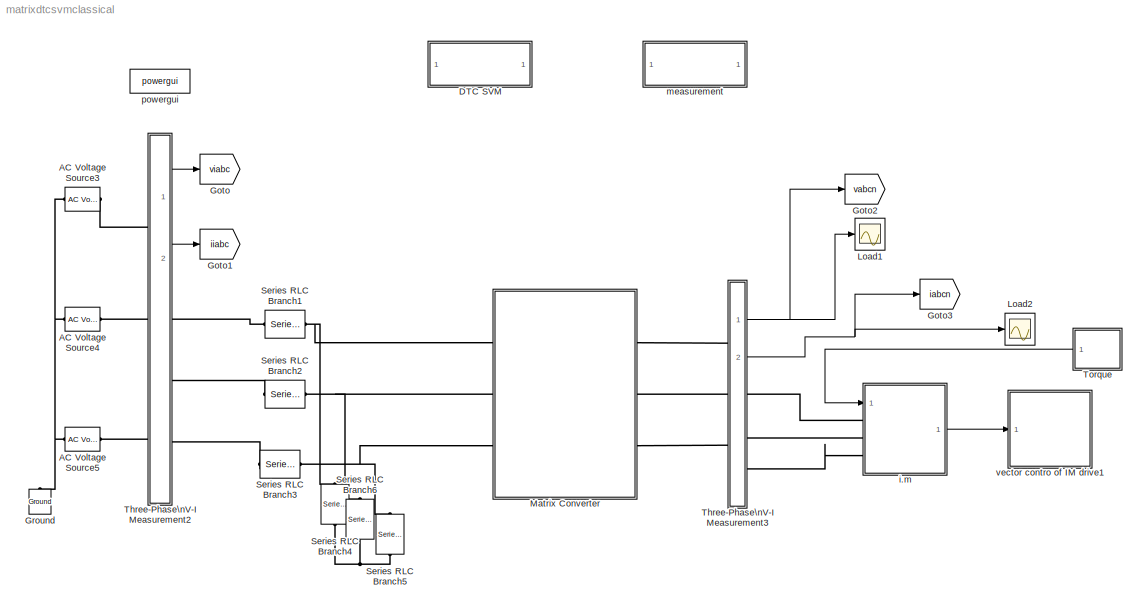
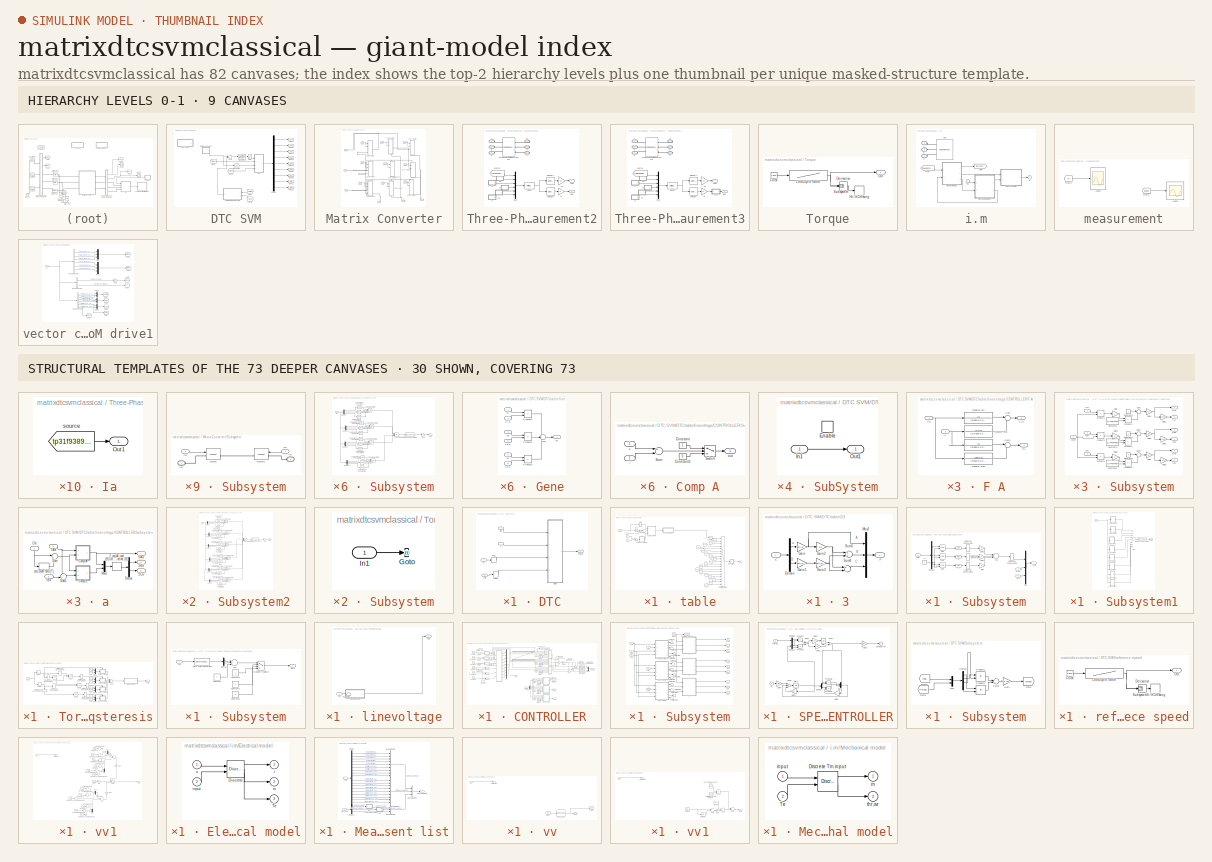
[diagram: thumbnail index - top-2 hierarchy levels (9 canvases) + 30 structural-template representatives of the remaining 73 canvases]
MODEL matrixdtcsvmclassical
KIND model
BLOCK [Reference] AC Voltage Source3  REF=powerlib/Electrical\nSources/AC Voltage Source
  Amplitude = 380
  DialogController = POWERSYS.PowerSysDialog
  Frequency = 60
  FunctionWithSeparateData = off
  Measurements = None
  Phase = 0
  Ports = [0, 0, 0, 0, 0, 1, 1]
  RTWMemSecDataConstants = Inherit from model
  RTWMemSecDataInternal = Inherit from model
  RTWMemSecDataParameters = Inherit from model
  RTWMemSecFuncExecute = Inherit from model
  RTWMemSecFuncInitTerm = Inherit from model
  SampleTime = 0
  ShowPortLabels = FromPortIcon
  SourceBlock = powerlib/Electrical\nSources/AC Voltage Source
  SourceType = AC Voltage Source
  SystemSampleTime = -1
BLOCK [Reference] AC Voltage Source4  REF=powerlib/Electrical\nSources/AC Voltage Source
  Amplitude = 380
  DialogController = POWERSYS.PowerSysDialog
  Frequency = 60
  FunctionWithSeparateData = off
  Measurements = None
  Phase = -120
  Ports = [0, 0, 0, 0, 0, 1, 1]
  RTWMemSecDataConstants = Inherit from model
  RTWMemSecDataInternal = Inherit from model
  RTWMemSecDataParameters = Inherit from model
  RTWMemSecFuncExecute = Inherit from model
  RTWMemSecFuncInitTerm = Inherit from model
  SampleTime = 0
  ShowPortLabels = FromPortIcon
  SourceBlock = powerlib/Electrical\nSources/AC Voltage Source
  SourceType = AC Voltage Source
  SystemSampleTime = -1
BLOCK [Reference] AC Voltage Source5  REF=powerlib/Electrical\nSources/AC Voltage Source
  Amplitude = 380
  DialogController = POWERSYS.PowerSysDialog
  Frequency = 60
  FunctionWithSeparateData = off
  Measurements = None
  Phase = 120
  Ports = [0, 0, 0, 0, 0, 1, 1]
  RTWMemSecDataConstants = Inherit from model
  RTWMemSecDataInternal = Inherit from model
  RTWMemSecDataParameters = Inherit from model
  RTWMemSecFuncExecute = Inherit from model
  RTWMemSecFuncInitTerm = Inherit from model
  SampleTime = 0
  ShowPortLabels = FromPortIcon
  SourceBlock = powerlib/Electrical\nSources/AC Voltage Source
  SourceType = AC Voltage Source
  SystemSampleTime = -1
BLOCK [SubSystem] DTC SVM
  FunctionWithSeparateData = off
  MaskHideContents = off
  MinAlgLoopOccurrences = off
  Opaque = off
  Ports = []
  PropExecContextOutsideSubsystem = off
  RTWSystemCode = Auto
  RequestExecContextInheritance = off
BLOCK [SubSystem] DTC SVM/DTC
  FunctionWithSeparateData = off
  MaskHideContents = off
  MinAlgLoopOccurrences = off
  Opaque = off
  Ports = [4, 1]
  PropExecContextOutsideSubsystem = off
  RTWSystemCode = Auto
  RequestExecContextInheritance = off
BLOCK [ZeroOrderHold] DTC SVM/DTC/Hold1
  SampleTime = 0.00005
BLOCK [ZeroOrderHold] DTC SVM/DTC/Hold2
  SampleTime = 0.00005
BLOCK [Inport] DTC SVM/DTC/PHIs
  IconDisplay = Port number
  Port = 4
BLOCK [Inport] DTC SVM/DTC/T
  IconDisplay = Port number
BLOCK [Inport] DTC SVM/DTC/Tf
  IconDisplay = Port number
  Port = 2
BLOCK [Inport] DTC SVM/DTC/flux
  IconDisplay = Port number
  Port = 3
BLOCK [Outport] DTC SVM/DTC/pulses
  IconDisplay = Port number
BLOCK [SubSystem] DTC SVM/DTC/table
  FunctionWithSeparateData = off
  MaskHideContents = off
  MinAlgLoopOccurrences = off
  Opaque = off
  Ports = [4, 1]
  PropExecContextOutsideSubsystem = off
  RTWSystemCode = Auto
  RequestExecContextInheritance = off
BLOCK [Inport] DTC SVM/DTC/table/ T f
  IconDisplay = Port number
  Port = 3
BLOCK [Inport] DTC SVM/DTC/table/ Te
  IconDisplay = Port number
  Port = 2
BLOCK [Constant] DTC SVM/DTC/table/1
  OutDataType = sfix(16)
  OutScaling = 2^0
  Value = [0 0 1 0 1 0 0 1 0 ]
BLOCK [Constant] DTC SVM/DTC/table/10
  OutDataType = sfix(16)
  OutScaling = 2^0
  Value = [0 1 0 1 0 0 0 1 0 ]
BLOCK [Constant] DTC SVM/DTC/table/11
  OutDataType = sfix(16)
  OutScaling = 2^0
  Value = [0 0 1 1 0 0 0 0 1]
BLOCK [Constant] DTC SVM/DTC/table/12
  OutDataType = sfix(16)
  OutScaling = 2^0
  Value = [1 0 0 0 0 1 1 0 0 ]
BLOCK [Constant] DTC SVM/DTC/table/13
  OutDataType = sfix(16)
  OutScaling = 2^0
  Value = [0 1 0 0 1 0 0 0 1]
BLOCK [Constant] DTC SVM/DTC/table/14
  OutDataType = sfix(16)
  OutScaling = 2^0
  Value = [0 0 1 0 0 1 0 1 0 ]
BLOCK [Constant] DTC SVM/DTC/table/15
  OutDataType = sfix(16)
  OutScaling = 2^0
  Value = [1 0 0 1 0 0 0 1 0]
BLOCK [Constant] DTC SVM/DTC/table/16
  OutDataType = sfix(16)
  OutScaling = 2^0
  Value = [0 1 0 0 1 0 1 0 0 ]
BLOCK [Constant] DTC SVM/DTC/table/17
  OutDataType = sfix(16)
  OutScaling = 2^0
  Value = [0 0 1 0 0 1 1 0 0 ]
BLOCK [Constant] DTC SVM/DTC/table/18
  OutDataType = sfix(16)
  OutScaling = 2^0
  Value = [1 0 0 1 0 0 0 0 1]
BLOCK [Constant] DTC SVM/DTC/table/2
  OutDataType = sfix(16)
  OutScaling = 2^0
  Value = [0 1 0 0 0 1 0 0 1]
BLOCK [SubSystem] DTC SVM/DTC/table/2//3
  FunctionWithSeparateData = off
  MaskHideContents = off
  MinAlgLoopOccurrences = off
  Opaque = off
  Ports = [1, 1]
  PropExecContextOutsideSubsystem = off
  RTWSystemCode = Auto
  RequestExecContextInheritance = off
BLOCK [Inport] DTC SVM/DTC/table/2//3/2
  IconDisplay = Port number
BLOCK [Outport] DTC SVM/DTC/table/2//3/3
  IconDisplay = Port number
BLOCK [Demux] DTC SVM/DTC/table/2//3/Demux
  Outputs = 2
  Ports = [1, 2]
BLOCK [Gain] DTC SVM/DTC/table/2//3/Gain
  Gain = sqrt(2/3)
BLOCK [Gain] DTC SVM/DTC/table/2//3/Gain1
  Gain = sqrt(2/3)
BLOCK [Gain] DTC SVM/DTC/table/2//3/Gain2
  Gain = -1/2
BLOCK [Gain] DTC SVM/DTC/table/2//3/Gain3
  Gain = sqrt(3)/2
BLOCK [Mux] DTC SVM/DTC/table/2//3/Mux2
  DisplayOption = bar
  Inputs = 3
  Ports = [3, 1]
BLOCK [Sum] DTC SVM/DTC/table/2//3/Sum3
  Ports = [2, 1]
BLOCK [Sum] DTC SVM/DTC/table/2//3/Sum4
  Inputs = +-
  Ports = [2, 1]
BLOCK [Constant] DTC SVM/DTC/table/3
  OutDataType = sfix(16)
  OutScaling = 2^0
  Value = [0 1 0 1 0 0 1 0 0 ]
BLOCK [Constant] DTC SVM/DTC/table/4
  OutDataType = sfix(16)
  OutScaling = 2^0
  Value = [1 0 0 0 1 0 0 1 0 ]
BLOCK [Constant] DTC SVM/DTC/table/5
  OutDataType = sfix(16)
  OutScaling = 2^0
  Value = [1 0 0 0 0 1 0 0 0]
BLOCK [Constant] DTC SVM/DTC/table/6
  OutDataType = sfix(16)
  OutScaling = 2^0
  Value = [0 0 1 1 0 0 1 0 0 ]
BLOCK [Constant] DTC SVM/DTC/table/7
  OutDataType = sfix(16)
  OutScaling = 2^0
  Value = [0 1 0 0 0 1 0 1 0 ]
BLOCK [Constant] DTC SVM/DTC/table/8
  OutDataType = sfix(16)
  OutScaling = 2^0
  Value = [0 0 1 0 1 0 0 0 1]
BLOCK [Constant] DTC SVM/DTC/table/9
  OutDataType = sfix(16)
  OutScaling = 2^0
  Value = [1 0 0 0 1 0 1 0 0 ]
BLOCK [Fcn] DTC SVM/DTC/table/Fcn
  Expr = sqrt(u(1)*u(1)+u(2)*u(2))
  SampleTime = 50e-6
BLOCK [MultiPortSwitch] DTC SVM/DTC/table/Multiport\nSwitch
  InputSameDT = off
  Inputs = 18
  OutDataType = sfix(16)
  OutDataTypeMode = Inherit via back propagation
  OutDataTypeStr = Inherit: Inherit via back propagation
  OutScaling = 2^0
  Ports = [19, 1]
  SaturateOnIntegerOverflow = off
BLOCK [Outport] DTC SVM/DTC/table/Out
  IconDisplay = Port number
BLOCK [Inport] DTC SVM/DTC/table/PHIs
  IconDisplay = Port number
  Port = 4
BLOCK [Saturate] DTC SVM/DTC/table/Saturation
  LowerLimit = 1
  OutDataType = sfix(16)
  OutScaling = 2^0
  UpperLimit = 18
BLOCK [SubSystem] DTC SVM/DTC/table/Subsystem
  FunctionWithSeparateData = off
  MaskHideContents = off
  MinAlgLoopOccurrences = off
  Opaque = off
  Ports = [3, 1]
  PropExecContextOutsideSubsystem = off
  RTWSystemCode = Auto
  RequestExecContextInheritance = off
BLOCK [Logic] DTC SVM/DTC/table/Subsystem/ 
  Operator = NOT
  Ports = [1, 1]
  SampleTime = 50e-6
BLOCK [Logic] DTC SVM/DTC/table/Subsystem/ 1
  Operator = NOT
  Ports = [1, 1]
  SampleTime = 50e-6
BLOCK [Logic] DTC SVM/DTC/table/Subsystem/ 2
  Operator = NOT
  Ports = [1, 1]
  SampleTime = 50e-6
BLOCK [Constant] DTC SVM/DTC/table/Subsystem/+1
  Value = 0
BLOCK [Sum] DTC SVM/DTC/table/Subsystem/Add
  InputSameDT = off
  Inputs = 3
  OutDataType = sfix(16)
  OutDataTypeMode = Inherit via internal rule
  OutDataTypeStr = Inherit: Inherit via internal rule
  OutScaling = 2^-10
  Ports = [3, 1]
  SampleTime = 50e-6
  SaturateOnIntegerOverflow = off
BLOCK [DataTypeConversion] DTC SVM/DTC/table/Subsystem/Data Type Conversion
  OutDataType = sfix(16)
  OutScaling = 2^0
  RndMeth = Floor
  SampleTime = 50e-6
  SaturateOnIntegerOverflow = off
BLOCK [DataTypeConversion] DTC SVM/DTC/table/Subsystem/Data Type Conversion1
  OutDataType = sfix(16)
  OutScaling = 2^0
  RndMeth = Floor
  SampleTime = 50e-6
  SaturateOnIntegerOverflow = off
BLOCK [DataTypeConversion] DTC SVM/DTC/table/Subsystem/Data Type Conversion2
  OutDataType = sfix(16)
  OutScaling = 2^0
  RndMeth = Floor
  SampleTime = 50e-6
  SaturateOnIntegerOverflow = off
BLOCK [DataTypeConversion] DTC SVM/DTC/table/Subsystem/Data Type Conversion3
  OutDataType = sfix(16)
  OutScaling = 2^0
  RndMeth = Floor
  SampleTime = 50e-6
  SaturateOnIntegerOverflow = off
BLOCK [Demux] DTC SVM/DTC/table/Subsystem/Demux2
  Outputs = 3
  Ports = [1, 3]
BLOCK [Gain] DTC SVM/DTC/table/Subsystem/Gain
  OutDataType = sfix(16)
  OutDataTypeMode = Inherit via internal rule
  OutDataTypeStr = Inherit: Inherit via internal rule
  OutScaling = 2^0
  ParamDataTypeStr = Inherit: Inherit via internal rule
  ParameterDataType = sfix(16)
  ParameterDataTypeMode = Inherit via internal rule
  ParameterScaling = 2^0
  SampleTime = 50e-6
  SaturateOnIntegerOverflow = off
BLOCK [Gain] DTC SVM/DTC/table/Subsystem/Gain1
  Gain = 2
  OutDataType = sfix(16)
  OutDataTypeMode = Inherit via internal rule
  OutDataTypeStr = Inherit: Inherit via internal rule
  OutScaling = 2^0
  ParamDataTypeStr = Inherit: Inherit via internal rule
  ParameterDataType = sfix(16)
  ParameterDataTypeMode = Inherit via internal rule
  ParameterScaling = 2^0
  SampleTime = 50e-6
  SaturateOnIntegerOverflow = off
BLOCK [Gain] DTC SVM/DTC/table/Subsystem/Gain2
  Gain = 4
  OutDataType = sfix(16)
  OutDataTypeMode = Inherit via internal rule
  OutDataTypeStr = Inherit: Inherit via internal rule
  OutScaling = 2^0
  ParamDataTypeStr = Inherit: Inherit via internal rule
  ParameterDataType = sfix(16)
  ParameterDataTypeMode = Inherit via internal rule
  ParameterScaling = 2^0
  SampleTime = 50e-6
  SaturateOnIntegerOverflow = off
BLOCK [Mux] DTC SVM/DTC/table/Subsystem/Mux
  DisplayOption = bar
  Inputs = 3
  Ports = [3, 1]
BLOCK [Inport] DTC SVM/DTC/table/Subsystem/PHIs
  IconDisplay = Port number
BLOCK [RelationalOperator] DTC SVM/DTC/table/Subsystem/Rel 1
  SampleTime = 50e-6
BLOCK [RelationalOperator] DTC SVM/DTC/table/Subsystem/Rel 2
  SampleTime = 50e-6
BLOCK [RelationalOperator] DTC SVM/DTC/table/Subsystem/Rel 3
  SampleTime = 50e-6
BLOCK [Outport] DTC SVM/DTC/table/Subsystem/TAB
  IconDisplay = Port number
BLOCK [Inport] DTC SVM/DTC/table/Subsystem/e-PH
  IconDisplay = Port number
  Port = 2
BLOCK [Inport] DTC SVM/DTC/table/Subsystem/e-T
  IconDisplay = Port number
  Port = 3
BLOCK [SubSystem] DTC SVM/DTC/table/Subsystem1
  FunctionWithSeparateData = off
  MaskHideContents = off
  MinAlgLoopOccurrences = off
  Opaque = off
  Ports = [1, 1]
  PropExecContextOutsideSubsystem = off
  RTWSystemCode = Auto
  RequestExecContextInheritance = off
BLOCK [Sum] DTC SVM/DTC/table/Subsystem1/Add
  InputSameDT = off
  Inputs = 8
  OutDataType = sfix(16)
  OutDataTypeMode = Inherit via internal rule
  OutDataTypeStr = Inherit: Inherit via internal rule
  OutScaling = 2^-10
  Ports = [8, 1]
  SaturateOnIntegerOverflow = off
BLOCK [DataTypeConversion] DTC SVM/DTC/table/Subsystem1/Data Type Conversion
  OutDataType = sfix(16)
  OutScaling = 2^0
  RndMeth = Floor
  SaturateOnIntegerOverflow = off
BLOCK [Inport] DTC SVM/DTC/table/Subsystem1/In1
  IconDisplay = Port number
  OutDataType = sfix(16)
  OutScaling = 2^0
BLOCK [Outport] DTC SVM/DTC/table/Subsystem1/Out1
  IconDisplay = Port number
  OutDataType = sfix(16)
  OutScaling = 2^0
BLOCK [SubSystem] DTC SVM/DTC/table/Subsystem1/Subsystem
  FunctionWithSeparateData = off
  MaskHideContents = off
  MinAlgLoopOccurrences = off
  Opaque = off
  Ports = [1, 1]
  PropExecContextOutsideSubsystem = off
  RTWSystemCode = Auto
  RequestExecContextInheritance = off
BLOCK [Reference] DTC SVM/DTC/table/Subsystem1/Subsystem/Compare\nTo Constant  REF=simulink/Logic and Bit\nOperations/Compare\nTo Constant
  FunctionWithSeparateData = off
  LogicOutDataTypeMode = uint8
  Ports = [1, 1]
  RTWMemSecDataConstants = Inherit from model
  RTWMemSecDataInternal = Inherit from model
  RTWMemSecDataParameters = Inherit from model
  RTWMemSecFuncExecute = Inherit from model
  RTWMemSecFuncInitTerm = Inherit from model
  ShowPortLabels = FromPortIcon
  SourceBlock = simulink/Logic and Bit\nOperations/Compare\nTo Constant
  SourceType = Compare To Constant
  SystemSampleTime = -1
  ZeroCross = off
  const = 1
  relop = ==
BLOCK [Reference] DTC SVM/DTC/table/Subsystem1/Subsystem/Compare\nTo Constant1  REF=simulink/Logic and Bit\nOperations/Compare\nTo Constant
  FunctionWithSeparateData = off
  LogicOutDataTypeMode = uint8
  Ports = [1, 1]
  RTWMemSecDataConstants = Inherit from model
  RTWMemSecDataInternal = Inherit from model
  RTWMemSecDataParameters = Inherit from model
  RTWMemSecFuncExecute = Inherit from model
  RTWMemSecFuncInitTerm = Inherit from model
  ShowPortLabels = FromPortIcon
  SourceBlock = simulink/Logic and Bit\nOperations/Compare\nTo Constant
  SourceType = Compare To Constant
  SystemSampleTime = -1
  ZeroCross = off
  const = 0
  relop = ==
BLOCK [Reference] DTC SVM/DTC/table/Subsystem1/Subsystem/Compare\nTo Constant10  REF=simulink/Logic and Bit\nOperations/Compare\nTo Constant
  FunctionWithSeparateData = off
  LogicOutDataTypeMode = uint8
  Ports = [1, 1]
  RTWMemSecDataConstants = Inherit from model
  RTWMemSecDataInternal = Inherit from model
  RTWMemSecDataParameters = Inherit from model
  RTWMemSecFuncExecute = Inherit from model
  RTWMemSecFuncInitTerm = Inherit from model
  ShowPortLabels = FromPortIcon
  SourceBlock = simulink/Logic and Bit\nOperations/Compare\nTo Constant
  SourceType = Compare To Constant
  SystemSampleTime = -1
  ZeroCross = off
  const = 1
  relop = ==
BLOCK [Reference] DTC SVM/DTC/table/Subsystem1/Subsystem/Compare\nTo Constant11  REF=simulink/Logic and Bit\nOperations/Compare\nTo Constant
  FunctionWithSeparateData = off
  LogicOutDataTypeMode = uint8
  Ports = [1, 1]
  RTWMemSecDataConstants = Inherit from model
  RTWMemSecDataInternal = Inherit from model
  RTWMemSecDataParameters = Inherit from model
  RTWMemSecFuncExecute = Inherit from model
  RTWMemSecFuncInitTerm = Inherit from model
  ShowPortLabels = FromPortIcon
  SourceBlock = simulink/Logic and Bit\nOperations/Compare\nTo Constant
  SourceType = Compare To Constant
  SystemSampleTime = -1
  ZeroCross = off
  const = 1
  relop = ==
BLOCK [Reference] DTC SVM/DTC/table/Subsystem1/Subsystem/Compare\nTo Constant2  REF=simulink/Logic and Bit\nOperations/Compare\nTo Constant
  FunctionWithSeparateData = off
  LogicOutDataTypeMode = uint8
  Ports = [1, 1]
  RTWMemSecDataConstants = Inherit from model
  RTWMemSecDataInternal = Inherit from model
  RTWMemSecDataParameters = Inherit from model
  RTWMemSecFuncExecute = Inherit from model
  RTWMemSecFuncInitTerm = Inherit from model
  ShowPortLabels = FromPortIcon
  SourceBlock = simulink/Logic and Bit\nOperations/Compare\nTo Constant
  SourceType = Compare To Constant
  SystemSampleTime = -1
  ZeroCross = off
  const = -1
  relop = ==
BLOCK [Reference] DTC SVM/DTC/table/Subsystem1/Subsystem/Compare\nTo Constant3  REF=simulink/Logic and Bit\nOperations/Compare\nTo Constant
  FunctionWithSeparateData = off
  LogicOutDataTypeMode = uint8
  Ports = [1, 1]
  RTWMemSecDataConstants = Inherit from model
  RTWMemSecDataInternal = Inherit from model
  RTWMemSecDataParameters = Inherit from model
  RTWMemSecFuncExecute = Inherit from model
  RTWMemSecFuncInitTerm = Inherit from model
  ShowPortLabels = FromPortIcon
  SourceBlock = simulink/Logic and Bit\nOperations/Compare\nTo Constant
  SourceType = Compare To Constant
  SystemSampleTime = -1
  ZeroCross = off
  const = 2
  relop = ==
BLOCK [Reference] DTC SVM/DTC/table/Subsystem1/Subsystem/Compare\nTo Constant4  REF=simulink/Logic and Bit\nOperations/Compare\nTo Constant
  FunctionWithSeparateData = off
  LogicOutDataTypeMode = uint8
  Ports = [1, 1]
  RTWMemSecDataConstants = Inherit from model
  RTWMemSecDataInternal = Inherit from model
  RTWMemSecDataParameters = Inherit from model
  RTWMemSecFuncExecute = Inherit from model
  RTWMemSecFuncInitTerm = Inherit from model
  ShowPortLabels = FromPortIcon
  SourceBlock = simulink/Logic and Bit\nOperations/Compare\nTo Constant
  SourceType = Compare To Constant
  SystemSampleTime = -1
  ZeroCross = off
  const = 0
  relop = ==
BLOCK [Reference] DTC SVM/DTC/table/Subsystem1/Subsystem/Compare\nTo Constant5  REF=simulink/Logic and Bit\nOperations/Compare\nTo Constant
  FunctionWithSeparateData = off
  LogicOutDataTypeMode = uint8
  Ports = [1, 1]
  RTWMemSecDataConstants = Inherit from model
  RTWMemSecDataInternal = Inherit from model
  RTWMemSecDataParameters = Inherit from model
  RTWMemSecFuncExecute = Inherit from model
  RTWMemSecFuncInitTerm = Inherit from model
  ShowPortLabels = FromPortIcon
  SourceBlock = simulink/Logic and Bit\nOperations/Compare\nTo Constant
  SourceType = Compare To Constant
  SystemSampleTime = -1
  ZeroCross = off
  const = 1
  relop = ==
BLOCK [Reference] DTC SVM/DTC/table/Subsystem1/Subsystem/Compare\nTo Constant6  REF=simulink/Logic and Bit\nOperations/Compare\nTo Constant
  FunctionWithSeparateData = off
  LogicOutDataTypeMode = uint8
  Ports = [1, 1]
  RTWMemSecDataConstants = Inherit from model
  RTWMemSecDataInternal = Inherit from model
  RTWMemSecDataParameters = Inherit from model
  RTWMemSecFuncExecute = Inherit from model
  RTWMemSecFuncInitTerm = Inherit from model
  ShowPortLabels = FromPortIcon
  SourceBlock = simulink/Logic and Bit\nOperations/Compare\nTo Constant
  SourceType = Compare To Constant
  SystemSampleTime = -1
  ZeroCross = off
  const = 6
  relop = ==
BLOCK [Reference] DTC SVM/DTC/table/Subsystem1/Subsystem/Compare\nTo Constant7  REF=simulink/Logic and Bit\nOperations/Compare\nTo Constant
  FunctionWithSeparateData = off
  LogicOutDataTypeMode = uint8
  Ports = [1, 1]
  RTWMemSecDataConstants = Inherit from model
  RTWMemSecDataInternal = Inherit from model
  RTWMemSecDataParameters = Inherit from model
  RTWMemSecFuncExecute = Inherit from model
  RTWMemSecFuncInitTerm = Inherit from model
  ShowPortLabels = FromPortIcon
  SourceBlock = simulink/Logic and Bit\nOperations/Compare\nTo Constant
  SourceType = Compare To Constant
  SystemSampleTime = -1
  ZeroCross = off
  const = 1
  relop = ==
BLOCK [Reference] DTC SVM/DTC/table/Subsystem1/Subsystem/Compare\nTo Constant8  REF=simulink/Logic and Bit\nOperations/Compare\nTo Constant
  FunctionWithSeparateData = off
  LogicOutDataTypeMode = uint8
  Ports = [1, 1]
  RTWMemSecDataConstants = Inherit from model
  RTWMemSecDataInternal = Inherit from model
  RTWMemSecDataParameters = Inherit from model
  RTWMemSecFuncExecute = Inherit from model
  RTWMemSecFuncInitTerm = Inherit from model
  ShowPortLabels = FromPortIcon
  SourceBlock = simulink/Logic and Bit\nOperations/Compare\nTo Constant
  SourceType = Compare To Constant
  SystemSampleTime = -1
  ZeroCross = off
  const = -1
  relop = ==
BLOCK [Reference] DTC SVM/DTC/table/Subsystem1/Subsystem/Compare\nTo Constant9  REF=simulink/Logic and Bit\nOperations/Compare\nTo Constant
  FunctionWithSeparateData = off
  LogicOutDataTypeMode = uint8
  Ports = [1, 1]
  RTWMemSecDataConstants = Inherit from model
  RTWMemSecDataInternal = Inherit from model
  RTWMemSecDataParameters = Inherit from model
  RTWMemSecFuncExecute = Inherit from model
  RTWMemSecFuncInitTerm = Inherit from model
  ShowPortLabels = FromPortIcon
  SourceBlock = simulink/Logic and Bit\nOperations/Compare\nTo Constant
  SourceType = Compare To Constant
  SystemSampleTime = -1
  ZeroCross = off
  const = 4
  relop = ==
BLOCK [DataTypeConversion] DTC SVM/DTC/table/Subsystem1/Subsystem/Data Type Conversion
  OutDataType = sfix(16)
  OutScaling = 2^0
  RndMeth = Floor
  SaturateOnIntegerOverflow = off
BLOCK [Demux] DTC SVM/DTC/table/Subsystem1/Subsystem/Demux
  DisplayOption = bar
  Outputs = 3
  Ports = [1, 3]
BLOCK [Demux] DTC SVM/DTC/table/Subsystem1/Subsystem/Demux1
  DisplayOption = bar
  Outputs = 3
  Ports = [1, 3]
BLOCK [Demux] DTC SVM/DTC/table/Subsystem1/Subsystem/Demux2
  DisplayOption = bar
  Outputs = 3
  Ports = [1, 3]
BLOCK [Demux] DTC SVM/DTC/table/Subsystem1/Subsystem/Demux3
  DisplayOption = bar
  Outputs = 3
  Ports = [1, 3]
BLOCK [Gain] DTC SVM/DTC/table/Subsystem1/Subsystem/Gain
  Gain = 2
  OutDataType = sfix(16)
  OutDataTypeMode = Inherit via internal rule
  OutDataTypeStr = Inherit: Inherit via internal rule
  OutScaling = 2^0
  ParamDataTypeStr = Inherit: Inherit via internal rule
  ParameterDataType = sfix(16)
  ParameterDataTypeMode = Inherit via internal rule
  ParameterScaling = 2^0
  SaturateOnIntegerOverflow = off
BLOCK [Inport] DTC SVM/DTC/table/Subsystem1/Subsystem/In1
  IconDisplay = Port number
BLOCK [Logic] DTC SVM/DTC/table/Subsystem1/Subsystem/Logical\nOperator
  AllPortsSameDT = off
  Inputs = 3
  OutDataTypeMode = boolean
  OutDataTypeStr = boolean
  Ports = [3, 1]
BLOCK [Logic] DTC SVM/DTC/table/Subsystem1/Subsystem/Logical\nOperator1
  AllPortsSameDT = off
  Inputs = 3
  OutDataTypeMode = boolean
  OutDataTypeStr = boolean
  Ports = [3, 1]
BLOCK [Logic] DTC SVM/DTC/table/Subsystem1/Subsystem/Logical\nOperator2
  AllPortsSameDT = off
  Inputs = 3
  OutDataTypeMode = boolean
  OutDataTypeStr = boolean
  Ports = [3, 1]
BLOCK [Logic] DTC SVM/DTC/table/Subsystem1/Subsystem/Logical\nOperator3
  AllPortsSameDT = off
  Inputs = 3
  OutDataTypeMode = boolean
  OutDataTypeStr = boolean
  Ports = [3, 1]
BLOCK [Logic] DTC SVM/DTC/table/Subsystem1/Subsystem/Logical\nOperator4
  AllPortsSameDT = off
  Inputs = 4
  Operator = OR
  OutDataTypeMode = boolean
  OutDataTypeStr = boolean
  Ports = [4, 1]
BLOCK [Outport] DTC SVM/DTC/table/Subsystem1/Subsystem/Out1
  IconDisplay = Port number
BLOCK [SubSystem] DTC SVM/DTC/table/Subsystem1/Subsystem1
  FunctionWithSeparateData = off
  MaskHideContents = off
  MinAlgLoopOccurrences = off
  Opaque = off
  Ports = [1, 1]
  PropExecContextOutsideSubsystem = off
  RTWSystemCode = Auto
  RequestExecContextInheritance = off
BLOCK [Reference] DTC SVM/DTC/table/Subsystem1/Subsystem1/Compare\nTo Constant  REF=simulink/Logic and Bit\nOperations/Compare\nTo Constant
  FunctionWithSeparateData = off
  LogicOutDataTypeMode = uint8
  Ports = [1, 1]
  RTWMemSecDataConstants = Inherit from model
  RTWMemSecDataInternal = Inherit from model
  RTWMemSecDataParameters = Inherit from model
  RTWMemSecFuncExecute = Inherit from model
  RTWMemSecFuncInitTerm = Inherit from model
  ShowPortLabels = FromPortIcon
  SourceBlock = simulink/Logic and Bit\nOperations/Compare\nTo Constant
  SourceType = Compare To Constant
  SystemSampleTime = -1
  ZeroCross = off
  const = 6
  relop = ==
BLOCK [Reference] DTC SVM/DTC/table/Subsystem1/Subsystem1/Compare\nTo Constant1  REF=simulink/Logic and Bit\nOperations/Compare\nTo Constant
  FunctionWithSeparateData = off
  LogicOutDataTypeMode = uint8
  Ports = [1, 1]
  RTWMemSecDataConstants = Inherit from model
  RTWMemSecDataInternal = Inherit from model
  RTWMemSecDataParameters = Inherit from model
  RTWMemSecFuncExecute = Inherit from model
  RTWMemSecFuncInitTerm = Inherit from model
  ShowPortLabels = FromPortIcon
  SourceBlock = simulink/Logic and Bit\nOperations/Compare\nTo Constant
  SourceType = Compare To Constant
  SystemSampleTime = -1
  ZeroCross = off
  const = -1
  relop = ==
BLOCK [Reference] DTC SVM/DTC/table/Subsystem1/Subsystem1/Compare\nTo Constant10  REF=simulink/Logic and Bit\nOperations/Compare\nTo Constant
  FunctionWithSeparateData = off
  LogicOutDataTypeMode = uint8
  Ports = [1, 1]
  RTWMemSecDataConstants = Inherit from model
  RTWMemSecDataInternal = Inherit from model
  RTWMemSecDataParameters = Inherit from model
  RTWMemSecFuncExecute = Inherit from model
  RTWMemSecFuncInitTerm = Inherit from model
  ShowPortLabels = FromPortIcon
  SourceBlock = simulink/Logic and Bit\nOperations/Compare\nTo Constant
  SourceType = Compare To Constant
  SystemSampleTime = -1
  ZeroCross = off
  const = 1
  relop = ==
BLOCK [Reference] DTC SVM/DTC/table/Subsystem1/Subsystem1/Compare\nTo Constant11  REF=simulink/Logic and Bit\nOperations/Compare\nTo Constant
  FunctionWithSeparateData = off
  LogicOutDataTypeMode = uint8
  Ports = [1, 1]
  RTWMemSecDataConstants = Inherit from model
  RTWMemSecDataInternal = Inherit from model
  RTWMemSecDataParameters = Inherit from model
  RTWMemSecFuncExecute = Inherit from model
  RTWMemSecFuncInitTerm = Inherit from model
  ShowPortLabels = FromPortIcon
  SourceBlock = simulink/Logic and Bit\nOperations/Compare\nTo Constant
  SourceType = Compare To Constant
  SystemSampleTime = -1
  ZeroCross = off
  const = 1
  relop = ==
BLOCK [Reference] DTC SVM/DTC/table/Subsystem1/Subsystem1/Compare\nTo Constant2  REF=simulink/Logic and Bit\nOperations/Compare\nTo Constant
  FunctionWithSeparateData = off
  LogicOutDataTypeMode = uint8
  Ports = [1, 1]
  RTWMemSecDataConstants = Inherit from model
  RTWMemSecDataInternal = Inherit from model
  RTWMemSecDataParameters = Inherit from model
  RTWMemSecFuncExecute = Inherit from model
  RTWMemSecFuncInitTerm = Inherit from model
  ShowPortLabels = FromPortIcon
  SourceBlock = simulink/Logic and Bit\nOperations/Compare\nTo Constant
  SourceType = Compare To Constant
  SystemSampleTime = -1
  ZeroCross = off
  const = -1
  relop = ==
BLOCK [Reference] DTC SVM/DTC/table/Subsystem1/Subsystem1/Compare\nTo Constant3  REF=simulink/Logic and Bit\nOperations/Compare\nTo Constant
  FunctionWithSeparateData = off
  LogicOutDataTypeMode = uint8
  Ports = [1, 1]
  RTWMemSecDataConstants = Inherit from model
  RTWMemSecDataInternal = Inherit from model
  RTWMemSecDataParameters = Inherit from model
  RTWMemSecFuncExecute = Inherit from model
  RTWMemSecFuncInitTerm = Inherit from model
  ShowPortLabels = FromPortIcon
  SourceBlock = simulink/Logic and Bit\nOperations/Compare\nTo Constant
  SourceType = Compare To Constant
  SystemSampleTime = -1
  ZeroCross = off
  const = 2
  relop = ==
BLOCK [Reference] DTC SVM/DTC/table/Subsystem1/Subsystem1/Compare\nTo Constant4  REF=simulink/Logic and Bit\nOperations/Compare\nTo Constant
  FunctionWithSeparateData = off
  LogicOutDataTypeMode = uint8
  Ports = [1, 1]
  RTWMemSecDataConstants = Inherit from model
  RTWMemSecDataInternal = Inherit from model
  RTWMemSecDataParameters = Inherit from model
  RTWMemSecFuncExecute = Inherit from model
  RTWMemSecFuncInitTerm = Inherit from model
  ShowPortLabels = FromPortIcon
  SourceBlock = simulink/Logic and Bit\nOperations/Compare\nTo Constant
  SourceType = Compare To Constant
  SystemSampleTime = -1
  ZeroCross = off
  const = 0
  relop = ==
BLOCK [Reference] DTC SVM/DTC/table/Subsystem1/Subsystem1/Compare\nTo Constant5  REF=simulink/Logic and Bit\nOperations/Compare\nTo Constant
  FunctionWithSeparateData = off
  LogicOutDataTypeMode = uint8
  Ports = [1, 1]
  RTWMemSecDataConstants = Inherit from model
  RTWMemSecDataInternal = Inherit from model
  RTWMemSecDataParameters = Inherit from model
  RTWMemSecFuncExecute = Inherit from model
  RTWMemSecFuncInitTerm = Inherit from model
  ShowPortLabels = FromPortIcon
  SourceBlock = simulink/Logic and Bit\nOperations/Compare\nTo Constant
  SourceType = Compare To Constant
  SystemSampleTime = -1
  ZeroCross = off
  const = 1
  relop = ==
BLOCK [Reference] DTC SVM/DTC/table/Subsystem1/Subsystem1/Compare\nTo Constant6  REF=simulink/Logic and Bit\nOperations/Compare\nTo Constant
  FunctionWithSeparateData = off
  LogicOutDataTypeMode = uint8
  Ports = [1, 1]
  RTWMemSecDataConstants = Inherit from model
  RTWMemSecDataInternal = Inherit from model
  RTWMemSecDataParameters = Inherit from model
  RTWMemSecFuncExecute = Inherit from model
  RTWMemSecFuncInitTerm = Inherit from model
  ShowPortLabels = FromPortIcon
  SourceBlock = simulink/Logic and Bit\nOperations/Compare\nTo Constant
  SourceType = Compare To Constant
  SystemSampleTime = -1
  ZeroCross = off
  const = 5
  relop = ==
BLOCK [Reference] DTC SVM/DTC/table/Subsystem1/Subsystem1/Compare\nTo Constant7  REF=simulink/Logic and Bit\nOperations/Compare\nTo Constant
  FunctionWithSeparateData = off
  LogicOutDataTypeMode = uint8
  Ports = [1, 1]
  RTWMemSecDataConstants = Inherit from model
  RTWMemSecDataInternal = Inherit from model
  RTWMemSecDataParameters = Inherit from model
  RTWMemSecFuncExecute = Inherit from model
  RTWMemSecFuncInitTerm = Inherit from model
  ShowPortLabels = FromPortIcon
  SourceBlock = simulink/Logic and Bit\nOperations/Compare\nTo Constant
  SourceType = Compare To Constant
  SystemSampleTime = -1
  ZeroCross = off
  const = 1
  relop = ==
BLOCK [Reference] DTC SVM/DTC/table/Subsystem1/Subsystem1/Compare\nTo Constant8  REF=simulink/Logic and Bit\nOperations/Compare\nTo Constant
  FunctionWithSeparateData = off
  LogicOutDataTypeMode = uint8
  Ports = [1, 1]
  RTWMemSecDataConstants = Inherit from model
  RTWMemSecDataInternal = Inherit from model
  RTWMemSecDataParameters = Inherit from model
  RTWMemSecFuncExecute = Inherit from model
  RTWMemSecFuncInitTerm = Inherit from model
  ShowPortLabels = FromPortIcon
  SourceBlock = simulink/Logic and Bit\nOperations/Compare\nTo Constant
  SourceType = Compare To Constant
  SystemSampleTime = -1
  ZeroCross = off
  const = -1
  relop = ==
BLOCK [Reference] DTC SVM/DTC/table/Subsystem1/Subsystem1/Compare\nTo Constant9  REF=simulink/Logic and Bit\nOperations/Compare\nTo Constant
  FunctionWithSeparateData = off
  LogicOutDataTypeMode = uint8
  Ports = [1, 1]
  RTWMemSecDataConstants = Inherit from model
  RTWMemSecDataInternal = Inherit from model
  RTWMemSecDataParameters = Inherit from model
  RTWMemSecFuncExecute = Inherit from model
  RTWMemSecFuncInitTerm = Inherit from model
  ShowPortLabels = FromPortIcon
  SourceBlock = simulink/Logic and Bit\nOperations/Compare\nTo Constant
  SourceType = Compare To Constant
  SystemSampleTime = -1
  ZeroCross = off
  const = 3
  relop = ==
BLOCK [DataTypeConversion] DTC SVM/DTC/table/Subsystem1/Subsystem1/Data Type Conversion
  OutDataType = sfix(16)
  OutScaling = 2^0
  RndMeth = Floor
  SaturateOnIntegerOverflow = off
BLOCK [Demux] DTC SVM/DTC/table/Subsystem1/Subsystem1/Demux
  DisplayOption = bar
  Outputs = 3
  Ports = [1, 3]
BLOCK [Demux] DTC SVM/DTC/table/Subsystem1/Subsystem1/Demux1
  DisplayOption = bar
  Outputs = 3
  Ports = [1, 3]
BLOCK [Demux] DTC SVM/DTC/table/Subsystem1/Subsystem1/Demux2
  DisplayOption = bar
  Outputs = 3
  Ports = [1, 3]
BLOCK [Demux] DTC SVM/DTC/table/Subsystem1/Subsystem1/Demux3
  DisplayOption = bar
  Outputs = 3
  Ports = [1, 3]
BLOCK [Gain] DTC SVM/DTC/table/Subsystem1/Subsystem1/Gain
  OutDataType = sfix(16)
  OutDataTypeMode = Inherit via internal rule
  OutDataTypeStr = Inherit: Inherit via internal rule
  OutScaling = 2^0
  ParamDataTypeStr = Inherit: Inherit via internal rule
  ParameterDataType = sfix(16)
  ParameterDataTypeMode = Inherit via internal rule
  ParameterScaling = 2^0
  SaturateOnIntegerOverflow = off
BLOCK [Inport] DTC SVM/DTC/table/Subsystem1/Subsystem1/In1
  IconDisplay = Port number
BLOCK [Logic] DTC SVM/DTC/table/Subsystem1/Subsystem1/Logical\nOperator
  AllPortsSameDT = off
  Inputs = 3
  OutDataTypeMode = boolean
  OutDataTypeStr = boolean
  Ports = [3, 1]
BLOCK [Logic] DTC SVM/DTC/table/Subsystem1/Subsystem1/Logical\nOperator1
  AllPortsSameDT = off
  Inputs = 3
  OutDataTypeMode = boolean
  OutDataTypeStr = boolean
  Ports = [3, 1]
BLOCK [Logic] DTC SVM/DTC/table/Subsystem1/Subsystem1/Logical\nOperator2
  AllPortsSameDT = off
  Inputs = 3
  OutDataTypeMode = boolean
  OutDataTypeStr = boolean
  Ports = [3, 1]
BLOCK [Logic] DTC SVM/DTC/table/Subsystem1/Subsystem1/Logical\nOperator3
  AllPortsSameDT = off
  Inputs = 3
  OutDataTypeMode = boolean
  OutDataTypeStr = boolean
  Ports = [3, 1]
BLOCK [Logic] DTC SVM/DTC/table/Subsystem1/Subsystem1/Logical\nOperator4
  AllPortsSameDT = off
  Inputs = 4
  Operator = OR
  OutDataTypeMode = boolean
  OutDataTypeStr = boolean
  Ports = [4, 1]
BLOCK [Outport] DTC SVM/DTC/table/Subsystem1/Subsystem1/Out1
  IconDisplay = Port number
BLOCK [SubSystem] DTC SVM/DTC/table/Subsystem1/Subsystem2
  FunctionWithSeparateData = off
  MaskHideContents = off
  MinAlgLoopOccurrences = off
  Opaque = off
  Ports = [1, 1]
  PropExecContextOutsideSubsystem = off
  RTWSystemCode = Auto
  RequestExecContextInheritance = off
BLOCK [Reference] DTC SVM/DTC/table/Subsystem1/Subsystem2/Compare\nTo Constant  REF=simulink/Logic and Bit\nOperations/Compare\nTo Constant
  FunctionWithSeparateData = off
  LogicOutDataTypeMode = uint8
  Ports = [1, 1]
  RTWMemSecDataConstants = Inherit from model
  RTWMemSecDataInternal = Inherit from model
  RTWMemSecDataParameters = Inherit from model
  RTWMemSecFuncExecute = Inherit from model
  RTWMemSecFuncInitTerm = Inherit from model
  ShowPortLabels = FromPortIcon
  SourceBlock = simulink/Logic and Bit\nOperations/Compare\nTo Constant
  SourceType = Compare To Constant
  SystemSampleTime = -1
  ZeroCross = off
  const = 2
  relop = ==
BLOCK [Reference] DTC SVM/DTC/table/Subsystem1/Subsystem2/Compare\nTo Constant1  REF=simulink/Logic and Bit\nOperations/Compare\nTo Constant
  FunctionWithSeparateData = off
  LogicOutDataTypeMode = uint8
  Ports = [1, 1]
  RTWMemSecDataConstants = Inherit from model
  RTWMemSecDataInternal = Inherit from model
  RTWMemSecDataParameters = Inherit from model
  RTWMemSecFuncExecute = Inherit from model
  RTWMemSecFuncInitTerm = Inherit from model
  ShowPortLabels = FromPortIcon
  SourceBlock = simulink/Logic and Bit\nOperations/Compare\nTo Constant
  SourceType = Compare To Constant
  SystemSampleTime = -1
  ZeroCross = off
  const = 0
  relop = ==
BLOCK [Reference] DTC SVM/DTC/table/Subsystem1/Subsystem2/Compare\nTo Constant10  REF=simulink/Logic and Bit\nOperations/Compare\nTo Constant
  FunctionWithSeparateData = off
  LogicOutDataTypeMode = uint8
  Ports = [1, 1]
  RTWMemSecDataConstants = Inherit from model
  RTWMemSecDataInternal = Inherit from model
  RTWMemSecDataParameters = Inherit from model
  RTWMemSecFuncExecute = Inherit from model
  RTWMemSecFuncInitTerm = Inherit from model
  ShowPortLabels = FromPortIcon
  SourceBlock = simulink/Logic and Bit\nOperations/Compare\nTo Constant
  SourceType = Compare To Constant
  SystemSampleTime = -1
  ZeroCross = off
  const = 1
  relop = ==
BLOCK [Reference] DTC SVM/DTC/table/Subsystem1/Subsystem2/Compare\nTo Constant11  REF=simulink/Logic and Bit\nOperations/Compare\nTo Constant
  FunctionWithSeparateData = off
  LogicOutDataTypeMode = uint8
  Ports = [1, 1]
  RTWMemSecDataConstants = Inherit from model
  RTWMemSecDataInternal = Inherit from model
  RTWMemSecDataParameters = Inherit from model
  RTWMemSecFuncExecute = Inherit from model
  RTWMemSecFuncInitTerm = Inherit from model
  ShowPortLabels = FromPortIcon
  SourceBlock = simulink/Logic and Bit\nOperations/Compare\nTo Constant
  SourceType = Compare To Constant
  SystemSampleTime = -1
  ZeroCross = off
  const = 0
  relop = ==
BLOCK [Reference] DTC SVM/DTC/table/Subsystem1/Subsystem2/Compare\nTo Constant12  REF=simulink/Logic and Bit\nOperations/Compare\nTo Constant
  FunctionWithSeparateData = off
  LogicOutDataTypeMode = uint8
  Ports = [1, 1]
  RTWMemSecDataConstants = Inherit from model
  RTWMemSecDataInternal = Inherit from model
  RTWMemSecDataParameters = Inherit from model
  RTWMemSecFuncExecute = Inherit from model
  RTWMemSecFuncInitTerm = Inherit from model
  ShowPortLabels = FromPortIcon
  SourceBlock = simulink/Logic and Bit\nOperations/Compare\nTo Constant
  SourceType = Compare To Constant
  SystemSampleTime = -1
  ZeroCross = off
  const = 1
  relop = ==
BLOCK [Reference] DTC SVM/DTC/table/Subsystem1/Subsystem2/Compare\nTo Constant13  REF=simulink/Logic and Bit\nOperations/Compare\nTo Constant
  FunctionWithSeparateData = off
  LogicOutDataTypeMode = uint8
  Ports = [1, 1]
  RTWMemSecDataConstants = Inherit from model
  RTWMemSecDataInternal = Inherit from model
  RTWMemSecDataParameters = Inherit from model
  RTWMemSecFuncExecute = Inherit from model
  RTWMemSecFuncInitTerm = Inherit from model
  ShowPortLabels = FromPortIcon
  SourceBlock = simulink/Logic and Bit\nOperations/Compare\nTo Constant
  SourceType = Compare To Constant
  SystemSampleTime = -1
  ZeroCross = off
  const = 0
  relop = ==
BLOCK [Reference] DTC SVM/DTC/table/Subsystem1/Subsystem2/Compare\nTo Constant14  REF=simulink/Logic and Bit\nOperations/Compare\nTo Constant
  FunctionWithSeparateData = off
  LogicOutDataTypeMode = uint8
  Ports = [1, 1]
  RTWMemSecDataConstants = Inherit from model
  RTWMemSecDataInternal = Inherit from model
  RTWMemSecDataParameters = Inherit from model
  RTWMemSecFuncExecute = Inherit from model
  RTWMemSecFuncInitTerm = Inherit from model
  ShowPortLabels = FromPortIcon
  SourceBlock = simulink/Logic and Bit\nOperations/Compare\nTo Constant
  SourceType = Compare To Constant
  SystemSampleTime = -1
  ZeroCross = off
  const = 3
  relop = ==
BLOCK [Reference] DTC SVM/DTC/table/Subsystem1/Subsystem2/Compare\nTo Constant15  REF=simulink/Logic and Bit\nOperations/Compare\nTo Constant
  FunctionWithSeparateData = off
  LogicOutDataTypeMode = uint8
  Ports = [1, 1]
  RTWMemSecDataConstants = Inherit from model
  RTWMemSecDataInternal = Inherit from model
  RTWMemSecDataParameters = Inherit from model
  RTWMemSecFuncExecute = Inherit from model
  RTWMemSecFuncInitTerm = Inherit from model
  ShowPortLabels = FromPortIcon
  SourceBlock = simulink/Logic and Bit\nOperations/Compare\nTo Constant
  SourceType = Compare To Constant
  SystemSampleTime = -1
  ZeroCross = off
  const = 1
  relop = ==
BLOCK [Reference] DTC SVM/DTC/table/Subsystem1/Subsystem2/Compare\nTo Constant16  REF=simulink/Logic and Bit\nOperations/Compare\nTo Constant
  FunctionWithSeparateData = off
  LogicOutDataTypeMode = uint8
  Ports = [1, 1]
  RTWMemSecDataConstants = Inherit from model
  RTWMemSecDataInternal = Inherit from model
  RTWMemSecDataParameters = Inherit from model
  RTWMemSecFuncExecute = Inherit from model
  RTWMemSecFuncInitTerm = Inherit from model
  ShowPortLabels = FromPortIcon
  SourceBlock = simulink/Logic and Bit\nOperations/Compare\nTo Constant
  SourceType = Compare To Constant
  SystemSampleTime = -1
  ZeroCross = off
  const = 0
  relop = ==
BLOCK [Reference] DTC SVM/DTC/table/Subsystem1/Subsystem2/Compare\nTo Constant17  REF=simulink/Logic and Bit\nOperations/Compare\nTo Constant
  FunctionWithSeparateData = off
  LogicOutDataTypeMode = uint8
  Ports = [1, 1]
  RTWMemSecDataConstants = Inherit from model
  RTWMemSecDataInternal = Inherit from model
  RTWMemSecDataParameters = Inherit from model
  RTWMemSecFuncExecute = Inherit from model
  RTWMemSecFuncInitTerm = Inherit from model
  ShowPortLabels = FromPortIcon
  SourceBlock = simulink/Logic and Bit\nOperations/Compare\nTo Constant
  SourceType = Compare To Constant
  SystemSampleTime = -1
  ZeroCross = off
  const = 5
  relop = ==
BLOCK [Reference] DTC SVM/DTC/table/Subsystem1/Subsystem2/Compare\nTo Constant2  REF=simulink/Logic and Bit\nOperations/Compare\nTo Constant
  FunctionWithSeparateData = off
  LogicOutDataTypeMode = uint8
  Ports = [1, 1]
  RTWMemSecDataConstants = Inherit from model
  RTWMemSecDataInternal = Inherit from model
  RTWMemSecDataParameters = Inherit from model
  RTWMemSecFuncExecute = Inherit from model
  RTWMemSecFuncInitTerm = Inherit from model
  ShowPortLabels = FromPortIcon
  SourceBlock = simulink/Logic and Bit\nOperations/Compare\nTo Constant
  SourceType = Compare To Constant
  SystemSampleTime = -1
  ZeroCross = off
  const = 0
  relop = ==
BLOCK [Reference] DTC SVM/DTC/table/Subsystem1/Subsystem2/Compare\nTo Constant3  REF=simulink/Logic and Bit\nOperations/Compare\nTo Constant
  FunctionWithSeparateData = off
  LogicOutDataTypeMode = uint8
  Ports = [1, 1]
  RTWMemSecDataConstants = Inherit from model
  RTWMemSecDataInternal = Inherit from model
  RTWMemSecDataParameters = Inherit from model
  RTWMemSecFuncExecute = Inherit from model
  RTWMemSecFuncInitTerm = Inherit from model
  ShowPortLabels = FromPortIcon
  SourceBlock = simulink/Logic and Bit\nOperations/Compare\nTo Constant
  SourceType = Compare To Constant
  SystemSampleTime = -1
  ZeroCross = off
  const = 4
  relop = ==
BLOCK [Reference] DTC SVM/DTC/table/Subsystem1/Subsystem2/Compare\nTo Constant4  REF=simulink/Logic and Bit\nOperations/Compare\nTo Constant
  FunctionWithSeparateData = off
  LogicOutDataTypeMode = uint8
  Ports = [1, 1]
  RTWMemSecDataConstants = Inherit from model
  RTWMemSecDataInternal = Inherit from model
  RTWMemSecDataParameters = Inherit from model
  RTWMemSecFuncExecute = Inherit from model
  RTWMemSecFuncInitTerm = Inherit from model
  ShowPortLabels = FromPortIcon
  SourceBlock = simulink/Logic and Bit\nOperations/Compare\nTo Constant
  SourceType = Compare To Constant
  SystemSampleTime = -1
  ZeroCross = off
  const = 0
  relop = ==
BLOCK [Reference] DTC SVM/DTC/table/Subsystem1/Subsystem2/Compare\nTo Constant5  REF=simulink/Logic and Bit\nOperations/Compare\nTo Constant
  FunctionWithSeparateData = off
  LogicOutDataTypeMode = uint8
  Ports = [1, 1]
  RTWMemSecDataConstants = Inherit from model
  RTWMemSecDataInternal = Inherit from model
  RTWMemSecDataParameters = Inherit from model
  RTWMemSecFuncExecute = Inherit from model
  RTWMemSecFuncInitTerm = Inherit from model
  ShowPortLabels = FromPortIcon
  SourceBlock = simulink/Logic and Bit\nOperations/Compare\nTo Constant
  SourceType = Compare To Constant
  SystemSampleTime = -1
  ZeroCross = off
  const = 0
  relop = ==
BLOCK [Reference] DTC SVM/DTC/table/Subsystem1/Subsystem2/Compare\nTo Constant6  REF=simulink/Logic and Bit\nOperations/Compare\nTo Constant
  FunctionWithSeparateData = off
  LogicOutDataTypeMode = uint8
  Ports = [1, 1]
  RTWMemSecDataConstants = Inherit from model
  RTWMemSecDataInternal = Inherit from model
  RTWMemSecDataParameters = Inherit from model
  RTWMemSecFuncExecute = Inherit from model
  RTWMemSecFuncInitTerm = Inherit from model
  ShowPortLabels = FromPortIcon
  SourceBlock = simulink/Logic and Bit\nOperations/Compare\nTo Constant
  SourceType = Compare To Constant
  SystemSampleTime = -1
  ZeroCross = off
  const = 6
  relop = ==
BLOCK [Reference] DTC SVM/DTC/table/Subsystem1/Subsystem2/Compare\nTo Constant7  REF=simulink/Logic and Bit\nOperations/Compare\nTo Constant
  FunctionWithSeparateData = off
  LogicOutDataTypeMode = uint8
  Ports = [1, 1]
  RTWMemSecDataConstants = Inherit from model
  RTWMemSecDataInternal = Inherit from model
  RTWMemSecDataParameters = Inherit from model
  RTWMemSecFuncExecute = Inherit from model
  RTWMemSecFuncInitTerm = Inherit from model
  ShowPortLabels = FromPortIcon
  SourceBlock = simulink/Logic and Bit\nOperations/Compare\nTo Constant
  SourceType = Compare To Constant
  SystemSampleTime = -1
  ZeroCross = off
  const = 0
  relop = ==
BLOCK [Reference] DTC SVM/DTC/table/Subsystem1/Subsystem2/Compare\nTo Constant8  REF=simulink/Logic and Bit\nOperations/Compare\nTo Constant
  FunctionWithSeparateData = off
  LogicOutDataTypeMode = uint8
  Ports = [1, 1]
  RTWMemSecDataConstants = Inherit from model
  RTWMemSecDataInternal = Inherit from model
  RTWMemSecDataParameters = Inherit from model
  RTWMemSecFuncExecute = Inherit from model
  RTWMemSecFuncInitTerm = Inherit from model
  ShowPortLabels = FromPortIcon
  SourceBlock = simulink/Logic and Bit\nOperations/Compare\nTo Constant
  SourceType = Compare To Constant
  SystemSampleTime = -1
  ZeroCross = off
  const = 0
  relop = ==
BLOCK [Reference] DTC SVM/DTC/table/Subsystem1/Subsystem2/Compare\nTo Constant9  REF=simulink/Logic and Bit\nOperations/Compare\nTo Constant
  FunctionWithSeparateData = off
  LogicOutDataTypeMode = uint8
  Ports = [1, 1]
  RTWMemSecDataConstants = Inherit from model
  RTWMemSecDataInternal = Inherit from model
  RTWMemSecDataParameters = Inherit from model
  RTWMemSecFuncExecute = Inherit from model
  RTWMemSecFuncInitTerm = Inherit from model
  ShowPortLabels = FromPortIcon
  SourceBlock = simulink/Logic and Bit\nOperations/Compare\nTo Constant
  SourceType = Compare To Constant
  SystemSampleTime = -1
  ZeroCross = off
  const = 1
  relop = ==
BLOCK [DataTypeConversion] DTC SVM/DTC/table/Subsystem1/Subsystem2/Data Type Conversion
  OutDataType = sfix(16)
  OutScaling = 2^0
  RndMeth = Floor
  SaturateOnIntegerOverflow = off
BLOCK [Demux] DTC SVM/DTC/table/Subsystem1/Subsystem2/Demux
  DisplayOption = bar
  Outputs = 3
  Ports = [1, 3]
BLOCK [Demux] DTC SVM/DTC/table/Subsystem1/Subsystem2/Demux1
  DisplayOption = bar
  Outputs = 3
  Ports = [1, 3]
BLOCK [Demux] DTC SVM/DTC/table/Subsystem1/Subsystem2/Demux2
  DisplayOption = bar
  Outputs = 3
  Ports = [1, 3]
BLOCK [Demux] DTC SVM/DTC/table/Subsystem1/Subsystem2/Demux3
  DisplayOption = bar
  Outputs = 3
  Ports = [1, 3]
BLOCK [Demux] DTC SVM/DTC/table/Subsystem1/Subsystem2/Demux4
  DisplayOption = bar
  Outputs = 3
  Ports = [1, 3]
BLOCK [Demux] DTC SVM/DTC/table/Subsystem1/Subsystem2/Demux5
  DisplayOption = bar
  Outputs = 3
  Ports = [1, 3]
BLOCK [Gain] DTC SVM/DTC/table/Subsystem1/Subsystem2/Gain
  Gain = 0
  OutDataType = sfix(16)
  OutDataTypeMode = Inherit via internal rule
  OutDataTypeStr = Inherit: Inherit via internal rule
  OutScaling = 2^0
  ParamDataTypeStr = Inherit: Inherit via internal rule
  ParameterDataType = sfix(16)
  ParameterDataTypeMode = Inherit via internal rule
  ParameterScaling = 2^0
  SaturateOnIntegerOverflow = off
BLOCK [Inport] DTC SVM/DTC/table/Subsystem1/Subsystem2/In1
  IconDisplay = Port number
BLOCK [Logic] DTC SVM/DTC/table/Subsystem1/Subsystem2/Logical\nOperator
  AllPortsSameDT = off
  Inputs = 3
  OutDataTypeMode = boolean
  OutDataTypeStr = boolean
  Ports = [3, 1]
BLOCK [Logic] DTC SVM/DTC/table/Subsystem1/Subsystem2/Logical\nOperator1
  AllPortsSameDT = off
  Inputs = 3
  OutDataTypeMode = boolean
  OutDataTypeStr = boolean
  Ports = [3, 1]
BLOCK [Logic] DTC SVM/DTC/table/Subsystem1/Subsystem2/Logical\nOperator2
  AllPortsSameDT = off
  Inputs = 3
  OutDataTypeMode = boolean
  OutDataTypeStr = boolean
  Ports = [3, 1]
BLOCK [Logic] DTC SVM/DTC/table/Subsystem1/Subsystem2/Logical\nOperator3
  AllPortsSameDT = off
  Inputs = 3
  OutDataTypeMode = boolean
  OutDataTypeStr = boolean
  Ports = [3, 1]
BLOCK [Logic] DTC SVM/DTC/table/Subsystem1/Subsystem2/Logical\nOperator4
  AllPortsSameDT = off
  Inputs = 6
  Operator = OR
  OutDataTypeMode = boolean
  OutDataTypeStr = boolean
  Ports = [6, 1]
BLOCK [Logic] DTC SVM/DTC/table/Subsystem1/Subsystem2/Logical\nOperator5
  AllPortsSameDT = off
  Inputs = 3
  OutDataTypeMode = boolean
  OutDataTypeStr = boolean
  Ports = [3, 1]
BLOCK [Logic] DTC SVM/DTC/table/Subsystem1/Subsystem2/Logical\nOperator6
  AllPortsSameDT = off
  Inputs = 3
  OutDataTypeMode = boolean
  OutDataTypeStr = boolean
  Ports = [3, 1]
BLOCK [Outport] DTC SVM/DTC/table/Subsystem1/Subsystem2/Out1
  IconDisplay = Port number
BLOCK [SubSystem] DTC SVM/DTC/table/Subsystem1/Subsystem3
  FunctionWithSeparateData = off
  MaskHideContents = off
  MinAlgLoopOccurrences = off
  Opaque = off
  Ports = [1, 1]
  PropExecContextOutsideSubsystem = off
  RTWSystemCode = Auto
  RequestExecContextInheritance = off
BLOCK [Reference] DTC SVM/DTC/table/Subsystem1/Subsystem3/Compare\nTo Constant  REF=simulink/Logic and Bit\nOperations/Compare\nTo Constant
  FunctionWithSeparateData = off
  LogicOutDataTypeMode = uint8
  Ports = [1, 1]
  RTWMemSecDataConstants = Inherit from model
  RTWMemSecDataInternal = Inherit from model
  RTWMemSecDataParameters = Inherit from model
  RTWMemSecFuncExecute = Inherit from model
  RTWMemSecFuncInitTerm = Inherit from model
  ShowPortLabels = FromPortIcon
  SourceBlock = simulink/Logic and Bit\nOperations/Compare\nTo Constant
  SourceType = Compare To Constant
  SystemSampleTime = -1
  ZeroCross = off
  const = 2
  relop = ==
BLOCK [Reference] DTC SVM/DTC/table/Subsystem1/Subsystem3/Compare\nTo Constant1  REF=simulink/Logic and Bit\nOperations/Compare\nTo Constant
  FunctionWithSeparateData = off
  LogicOutDataTypeMode = uint8
  Ports = [1, 1]
  RTWMemSecDataConstants = Inherit from model
  RTWMemSecDataInternal = Inherit from model
  RTWMemSecDataParameters = Inherit from model
  RTWMemSecFuncExecute = Inherit from model
  RTWMemSecFuncInitTerm = Inherit from model
  ShowPortLabels = FromPortIcon
  SourceBlock = simulink/Logic and Bit\nOperations/Compare\nTo Constant
  SourceType = Compare To Constant
  SystemSampleTime = -1
  ZeroCross = off
  const = 0
  relop = ==
BLOCK [Reference] DTC SVM/DTC/table/Subsystem1/Subsystem3/Compare\nTo Constant10  REF=simulink/Logic and Bit\nOperations/Compare\nTo Constant
  FunctionWithSeparateData = off
  LogicOutDataTypeMode = uint8
  Ports = [1, 1]
  RTWMemSecDataConstants = Inherit from model
  RTWMemSecDataInternal = Inherit from model
  RTWMemSecDataParameters = Inherit from model
  RTWMemSecFuncExecute = Inherit from model
  RTWMemSecFuncInitTerm = Inherit from model
  ShowPortLabels = FromPortIcon
  SourceBlock = simulink/Logic and Bit\nOperations/Compare\nTo Constant
  SourceType = Compare To Constant
  SystemSampleTime = -1
  ZeroCross = off
  const = 1
  relop = ==
BLOCK [Reference] DTC SVM/DTC/table/Subsystem1/Subsystem3/Compare\nTo Constant11  REF=simulink/Logic and Bit\nOperations/Compare\nTo Constant
  FunctionWithSeparateData = off
  LogicOutDataTypeMode = uint8
  Ports = [1, 1]
  RTWMemSecDataConstants = Inherit from model
  RTWMemSecDataInternal = Inherit from model
  RTWMemSecDataParameters = Inherit from model
  RTWMemSecFuncExecute = Inherit from model
  RTWMemSecFuncInitTerm = Inherit from model
  ShowPortLabels = FromPortIcon
  SourceBlock = simulink/Logic and Bit\nOperations/Compare\nTo Constant
  SourceType = Compare To Constant
  SystemSampleTime = -1
  ZeroCross = off
  const = 1
  relop = ==
BLOCK [Reference] DTC SVM/DTC/table/Subsystem1/Subsystem3/Compare\nTo Constant2  REF=simulink/Logic and Bit\nOperations/Compare\nTo Constant
  FunctionWithSeparateData = off
  LogicOutDataTypeMode = uint8
  Ports = [1, 1]
  RTWMemSecDataConstants = Inherit from model
  RTWMemSecDataInternal = Inherit from model
  RTWMemSecDataParameters = Inherit from model
  RTWMemSecFuncExecute = Inherit from model
  RTWMemSecFuncInitTerm = Inherit from model
  ShowPortLabels = FromPortIcon
  SourceBlock = simulink/Logic and Bit\nOperations/Compare\nTo Constant
  SourceType = Compare To Constant
  SystemSampleTime = -1
  ZeroCross = off
  const = -1
  relop = ==
BLOCK [Reference] DTC SVM/DTC/table/Subsystem1/Subsystem3/Compare\nTo Constant3  REF=simulink/Logic and Bit\nOperations/Compare\nTo Constant
  FunctionWithSeparateData = off
  LogicOutDataTypeMode = uint8
  Ports = [1, 1]
  RTWMemSecDataConstants = Inherit from model
  RTWMemSecDataInternal = Inherit from model
  RTWMemSecDataParameters = Inherit from model
  RTWMemSecFuncExecute = Inherit from model
  RTWMemSecFuncInitTerm = Inherit from model
  ShowPortLabels = FromPortIcon
  SourceBlock = simulink/Logic and Bit\nOperations/Compare\nTo Constant
  SourceType = Compare To Constant
  SystemSampleTime = -1
  ZeroCross = off
  const = 4
  relop = ==
BLOCK [Reference] DTC SVM/DTC/table/Subsystem1/Subsystem3/Compare\nTo Constant4  REF=simulink/Logic and Bit\nOperations/Compare\nTo Constant
  FunctionWithSeparateData = off
  LogicOutDataTypeMode = uint8
  Ports = [1, 1]
  RTWMemSecDataConstants = Inherit from model
  RTWMemSecDataInternal = Inherit from model
  RTWMemSecDataParameters = Inherit from model
  RTWMemSecFuncExecute = Inherit from model
  RTWMemSecFuncInitTerm = Inherit from model
  ShowPortLabels = FromPortIcon
  SourceBlock = simulink/Logic and Bit\nOperations/Compare\nTo Constant
  SourceType = Compare To Constant
  SystemSampleTime = -1
  ZeroCross = off
  const = 0
  relop = ==
BLOCK [Reference] DTC SVM/DTC/table/Subsystem1/Subsystem3/Compare\nTo Constant5  REF=simulink/Logic and Bit\nOperations/Compare\nTo Constant
  FunctionWithSeparateData = off
  LogicOutDataTypeMode = uint8
  Ports = [1, 1]
  RTWMemSecDataConstants = Inherit from model
  RTWMemSecDataInternal = Inherit from model
  RTWMemSecDataParameters = Inherit from model
  RTWMemSecFuncExecute = Inherit from model
  RTWMemSecFuncInitTerm = Inherit from model
  ShowPortLabels = FromPortIcon
  SourceBlock = simulink/Logic and Bit\nOperations/Compare\nTo Constant
  SourceType = Compare To Constant
  SystemSampleTime = -1
  ZeroCross = off
  const = 1
  relop = ==
BLOCK [Reference] DTC SVM/DTC/table/Subsystem1/Subsystem3/Compare\nTo Constant6  REF=simulink/Logic and Bit\nOperations/Compare\nTo Constant
  FunctionWithSeparateData = off
  LogicOutDataTypeMode = uint8
  Ports = [1, 1]
  RTWMemSecDataConstants = Inherit from model
  RTWMemSecDataInternal = Inherit from model
  RTWMemSecDataParameters = Inherit from model
  RTWMemSecFuncExecute = Inherit from model
  RTWMemSecFuncInitTerm = Inherit from model
  ShowPortLabels = FromPortIcon
  SourceBlock = simulink/Logic and Bit\nOperations/Compare\nTo Constant
  SourceType = Compare To Constant
  SystemSampleTime = -1
  ZeroCross = off
  const = 1
  relop = ==
BLOCK [Reference] DTC SVM/DTC/table/Subsystem1/Subsystem3/Compare\nTo Constant7  REF=simulink/Logic and Bit\nOperations/Compare\nTo Constant
  FunctionWithSeparateData = off
  LogicOutDataTypeMode = uint8
  Ports = [1, 1]
  RTWMemSecDataConstants = Inherit from model
  RTWMemSecDataInternal = Inherit from model
  RTWMemSecDataParameters = Inherit from model
  RTWMemSecFuncExecute = Inherit from model
  RTWMemSecFuncInitTerm = Inherit from model
  ShowPortLabels = FromPortIcon
  SourceBlock = simulink/Logic and Bit\nOperations/Compare\nTo Constant
  SourceType = Compare To Constant
  SystemSampleTime = -1
  ZeroCross = off
  const = 1
  relop = ==
BLOCK [Reference] DTC SVM/DTC/table/Subsystem1/Subsystem3/Compare\nTo Constant8  REF=simulink/Logic and Bit\nOperations/Compare\nTo Constant
  FunctionWithSeparateData = off
  LogicOutDataTypeMode = uint8
  Ports = [1, 1]
  RTWMemSecDataConstants = Inherit from model
  RTWMemSecDataInternal = Inherit from model
  RTWMemSecDataParameters = Inherit from model
  RTWMemSecFuncExecute = Inherit from model
  RTWMemSecFuncInitTerm = Inherit from model
  ShowPortLabels = FromPortIcon
  SourceBlock = simulink/Logic and Bit\nOperations/Compare\nTo Constant
  SourceType = Compare To Constant
  SystemSampleTime = -1
  ZeroCross = off
  const = -1
  relop = ==
BLOCK [Reference] DTC SVM/DTC/table/Subsystem1/Subsystem3/Compare\nTo Constant9  REF=simulink/Logic and Bit\nOperations/Compare\nTo Constant
  FunctionWithSeparateData = off
  LogicOutDataTypeMode = uint8
  Ports = [1, 1]
  RTWMemSecDataConstants = Inherit from model
  RTWMemSecDataInternal = Inherit from model
  RTWMemSecDataParameters = Inherit from model
  RTWMemSecFuncExecute = Inherit from model
  RTWMemSecFuncInitTerm = Inherit from model
  ShowPortLabels = FromPortIcon
  SourceBlock = simulink/Logic and Bit\nOperations/Compare\nTo Constant
  SourceType = Compare To Constant
  SystemSampleTime = -1
  ZeroCross = off
  const = 5
  relop = ==
BLOCK [DataTypeConversion] DTC SVM/DTC/table/Subsystem1/Subsystem3/Data Type Conversion
  OutDataType = sfix(16)
  OutScaling = 2^0
  RndMeth = Floor
  SaturateOnIntegerOverflow = off
BLOCK [Demux] DTC SVM/DTC/table/Subsystem1/Subsystem3/Demux
  DisplayOption = bar
  Outputs = 3
  Ports = [1, 3]
BLOCK [Demux] DTC SVM/DTC/table/Subsystem1/Subsystem3/Demux1
  DisplayOption = bar
  Outputs = 3
  Ports = [1, 3]
BLOCK [Demux] DTC SVM/DTC/table/Subsystem1/Subsystem3/Demux2
  DisplayOption = bar
  Outputs = 3
  Ports = [1, 3]
BLOCK [Demux] DTC SVM/DTC/table/Subsystem1/Subsystem3/Demux3
  DisplayOption = bar
  Outputs = 3
  Ports = [1, 3]
BLOCK [Gain] DTC SVM/DTC/table/Subsystem1/Subsystem3/Gain
  Gain = 3
  OutDataType = sfix(16)
  OutDataTypeMode = Inherit via internal rule
  OutDataTypeStr = Inherit: Inherit via internal rule
  OutScaling = 2^0
  ParamDataTypeStr = Inherit: Inherit via internal rule
  ParameterDataType = sfix(16)
  ParameterDataTypeMode = Inherit via internal rule
  ParameterScaling = 2^0
  SaturateOnIntegerOverflow = off
BLOCK [Inport] DTC SVM/DTC/table/Subsystem1/Subsystem3/In1
  IconDisplay = Port number
BLOCK [Logic] DTC SVM/DTC/table/Subsystem1/Subsystem3/Logical\nOperator
  AllPortsSameDT = off
  Inputs = 3
  OutDataTypeMode = boolean
  OutDataTypeStr = boolean
  Ports = [3, 1]
BLOCK [Logic] DTC SVM/DTC/table/Subsystem1/Subsystem3/Logical\nOperator1
  AllPortsSameDT = off
  Inputs = 3
  OutDataTypeMode = boolean
  OutDataTypeStr = boolean
  Ports = [3, 1]
BLOCK [Logic] DTC SVM/DTC/table/Subsystem1/Subsystem3/Logical\nOperator2
  AllPortsSameDT = off
  Inputs = 3
  OutDataTypeMode = boolean
  OutDataTypeStr = boolean
  Ports = [3, 1]
BLOCK [Logic] DTC SVM/DTC/table/Subsystem1/Subsystem3/Logical\nOperator3
  AllPortsSameDT = off
  Inputs = 3
  OutDataTypeMode = boolean
  OutDataTypeStr = boolean
  Ports = [3, 1]
BLOCK [Logic] DTC SVM/DTC/table/Subsystem1/Subsystem3/Logical\nOperator4
  AllPortsSameDT = off
  Inputs = 4
  Operator = OR
  OutDataTypeMode = boolean
  OutDataTypeStr = boolean
  Ports = [4, 1]
BLOCK [Outport] DTC SVM/DTC/table/Subsystem1/Subsystem3/Out1
  IconDisplay = Port number
BLOCK [SubSystem] DTC SVM/DTC/table/Subsystem1/Subsystem4
  FunctionWithSeparateData = off
  MaskHideContents = off
  MinAlgLoopOccurrences = off
  Opaque = off
  Ports = [1, 1]
  PropExecContextOutsideSubsystem = off
  RTWSystemCode = Auto
  RequestExecContextInheritance = off
BLOCK [Reference] DTC SVM/DTC/table/Subsystem1/Subsystem4/Compare\nTo Constant  REF=simulink/Logic and Bit\nOperations/Compare\nTo Constant
  FunctionWithSeparateData = off
  LogicOutDataTypeMode = uint8
  Ports = [1, 1]
  RTWMemSecDataConstants = Inherit from model
  RTWMemSecDataInternal = Inherit from model
  RTWMemSecDataParameters = Inherit from model
  RTWMemSecFuncExecute = Inherit from model
  RTWMemSecFuncInitTerm = Inherit from model
  ShowPortLabels = FromPortIcon
  SourceBlock = simulink/Logic and Bit\nOperations/Compare\nTo Constant
  SourceType = Compare To Constant
  SystemSampleTime = -1
  ZeroCross = off
  const = 3
  relop = ==
BLOCK [Reference] DTC SVM/DTC/table/Subsystem1/Subsystem4/Compare\nTo Constant1  REF=simulink/Logic and Bit\nOperations/Compare\nTo Constant
  FunctionWithSeparateData = off
  LogicOutDataTypeMode = uint8
  Ports = [1, 1]
  RTWMemSecDataConstants = Inherit from model
  RTWMemSecDataInternal = Inherit from model
  RTWMemSecDataParameters = Inherit from model
  RTWMemSecFuncExecute = Inherit from model
  RTWMemSecFuncInitTerm = Inherit from model
  ShowPortLabels = FromPortIcon
  SourceBlock = simulink/Logic and Bit\nOperations/Compare\nTo Constant
  SourceType = Compare To Constant
  SystemSampleTime = -1
  ZeroCross = off
  const = 0
  relop = ==
BLOCK [Reference] DTC SVM/DTC/table/Subsystem1/Subsystem4/Compare\nTo Constant10  REF=simulink/Logic and Bit\nOperations/Compare\nTo Constant
  FunctionWithSeparateData = off
  LogicOutDataTypeMode = uint8
  Ports = [1, 1]
  RTWMemSecDataConstants = Inherit from model
  RTWMemSecDataInternal = Inherit from model
  RTWMemSecDataParameters = Inherit from model
  RTWMemSecFuncExecute = Inherit from model
  RTWMemSecFuncInitTerm = Inherit from model
  ShowPortLabels = FromPortIcon
  SourceBlock = simulink/Logic and Bit\nOperations/Compare\nTo Constant
  SourceType = Compare To Constant
  SystemSampleTime = -1
  ZeroCross = off
  const = 1
  relop = ==
BLOCK [Reference] DTC SVM/DTC/table/Subsystem1/Subsystem4/Compare\nTo Constant11  REF=simulink/Logic and Bit\nOperations/Compare\nTo Constant
  FunctionWithSeparateData = off
  LogicOutDataTypeMode = uint8
  Ports = [1, 1]
  RTWMemSecDataConstants = Inherit from model
  RTWMemSecDataInternal = Inherit from model
  RTWMemSecDataParameters = Inherit from model
  RTWMemSecFuncExecute = Inherit from model
  RTWMemSecFuncInitTerm = Inherit from model
  ShowPortLabels = FromPortIcon
  SourceBlock = simulink/Logic and Bit\nOperations/Compare\nTo Constant
  SourceType = Compare To Constant
  SystemSampleTime = -1
  ZeroCross = off
  const = 1
  relop = ==
BLOCK [Reference] DTC SVM/DTC/table/Subsystem1/Subsystem4/Compare\nTo Constant2  REF=simulink/Logic and Bit\nOperations/Compare\nTo Constant
  FunctionWithSeparateData = off
  LogicOutDataTypeMode = uint8
  Ports = [1, 1]
  RTWMemSecDataConstants = Inherit from model
  RTWMemSecDataInternal = Inherit from model
  RTWMemSecDataParameters = Inherit from model
  RTWMemSecFuncExecute = Inherit from model
  RTWMemSecFuncInitTerm = Inherit from model
  ShowPortLabels = FromPortIcon
  SourceBlock = simulink/Logic and Bit\nOperations/Compare\nTo Constant
  SourceType = Compare To Constant
  SystemSampleTime = -1
  ZeroCross = off
  const = -1
  relop = ==
BLOCK [Reference] DTC SVM/DTC/table/Subsystem1/Subsystem4/Compare\nTo Constant3  REF=simulink/Logic and Bit\nOperations/Compare\nTo Constant
  FunctionWithSeparateData = off
  LogicOutDataTypeMode = uint8
  Ports = [1, 1]
  RTWMemSecDataConstants = Inherit from model
  RTWMemSecDataInternal = Inherit from model
  RTWMemSecDataParameters = Inherit from model
  RTWMemSecFuncExecute = Inherit from model
  RTWMemSecFuncInitTerm = Inherit from model
  ShowPortLabels = FromPortIcon
  SourceBlock = simulink/Logic and Bit\nOperations/Compare\nTo Constant
  SourceType = Compare To Constant
  SystemSampleTime = -1
  ZeroCross = off
  const = 5
  relop = ==
BLOCK [Reference] DTC SVM/DTC/table/Subsystem1/Subsystem4/Compare\nTo Constant4  REF=simulink/Logic and Bit\nOperations/Compare\nTo Constant
  FunctionWithSeparateData = off
  LogicOutDataTypeMode = uint8
  Ports = [1, 1]
  RTWMemSecDataConstants = Inherit from model
  RTWMemSecDataInternal = Inherit from model
  RTWMemSecDataParameters = Inherit from model
  RTWMemSecFuncExecute = Inherit from model
  RTWMemSecFuncInitTerm = Inherit from model
  ShowPortLabels = FromPortIcon
  SourceBlock = simulink/Logic and Bit\nOperations/Compare\nTo Constant
  SourceType = Compare To Constant
  SystemSampleTime = -1
  ZeroCross = off
  const = 0
  relop = ==
BLOCK [Reference] DTC SVM/DTC/table/Subsystem1/Subsystem4/Compare\nTo Constant5  REF=simulink/Logic and Bit\nOperations/Compare\nTo Constant
  FunctionWithSeparateData = off
  LogicOutDataTypeMode = uint8
  Ports = [1, 1]
  RTWMemSecDataConstants = Inherit from model
  RTWMemSecDataInternal = Inherit from model
  RTWMemSecDataParameters = Inherit from model
  RTWMemSecFuncExecute = Inherit from model
  RTWMemSecFuncInitTerm = Inherit from model
  ShowPortLabels = FromPortIcon
  SourceBlock = simulink/Logic and Bit\nOperations/Compare\nTo Constant
  SourceType = Compare To Constant
  SystemSampleTime = -1
  ZeroCross = off
  const = 1
  relop = ==
BLOCK [Reference] DTC SVM/DTC/table/Subsystem1/Subsystem4/Compare\nTo Constant6  REF=simulink/Logic and Bit\nOperations/Compare\nTo Constant
  FunctionWithSeparateData = off
  LogicOutDataTypeMode = uint8
  Ports = [1, 1]
  RTWMemSecDataConstants = Inherit from model
  RTWMemSecDataInternal = Inherit from model
  RTWMemSecDataParameters = Inherit from model
  RTWMemSecFuncExecute = Inherit from model
  RTWMemSecFuncInitTerm = Inherit from model
  ShowPortLabels = FromPortIcon
  SourceBlock = simulink/Logic and Bit\nOperations/Compare\nTo Constant
  SourceType = Compare To Constant
  SystemSampleTime = -1
  ZeroCross = off
  const = 2
  relop = ==
BLOCK [Reference] DTC SVM/DTC/table/Subsystem1/Subsystem4/Compare\nTo Constant7  REF=simulink/Logic and Bit\nOperations/Compare\nTo Constant
  FunctionWithSeparateData = off
  LogicOutDataTypeMode = uint8
  Ports = [1, 1]
  RTWMemSecDataConstants = Inherit from model
  RTWMemSecDataInternal = Inherit from model
  RTWMemSecDataParameters = Inherit from model
  RTWMemSecFuncExecute = Inherit from model
  RTWMemSecFuncInitTerm = Inherit from model
  ShowPortLabels = FromPortIcon
  SourceBlock = simulink/Logic and Bit\nOperations/Compare\nTo Constant
  SourceType = Compare To Constant
  SystemSampleTime = -1
  ZeroCross = off
  const = 1
  relop = ==
BLOCK [Reference] DTC SVM/DTC/table/Subsystem1/Subsystem4/Compare\nTo Constant8  REF=simulink/Logic and Bit\nOperations/Compare\nTo Constant
  FunctionWithSeparateData = off
  LogicOutDataTypeMode = uint8
  Ports = [1, 1]
  RTWMemSecDataConstants = Inherit from model
  RTWMemSecDataInternal = Inherit from model
  RTWMemSecDataParameters = Inherit from model
  RTWMemSecFuncExecute = Inherit from model
  RTWMemSecFuncInitTerm = Inherit from model
  ShowPortLabels = FromPortIcon
  SourceBlock = simulink/Logic and Bit\nOperations/Compare\nTo Constant
  SourceType = Compare To Constant
  SystemSampleTime = -1
  ZeroCross = off
  const = -1
  relop = ==
BLOCK [Reference] DTC SVM/DTC/table/Subsystem1/Subsystem4/Compare\nTo Constant9  REF=simulink/Logic and Bit\nOperations/Compare\nTo Constant
  FunctionWithSeparateData = off
  LogicOutDataTypeMode = uint8
  Ports = [1, 1]
  RTWMemSecDataConstants = Inherit from model
  RTWMemSecDataInternal = Inherit from model
  RTWMemSecDataParameters = Inherit from model
  RTWMemSecFuncExecute = Inherit from model
  RTWMemSecFuncInitTerm = Inherit from model
  ShowPortLabels = FromPortIcon
  SourceBlock = simulink/Logic and Bit\nOperations/Compare\nTo Constant
  SourceType = Compare To Constant
  SystemSampleTime = -1
  ZeroCross = off
  const = 6
  relop = ==
BLOCK [DataTypeConversion] DTC SVM/DTC/table/Subsystem1/Subsystem4/Data Type Conversion
  OutDataType = sfix(16)
  OutScaling = 2^0
  RndMeth = Floor
  SaturateOnIntegerOverflow = off
BLOCK [Demux] DTC SVM/DTC/table/Subsystem1/Subsystem4/Demux
  DisplayOption = bar
  Outputs = 3
  Ports = [1, 3]
BLOCK [Demux] DTC SVM/DTC/table/Subsystem1/Subsystem4/Demux1
  DisplayOption = bar
  Outputs = 3
  Ports = [1, 3]
BLOCK [Demux] DTC SVM/DTC/table/Subsystem1/Subsystem4/Demux2
  DisplayOption = bar
  Outputs = 3
  Ports = [1, 3]
BLOCK [Demux] DTC SVM/DTC/table/Subsystem1/Subsystem4/Demux3
  DisplayOption = bar
  Outputs = 3
  Ports = [1, 3]
BLOCK [Gain] DTC SVM/DTC/table/Subsystem1/Subsystem4/Gain
  Gain = 4
  OutDataType = sfix(16)
  OutDataTypeMode = Inherit via internal rule
  OutDataTypeStr = Inherit: Inherit via internal rule
  OutScaling = 2^0
  ParamDataTypeStr = Inherit: Inherit via internal rule
  ParameterDataType = sfix(16)
  ParameterDataTypeMode = Inherit via internal rule
  ParameterScaling = 2^0
  SaturateOnIntegerOverflow = off
BLOCK [Inport] DTC SVM/DTC/table/Subsystem1/Subsystem4/In1
  IconDisplay = Port number
BLOCK [Logic] DTC SVM/DTC/table/Subsystem1/Subsystem4/Logical\nOperator
  AllPortsSameDT = off
  Inputs = 3
  OutDataTypeMode = boolean
  OutDataTypeStr = boolean
  Ports = [3, 1]
BLOCK [Logic] DTC SVM/DTC/table/Subsystem1/Subsystem4/Logical\nOperator1
  AllPortsSameDT = off
  Inputs = 3
  OutDataTypeMode = boolean
  OutDataTypeStr = boolean
  Ports = [3, 1]
BLOCK [Logic] DTC SVM/DTC/table/Subsystem1/Subsystem4/Logical\nOperator2
  AllPortsSameDT = off
  Inputs = 3
  OutDataTypeMode = boolean
  OutDataTypeStr = boolean
  Ports = [3, 1]
BLOCK [Logic] DTC SVM/DTC/table/Subsystem1/Subsystem4/Logical\nOperator3
  AllPortsSameDT = off
  Inputs = 3
  OutDataTypeMode = boolean
  OutDataTypeStr = boolean
  Ports = [3, 1]
BLOCK [Logic] DTC SVM/DTC/table/Subsystem1/Subsystem4/Logical\nOperator4
  AllPortsSameDT = off
  Inputs = 4
  Operator = OR
  OutDataTypeMode = boolean
  OutDataTypeStr = boolean
  Ports = [4, 1]
BLOCK [Outport] DTC SVM/DTC/table/Subsystem1/Subsystem4/Out1
  IconDisplay = Port number
BLOCK [SubSystem] DTC SVM/DTC/table/Subsystem1/Subsystem5
  FunctionWithSeparateData = off
  MaskHideContents = off
  MinAlgLoopOccurrences = off
  Opaque = off
  Ports = [1, 1]
  PropExecContextOutsideSubsystem = off
  RTWSystemCode = Auto
  RequestExecContextInheritance = off
BLOCK [Reference] DTC SVM/DTC/table/Subsystem1/Subsystem5/Compare\nTo Constant  REF=simulink/Logic and Bit\nOperations/Compare\nTo Constant
  FunctionWithSeparateData = off
  LogicOutDataTypeMode = uint8
  Ports = [1, 1]
  RTWMemSecDataConstants = Inherit from model
  RTWMemSecDataInternal = Inherit from model
  RTWMemSecDataParameters = Inherit from model
  RTWMemSecFuncExecute = Inherit from model
  RTWMemSecFuncInitTerm = Inherit from model
  ShowPortLabels = FromPortIcon
  SourceBlock = simulink/Logic and Bit\nOperations/Compare\nTo Constant
  SourceType = Compare To Constant
  SystemSampleTime = -1
  ZeroCross = off
  const = 4
  relop = ==
BLOCK [Reference] DTC SVM/DTC/table/Subsystem1/Subsystem5/Compare\nTo Constant1  REF=simulink/Logic and Bit\nOperations/Compare\nTo Constant
  FunctionWithSeparateData = off
  LogicOutDataTypeMode = uint8
  Ports = [1, 1]
  RTWMemSecDataConstants = Inherit from model
  RTWMemSecDataInternal = Inherit from model
  RTWMemSecDataParameters = Inherit from model
  RTWMemSecFuncExecute = Inherit from model
  RTWMemSecFuncInitTerm = Inherit from model
  ShowPortLabels = FromPortIcon
  SourceBlock = simulink/Logic and Bit\nOperations/Compare\nTo Constant
  SourceType = Compare To Constant
  SystemSampleTime = -1
  ZeroCross = off
  const = 0
  relop = ==
BLOCK [Reference] DTC SVM/DTC/table/Subsystem1/Subsystem5/Compare\nTo Constant10  REF=simulink/Logic and Bit\nOperations/Compare\nTo Constant
  FunctionWithSeparateData = off
  LogicOutDataTypeMode = uint8
  Ports = [1, 1]
  RTWMemSecDataConstants = Inherit from model
  RTWMemSecDataInternal = Inherit from model
  RTWMemSecDataParameters = Inherit from model
  RTWMemSecFuncExecute = Inherit from model
  RTWMemSecFuncInitTerm = Inherit from model
  ShowPortLabels = FromPortIcon
  SourceBlock = simulink/Logic and Bit\nOperations/Compare\nTo Constant
  SourceType = Compare To Constant
  SystemSampleTime = -1
  ZeroCross = off
  const = 1
  relop = ==
BLOCK [Reference] DTC SVM/DTC/table/Subsystem1/Subsystem5/Compare\nTo Constant11  REF=simulink/Logic and Bit\nOperations/Compare\nTo Constant
  FunctionWithSeparateData = off
  LogicOutDataTypeMode = uint8
  Ports = [1, 1]
  RTWMemSecDataConstants = Inherit from model
  RTWMemSecDataInternal = Inherit from model
  RTWMemSecDataParameters = Inherit from model
  RTWMemSecFuncExecute = Inherit from model
  RTWMemSecFuncInitTerm = Inherit from model
  ShowPortLabels = FromPortIcon
  SourceBlock = simulink/Logic and Bit\nOperations/Compare\nTo Constant
  SourceType = Compare To Constant
  SystemSampleTime = -1
  ZeroCross = off
  const = 1
  relop = ==
BLOCK [Reference] DTC SVM/DTC/table/Subsystem1/Subsystem5/Compare\nTo Constant2  REF=simulink/Logic and Bit\nOperations/Compare\nTo Constant
  FunctionWithSeparateData = off
  LogicOutDataTypeMode = uint8
  Ports = [1, 1]
  RTWMemSecDataConstants = Inherit from model
  RTWMemSecDataInternal = Inherit from model
  RTWMemSecDataParameters = Inherit from model
  RTWMemSecFuncExecute = Inherit from model
  RTWMemSecFuncInitTerm = Inherit from model
  ShowPortLabels = FromPortIcon
  SourceBlock = simulink/Logic and Bit\nOperations/Compare\nTo Constant
  SourceType = Compare To Constant
  SystemSampleTime = -1
  ZeroCross = off
  const = -1
  relop = ==
BLOCK [Reference] DTC SVM/DTC/table/Subsystem1/Subsystem5/Compare\nTo Constant3  REF=simulink/Logic and Bit\nOperations/Compare\nTo Constant
  FunctionWithSeparateData = off
  LogicOutDataTypeMode = uint8
  Ports = [1, 1]
  RTWMemSecDataConstants = Inherit from model
  RTWMemSecDataInternal = Inherit from model
  RTWMemSecDataParameters = Inherit from model
  RTWMemSecFuncExecute = Inherit from model
  RTWMemSecFuncInitTerm = Inherit from model
  ShowPortLabels = FromPortIcon
  SourceBlock = simulink/Logic and Bit\nOperations/Compare\nTo Constant
  SourceType = Compare To Constant
  SystemSampleTime = -1
  ZeroCross = off
  const = 6
  relop = ==
BLOCK [Reference] DTC SVM/DTC/table/Subsystem1/Subsystem5/Compare\nTo Constant4  REF=simulink/Logic and Bit\nOperations/Compare\nTo Constant
  FunctionWithSeparateData = off
  LogicOutDataTypeMode = uint8
  Ports = [1, 1]
  RTWMemSecDataConstants = Inherit from model
  RTWMemSecDataInternal = Inherit from model
  RTWMemSecDataParameters = Inherit from model
  RTWMemSecFuncExecute = Inherit from model
  RTWMemSecFuncInitTerm = Inherit from model
  ShowPortLabels = FromPortIcon
  SourceBlock = simulink/Logic and Bit\nOperations/Compare\nTo Constant
  SourceType = Compare To Constant
  SystemSampleTime = -1
  ZeroCross = off
  const = 0
  relop = ==
BLOCK [Reference] DTC SVM/DTC/table/Subsystem1/Subsystem5/Compare\nTo Constant5  REF=simulink/Logic and Bit\nOperations/Compare\nTo Constant
  FunctionWithSeparateData = off
  LogicOutDataTypeMode = uint8
  Ports = [1, 1]
  RTWMemSecDataConstants = Inherit from model
  RTWMemSecDataInternal = Inherit from model
  RTWMemSecDataParameters = Inherit from model
  RTWMemSecFuncExecute = Inherit from model
  RTWMemSecFuncInitTerm = Inherit from model
  ShowPortLabels = FromPortIcon
  SourceBlock = simulink/Logic and Bit\nOperations/Compare\nTo Constant
  SourceType = Compare To Constant
  SystemSampleTime = -1
  ZeroCross = off
  const = 1
  relop = ==
BLOCK [Reference] DTC SVM/DTC/table/Subsystem1/Subsystem5/Compare\nTo Constant6  REF=simulink/Logic and Bit\nOperations/Compare\nTo Constant
  FunctionWithSeparateData = off
  LogicOutDataTypeMode = uint8
  Ports = [1, 1]
  RTWMemSecDataConstants = Inherit from model
  RTWMemSecDataInternal = Inherit from model
  RTWMemSecDataParameters = Inherit from model
  RTWMemSecFuncExecute = Inherit from model
  RTWMemSecFuncInitTerm = Inherit from model
  ShowPortLabels = FromPortIcon
  SourceBlock = simulink/Logic and Bit\nOperations/Compare\nTo Constant
  SourceType = Compare To Constant
  SystemSampleTime = -1
  ZeroCross = off
  const = 3
  relop = ==
BLOCK [Reference] DTC SVM/DTC/table/Subsystem1/Subsystem5/Compare\nTo Constant7  REF=simulink/Logic and Bit\nOperations/Compare\nTo Constant
  FunctionWithSeparateData = off
  LogicOutDataTypeMode = uint8
  Ports = [1, 1]
  RTWMemSecDataConstants = Inherit from model
  RTWMemSecDataInternal = Inherit from model
  RTWMemSecDataParameters = Inherit from model
  RTWMemSecFuncExecute = Inherit from model
  RTWMemSecFuncInitTerm = Inherit from model
  ShowPortLabels = FromPortIcon
  SourceBlock = simulink/Logic and Bit\nOperations/Compare\nTo Constant
  SourceType = Compare To Constant
  SystemSampleTime = -1
  ZeroCross = off
  const = 1
  relop = ==
BLOCK [Reference] DTC SVM/DTC/table/Subsystem1/Subsystem5/Compare\nTo Constant8  REF=simulink/Logic and Bit\nOperations/Compare\nTo Constant
  FunctionWithSeparateData = off
  LogicOutDataTypeMode = uint8
  Ports = [1, 1]
  RTWMemSecDataConstants = Inherit from model
  RTWMemSecDataInternal = Inherit from model
  RTWMemSecDataParameters = Inherit from model
  RTWMemSecFuncExecute = Inherit from model
  RTWMemSecFuncInitTerm = Inherit from model
  ShowPortLabels = FromPortIcon
  SourceBlock = simulink/Logic and Bit\nOperations/Compare\nTo Constant
  SourceType = Compare To Constant
  SystemSampleTime = -1
  ZeroCross = off
  const = -1
  relop = ==
BLOCK [Reference] DTC SVM/DTC/table/Subsystem1/Subsystem5/Compare\nTo Constant9  REF=simulink/Logic and Bit\nOperations/Compare\nTo Constant
  FunctionWithSeparateData = off
  LogicOutDataTypeMode = uint8
  Ports = [1, 1]
  RTWMemSecDataConstants = Inherit from model
  RTWMemSecDataInternal = Inherit from model
  RTWMemSecDataParameters = Inherit from model
  RTWMemSecFuncExecute = Inherit from model
  RTWMemSecFuncInitTerm = Inherit from model
  ShowPortLabels = FromPortIcon
  SourceBlock = simulink/Logic and Bit\nOperations/Compare\nTo Constant
  SourceType = Compare To Constant
  SystemSampleTime = -1
  ZeroCross = off
  const = 1
  relop = ==
BLOCK [DataTypeConversion] DTC SVM/DTC/table/Subsystem1/Subsystem5/Data Type Conversion
  OutDataType = sfix(16)
  OutScaling = 2^0
  RndMeth = Floor
  SaturateOnIntegerOverflow = off
BLOCK [Demux] DTC SVM/DTC/table/Subsystem1/Subsystem5/Demux
  DisplayOption = bar
  Outputs = 3
  Ports = [1, 3]
BLOCK [Demux] DTC SVM/DTC/table/Subsystem1/Subsystem5/Demux1
  DisplayOption = bar
  Outputs = 3
  Ports = [1, 3]
BLOCK [Demux] DTC SVM/DTC/table/Subsystem1/Subsystem5/Demux2
  DisplayOption = bar
  Outputs = 3
  Ports = [1, 3]
BLOCK [Demux] DTC SVM/DTC/table/Subsystem1/Subsystem5/Demux3
  DisplayOption = bar
  Outputs = 3
  Ports = [1, 3]
BLOCK [Gain] DTC SVM/DTC/table/Subsystem1/Subsystem5/Gain
  Gain = 5
  OutDataType = sfix(16)
  OutDataTypeMode = Inherit via internal rule
  OutDataTypeStr = Inherit: Inherit via internal rule
  OutScaling = 2^0
  ParamDataTypeStr = Inherit: Inherit via internal rule
  ParameterDataType = sfix(16)
  ParameterDataTypeMode = Inherit via internal rule
  ParameterScaling = 2^0
  SaturateOnIntegerOverflow = off
BLOCK [Inport] DTC SVM/DTC/table/Subsystem1/Subsystem5/In1
  IconDisplay = Port number
BLOCK [Logic] DTC SVM/DTC/table/Subsystem1/Subsystem5/Logical\nOperator
  AllPortsSameDT = off
  Inputs = 3
  OutDataTypeMode = boolean
  OutDataTypeStr = boolean
  Ports = [3, 1]
BLOCK [Logic] DTC SVM/DTC/table/Subsystem1/Subsystem5/Logical\nOperator1
  AllPortsSameDT = off
  Inputs = 3
  OutDataTypeMode = boolean
  OutDataTypeStr = boolean
  Ports = [3, 1]
BLOCK [Logic] DTC SVM/DTC/table/Subsystem1/Subsystem5/Logical\nOperator2
  AllPortsSameDT = off
  Inputs = 3
  OutDataTypeMode = boolean
  OutDataTypeStr = boolean
  Ports = [3, 1]
BLOCK [Logic] DTC SVM/DTC/table/Subsystem1/Subsystem5/Logical\nOperator3
  AllPortsSameDT = off
  Inputs = 3
  OutDataTypeMode = boolean
  OutDataTypeStr = boolean
  Ports = [3, 1]
BLOCK [Logic] DTC SVM/DTC/table/Subsystem1/Subsystem5/Logical\nOperator4
  AllPortsSameDT = off
  Inputs = 4
  Operator = OR
  OutDataTypeMode = boolean
  OutDataTypeStr = boolean
  Ports = [4, 1]
BLOCK [Outport] DTC SVM/DTC/table/Subsystem1/Subsystem5/Out1
  IconDisplay = Port number
BLOCK [SubSystem] DTC SVM/DTC/table/Subsystem1/Subsystem6
  FunctionWithSeparateData = off
  MaskHideContents = off
  MinAlgLoopOccurrences = off
  Opaque = off
  Ports = [1, 1]
  PropExecContextOutsideSubsystem = off
  RTWSystemCode = Auto
  RequestExecContextInheritance = off
BLOCK [Reference] DTC SVM/DTC/table/Subsystem1/Subsystem6/Compare\nTo Constant  REF=simulink/Logic and Bit\nOperations/Compare\nTo Constant
  FunctionWithSeparateData = off
  LogicOutDataTypeMode = uint8
  Ports = [1, 1]
  RTWMemSecDataConstants = Inherit from model
  RTWMemSecDataInternal = Inherit from model
  RTWMemSecDataParameters = Inherit from model
  RTWMemSecFuncExecute = Inherit from model
  RTWMemSecFuncInitTerm = Inherit from model
  ShowPortLabels = FromPortIcon
  SourceBlock = simulink/Logic and Bit\nOperations/Compare\nTo Constant
  SourceType = Compare To Constant
  SystemSampleTime = -1
  ZeroCross = off
  const = 5
  relop = ==
BLOCK [Reference] DTC SVM/DTC/table/Subsystem1/Subsystem6/Compare\nTo Constant1  REF=simulink/Logic and Bit\nOperations/Compare\nTo Constant
  FunctionWithSeparateData = off
  LogicOutDataTypeMode = uint8
  Ports = [1, 1]
  RTWMemSecDataConstants = Inherit from model
  RTWMemSecDataInternal = Inherit from model
  RTWMemSecDataParameters = Inherit from model
  RTWMemSecFuncExecute = Inherit from model
  RTWMemSecFuncInitTerm = Inherit from model
  ShowPortLabels = FromPortIcon
  SourceBlock = simulink/Logic and Bit\nOperations/Compare\nTo Constant
  SourceType = Compare To Constant
  SystemSampleTime = -1
  ZeroCross = off
  const = 0
  relop = ==
BLOCK [Reference] DTC SVM/DTC/table/Subsystem1/Subsystem6/Compare\nTo Constant10  REF=simulink/Logic and Bit\nOperations/Compare\nTo Constant
  FunctionWithSeparateData = off
  LogicOutDataTypeMode = uint8
  Ports = [1, 1]
  RTWMemSecDataConstants = Inherit from model
  RTWMemSecDataInternal = Inherit from model
  RTWMemSecDataParameters = Inherit from model
  RTWMemSecFuncExecute = Inherit from model
  RTWMemSecFuncInitTerm = Inherit from model
  ShowPortLabels = FromPortIcon
  SourceBlock = simulink/Logic and Bit\nOperations/Compare\nTo Constant
  SourceType = Compare To Constant
  SystemSampleTime = -1
  ZeroCross = off
  const = 1
  relop = ==
BLOCK [Reference] DTC SVM/DTC/table/Subsystem1/Subsystem6/Compare\nTo Constant11  REF=simulink/Logic and Bit\nOperations/Compare\nTo Constant
  FunctionWithSeparateData = off
  LogicOutDataTypeMode = uint8
  Ports = [1, 1]
  RTWMemSecDataConstants = Inherit from model
  RTWMemSecDataInternal = Inherit from model
  RTWMemSecDataParameters = Inherit from model
  RTWMemSecFuncExecute = Inherit from model
  RTWMemSecFuncInitTerm = Inherit from model
  ShowPortLabels = FromPortIcon
  SourceBlock = simulink/Logic and Bit\nOperations/Compare\nTo Constant
  SourceType = Compare To Constant
  SystemSampleTime = -1
  ZeroCross = off
  const = 1
  relop = ==
BLOCK [Reference] DTC SVM/DTC/table/Subsystem1/Subsystem6/Compare\nTo Constant2  REF=simulink/Logic and Bit\nOperations/Compare\nTo Constant
  FunctionWithSeparateData = off
  LogicOutDataTypeMode = uint8
  Ports = [1, 1]
  RTWMemSecDataConstants = Inherit from model
  RTWMemSecDataInternal = Inherit from model
  RTWMemSecDataParameters = Inherit from model
  RTWMemSecFuncExecute = Inherit from model
  RTWMemSecFuncInitTerm = Inherit from model
  ShowPortLabels = FromPortIcon
  SourceBlock = simulink/Logic and Bit\nOperations/Compare\nTo Constant
  SourceType = Compare To Constant
  SystemSampleTime = -1
  ZeroCross = off
  const = -1
  relop = ==
BLOCK [Reference] DTC SVM/DTC/table/Subsystem1/Subsystem6/Compare\nTo Constant3  REF=simulink/Logic and Bit\nOperations/Compare\nTo Constant
  FunctionWithSeparateData = off
  LogicOutDataTypeMode = uint8
  Ports = [1, 1]
  RTWMemSecDataConstants = Inherit from model
  RTWMemSecDataInternal = Inherit from model
  RTWMemSecDataParameters = Inherit from model
  RTWMemSecFuncExecute = Inherit from model
  RTWMemSecFuncInitTerm = Inherit from model
  ShowPortLabels = FromPortIcon
  SourceBlock = simulink/Logic and Bit\nOperations/Compare\nTo Constant
  SourceType = Compare To Constant
  SystemSampleTime = -1
  ZeroCross = off
  const = 1
  relop = ==
BLOCK [Reference] DTC SVM/DTC/table/Subsystem1/Subsystem6/Compare\nTo Constant4  REF=simulink/Logic and Bit\nOperations/Compare\nTo Constant
  FunctionWithSeparateData = off
  LogicOutDataTypeMode = uint8
  Ports = [1, 1]
  RTWMemSecDataConstants = Inherit from model
  RTWMemSecDataInternal = Inherit from model
  RTWMemSecDataParameters = Inherit from model
  RTWMemSecFuncExecute = Inherit from model
  RTWMemSecFuncInitTerm = Inherit from model
  ShowPortLabels = FromPortIcon
  SourceBlock = simulink/Logic and Bit\nOperations/Compare\nTo Constant
  SourceType = Compare To Constant
  SystemSampleTime = -1
  ZeroCross = off
  const = 0
  relop = ==
BLOCK [Reference] DTC SVM/DTC/table/Subsystem1/Subsystem6/Compare\nTo Constant5  REF=simulink/Logic and Bit\nOperations/Compare\nTo Constant
  FunctionWithSeparateData = off
  LogicOutDataTypeMode = uint8
  Ports = [1, 1]
  RTWMemSecDataConstants = Inherit from model
  RTWMemSecDataInternal = Inherit from model
  RTWMemSecDataParameters = Inherit from model
  RTWMemSecFuncExecute = Inherit from model
  RTWMemSecFuncInitTerm = Inherit from model
  ShowPortLabels = FromPortIcon
  SourceBlock = simulink/Logic and Bit\nOperations/Compare\nTo Constant
  SourceType = Compare To Constant
  SystemSampleTime = -1
  ZeroCross = off
  const = 1
  relop = ==
BLOCK [Reference] DTC SVM/DTC/table/Subsystem1/Subsystem6/Compare\nTo Constant6  REF=simulink/Logic and Bit\nOperations/Compare\nTo Constant
  FunctionWithSeparateData = off
  LogicOutDataTypeMode = uint8
  Ports = [1, 1]
  RTWMemSecDataConstants = Inherit from model
  RTWMemSecDataInternal = Inherit from model
  RTWMemSecDataParameters = Inherit from model
  RTWMemSecFuncExecute = Inherit from model
  RTWMemSecFuncInitTerm = Inherit from model
  ShowPortLabels = FromPortIcon
  SourceBlock = simulink/Logic and Bit\nOperations/Compare\nTo Constant
  SourceType = Compare To Constant
  SystemSampleTime = -1
  ZeroCross = off
  const = 4
  relop = ==
BLOCK [Reference] DTC SVM/DTC/table/Subsystem1/Subsystem6/Compare\nTo Constant7  REF=simulink/Logic and Bit\nOperations/Compare\nTo Constant
  FunctionWithSeparateData = off
  LogicOutDataTypeMode = uint8
  Ports = [1, 1]
  RTWMemSecDataConstants = Inherit from model
  RTWMemSecDataInternal = Inherit from model
  RTWMemSecDataParameters = Inherit from model
  RTWMemSecFuncExecute = Inherit from model
  RTWMemSecFuncInitTerm = Inherit from model
  ShowPortLabels = FromPortIcon
  SourceBlock = simulink/Logic and Bit\nOperations/Compare\nTo Constant
  SourceType = Compare To Constant
  SystemSampleTime = -1
  ZeroCross = off
  const = 1
  relop = ==
BLOCK [Reference] DTC SVM/DTC/table/Subsystem1/Subsystem6/Compare\nTo Constant8  REF=simulink/Logic and Bit\nOperations/Compare\nTo Constant
  FunctionWithSeparateData = off
  LogicOutDataTypeMode = uint8
  Ports = [1, 1]
  RTWMemSecDataConstants = Inherit from model
  RTWMemSecDataInternal = Inherit from model
  RTWMemSecDataParameters = Inherit from model
  RTWMemSecFuncExecute = Inherit from model
  RTWMemSecFuncInitTerm = Inherit from model
  ShowPortLabels = FromPortIcon
  SourceBlock = simulink/Logic and Bit\nOperations/Compare\nTo Constant
  SourceType = Compare To Constant
  SystemSampleTime = -1
  ZeroCross = off
  const = -1
  relop = ==
BLOCK [Reference] DTC SVM/DTC/table/Subsystem1/Subsystem6/Compare\nTo Constant9  REF=simulink/Logic and Bit\nOperations/Compare\nTo Constant
  FunctionWithSeparateData = off
  LogicOutDataTypeMode = uint8
  Ports = [1, 1]
  RTWMemSecDataConstants = Inherit from model
  RTWMemSecDataInternal = Inherit from model
  RTWMemSecDataParameters = Inherit from model
  RTWMemSecFuncExecute = Inherit from model
  RTWMemSecFuncInitTerm = Inherit from model
  ShowPortLabels = FromPortIcon
  SourceBlock = simulink/Logic and Bit\nOperations/Compare\nTo Constant
  SourceType = Compare To Constant
  SystemSampleTime = -1
  ZeroCross = off
  const = 2
  relop = ==
BLOCK [DataTypeConversion] DTC SVM/DTC/table/Subsystem1/Subsystem6/Data Type Conversion
  OutDataType = sfix(16)
  OutScaling = 2^0
  RndMeth = Floor
  SaturateOnIntegerOverflow = off
BLOCK [Demux] DTC SVM/DTC/table/Subsystem1/Subsystem6/Demux
  DisplayOption = bar
  Outputs = 3
  Ports = [1, 3]
BLOCK [Demux] DTC SVM/DTC/table/Subsystem1/Subsystem6/Demux1
  DisplayOption = bar
  Outputs = 3
  Ports = [1, 3]
BLOCK [Demux] DTC SVM/DTC/table/Subsystem1/Subsystem6/Demux2
  DisplayOption = bar
  Outputs = 3
  Ports = [1, 3]
BLOCK [Demux] DTC SVM/DTC/table/Subsystem1/Subsystem6/Demux3
  DisplayOption = bar
  Outputs = 3
  Ports = [1, 3]
BLOCK [Gain] DTC SVM/DTC/table/Subsystem1/Subsystem6/Gain
  Gain = 6
  OutDataType = sfix(16)
  OutDataTypeMode = Inherit via internal rule
  OutDataTypeStr = Inherit: Inherit via internal rule
  OutScaling = 2^0
  ParamDataTypeStr = Inherit: Inherit via internal rule
  ParameterDataType = sfix(16)
  ParameterDataTypeMode = Inherit via internal rule
  ParameterScaling = 2^0
  SaturateOnIntegerOverflow = off
BLOCK [Inport] DTC SVM/DTC/table/Subsystem1/Subsystem6/In1
  IconDisplay = Port number
BLOCK [Logic] DTC SVM/DTC/table/Subsystem1/Subsystem6/Logical\nOperator
  AllPortsSameDT = off
  Inputs = 3
  OutDataTypeMode = boolean
  OutDataTypeStr = boolean
  Ports = [3, 1]
BLOCK [Logic] DTC SVM/DTC/table/Subsystem1/Subsystem6/Logical\nOperator1
  AllPortsSameDT = off
  Inputs = 3
  OutDataTypeMode = boolean
  OutDataTypeStr = boolean
  Ports = [3, 1]
BLOCK [Logic] DTC SVM/DTC/table/Subsystem1/Subsystem6/Logical\nOperator2
  AllPortsSameDT = off
  Inputs = 3
  OutDataTypeMode = boolean
  OutDataTypeStr = boolean
  Ports = [3, 1]
BLOCK [Logic] DTC SVM/DTC/table/Subsystem1/Subsystem6/Logical\nOperator3
  AllPortsSameDT = off
  Inputs = 3
  OutDataTypeMode = boolean
  OutDataTypeStr = boolean
  Ports = [3, 1]
BLOCK [Logic] DTC SVM/DTC/table/Subsystem1/Subsystem6/Logical\nOperator4
  AllPortsSameDT = off
  Inputs = 4
  Operator = OR
  OutDataTypeMode = boolean
  OutDataTypeStr = boolean
  Ports = [4, 1]
BLOCK [Outport] DTC SVM/DTC/table/Subsystem1/Subsystem6/Out1
  IconDisplay = Port number
BLOCK [SubSystem] DTC SVM/DTC/table/Subsystem1/Subsystem7
  FunctionWithSeparateData = off
  MaskHideContents = off
  MinAlgLoopOccurrences = off
  Opaque = off
  Ports = [1, 1]
  PropExecContextOutsideSubsystem = off
  RTWSystemCode = Auto
  RequestExecContextInheritance = off
BLOCK [Reference] DTC SVM/DTC/table/Subsystem1/Subsystem7/Compare\nTo Constant  REF=simulink/Logic and Bit\nOperations/Compare\nTo Constant
  FunctionWithSeparateData = off
  LogicOutDataTypeMode = uint8
  Ports = [1, 1]
  RTWMemSecDataConstants = Inherit from model
  RTWMemSecDataInternal = Inherit from model
  RTWMemSecDataParameters = Inherit from model
  RTWMemSecFuncExecute = Inherit from model
  RTWMemSecFuncInitTerm = Inherit from model
  ShowPortLabels = FromPortIcon
  SourceBlock = simulink/Logic and Bit\nOperations/Compare\nTo Constant
  SourceType = Compare To Constant
  SystemSampleTime = -1
  ZeroCross = off
  const = 1
  relop = ==
BLOCK [Reference] DTC SVM/DTC/table/Subsystem1/Subsystem7/Compare\nTo Constant1  REF=simulink/Logic and Bit\nOperations/Compare\nTo Constant
  FunctionWithSeparateData = off
  LogicOutDataTypeMode = uint8
  Ports = [1, 1]
  RTWMemSecDataConstants = Inherit from model
  RTWMemSecDataInternal = Inherit from model
  RTWMemSecDataParameters = Inherit from model
  RTWMemSecFuncExecute = Inherit from model
  RTWMemSecFuncInitTerm = Inherit from model
  ShowPortLabels = FromPortIcon
  SourceBlock = simulink/Logic and Bit\nOperations/Compare\nTo Constant
  SourceType = Compare To Constant
  SystemSampleTime = -1
  ZeroCross = off
  const = 0
  relop = ==
BLOCK [Reference] DTC SVM/DTC/table/Subsystem1/Subsystem7/Compare\nTo Constant10  REF=simulink/Logic and Bit\nOperations/Compare\nTo Constant
  FunctionWithSeparateData = off
  LogicOutDataTypeMode = uint8
  Ports = [1, 1]
  RTWMemSecDataConstants = Inherit from model
  RTWMemSecDataInternal = Inherit from model
  RTWMemSecDataParameters = Inherit from model
  RTWMemSecFuncExecute = Inherit from model
  RTWMemSecFuncInitTerm = Inherit from model
  ShowPortLabels = FromPortIcon
  SourceBlock = simulink/Logic and Bit\nOperations/Compare\nTo Constant
  SourceType = Compare To Constant
  SystemSampleTime = -1
  ZeroCross = off
  const = 1
  relop = ==
BLOCK [Reference] DTC SVM/DTC/table/Subsystem1/Subsystem7/Compare\nTo Constant11  REF=simulink/Logic and Bit\nOperations/Compare\nTo Constant
  FunctionWithSeparateData = off
  LogicOutDataTypeMode = uint8
  Ports = [1, 1]
  RTWMemSecDataConstants = Inherit from model
  RTWMemSecDataInternal = Inherit from model
  RTWMemSecDataParameters = Inherit from model
  RTWMemSecFuncExecute = Inherit from model
  RTWMemSecFuncInitTerm = Inherit from model
  ShowPortLabels = FromPortIcon
  SourceBlock = simulink/Logic and Bit\nOperations/Compare\nTo Constant
  SourceType = Compare To Constant
  SystemSampleTime = -1
  ZeroCross = off
  const = 0
  relop = ==
BLOCK [Reference] DTC SVM/DTC/table/Subsystem1/Subsystem7/Compare\nTo Constant12  REF=simulink/Logic and Bit\nOperations/Compare\nTo Constant
  FunctionWithSeparateData = off
  LogicOutDataTypeMode = uint8
  Ports = [1, 1]
  RTWMemSecDataConstants = Inherit from model
  RTWMemSecDataInternal = Inherit from model
  RTWMemSecDataParameters = Inherit from model
  RTWMemSecFuncExecute = Inherit from model
  RTWMemSecFuncInitTerm = Inherit from model
  ShowPortLabels = FromPortIcon
  SourceBlock = simulink/Logic and Bit\nOperations/Compare\nTo Constant
  SourceType = Compare To Constant
  SystemSampleTime = -1
  ZeroCross = off
  const = 1
  relop = ==
BLOCK [Reference] DTC SVM/DTC/table/Subsystem1/Subsystem7/Compare\nTo Constant13  REF=simulink/Logic and Bit\nOperations/Compare\nTo Constant
  FunctionWithSeparateData = off
  LogicOutDataTypeMode = uint8
  Ports = [1, 1]
  RTWMemSecDataConstants = Inherit from model
  RTWMemSecDataInternal = Inherit from model
  RTWMemSecDataParameters = Inherit from model
  RTWMemSecFuncExecute = Inherit from model
  RTWMemSecFuncInitTerm = Inherit from model
  ShowPortLabels = FromPortIcon
  SourceBlock = simulink/Logic and Bit\nOperations/Compare\nTo Constant
  SourceType = Compare To Constant
  SystemSampleTime = -1
  ZeroCross = off
  const = 0
  relop = ==
BLOCK [Reference] DTC SVM/DTC/table/Subsystem1/Subsystem7/Compare\nTo Constant14  REF=simulink/Logic and Bit\nOperations/Compare\nTo Constant
  FunctionWithSeparateData = off
  LogicOutDataTypeMode = uint8
  Ports = [1, 1]
  RTWMemSecDataConstants = Inherit from model
  RTWMemSecDataInternal = Inherit from model
  RTWMemSecDataParameters = Inherit from model
  RTWMemSecFuncExecute = Inherit from model
  RTWMemSecFuncInitTerm = Inherit from model
  ShowPortLabels = FromPortIcon
  SourceBlock = simulink/Logic and Bit\nOperations/Compare\nTo Constant
  SourceType = Compare To Constant
  SystemSampleTime = -1
  ZeroCross = off
  const = 4
  relop = ==
BLOCK [Reference] DTC SVM/DTC/table/Subsystem1/Subsystem7/Compare\nTo Constant15  REF=simulink/Logic and Bit\nOperations/Compare\nTo Constant
  FunctionWithSeparateData = off
  LogicOutDataTypeMode = uint8
  Ports = [1, 1]
  RTWMemSecDataConstants = Inherit from model
  RTWMemSecDataInternal = Inherit from model
  RTWMemSecDataParameters = Inherit from model
  RTWMemSecFuncExecute = Inherit from model
  RTWMemSecFuncInitTerm = Inherit from model
  ShowPortLabels = FromPortIcon
  SourceBlock = simulink/Logic and Bit\nOperations/Compare\nTo Constant
  SourceType = Compare To Constant
  SystemSampleTime = -1
  ZeroCross = off
  const = 1
  relop = ==
BLOCK [Reference] DTC SVM/DTC/table/Subsystem1/Subsystem7/Compare\nTo Constant16  REF=simulink/Logic and Bit\nOperations/Compare\nTo Constant
  FunctionWithSeparateData = off
  LogicOutDataTypeMode = uint8
  Ports = [1, 1]
  RTWMemSecDataConstants = Inherit from model
  RTWMemSecDataInternal = Inherit from model
  RTWMemSecDataParameters = Inherit from model
  RTWMemSecFuncExecute = Inherit from model
  RTWMemSecFuncInitTerm = Inherit from model
  ShowPortLabels = FromPortIcon
  SourceBlock = simulink/Logic and Bit\nOperations/Compare\nTo Constant
  SourceType = Compare To Constant
  SystemSampleTime = -1
  ZeroCross = off
  const = 0
  relop = ==
BLOCK [Reference] DTC SVM/DTC/table/Subsystem1/Subsystem7/Compare\nTo Constant17  REF=simulink/Logic and Bit\nOperations/Compare\nTo Constant
  FunctionWithSeparateData = off
  LogicOutDataTypeMode = uint8
  Ports = [1, 1]
  RTWMemSecDataConstants = Inherit from model
  RTWMemSecDataInternal = Inherit from model
  RTWMemSecDataParameters = Inherit from model
  RTWMemSecFuncExecute = Inherit from model
  RTWMemSecFuncInitTerm = Inherit from model
  ShowPortLabels = FromPortIcon
  SourceBlock = simulink/Logic and Bit\nOperations/Compare\nTo Constant
  SourceType = Compare To Constant
  SystemSampleTime = -1
  ZeroCross = off
  const = 6
  relop = ==
BLOCK [Reference] DTC SVM/DTC/table/Subsystem1/Subsystem7/Compare\nTo Constant2  REF=simulink/Logic and Bit\nOperations/Compare\nTo Constant
  FunctionWithSeparateData = off
  LogicOutDataTypeMode = uint8
  Ports = [1, 1]
  RTWMemSecDataConstants = Inherit from model
  RTWMemSecDataInternal = Inherit from model
  RTWMemSecDataParameters = Inherit from model
  RTWMemSecFuncExecute = Inherit from model
  RTWMemSecFuncInitTerm = Inherit from model
  ShowPortLabels = FromPortIcon
  SourceBlock = simulink/Logic and Bit\nOperations/Compare\nTo Constant
  SourceType = Compare To Constant
  SystemSampleTime = -1
  ZeroCross = off
  const = 0
  relop = ==
BLOCK [Reference] DTC SVM/DTC/table/Subsystem1/Subsystem7/Compare\nTo Constant3  REF=simulink/Logic and Bit\nOperations/Compare\nTo Constant
  FunctionWithSeparateData = off
  LogicOutDataTypeMode = uint8
  Ports = [1, 1]
  RTWMemSecDataConstants = Inherit from model
  RTWMemSecDataInternal = Inherit from model
  RTWMemSecDataParameters = Inherit from model
  RTWMemSecFuncExecute = Inherit from model
  RTWMemSecFuncInitTerm = Inherit from model
  ShowPortLabels = FromPortIcon
  SourceBlock = simulink/Logic and Bit\nOperations/Compare\nTo Constant
  SourceType = Compare To Constant
  SystemSampleTime = -1
  ZeroCross = off
  const = 3
  relop = ==
BLOCK [Reference] DTC SVM/DTC/table/Subsystem1/Subsystem7/Compare\nTo Constant4  REF=simulink/Logic and Bit\nOperations/Compare\nTo Constant
  FunctionWithSeparateData = off
  LogicOutDataTypeMode = uint8
  Ports = [1, 1]
  RTWMemSecDataConstants = Inherit from model
  RTWMemSecDataInternal = Inherit from model
  RTWMemSecDataParameters = Inherit from model
  RTWMemSecFuncExecute = Inherit from model
  RTWMemSecFuncInitTerm = Inherit from model
  ShowPortLabels = FromPortIcon
  SourceBlock = simulink/Logic and Bit\nOperations/Compare\nTo Constant
  SourceType = Compare To Constant
  SystemSampleTime = -1
  ZeroCross = off
  const = 0
  relop = ==
BLOCK [Reference] DTC SVM/DTC/table/Subsystem1/Subsystem7/Compare\nTo Constant5  REF=simulink/Logic and Bit\nOperations/Compare\nTo Constant
  FunctionWithSeparateData = off
  LogicOutDataTypeMode = uint8
  Ports = [1, 1]
  RTWMemSecDataConstants = Inherit from model
  RTWMemSecDataInternal = Inherit from model
  RTWMemSecDataParameters = Inherit from model
  RTWMemSecFuncExecute = Inherit from model
  RTWMemSecFuncInitTerm = Inherit from model
  ShowPortLabels = FromPortIcon
  SourceBlock = simulink/Logic and Bit\nOperations/Compare\nTo Constant
  SourceType = Compare To Constant
  SystemSampleTime = -1
  ZeroCross = off
  const = 0
  relop = ==
BLOCK [Reference] DTC SVM/DTC/table/Subsystem1/Subsystem7/Compare\nTo Constant6  REF=simulink/Logic and Bit\nOperations/Compare\nTo Constant
  FunctionWithSeparateData = off
  LogicOutDataTypeMode = uint8
  Ports = [1, 1]
  RTWMemSecDataConstants = Inherit from model
  RTWMemSecDataInternal = Inherit from model
  RTWMemSecDataParameters = Inherit from model
  RTWMemSecFuncExecute = Inherit from model
  RTWMemSecFuncInitTerm = Inherit from model
  ShowPortLabels = FromPortIcon
  SourceBlock = simulink/Logic and Bit\nOperations/Compare\nTo Constant
  SourceType = Compare To Constant
  SystemSampleTime = -1
  ZeroCross = off
  const = 5
  relop = ==
BLOCK [Reference] DTC SVM/DTC/table/Subsystem1/Subsystem7/Compare\nTo Constant7  REF=simulink/Logic and Bit\nOperations/Compare\nTo Constant
  FunctionWithSeparateData = off
  LogicOutDataTypeMode = uint8
  Ports = [1, 1]
  RTWMemSecDataConstants = Inherit from model
  RTWMemSecDataInternal = Inherit from model
  RTWMemSecDataParameters = Inherit from model
  RTWMemSecFuncExecute = Inherit from model
  RTWMemSecFuncInitTerm = Inherit from model
  ShowPortLabels = FromPortIcon
  SourceBlock = simulink/Logic and Bit\nOperations/Compare\nTo Constant
  SourceType = Compare To Constant
  SystemSampleTime = -1
  ZeroCross = off
  const = 0
  relop = ==
BLOCK [Reference] DTC SVM/DTC/table/Subsystem1/Subsystem7/Compare\nTo Constant8  REF=simulink/Logic and Bit\nOperations/Compare\nTo Constant
  FunctionWithSeparateData = off
  LogicOutDataTypeMode = uint8
  Ports = [1, 1]
  RTWMemSecDataConstants = Inherit from model
  RTWMemSecDataInternal = Inherit from model
  RTWMemSecDataParameters = Inherit from model
  RTWMemSecFuncExecute = Inherit from model
  RTWMemSecFuncInitTerm = Inherit from model
  ShowPortLabels = FromPortIcon
  SourceBlock = simulink/Logic and Bit\nOperations/Compare\nTo Constant
  SourceType = Compare To Constant
  SystemSampleTime = -1
  ZeroCross = off
  const = 0
  relop = ==
BLOCK [Reference] DTC SVM/DTC/table/Subsystem1/Subsystem7/Compare\nTo Constant9  REF=simulink/Logic and Bit\nOperations/Compare\nTo Constant
  FunctionWithSeparateData = off
  LogicOutDataTypeMode = uint8
  Ports = [1, 1]
  RTWMemSecDataConstants = Inherit from model
  RTWMemSecDataInternal = Inherit from model
  RTWMemSecDataParameters = Inherit from model
  RTWMemSecFuncExecute = Inherit from model
  RTWMemSecFuncInitTerm = Inherit from model
  ShowPortLabels = FromPortIcon
  SourceBlock = simulink/Logic and Bit\nOperations/Compare\nTo Constant
  SourceType = Compare To Constant
  SystemSampleTime = -1
  ZeroCross = off
  const = 2
  relop = ==
BLOCK [DataTypeConversion] DTC SVM/DTC/table/Subsystem1/Subsystem7/Data Type Conversion
  OutDataType = sfix(16)
  OutScaling = 2^0
  RndMeth = Floor
  SaturateOnIntegerOverflow = off
BLOCK [Demux] DTC SVM/DTC/table/Subsystem1/Subsystem7/Demux
  DisplayOption = bar
  Outputs = 3
  Ports = [1, 3]
BLOCK [Demux] DTC SVM/DTC/table/Subsystem1/Subsystem7/Demux1
  DisplayOption = bar
  Outputs = 3
  Ports = [1, 3]
BLOCK [Demux] DTC SVM/DTC/table/Subsystem1/Subsystem7/Demux2
  DisplayOption = bar
  Outputs = 3
  Ports = [1, 3]
BLOCK [Demux] DTC SVM/DTC/table/Subsystem1/Subsystem7/Demux3
  DisplayOption = bar
  Outputs = 3
  Ports = [1, 3]
BLOCK [Demux] DTC SVM/DTC/table/Subsystem1/Subsystem7/Demux4
  DisplayOption = bar
  Outputs = 3
  Ports = [1, 3]
BLOCK [Demux] DTC SVM/DTC/table/Subsystem1/Subsystem7/Demux5
  DisplayOption = bar
  Outputs = 3
  Ports = [1, 3]
BLOCK [Gain] DTC SVM/DTC/table/Subsystem1/Subsystem7/Gain
  Gain = 7
  OutDataType = sfix(16)
  OutDataTypeMode = Inherit via internal rule
  OutDataTypeStr = Inherit: Inherit via internal rule
  OutScaling = 2^0
  ParamDataTypeStr = Inherit: Inherit via internal rule
  ParameterDataType = sfix(16)
  ParameterDataTypeMode = Inherit via internal rule
  ParameterScaling = 2^0
  SaturateOnIntegerOverflow = off
BLOCK [Inport] DTC SVM/DTC/table/Subsystem1/Subsystem7/In1
  IconDisplay = Port number
BLOCK [Logic] DTC SVM/DTC/table/Subsystem1/Subsystem7/Logical\nOperator
  AllPortsSameDT = off
  Inputs = 3
  OutDataTypeMode = boolean
  OutDataTypeStr = boolean
  Ports = [3, 1]
BLOCK [Logic] DTC SVM/DTC/table/Subsystem1/Subsystem7/Logical\nOperator1
  AllPortsSameDT = off
  Inputs = 3
  OutDataTypeMode = boolean
  OutDataTypeStr = boolean
  Ports = [3, 1]
BLOCK [Logic] DTC SVM/DTC/table/Subsystem1/Subsystem7/Logical\nOperator2
  AllPortsSameDT = off
  Inputs = 3
  OutDataTypeMode = boolean
  OutDataTypeStr = boolean
  Ports = [3, 1]
BLOCK [Logic] DTC SVM/DTC/table/Subsystem1/Subsystem7/Logical\nOperator3
  AllPortsSameDT = off
  Inputs = 3
  OutDataTypeMode = boolean
  OutDataTypeStr = boolean
  Ports = [3, 1]
BLOCK [Logic] DTC SVM/DTC/table/Subsystem1/Subsystem7/Logical\nOperator4
  AllPortsSameDT = off
  Inputs = 6
  Operator = OR
  OutDataTypeMode = boolean
  OutDataTypeStr = boolean
  Ports = [6, 1]
BLOCK [Logic] DTC SVM/DTC/table/Subsystem1/Subsystem7/Logical\nOperator5
  AllPortsSameDT = off
  Inputs = 3
  OutDataTypeMode = boolean
  OutDataTypeStr = boolean
  Ports = [3, 1]
BLOCK [Logic] DTC SVM/DTC/table/Subsystem1/Subsystem7/Logical\nOperator6
  AllPortsSameDT = off
  Inputs = 3
  OutDataTypeMode = boolean
  OutDataTypeStr = boolean
  Ports = [3, 1]
BLOCK [Outport] DTC SVM/DTC/table/Subsystem1/Subsystem7/Out1
  IconDisplay = Port number
BLOCK [Sum] DTC SVM/DTC/table/Sum
  Inputs = -+
  Ports = [2, 1]
  SampleTime = 50e-6
BLOCK [Sum] DTC SVM/DTC/table/Sum3
  Inputs = +-
  Ports = [2, 1]
  SampleTime = 50e-6
BLOCK [SubSystem] DTC SVM/DTC/table/Torque hysteresis
  FunctionWithSeparateData = off
  MaskHideContents = off
  MinAlgLoopOccurrences = off
  Opaque = off
  Ports = [1, 1]
  PropExecContextOutsideSubsystem = off
  RTWSystemCode = Auto
  RequestExecContextInheritance = off
BLOCK [Constant] DTC SVM/DTC/table/Torque hysteresis/+1
  Value = 0
BLOCK [Constant] DTC SVM/DTC/table/Torque hysteresis/+10
  Value = 0
BLOCK [Constant] DTC SVM/DTC/table/Torque hysteresis/+11
  Value = 0
BLOCK [Constant] DTC SVM/DTC/table/Torque hysteresis/+2
BLOCK [Constant] DTC SVM/DTC/table/Torque hysteresis/+6
BLOCK [Constant] DTC SVM/DTC/table/Torque hysteresis/+7
  Value = 0
BLOCK [Constant] DTC SVM/DTC/table/Torque hysteresis/+8
BLOCK [Constant] DTC SVM/DTC/table/Torque hysteresis/+9
BLOCK [DataTypeConversion] DTC SVM/DTC/table/Torque hysteresis/Data Type Conversion
  OutDataType = sfix(16)
  OutScaling = 2^0
  RndMeth = Floor
  SaturateOnIntegerOverflow = off
BLOCK [DataTypeConversion] DTC SVM/DTC/table/Torque hysteresis/Data Type Conversion1
  OutDataType = sfix(16)
  OutScaling = 2^0
  RndMeth = Floor
  SaturateOnIntegerOverflow = off
BLOCK [DataTypeConversion] DTC SVM/DTC/table/Torque hysteresis/Data Type Conversion2
  OutDataType = sfix(16)
  OutScaling = 2^0
  RndMeth = Floor
  SaturateOnIntegerOverflow = off
BLOCK [DataTypeConversion] DTC SVM/DTC/table/Torque hysteresis/Data Type Conversion3
  OutDataType = sfix(16)
  OutScaling = 2^0
  RndMeth = Floor
  SaturateOnIntegerOverflow = off
BLOCK [DataTypeConversion] DTC SVM/DTC/table/Torque hysteresis/Data Type Conversion4
  OutDataType = sfix(16)
  OutScaling = 2^0
  RndMeth = Floor
  SaturateOnIntegerOverflow = off
BLOCK [DataTypeConversion] DTC SVM/DTC/table/Torque hysteresis/Data Type Conversion5
  OutDataType = sfix(16)
  OutScaling = 2^0
  RndMeth = Floor
  SaturateOnIntegerOverflow = off
BLOCK [DataTypeConversion] DTC SVM/DTC/table/Torque hysteresis/Data Type Conversion6
  OutDataType = sfix(16)
  OutScaling = 2^0
  RndMeth = Floor
  SaturateOnIntegerOverflow = off
BLOCK [Inport] DTC SVM/DTC/table/Torque hysteresis/In1
  IconDisplay = Port number
BLOCK [Logic] DTC SVM/DTC/table/Torque hysteresis/Log
  Operator = NOT
  Ports = [1, 1]
BLOCK [Logic] DTC SVM/DTC/table/Torque hysteresis/Log1
  Operator = NOT
  Ports = [1, 1]
BLOCK [Logic] DTC SVM/DTC/table/Torque hysteresis/Logi
  Ports = [2, 1]
BLOCK [Logic] DTC SVM/DTC/table/Torque hysteresis/Logi1
  Ports = [2, 1]
BLOCK [Mux] DTC SVM/DTC/table/Torque hysteresis/Mux
  DisplayOption = bar
  Inputs = 2
  Ports = [2, 1]
BLOCK [Mux] DTC SVM/DTC/table/Torque hysteresis/Mux1
  DisplayOption = bar
  Inputs = 2
  Ports = [2, 1]
BLOCK [Mux] DTC SVM/DTC/table/Torque hysteresis/Mux2
  DisplayOption = bar
  Inputs = 2
  Ports = [2, 1]
BLOCK [Mux] DTC SVM/DTC/table/Torque hysteresis/Mux3
  DisplayOption = bar
  Inputs = 2
  Ports = [2, 1]
BLOCK [Outport] DTC SVM/DTC/table/Torque hysteresis/Out1
  IconDisplay = Port number
BLOCK [Relay] DTC SVM/DTC/table/Torque hysteresis/Relay
  OffSwitchValue = -0.02
  OnSwitchValue = 0.02
BLOCK [Relay] DTC SVM/DTC/table/Torque hysteresis/Relay1
  OffSwitchValue = -0.16
  OnSwitchValue = -0.02
BLOCK [SubSystem] DTC SVM/DTC/table/Torque hysteresis/SubSystem
  FunctionWithSeparateData = off
  MaskHideContents = off
  MinAlgLoopOccurrences = off
  Opaque = off
  Ports = [1, 1, 1]
  PropExecContextOutsideSubsystem = off
  RTWSystemCode = Auto
  RequestExecContextInheritance = off
  TreatAsAtomicUnit = on
BLOCK [EnablePort] DTC SVM/DTC/table/Torque hysteresis/SubSystem/Enable
  Ports = []
BLOCK [Inport] DTC SVM/DTC/table/Torque hysteresis/SubSystem/In1
  IconDisplay = Port number
BLOCK [Outport] DTC SVM/DTC/table/Torque hysteresis/SubSystem/Out1
  IconDisplay = Port number
  InitialOutput = [0 0]
  OutputWhenDisabled = reset
BLOCK [SubSystem] DTC SVM/DTC/table/Torque hysteresis/SubSystem1
  FunctionWithSeparateData = off
  MaskHideContents = off
  MinAlgLoopOccurrences = off
  Opaque = off
  Ports = [1, 1, 1]
  PropExecContextOutsideSubsystem = off
  RTWSystemCode = Auto
  RequestExecContextInheritance = off
  TreatAsAtomicUnit = on
BLOCK [EnablePort] DTC SVM/DTC/table/Torque hysteresis/SubSystem1/Enable
  Ports = []
BLOCK [Inport] DTC SVM/DTC/table/Torque hysteresis/SubSystem1/In1
  IconDisplay = Port number
BLOCK [Outport] DTC SVM/DTC/table/Torque hysteresis/SubSystem1/Out1
  IconDisplay = Port number
  InitialOutput = [0 0]
  OutputWhenDisabled = reset
BLOCK [SubSystem] DTC SVM/DTC/table/Torque hysteresis/SubSystem2
  FunctionWithSeparateData = off
  MaskHideContents = off
  MinAlgLoopOccurrences = off
  Opaque = off
  Ports = [1, 1, 1]
  PropExecContextOutsideSubsystem = off
  RTWSystemCode = Auto
  RequestExecContextInheritance = off
  TreatAsAtomicUnit = on
BLOCK [EnablePort] DTC SVM/DTC/table/Torque hysteresis/SubSystem2/Enable
  Ports = []
BLOCK [Inport] DTC SVM/DTC/table/Torque hysteresis/SubSystem2/In1
  IconDisplay = Port number
BLOCK [Outport] DTC SVM/DTC/table/Torque hysteresis/SubSystem2/Out1
  IconDisplay = Port number
  InitialOutput = [0 0]
  OutputWhenDisabled = reset
BLOCK [SubSystem] DTC SVM/DTC/table/Torque hysteresis/SubSystem3
  FunctionWithSeparateData = off
  MaskHideContents = off
  MinAlgLoopOccurrences = off
  Opaque = off
  Ports = [1, 1, 1]
  PropExecContextOutsideSubsystem = off
  RTWSystemCode = Auto
  RequestExecContextInheritance = off
  TreatAsAtomicUnit = on
BLOCK [EnablePort] DTC SVM/DTC/table/Torque hysteresis/SubSystem3/Enable
  Ports = []
BLOCK [Inport] DTC SVM/DTC/table/Torque hysteresis/SubSystem3/In1
  IconDisplay = Port number
BLOCK [Outport] DTC SVM/DTC/table/Torque hysteresis/SubSystem3/Out1
  IconDisplay = Port number
  InitialOutput = [0 0]
  OutputWhenDisabled = reset
BLOCK [SubSystem] DTC SVM/DTC/table/Torque hysteresis/Subsystem
  FunctionWithSeparateData = off
  MaskHideContents = off
  MinAlgLoopOccurrences = off
  Opaque = off
  Ports = [1, 1]
  PropExecContextOutsideSubsystem = off
  RTWSystemCode = Auto
  RequestExecContextInheritance = off
BLOCK [Sum] DTC SVM/DTC/table/Torque hysteresis/Subsystem/Add
  InputSameDT = off
  Inputs = 3
  OutDataType = sfix(16)
  OutDataTypeMode = Inherit via internal rule
  OutDataTypeStr = Inherit: Inherit via internal rule
  OutScaling = 2^-10
  Ports = [3, 1]
  SaturateOnIntegerOverflow = off
BLOCK [Constant] DTC SVM/DTC/table/Torque hysteresis/Subsystem/Constant
  OutDataType = sfix(16)
  OutScaling = 2^0
BLOCK [Constant] DTC SVM/DTC/table/Torque hysteresis/Subsystem/Constant1
  OutDataType = sfix(16)
  OutScaling = 2^0
BLOCK [Constant] DTC SVM/DTC/table/Torque hysteresis/Subsystem/Constant2
  OutDataType = sfix(16)
  OutScaling = 2^0
  Value = -1
BLOCK [Constant] DTC SVM/DTC/table/Torque hysteresis/Subsystem/Constant3
  OutDataType = sfix(16)
  OutScaling = 2^0
  Value = 0
BLOCK [DataTypeConversion] DTC SVM/DTC/table/Torque hysteresis/Subsystem/Data Type Conversion
  OutDataType = sfix(16)
  OutScaling = 2^0
  RndMeth = Floor
  SaturateOnIntegerOverflow = off
BLOCK [Demux] DTC SVM/DTC/table/Torque hysteresis/Subsystem/Demux
  DisplayOption = bar
  Outputs = 2
  Ports = [1, 2]
BLOCK [Inport] DTC SVM/DTC/table/Torque hysteresis/Subsystem/In1
  IconDisplay = Port number
  OutDataType = sfix(16)
  OutScaling = 2^0
BLOCK [MultiPortSwitch] DTC SVM/DTC/table/Torque hysteresis/Subsystem/Multiport\nSwitch
  InputSameDT = off
  OutDataType = sfix(16)
  OutScaling = 2^0
  Ports = [4, 1]
  SaturateOnIntegerOverflow = off
BLOCK [Outport] DTC SVM/DTC/table/Torque hysteresis/Subsystem/Out1
  IconDisplay = Port number
  OutDataType = sfix(16)
  OutScaling = 2^0
BLOCK [Sum] DTC SVM/DTC/table/Torque hysteresis/Sum
  Inputs = ++++
  Ports = [4, 1]
BLOCK [Inport] DTC SVM/DTC/table/flux
  IconDisplay = Port number
BLOCK [SubSystem] DTC SVM/DTC/table/linevoltage
  FunctionWithSeparateData = off
  MaskCallbackString = ||
  MaskDescription = Eemnt-wise gain(y=K.*u)ot matrix gain(y=K*u or y=u*K).
  MaskDisplay = plot([0 0 10 0],[0 10 5 0]);\ndisp(x)
  MaskEnableString = on,on,on
  MaskHideContents = off
  MaskIconFrame = off
  MaskIconOpaque = on
  MaskIconRotate = none
  MaskIconUnits = autoscale
  MaskPortRotate = default
  MaskPromptString = Gain|Muliplication|Sample time(-1 for inherited)
  MaskStyleString = edit,popup(Element-wise(K.*u)|Matrix(K*u)|Matrix(u*K)|Matrix(K*u(u vector)),edit
  MaskTabNameString = ,,
  MaskToolTipString = on,on,on
  MaskTunableValueString = on,on,on
  MaskType = Gain
  MaskValueString = 1|Element-wise(K.*u)|0
  MaskVarAliasString = ,,
  MaskVariables = x=@1;XX=@2;Ts=@3;
  MaskVisibilityString = on,on,on
  MinAlgLoopOccurrences = off
  Opaque = off
  Permissions = NoReadOrWrite
  Ports = [1, 1]
  PropExecContextOutsideSubsystem = off
  RTWSystemCode = Auto
  RequestExecContextInheritance = off
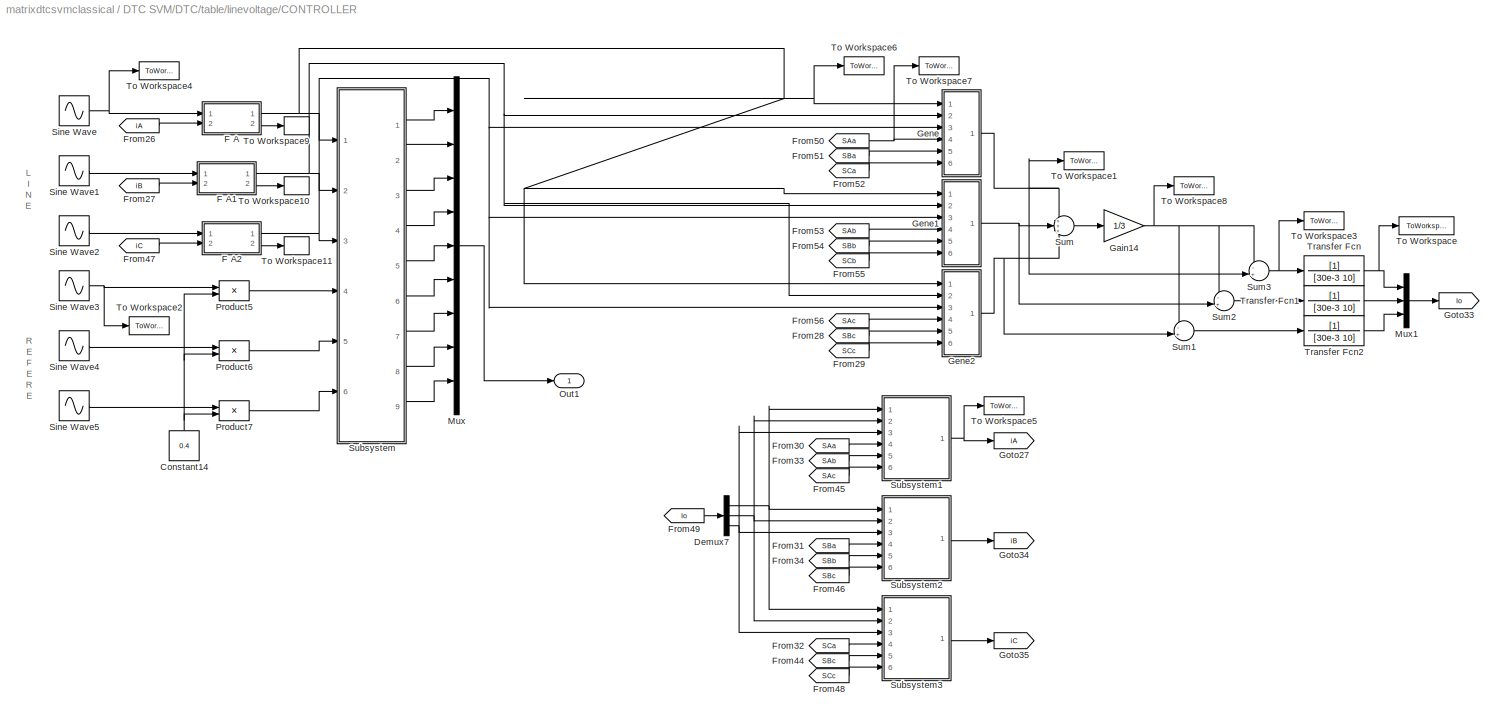
BLOCK [SubSystem] DTC SVM/DTC/table/linevoltage/CONTROLLER
  FunctionWithSeparateData = off
  MaskHideContents = off
  MinAlgLoopOccurrences = off
  Opaque = off
  Ports = [0, 1]
  PropExecContextOutsideSubsystem = off
  RTWSystemCode = Auto
  RequestExecContextInheritance = off
BLOCK [Constant] DTC SVM/DTC/table/linevoltage/CONTROLLER/Constant14
  OutDataType = sfix(16)
  OutScaling = 2^0
  Value = 0.4
BLOCK [Demux] DTC SVM/DTC/table/linevoltage/CONTROLLER/Demux7
  DisplayOption = bar
  Outputs = 3
  Ports = [1, 3]
BLOCK [SubSystem] DTC SVM/DTC/table/linevoltage/CONTROLLER/F A
  FunctionWithSeparateData = off
  MaskHideContents = off
  MinAlgLoopOccurrences = off
  Opaque = off
  Ports = [2, 2]
  PropExecContextOutsideSubsystem = off
  RTWSystemCode = Auto
  RequestExecContextInheritance = off
BLOCK [Sum] DTC SVM/DTC/table/linevoltage/CONTROLLER/F A/Sum
  IconShape = round
  InputSameDT = off
  Inputs = |+-
  OutDataType = sfix(16)
  OutDataTypeMode = Inherit via internal rule
  OutDataTypeStr = Inherit: Inherit via internal rule
  OutScaling = 2^0
  Ports = [2, 1]
  SaturateOnIntegerOverflow = off
BLOCK [Sum] DTC SVM/DTC/table/linevoltage/CONTROLLER/F A/Sum1
  IconShape = round
  InputSameDT = off
  Inputs = |++
  OutDataType = sfix(16)
  OutDataTypeMode = Inherit via internal rule
  OutDataTypeStr = Inherit: Inherit via internal rule
  OutScaling = 2^0
  Ports = [2, 1]
  SaturateOnIntegerOverflow = off
BLOCK [TransferFcn] DTC SVM/DTC/table/linevoltage/CONTROLLER/F A/Transfer Fcn
  Denominator = [0*25e-6 0.1*25e-6 1]
BLOCK [TransferFcn] DTC SVM/DTC/table/linevoltage/CONTROLLER/F A/Transfer Fcn1
  Denominator = [0.1*25e-6 0.1*25e-6 1]
  Numerator = [0 0.1]
BLOCK [TransferFcn] DTC SVM/DTC/table/linevoltage/CONTROLLER/F A/Transfer Fcn2
  Denominator = [0*25e-6 0.1*25e-6 1]
BLOCK [TransferFcn] DTC SVM/DTC/table/linevoltage/CONTROLLER/F A/Transfer Fcn3
  Denominator = [0*25e-6 0.1*25e-6 1]
  Numerator = [25e-6 0]
BLOCK [Outport] DTC SVM/DTC/table/linevoltage/CONTROLLER/F A/VAN
  IconDisplay = Port number
  OutDataType = sfix(16)
  OutScaling = 2^0
BLOCK [Inport] DTC SVM/DTC/table/linevoltage/CONTROLLER/F A/VsA
  IconDisplay = Port number
  OutDataType = sfix(16)
  OutScaling = 2^0
BLOCK [Inport] DTC SVM/DTC/table/linevoltage/CONTROLLER/F A/iA
  IconDisplay = Port number
  OutDataType = sfix(16)
  OutScaling = 2^0
  Port = 2
BLOCK [Outport] DTC SVM/DTC/table/linevoltage/CONTROLLER/F A/isA
  IconDisplay = Port number
  OutDataType = sfix(16)
  OutScaling = 2^0
  Port = 2
BLOCK [SubSystem] DTC SVM/DTC/table/linevoltage/CONTROLLER/F A1
  FunctionWithSeparateData = off
  MaskHideContents = off
  MinAlgLoopOccurrences = off
  Opaque = off
  Ports = [2, 2]
  PropExecContextOutsideSubsystem = off
  RTWSystemCode = Auto
  RequestExecContextInheritance = off
BLOCK [Sum] DTC SVM/DTC/table/linevoltage/CONTROLLER/F A1/Sum
  IconShape = round
  InputSameDT = off
  Inputs = |+-
  OutDataType = sfix(16)
  OutDataTypeMode = Inherit via internal rule
  OutDataTypeStr = Inherit: Inherit via internal rule
  OutScaling = 2^0
  Ports = [2, 1]
  SaturateOnIntegerOverflow = off
BLOCK [Sum] DTC SVM/DTC/table/linevoltage/CONTROLLER/F A1/Sum1
  IconShape = round
  InputSameDT = off
  Inputs = |++
  OutDataType = sfix(16)
  OutDataTypeMode = Inherit via internal rule
  OutDataTypeStr = Inherit: Inherit via internal rule
  OutScaling = 2^0
  Ports = [2, 1]
  SaturateOnIntegerOverflow = off
BLOCK [TransferFcn] DTC SVM/DTC/table/linevoltage/CONTROLLER/F A1/Transfer Fcn
  Denominator = [0*25e-6 0.1*25e-6 1]
BLOCK [TransferFcn] DTC SVM/DTC/table/linevoltage/CONTROLLER/F A1/Transfer Fcn1
  Denominator = [0.1*25e-6 0.1*25e-6 1]
  Numerator = [0 0.1]
BLOCK [TransferFcn] DTC SVM/DTC/table/linevoltage/CONTROLLER/F A1/Transfer Fcn2
  Denominator = [0*25e-6 0.1*25e-6 1]
BLOCK [TransferFcn] DTC SVM/DTC/table/linevoltage/CONTROLLER/F A1/Transfer Fcn3
  Denominator = [0*25e-6 0.1*25e-6 1]
  Numerator = [25e-6 0]
BLOCK [Outport] DTC SVM/DTC/table/linevoltage/CONTROLLER/F A1/VAN
  IconDisplay = Port number
  OutDataType = sfix(16)
  OutScaling = 2^0
BLOCK [Inport] DTC SVM/DTC/table/linevoltage/CONTROLLER/F A1/VsA
  IconDisplay = Port number
  OutDataType = sfix(16)
  OutScaling = 2^0
BLOCK [Inport] DTC SVM/DTC/table/linevoltage/CONTROLLER/F A1/iA
  IconDisplay = Port number
  OutDataType = sfix(16)
  OutScaling = 2^0
  Port = 2
BLOCK [Outport] DTC SVM/DTC/table/linevoltage/CONTROLLER/F A1/isA
  IconDisplay = Port number
  OutDataType = sfix(16)
  OutScaling = 2^0
  Port = 2
BLOCK [SubSystem] DTC SVM/DTC/table/linevoltage/CONTROLLER/F A2
  FunctionWithSeparateData = off
  MaskHideContents = off
  MinAlgLoopOccurrences = off
  Opaque = off
  Ports = [2, 2]
  PropExecContextOutsideSubsystem = off
  RTWSystemCode = Auto
  RequestExecContextInheritance = off
BLOCK [Sum] DTC SVM/DTC/table/linevoltage/CONTROLLER/F A2/Sum
  IconShape = round
  InputSameDT = off
  Inputs = |+-
  OutDataType = sfix(16)
  OutDataTypeMode = Inherit via internal rule
  OutDataTypeStr = Inherit: Inherit via internal rule
  OutScaling = 2^0
  Ports = [2, 1]
  SaturateOnIntegerOverflow = off
BLOCK [Sum] DTC SVM/DTC/table/linevoltage/CONTROLLER/F A2/Sum1
  IconShape = round
  InputSameDT = off
  Inputs = |++
  OutDataType = sfix(16)
  OutDataTypeMode = Inherit via internal rule
  OutDataTypeStr = Inherit: Inherit via internal rule
  OutScaling = 2^0
  Ports = [2, 1]
  SaturateOnIntegerOverflow = off
BLOCK [TransferFcn] DTC SVM/DTC/table/linevoltage/CONTROLLER/F A2/Transfer Fcn
  Denominator = [0*25e-6 0.1*25e-6 1]
BLOCK [TransferFcn] DTC SVM/DTC/table/linevoltage/CONTROLLER/F A2/Transfer Fcn1
  Denominator = [0.1*25e-6 0.1*25e-6 1]
  Numerator = [0 0.1]
BLOCK [TransferFcn] DTC SVM/DTC/table/linevoltage/CONTROLLER/F A2/Transfer Fcn2
  Denominator = [0*25e-6 0.1*25e-6 1]
BLOCK [TransferFcn] DTC SVM/DTC/table/linevoltage/CONTROLLER/F A2/Transfer Fcn3
  Denominator = [0*25e-6 0.1*25e-6 1]
  Numerator = [25e-6 0]
BLOCK [Outport] DTC SVM/DTC/table/linevoltage/CONTROLLER/F A2/VAN
  IconDisplay = Port number
  OutDataType = sfix(16)
  OutScaling = 2^0
BLOCK [Inport] DTC SVM/DTC/table/linevoltage/CONTROLLER/F A2/VsA
  IconDisplay = Port number
  OutDataType = sfix(16)
  OutScaling = 2^0
BLOCK [Inport] DTC SVM/DTC/table/linevoltage/CONTROLLER/F A2/iA
  IconDisplay = Port number
  OutDataType = sfix(16)
  OutScaling = 2^0
  Port = 2
BLOCK [Outport] DTC SVM/DTC/table/linevoltage/CONTROLLER/F A2/isA
  IconDisplay = Port number
  OutDataType = sfix(16)
  OutScaling = 2^0
  Port = 2
BLOCK [From] DTC SVM/DTC/table/linevoltage/CONTROLLER/From26
  CloseFcn = tagdialog Close
  GotoTag = iA
BLOCK [From] DTC SVM/DTC/table/linevoltage/CONTROLLER/From27
  CloseFcn = tagdialog Close
  GotoTag = iB
BLOCK [From] DTC SVM/DTC/table/linevoltage/CONTROLLER/From28
  CloseFcn = tagdialog Close
  GotoTag = SBc
  TagVisibility = global
BLOCK [From] DTC SVM/DTC/table/linevoltage/CONTROLLER/From29
  CloseFcn = tagdialog Close
  GotoTag = SCc
  TagVisibility = global
BLOCK [From] DTC SVM/DTC/table/linevoltage/CONTROLLER/From30
  CloseFcn = tagdialog Close
  GotoTag = SAa
  TagVisibility = global
BLOCK [From] DTC SVM/DTC/table/linevoltage/CONTROLLER/From31
  CloseFcn = tagdialog Close
  GotoTag = SBa
  TagVisibility = global
BLOCK [From] DTC SVM/DTC/table/linevoltage/CONTROLLER/From32
  CloseFcn = tagdialog Close
  GotoTag = SCa
  TagVisibility = global
BLOCK [From] DTC SVM/DTC/table/linevoltage/CONTROLLER/From33
  CloseFcn = tagdialog Close
  GotoTag = SAb
  TagVisibility = global
BLOCK [From] DTC SVM/DTC/table/linevoltage/CONTROLLER/From34
  CloseFcn = tagdialog Close
  GotoTag = SBb
  TagVisibility = global
BLOCK [From] DTC SVM/DTC/table/linevoltage/CONTROLLER/From44
  CloseFcn = tagdialog Close
  GotoTag = SBc
  TagVisibility = global
BLOCK [From] DTC SVM/DTC/table/linevoltage/CONTROLLER/From45
  CloseFcn = tagdialog Close
  GotoTag = SAc
  TagVisibility = global
BLOCK [From] DTC SVM/DTC/table/linevoltage/CONTROLLER/From46
  CloseFcn = tagdialog Close
  GotoTag = SBc
  TagVisibility = global
BLOCK [From] DTC SVM/DTC/table/linevoltage/CONTROLLER/From47
  CloseFcn = tagdialog Close
  GotoTag = iC
BLOCK [From] DTC SVM/DTC/table/linevoltage/CONTROLLER/From48
  CloseFcn = tagdialog Close
  GotoTag = SCc
  TagVisibility = global
BLOCK [From] DTC SVM/DTC/table/linevoltage/CONTROLLER/From49
  CloseFcn = tagdialog Close
  GotoTag = Io
BLOCK [From] DTC SVM/DTC/table/linevoltage/CONTROLLER/From50
  CloseFcn = tagdialog Close
  GotoTag = SAa
  TagVisibility = global
BLOCK [From] DTC SVM/DTC/table/linevoltage/CONTROLLER/From51
  CloseFcn = tagdialog Close
  GotoTag = SBa
  TagVisibility = global
BLOCK [From] DTC SVM/DTC/table/linevoltage/CONTROLLER/From52
  CloseFcn = tagdialog Close
  GotoTag = SCa
  TagVisibility = global
BLOCK [From] DTC SVM/DTC/table/linevoltage/CONTROLLER/From53
  CloseFcn = tagdialog Close
  GotoTag = SAb
  TagVisibility = global
BLOCK [From] DTC SVM/DTC/table/linevoltage/CONTROLLER/From54
  CloseFcn = tagdialog Close
  GotoTag = SBb
  TagVisibility = global
BLOCK [From] DTC SVM/DTC/table/linevoltage/CONTROLLER/From55
  CloseFcn = tagdialog Close
  GotoTag = SCb
  TagVisibility = global
BLOCK [From] DTC SVM/DTC/table/linevoltage/CONTROLLER/From56
  CloseFcn = tagdialog Close
  GotoTag = SAc
  TagVisibility = global
BLOCK [Gain] DTC SVM/DTC/table/linevoltage/CONTROLLER/Gain14
  Gain = 1/3
  OutDataType = sfix(16)
  OutDataTypeMode = Inherit via internal rule
  OutDataTypeStr = Inherit: Inherit via internal rule
  OutScaling = 2^0
  ParamDataTypeStr = Inherit: Inherit via internal rule
  ParameterDataType = sfix(16)
  ParameterDataTypeMode = Inherit via internal rule
  ParameterScaling = 2^0
  SaturateOnIntegerOverflow = off
BLOCK [SubSystem] DTC SVM/DTC/table/linevoltage/CONTROLLER/Gene
  FunctionWithSeparateData = off
  MaskHideContents = off
  MinAlgLoopOccurrences = off
  Opaque = off
  Ports = [6, 1]
  PropExecContextOutsideSubsystem = off
  RTWSystemCode = Auto
  RequestExecContextInheritance = off
BLOCK [Product] DTC SVM/DTC/table/linevoltage/CONTROLLER/Gene/Product3
  InputSameDT = off
  OutDataType = sfix(16)
  OutDataTypeMode = double
  OutDataTypeStr = double
  OutScaling = 2^0
  Ports = [2, 1]
  SaturateOnIntegerOverflow = off
BLOCK [Product] DTC SVM/DTC/table/linevoltage/CONTROLLER/Gene/Product4
  InputSameDT = off
  OutDataType = sfix(16)
  OutDataTypeMode = double
  OutDataTypeStr = double
  OutScaling = 2^0
  Ports = [2, 1]
  SaturateOnIntegerOverflow = off
BLOCK [Product] DTC SVM/DTC/table/linevoltage/CONTROLLER/Gene/Product5
  InputSameDT = off
  OutDataType = sfix(16)
  OutDataTypeMode = double
  OutDataTypeStr = double
  OutScaling = 2^0
  Ports = [2, 1]
  SaturateOnIntegerOverflow = off
BLOCK [Inport] DTC SVM/DTC/table/linevoltage/CONTROLLER/Gene/SAa
  IconDisplay = Port number
  OutDataType = sfix(16)
  OutScaling = 2^0
  Port = 4
BLOCK [Inport] DTC SVM/DTC/table/linevoltage/CONTROLLER/Gene/SBa
  IconDisplay = Port number
  OutDataType = sfix(16)
  OutScaling = 2^0
  Port = 5
BLOCK [Inport] DTC SVM/DTC/table/linevoltage/CONTROLLER/Gene/SCa
  IconDisplay = Port number
  OutDataType = sfix(16)
  OutScaling = 2^0
  Port = 6
BLOCK [Sum] DTC SVM/DTC/table/linevoltage/CONTROLLER/Gene/Sum
  IconShape = round
  InputSameDT = off
  Inputs = +++
  OutDataType = sfix(16)
  OutDataTypeMode = Inherit via internal rule
  OutDataTypeStr = Inherit: Inherit via internal rule
  OutScaling = 2^0
  Ports = [3, 1]
  SaturateOnIntegerOverflow = off
BLOCK [Inport] DTC SVM/DTC/table/linevoltage/CONTROLLER/Gene/vA
  IconDisplay = Port number
  OutDataType = sfix(16)
  OutScaling = 2^0
BLOCK [Inport] DTC SVM/DTC/table/linevoltage/CONTROLLER/Gene/vB
  IconDisplay = Port number
  OutDataType = sfix(16)
  OutScaling = 2^0
  Port = 2
BLOCK [Inport] DTC SVM/DTC/table/linevoltage/CONTROLLER/Gene/vC
  IconDisplay = Port number
  OutDataType = sfix(16)
  OutScaling = 2^0
  Port = 3
BLOCK [Outport] DTC SVM/DTC/table/linevoltage/CONTROLLER/Gene/va
  IconDisplay = Port number
  OutDataType = sfix(16)
  OutScaling = 2^0
BLOCK [SubSystem] DTC SVM/DTC/table/linevoltage/CONTROLLER/Gene1
  FunctionWithSeparateData = off
  MaskHideContents = off
  MinAlgLoopOccurrences = off
  Opaque = off
  Ports = [6, 1]
  PropExecContextOutsideSubsystem = off
  RTWSystemCode = Auto
  RequestExecContextInheritance = off
BLOCK [Product] DTC SVM/DTC/table/linevoltage/CONTROLLER/Gene1/Product3
  InputSameDT = off
  OutDataType = sfix(16)
  OutDataTypeMode = double
  OutDataTypeStr = double
  OutScaling = 2^0
  Ports = [2, 1]
  SaturateOnIntegerOverflow = off
BLOCK [Product] DTC SVM/DTC/table/linevoltage/CONTROLLER/Gene1/Product4
  InputSameDT = off
  OutDataType = sfix(16)
  OutDataTypeMode = double
  OutDataTypeStr = double
  OutScaling = 2^0
  Ports = [2, 1]
  SaturateOnIntegerOverflow = off
BLOCK [Product] DTC SVM/DTC/table/linevoltage/CONTROLLER/Gene1/Product5
  InputSameDT = off
  OutDataType = sfix(16)
  OutDataTypeMode = double
  OutDataTypeStr = double
  OutScaling = 2^0
  Ports = [2, 1]
  SaturateOnIntegerOverflow = off
BLOCK [Inport] DTC SVM/DTC/table/linevoltage/CONTROLLER/Gene1/SAb
  IconDisplay = Port number
  OutDataType = sfix(16)
  OutScaling = 2^0
  Port = 4
BLOCK [Inport] DTC SVM/DTC/table/linevoltage/CONTROLLER/Gene1/SBb
  IconDisplay = Port number
  OutDataType = sfix(16)
  OutScaling = 2^0
  Port = 5
BLOCK [Inport] DTC SVM/DTC/table/linevoltage/CONTROLLER/Gene1/SCb
  IconDisplay = Port number
  OutDataType = sfix(16)
  OutScaling = 2^0
  Port = 6
BLOCK [Sum] DTC SVM/DTC/table/linevoltage/CONTROLLER/Gene1/Sum
  IconShape = round
  InputSameDT = off
  Inputs = +++
  OutDataType = sfix(16)
  OutDataTypeMode = Inherit via internal rule
  OutDataTypeStr = Inherit: Inherit via internal rule
  OutScaling = 2^0
  Ports = [3, 1]
  SaturateOnIntegerOverflow = off
BLOCK [Inport] DTC SVM/DTC/table/linevoltage/CONTROLLER/Gene1/vA
  IconDisplay = Port number
  OutDataType = sfix(16)
  OutScaling = 2^0
BLOCK [Inport] DTC SVM/DTC/table/linevoltage/CONTROLLER/Gene1/vB
  IconDisplay = Port number
  OutDataType = sfix(16)
  OutScaling = 2^0
  Port = 2
BLOCK [Inport] DTC SVM/DTC/table/linevoltage/CONTROLLER/Gene1/vC
  IconDisplay = Port number
  OutDataType = sfix(16)
  OutScaling = 2^0
  Port = 3
BLOCK [Outport] DTC SVM/DTC/table/linevoltage/CONTROLLER/Gene1/vb
  IconDisplay = Port number
  OutDataType = sfix(16)
  OutScaling = 2^0
BLOCK [SubSystem] DTC SVM/DTC/table/linevoltage/CONTROLLER/Gene2
  FunctionWithSeparateData = off
  MaskHideContents = off
  MinAlgLoopOccurrences = off
  Opaque = off
  Ports = [6, 1]
  PropExecContextOutsideSubsystem = off
  RTWSystemCode = Auto
  RequestExecContextInheritance = off
BLOCK [Product] DTC SVM/DTC/table/linevoltage/CONTROLLER/Gene2/Product3
  InputSameDT = off
  OutDataType = sfix(16)
  OutDataTypeMode = double
  OutDataTypeStr = double
  OutScaling = 2^0
  Ports = [2, 1]
  SaturateOnIntegerOverflow = off
BLOCK [Product] DTC SVM/DTC/table/linevoltage/CONTROLLER/Gene2/Product4
  InputSameDT = off
  OutDataType = sfix(16)
  OutDataTypeMode = double
  OutDataTypeStr = double
  OutScaling = 2^0
  Ports = [2, 1]
  SaturateOnIntegerOverflow = off
BLOCK [Product] DTC SVM/DTC/table/linevoltage/CONTROLLER/Gene2/Product5
  InputSameDT = off
  OutDataType = sfix(16)
  OutDataTypeMode = double
  OutDataTypeStr = double
  OutScaling = 2^0
  Ports = [2, 1]
  SaturateOnIntegerOverflow = off
BLOCK [Inport] DTC SVM/DTC/table/linevoltage/CONTROLLER/Gene2/SAc
  IconDisplay = Port number
  OutDataType = sfix(16)
  OutScaling = 2^0
  Port = 4
BLOCK [Inport] DTC SVM/DTC/table/linevoltage/CONTROLLER/Gene2/SBc
  IconDisplay = Port number
  OutDataType = sfix(16)
  OutScaling = 2^0
  Port = 5
BLOCK [Inport] DTC SVM/DTC/table/linevoltage/CONTROLLER/Gene2/SCc
  IconDisplay = Port number
  OutDataType = sfix(16)
  OutScaling = 2^0
  Port = 6
BLOCK [Sum] DTC SVM/DTC/table/linevoltage/CONTROLLER/Gene2/Sum
  IconShape = round
  InputSameDT = off
  Inputs = +++
  OutDataType = sfix(16)
  OutDataTypeMode = Inherit via internal rule
  OutDataTypeStr = Inherit: Inherit via internal rule
  OutScaling = 2^0
  Ports = [3, 1]
  SaturateOnIntegerOverflow = off
BLOCK [Inport] DTC SVM/DTC/table/linevoltage/CONTROLLER/Gene2/vA
  IconDisplay = Port number
  OutDataType = sfix(16)
  OutScaling = 2^0
BLOCK [Inport] DTC SVM/DTC/table/linevoltage/CONTROLLER/Gene2/vB
  IconDisplay = Port number
  OutDataType = sfix(16)
  OutScaling = 2^0
  Port = 2
BLOCK [Inport] DTC SVM/DTC/table/linevoltage/CONTROLLER/Gene2/vC
  IconDisplay = Port number
  OutDataType = sfix(16)
  OutScaling = 2^0
  Port = 3
BLOCK [Outport] DTC SVM/DTC/table/linevoltage/CONTROLLER/Gene2/vc
  IconDisplay = Port number
  OutDataType = sfix(16)
  OutScaling = 2^0
BLOCK [Goto] DTC SVM/DTC/table/linevoltage/CONTROLLER/Goto27
  GotoTag = iA
  TagVisibility = local
BLOCK [Goto] DTC SVM/DTC/table/linevoltage/CONTROLLER/Goto33
  GotoTag = Io
  TagVisibility = local
BLOCK [Goto] DTC SVM/DTC/table/linevoltage/CONTROLLER/Goto34
  GotoTag = iB
  TagVisibility = local
BLOCK [Goto] DTC SVM/DTC/table/linevoltage/CONTROLLER/Goto35
  GotoTag = iC
  TagVisibility = local
BLOCK [Mux] DTC SVM/DTC/table/linevoltage/CONTROLLER/Mux
  DisplayOption = bar
  Inputs = 9
  Ports = [9, 1]
BLOCK [Mux] DTC SVM/DTC/table/linevoltage/CONTROLLER/Mux1
  DisplayOption = bar
  Inputs = 3
  Ports = [3, 1]
BLOCK [Outport] DTC SVM/DTC/table/linevoltage/CONTROLLER/Out1
  IconDisplay = Port number
  OutDataType = sfix(16)
  OutScaling = 2^0
BLOCK [Product] DTC SVM/DTC/table/linevoltage/CONTROLLER/Product5
  InputSameDT = off
  OutDataType = sfix(16)
  OutDataTypeMode = Inherit via internal rule
  OutDataTypeStr = Inherit: Inherit via internal rule
  OutScaling = 2^0
  Ports = [2, 1]
  SaturateOnIntegerOverflow = off
BLOCK [Product] DTC SVM/DTC/table/linevoltage/CONTROLLER/Product6
  InputSameDT = off
  OutDataType = sfix(16)
  OutDataTypeMode = Inherit via internal rule
  OutDataTypeStr = Inherit: Inherit via internal rule
  OutScaling = 2^0
  Ports = [2, 1]
  SaturateOnIntegerOverflow = off
BLOCK [Product] DTC SVM/DTC/table/linevoltage/CONTROLLER/Product7
  InputSameDT = off
  OutDataType = sfix(16)
  OutDataTypeMode = Inherit via internal rule
  OutDataTypeStr = Inherit: Inherit via internal rule
  OutScaling = 2^0
  Ports = [2, 1]
  SaturateOnIntegerOverflow = off
BLOCK [Sin] DTC SVM/DTC/table/linevoltage/CONTROLLER/Sine Wave
  Amplitude = 440
  Bias = 0
  Frequency = 2*pi*60
  Offset = 0
  Phase = 0
  Ports = [0, 1]
  SampleTime = 0
  Samples = 10
BLOCK [Sin] DTC SVM/DTC/table/linevoltage/CONTROLLER/Sine Wave1
  Amplitude = 440
  Bias = 0
  Frequency = 2*pi*60
  Offset = 0
  Phase = 2*pi/3
  Ports = [0, 1]
  SampleTime = 0
  Samples = 10
BLOCK [Sin] DTC SVM/DTC/table/linevoltage/CONTROLLER/Sine Wave2
  Amplitude = 440
  Bias = 0
  Frequency = 2*pi*60
  Offset = 0
  Phase = 4*pi/3
  Ports = [0, 1]
  SampleTime = 0
  Samples = 10
BLOCK [Sin] DTC SVM/DTC/table/linevoltage/CONTROLLER/Sine Wave3
  Amplitude = 220
  Bias = 0
  Frequency = 2*pi*60
  Offset = 0
  Phase = 0
  Ports = [0, 1]
  SampleTime = 0
  Samples = 10
BLOCK [Sin] DTC SVM/DTC/table/linevoltage/CONTROLLER/Sine Wave4
  Amplitude = 220
  Bias = 0
  Frequency = 2*pi*60
  Offset = 0
  Phase = 2*pi/3
  Ports = [0, 1]
  SampleTime = 0
  Samples = 10
BLOCK [Sin] DTC SVM/DTC/table/linevoltage/CONTROLLER/Sine Wave5
  Amplitude = 220
  Bias = 0
  Frequency = 2*pi*60
  Offset = 0
  Phase = 4*pi/3
  Ports = [0, 1]
  SampleTime = 0
  Samples = 10
BLOCK [SubSystem] DTC SVM/DTC/table/linevoltage/CONTROLLER/Subsystem
  FunctionWithSeparateData = off
  MaskHideContents = off
  MinAlgLoopOccurrences = off
  Opaque = off
  Ports = [6, 9]
  PropExecContextOutsideSubsystem = off
  RTWSystemCode = Auto
  RequestExecContextInheritance = off
BLOCK [Clock] DTC SVM/DTC/table/linevoltage/CONTROLLER/Subsystem/Clock
  Decimation = 10
BLOCK [Outport] DTC SVM/DTC/table/linevoltage/CONTROLLER/Subsystem/SAa
  IconDisplay = Port number
  OutDataType = sfix(16)
  OutScaling = 2^0
BLOCK [Outport] DTC SVM/DTC/table/linevoltage/CONTROLLER/Subsystem/SAb
  IconDisplay = Port number
  OutDataType = sfix(16)
  OutScaling = 2^0
  Port = 4
BLOCK [Outport] DTC SVM/DTC/table/linevoltage/CONTROLLER/Subsystem/SAc
  IconDisplay = Port number
  OutDataType = sfix(16)
  OutScaling = 2^0
  Port = 7
BLOCK [Outport] DTC SVM/DTC/table/linevoltage/CONTROLLER/Subsystem/SBa
  IconDisplay = Port number
  OutDataType = sfix(16)
  OutScaling = 2^0
  Port = 2
BLOCK [Outport] DTC SVM/DTC/table/linevoltage/CONTROLLER/Subsystem/SBb
  IconDisplay = Port number
  OutDataType = sfix(16)
  OutScaling = 2^0
  Port = 5
BLOCK [Outport] DTC SVM/DTC/table/linevoltage/CONTROLLER/Subsystem/SBc
  IconDisplay = Port number
  OutDataType = sfix(16)
  OutScaling = 2^0
  Port = 8
BLOCK [Outport] DTC SVM/DTC/table/linevoltage/CONTROLLER/Subsystem/SCa
  IconDisplay = Port number
  OutDataType = sfix(16)
  OutScaling = 2^0
  Port = 3
BLOCK [Outport] DTC SVM/DTC/table/linevoltage/CONTROLLER/Subsystem/SCb
  IconDisplay = Port number
  OutDataType = sfix(16)
  OutScaling = 2^0
  Port = 6
BLOCK [Outport] DTC SVM/DTC/table/linevoltage/CONTROLLER/Subsystem/SCc
  IconDisplay = Port number
  OutDataType = sfix(16)
  OutScaling = 2^0
  Port = 9
BLOCK [SubSystem] DTC SVM/DTC/table/linevoltage/CONTROLLER/Subsystem/Subsystem
  FunctionWithSeparateData = off
  MaskHideContents = off
  MinAlgLoopOccurrences = off
  Opaque = off
  Ports = [4, 6]
  PropExecContextOutsideSubsystem = off
  RTWSystemCode = Auto
  RequestExecContextInheritance = off
BLOCK [Constant] DTC SVM/DTC/table/linevoltage/CONTROLLER/Subsystem/Subsystem/Constant1
  OutDataType = sfix(16)
  OutScaling = 2^0
  Value = 1/(440*440)
BLOCK [Constant] DTC SVM/DTC/table/linevoltage/CONTROLLER/Subsystem/Subsystem/Constant2
  OutDataType = sfix(16)
  OutScaling = 2^0
BLOCK [Constant] DTC SVM/DTC/table/linevoltage/CONTROLLER/Subsystem/Subsystem/Constant3
  OutDataType = sfix(16)
  OutScaling = 2^0
  Value = 1/(440*440)
BLOCK [Constant] DTC SVM/DTC/table/linevoltage/CONTROLLER/Subsystem/Subsystem/Constant4
  OutDataType = sfix(16)
  OutScaling = 2^0
BLOCK [Constant] DTC SVM/DTC/table/linevoltage/CONTROLLER/Subsystem/Subsystem/Constant5
  OutDataType = sfix(16)
  OutScaling = 2^0
  Value = 1/(440*440)
BLOCK [Constant] DTC SVM/DTC/table/linevoltage/CONTROLLER/Subsystem/Subsystem/Constant6
  OutDataType = sfix(16)
  OutScaling = 2^0
BLOCK [Gain] DTC SVM/DTC/table/linevoltage/CONTROLLER/Subsystem/Subsystem/Gain
  Gain = 2
  OutDataType = sfix(16)
  OutDataTypeMode = Inherit via internal rule
  OutDataTypeStr = Inherit: Inherit via internal rule
  OutScaling = 2^0
  ParamDataTypeStr = Inherit: Inherit via internal rule
  ParameterDataType = sfix(16)
  ParameterDataTypeMode = Inherit via internal rule
  ParameterScaling = 2^0
  SaturateOnIntegerOverflow = off
BLOCK [Gain] DTC SVM/DTC/table/linevoltage/CONTROLLER/Subsystem/Subsystem/Gain1
  Gain = 1/3
  OutDataType = sfix(16)
  OutDataTypeMode = Inherit via internal rule
  OutDataTypeStr = Inherit: Inherit via internal rule
  OutScaling = 2^0
  ParamDataTypeStr = Inherit: Inherit via internal rule
  ParameterDataType = sfix(16)
  ParameterDataTypeMode = Inherit via internal rule
  ParameterScaling = 2^0
  SaturateOnIntegerOverflow = off
BLOCK [Gain] DTC SVM/DTC/table/linevoltage/CONTROLLER/Subsystem/Subsystem/Gain2
  Gain = 1e-3
  OutDataType = sfix(16)
  OutDataTypeMode = Inherit via internal rule
  OutDataTypeStr = Inherit: Inherit via internal rule
  OutScaling = 2^0
  ParamDataTypeStr = Inherit: Inherit via internal rule
  ParameterDataType = sfix(16)
  ParameterDataTypeMode = Inherit via internal rule
  ParameterScaling = 2^0
  SaturateOnIntegerOverflow = off
BLOCK [Gain] DTC SVM/DTC/table/linevoltage/CONTROLLER/Subsystem/Subsystem/Gain3
  Gain = 2
  OutDataType = sfix(16)
  OutDataTypeMode = Inherit via internal rule
  OutDataTypeStr = Inherit: Inherit via internal rule
  OutScaling = 2^0
  ParamDataTypeStr = Inherit: Inherit via internal rule
  ParameterDataType = sfix(16)
  ParameterDataTypeMode = Inherit via internal rule
  ParameterScaling = 2^0
  SaturateOnIntegerOverflow = off
BLOCK [Gain] DTC SVM/DTC/table/linevoltage/CONTROLLER/Subsystem/Subsystem/Gain4
  Gain = 1/3
  OutDataType = sfix(16)
  OutDataTypeMode = Inherit via internal rule
  OutDataTypeStr = Inherit: Inherit via internal rule
  OutScaling = 2^0
  ParamDataTypeStr = Inherit: Inherit via internal rule
  ParameterDataType = sfix(16)
  ParameterDataTypeMode = Inherit via internal rule
  ParameterScaling = 2^0
  SaturateOnIntegerOverflow = off
BLOCK [Gain] DTC SVM/DTC/table/linevoltage/CONTROLLER/Subsystem/Subsystem/Gain5
  Gain = 1e-3
  OutDataType = sfix(16)
  OutDataTypeMode = Inherit via internal rule
  OutDataTypeStr = Inherit: Inherit via internal rule
  OutScaling = 2^0
  ParamDataTypeStr = Inherit: Inherit via internal rule
  ParameterDataType = sfix(16)
  ParameterDataTypeMode = Inherit via internal rule
  ParameterScaling = 2^0
  SaturateOnIntegerOverflow = off
BLOCK [Gain] DTC SVM/DTC/table/linevoltage/CONTROLLER/Subsystem/Subsystem/Gain6
  Gain = 2
  OutDataType = sfix(16)
  OutDataTypeMode = Inherit via internal rule
  OutDataTypeStr = Inherit: Inherit via internal rule
  OutScaling = 2^0
  ParamDataTypeStr = Inherit: Inherit via internal rule
  ParameterDataType = sfix(16)
  ParameterDataTypeMode = Inherit via internal rule
  ParameterScaling = 2^0
  SaturateOnIntegerOverflow = off
BLOCK [Gain] DTC SVM/DTC/table/linevoltage/CONTROLLER/Subsystem/Subsystem/Gain7
  Gain = 1/3
  OutDataType = sfix(16)
  OutDataTypeMode = Inherit via internal rule
  OutDataTypeStr = Inherit: Inherit via internal rule
  OutScaling = 2^0
  ParamDataTypeStr = Inherit: Inherit via internal rule
  ParameterDataType = sfix(16)
  ParameterDataTypeMode = Inherit via internal rule
  ParameterScaling = 2^0
  SaturateOnIntegerOverflow = off
BLOCK [Gain] DTC SVM/DTC/table/linevoltage/CONTROLLER/Subsystem/Subsystem/Gain8
  Gain = 1e-3
  OutDataType = sfix(16)
  OutDataTypeMode = Inherit via internal rule
  OutDataTypeStr = Inherit: Inherit via internal rule
  OutScaling = 2^0
  ParamDataTypeStr = Inherit: Inherit via internal rule
  ParameterDataType = sfix(16)
  ParameterDataTypeMode = Inherit via internal rule
  ParameterScaling = 2^0
  SaturateOnIntegerOverflow = off
BLOCK [Product] DTC SVM/DTC/table/linevoltage/CONTROLLER/Subsystem/Subsystem/Product1
  InputSameDT = off
  OutDataType = sfix(16)
  OutDataTypeMode = Inherit via internal rule
  OutDataTypeStr = Inherit: Inherit via internal rule
  OutScaling = 2^0
  Ports = [2, 1]
  SaturateOnIntegerOverflow = off
BLOCK [Product] DTC SVM/DTC/table/linevoltage/CONTROLLER/Subsystem/Subsystem/Product2
  InputSameDT = off
  OutDataType = sfix(16)
  OutDataTypeMode = Inherit via internal rule
  OutDataTypeStr = Inherit: Inherit via internal rule
  OutScaling = 2^0
  Ports = [2, 1]
  SaturateOnIntegerOverflow = off
BLOCK [Product] DTC SVM/DTC/table/linevoltage/CONTROLLER/Subsystem/Subsystem/Product3
  InputSameDT = off
  OutDataType = sfix(16)
  OutDataTypeMode = Inherit via internal rule
  OutDataTypeStr = Inherit: Inherit via internal rule
  OutScaling = 2^0
  Ports = [2, 1]
  SaturateOnIntegerOverflow = off
BLOCK [Product] DTC SVM/DTC/table/linevoltage/CONTROLLER/Subsystem/Subsystem/Product4
  InputSameDT = off
  OutDataType = sfix(16)
  OutDataTypeMode = Inherit via internal rule
  OutDataTypeStr = Inherit: Inherit via internal rule
  OutScaling = 2^0
  Ports = [2, 1]
  SaturateOnIntegerOverflow = off
BLOCK [Product] DTC SVM/DTC/table/linevoltage/CONTROLLER/Subsystem/Subsystem/Product5
  InputSameDT = off
  OutDataType = sfix(16)
  OutDataTypeMode = Inherit via internal rule
  OutDataTypeStr = Inherit: Inherit via internal rule
  OutScaling = 2^0
  Ports = [2, 1]
  SaturateOnIntegerOverflow = off
BLOCK [Product] DTC SVM/DTC/table/linevoltage/CONTROLLER/Subsystem/Subsystem/Product6
  InputSameDT = off
  OutDataType = sfix(16)
  OutDataTypeMode = Inherit via internal rule
  OutDataTypeStr = Inherit: Inherit via internal rule
  OutScaling = 2^0
  Ports = [2, 1]
  SaturateOnIntegerOverflow = off
BLOCK [Sum] DTC SVM/DTC/table/linevoltage/CONTROLLER/Subsystem/Subsystem/Sum
  IconShape = round
  InputSameDT = off
  Inputs = |++
  OutDataType = sfix(16)
  OutDataTypeMode = Inherit via internal rule
  OutDataTypeStr = Inherit: Inherit via internal rule
  OutScaling = 2^0
  Ports = [2, 1]
  SaturateOnIntegerOverflow = off
BLOCK [Sum] DTC SVM/DTC/table/linevoltage/CONTROLLER/Subsystem/Subsystem/Sum1
  IconShape = round
  InputSameDT = off
  Inputs = |++
  OutDataType = sfix(16)
  OutDataTypeMode = Inherit via internal rule
  OutDataTypeStr = Inherit: Inherit via internal rule
  OutScaling = 2^0
  Ports = [2, 1]
  SaturateOnIntegerOverflow = off
BLOCK [Sum] DTC SVM/DTC/table/linevoltage/CONTROLLER/Subsystem/Subsystem/Sum2
  IconShape = round
  InputSameDT = off
  Inputs = |++
  OutDataType = sfix(16)
  OutDataTypeMode = Inherit via internal rule
  OutDataTypeStr = Inherit: Inherit via internal rule
  OutScaling = 2^0
  Ports = [2, 1]
  SaturateOnIntegerOverflow = off
BLOCK [Outport] DTC SVM/DTC/table/linevoltage/CONTROLLER/Subsystem/Subsystem/mAa
  IconDisplay = Port number
  OutDataType = sfix(16)
  OutScaling = 2^0
BLOCK [Outport] DTC SVM/DTC/table/linevoltage/CONTROLLER/Subsystem/Subsystem/mBa
  IconDisplay = Port number
  OutDataType = sfix(16)
  OutScaling = 2^0
  Port = 3
BLOCK [Outport] DTC SVM/DTC/table/linevoltage/CONTROLLER/Subsystem/Subsystem/mCa
  IconDisplay = Port number
  OutDataType = sfix(16)
  OutScaling = 2^0
  Port = 5
BLOCK [Outport] DTC SVM/DTC/table/linevoltage/CONTROLLER/Subsystem/Subsystem/tAa
  IconDisplay = Port number
  OutDataType = sfix(16)
  OutScaling = 2^0
  Port = 2
BLOCK [Outport] DTC SVM/DTC/table/linevoltage/CONTROLLER/Subsystem/Subsystem/tBa
  IconDisplay = Port number
  OutDataType = sfix(16)
  OutScaling = 2^0
  Port = 4
BLOCK [Outport] DTC SVM/DTC/table/linevoltage/CONTROLLER/Subsystem/Subsystem/tCa
  IconDisplay = Port number
  OutDataType = sfix(16)
  OutScaling = 2^0
  Port = 6
BLOCK [Inport] DTC SVM/DTC/table/linevoltage/CONTROLLER/Subsystem/Subsystem/vAN
  IconDisplay = Port number
  OutDataType = sfix(16)
  OutScaling = 2^0
BLOCK [Inport] DTC SVM/DTC/table/linevoltage/CONTROLLER/Subsystem/Subsystem/vBN
  IconDisplay = Port number
  OutDataType = sfix(16)
  OutScaling = 2^0
  Port = 3
BLOCK [Inport] DTC SVM/DTC/table/linevoltage/CONTROLLER/Subsystem/Subsystem/vCN
  IconDisplay = Port number
  OutDataType = sfix(16)
  OutScaling = 2^0
  Port = 4
BLOCK [Inport] DTC SVM/DTC/table/linevoltage/CONTROLLER/Subsystem/Subsystem/varef
  IconDisplay = Port number
  OutDataType = sfix(16)
  OutScaling = 2^0
  Port = 2
BLOCK [SubSystem] DTC SVM/DTC/table/linevoltage/CONTROLLER/Subsystem/Subsystem1
  FunctionWithSeparateData = off
  MaskHideContents = off
  MinAlgLoopOccurrences = off
  Opaque = off
  Ports = [4, 6]
  PropExecContextOutsideSubsystem = off
  RTWSystemCode = Auto
  RequestExecContextInheritance = off
BLOCK [Constant] DTC SVM/DTC/table/linevoltage/CONTROLLER/Subsystem/Subsystem1/Constant1
  OutDataType = sfix(16)
  OutScaling = 2^0
  Value = 1/(440*440)
BLOCK [Constant] DTC SVM/DTC/table/linevoltage/CONTROLLER/Subsystem/Subsystem1/Constant2
  OutDataType = sfix(16)
  OutScaling = 2^0
BLOCK [Constant] DTC SVM/DTC/table/linevoltage/CONTROLLER/Subsystem/Subsystem1/Constant3
  OutDataType = sfix(16)
  OutScaling = 2^0
  Value = 1/(440*440)
BLOCK [Constant] DTC SVM/DTC/table/linevoltage/CONTROLLER/Subsystem/Subsystem1/Constant4
  OutDataType = sfix(16)
  OutScaling = 2^0
BLOCK [Constant] DTC SVM/DTC/table/linevoltage/CONTROLLER/Subsystem/Subsystem1/Constant5
  OutDataType = sfix(16)
  OutScaling = 2^0
  Value = 1/(440*440)
BLOCK [Constant] DTC SVM/DTC/table/linevoltage/CONTROLLER/Subsystem/Subsystem1/Constant6
  OutDataType = sfix(16)
  OutScaling = 2^0
BLOCK [Gain] DTC SVM/DTC/table/linevoltage/CONTROLLER/Subsystem/Subsystem1/Gain
  Gain = 2
  OutDataType = sfix(16)
  OutDataTypeMode = Inherit via internal rule
  OutDataTypeStr = Inherit: Inherit via internal rule
  OutScaling = 2^0
  ParamDataTypeStr = Inherit: Inherit via internal rule
  ParameterDataType = sfix(16)
  ParameterDataTypeMode = Inherit via internal rule
  ParameterScaling = 2^0
  SaturateOnIntegerOverflow = off
BLOCK [Gain] DTC SVM/DTC/table/linevoltage/CONTROLLER/Subsystem/Subsystem1/Gain1
  Gain = 1/3
  OutDataType = sfix(16)
  OutDataTypeMode = Inherit via internal rule
  OutDataTypeStr = Inherit: Inherit via internal rule
  OutScaling = 2^0
  ParamDataTypeStr = Inherit: Inherit via internal rule
  ParameterDataType = sfix(16)
  ParameterDataTypeMode = Inherit via internal rule
  ParameterScaling = 2^0
  SaturateOnIntegerOverflow = off
BLOCK [Gain] DTC SVM/DTC/table/linevoltage/CONTROLLER/Subsystem/Subsystem1/Gain2
  Gain = 1e-3
  OutDataType = sfix(16)
  OutDataTypeMode = Inherit via internal rule
  OutDataTypeStr = Inherit: Inherit via internal rule
  OutScaling = 2^0
  ParamDataTypeStr = Inherit: Inherit via internal rule
  ParameterDataType = sfix(16)
  ParameterDataTypeMode = Inherit via internal rule
  ParameterScaling = 2^0
  SaturateOnIntegerOverflow = off
BLOCK [Gain] DTC SVM/DTC/table/linevoltage/CONTROLLER/Subsystem/Subsystem1/Gain3
  Gain = 2
  OutDataType = sfix(16)
  OutDataTypeMode = Inherit via internal rule
  OutDataTypeStr = Inherit: Inherit via internal rule
  OutScaling = 2^0
  ParamDataTypeStr = Inherit: Inherit via internal rule
  ParameterDataType = sfix(16)
  ParameterDataTypeMode = Inherit via internal rule
  ParameterScaling = 2^0
  SaturateOnIntegerOverflow = off
BLOCK [Gain] DTC SVM/DTC/table/linevoltage/CONTROLLER/Subsystem/Subsystem1/Gain4
  Gain = 1/3
  OutDataType = sfix(16)
  OutDataTypeMode = Inherit via internal rule
  OutDataTypeStr = Inherit: Inherit via internal rule
  OutScaling = 2^0
  ParamDataTypeStr = Inherit: Inherit via internal rule
  ParameterDataType = sfix(16)
  ParameterDataTypeMode = Inherit via internal rule
  ParameterScaling = 2^0
  SaturateOnIntegerOverflow = off
BLOCK [Gain] DTC SVM/DTC/table/linevoltage/CONTROLLER/Subsystem/Subsystem1/Gain5
  Gain = 1e-3
  OutDataType = sfix(16)
  OutDataTypeMode = Inherit via internal rule
  OutDataTypeStr = Inherit: Inherit via internal rule
  OutScaling = 2^0
  ParamDataTypeStr = Inherit: Inherit via internal rule
  ParameterDataType = sfix(16)
  ParameterDataTypeMode = Inherit via internal rule
  ParameterScaling = 2^0
  SaturateOnIntegerOverflow = off
BLOCK [Gain] DTC SVM/DTC/table/linevoltage/CONTROLLER/Subsystem/Subsystem1/Gain6
  Gain = 2
  OutDataType = sfix(16)
  OutDataTypeMode = Inherit via internal rule
  OutDataTypeStr = Inherit: Inherit via internal rule
  OutScaling = 2^0
  ParamDataTypeStr = Inherit: Inherit via internal rule
  ParameterDataType = sfix(16)
  ParameterDataTypeMode = Inherit via internal rule
  ParameterScaling = 2^0
  SaturateOnIntegerOverflow = off
BLOCK [Gain] DTC SVM/DTC/table/linevoltage/CONTROLLER/Subsystem/Subsystem1/Gain7
  Gain = 1/3
  OutDataType = sfix(16)
  OutDataTypeMode = Inherit via internal rule
  OutDataTypeStr = Inherit: Inherit via internal rule
  OutScaling = 2^0
  ParamDataTypeStr = Inherit: Inherit via internal rule
  ParameterDataType = sfix(16)
  ParameterDataTypeMode = Inherit via internal rule
  ParameterScaling = 2^0
  SaturateOnIntegerOverflow = off
BLOCK [Gain] DTC SVM/DTC/table/linevoltage/CONTROLLER/Subsystem/Subsystem1/Gain8
  Gain = 1e-3
  OutDataType = sfix(16)
  OutDataTypeMode = Inherit via internal rule
  OutDataTypeStr = Inherit: Inherit via internal rule
  OutScaling = 2^0
  ParamDataTypeStr = Inherit: Inherit via internal rule
  ParameterDataType = sfix(16)
  ParameterDataTypeMode = Inherit via internal rule
  ParameterScaling = 2^0
  SaturateOnIntegerOverflow = off
BLOCK [Product] DTC SVM/DTC/table/linevoltage/CONTROLLER/Subsystem/Subsystem1/Product1
  InputSameDT = off
  OutDataType = sfix(16)
  OutDataTypeMode = Inherit via internal rule
  OutDataTypeStr = Inherit: Inherit via internal rule
  OutScaling = 2^0
  Ports = [2, 1]
  SaturateOnIntegerOverflow = off
BLOCK [Product] DTC SVM/DTC/table/linevoltage/CONTROLLER/Subsystem/Subsystem1/Product2
  InputSameDT = off
  OutDataType = sfix(16)
  OutDataTypeMode = Inherit via internal rule
  OutDataTypeStr = Inherit: Inherit via internal rule
  OutScaling = 2^0
  Ports = [2, 1]
  SaturateOnIntegerOverflow = off
BLOCK [Product] DTC SVM/DTC/table/linevoltage/CONTROLLER/Subsystem/Subsystem1/Product3
  InputSameDT = off
  OutDataType = sfix(16)
  OutDataTypeMode = Inherit via internal rule
  OutDataTypeStr = Inherit: Inherit via internal rule
  OutScaling = 2^0
  Ports = [2, 1]
  SaturateOnIntegerOverflow = off
BLOCK [Product] DTC SVM/DTC/table/linevoltage/CONTROLLER/Subsystem/Subsystem1/Product4
  InputSameDT = off
  OutDataType = sfix(16)
  OutDataTypeMode = Inherit via internal rule
  OutDataTypeStr = Inherit: Inherit via internal rule
  OutScaling = 2^0
  Ports = [2, 1]
  SaturateOnIntegerOverflow = off
BLOCK [Product] DTC SVM/DTC/table/linevoltage/CONTROLLER/Subsystem/Subsystem1/Product5
  InputSameDT = off
  OutDataType = sfix(16)
  OutDataTypeMode = Inherit via internal rule
  OutDataTypeStr = Inherit: Inherit via internal rule
  OutScaling = 2^0
  Ports = [2, 1]
  SaturateOnIntegerOverflow = off
BLOCK [Product] DTC SVM/DTC/table/linevoltage/CONTROLLER/Subsystem/Subsystem1/Product6
  InputSameDT = off
  OutDataType = sfix(16)
  OutDataTypeMode = Inherit via internal rule
  OutDataTypeStr = Inherit: Inherit via internal rule
  OutScaling = 2^0
  Ports = [2, 1]
  SaturateOnIntegerOverflow = off
BLOCK [Sum] DTC SVM/DTC/table/linevoltage/CONTROLLER/Subsystem/Subsystem1/Sum
  IconShape = round
  InputSameDT = off
  Inputs = |++
  OutDataType = sfix(16)
  OutDataTypeMode = Inherit via internal rule
  OutDataTypeStr = Inherit: Inherit via internal rule
  OutScaling = 2^0
  Ports = [2, 1]
  SaturateOnIntegerOverflow = off
BLOCK [Sum] DTC SVM/DTC/table/linevoltage/CONTROLLER/Subsystem/Subsystem1/Sum1
  IconShape = round
  InputSameDT = off
  Inputs = |++
  OutDataType = sfix(16)
  OutDataTypeMode = Inherit via internal rule
  OutDataTypeStr = Inherit: Inherit via internal rule
  OutScaling = 2^0
  Ports = [2, 1]
  SaturateOnIntegerOverflow = off
BLOCK [Sum] DTC SVM/DTC/table/linevoltage/CONTROLLER/Subsystem/Subsystem1/Sum2
  IconShape = round
  InputSameDT = off
  Inputs = |++
  OutDataType = sfix(16)
  OutDataTypeMode = Inherit via internal rule
  OutDataTypeStr = Inherit: Inherit via internal rule
  OutScaling = 2^0
  Ports = [2, 1]
  SaturateOnIntegerOverflow = off
BLOCK [Outport] DTC SVM/DTC/table/linevoltage/CONTROLLER/Subsystem/Subsystem1/mAb
  IconDisplay = Port number
  OutDataType = sfix(16)
  OutScaling = 2^0
BLOCK [Outport] DTC SVM/DTC/table/linevoltage/CONTROLLER/Subsystem/Subsystem1/mBb
  IconDisplay = Port number
  OutDataType = sfix(16)
  OutScaling = 2^0
  Port = 3
BLOCK [Outport] DTC SVM/DTC/table/linevoltage/CONTROLLER/Subsystem/Subsystem1/mCb
  IconDisplay = Port number
  OutDataType = sfix(16)
  OutScaling = 2^0
  Port = 5
BLOCK [Outport] DTC SVM/DTC/table/linevoltage/CONTROLLER/Subsystem/Subsystem1/tAb
  IconDisplay = Port number
  OutDataType = sfix(16)
  OutScaling = 2^0
  Port = 2
BLOCK [Outport] DTC SVM/DTC/table/linevoltage/CONTROLLER/Subsystem/Subsystem1/tBb
  IconDisplay = Port number
  OutDataType = sfix(16)
  OutScaling = 2^0
  Port = 4
BLOCK [Outport] DTC SVM/DTC/table/linevoltage/CONTROLLER/Subsystem/Subsystem1/tCb
  IconDisplay = Port number
  OutDataType = sfix(16)
  OutScaling = 2^0
  Port = 6
BLOCK [Inport] DTC SVM/DTC/table/linevoltage/CONTROLLER/Subsystem/Subsystem1/vAN
  IconDisplay = Port number
  OutDataType = sfix(16)
  OutScaling = 2^0
BLOCK [Inport] DTC SVM/DTC/table/linevoltage/CONTROLLER/Subsystem/Subsystem1/vBN
  IconDisplay = Port number
  OutDataType = sfix(16)
  OutScaling = 2^0
  Port = 3
BLOCK [Inport] DTC SVM/DTC/table/linevoltage/CONTROLLER/Subsystem/Subsystem1/vCN
  IconDisplay = Port number
  OutDataType = sfix(16)
  OutScaling = 2^0
  Port = 4
BLOCK [Inport] DTC SVM/DTC/table/linevoltage/CONTROLLER/Subsystem/Subsystem1/vbref
  IconDisplay = Port number
  OutDataType = sfix(16)
  OutScaling = 2^0
  Port = 2
BLOCK [SubSystem] DTC SVM/DTC/table/linevoltage/CONTROLLER/Subsystem/Subsystem2
  FunctionWithSeparateData = off
  MaskHideContents = off
  MinAlgLoopOccurrences = off
  Opaque = off
  Ports = [4, 6]
  PropExecContextOutsideSubsystem = off
  RTWSystemCode = Auto
  RequestExecContextInheritance = off
BLOCK [Constant] DTC SVM/DTC/table/linevoltage/CONTROLLER/Subsystem/Subsystem2/Constant1
  OutDataType = sfix(16)
  OutScaling = 2^0
  Value = 1/(440*440)
BLOCK [Constant] DTC SVM/DTC/table/linevoltage/CONTROLLER/Subsystem/Subsystem2/Constant2
  OutDataType = sfix(16)
  OutScaling = 2^0
BLOCK [Constant] DTC SVM/DTC/table/linevoltage/CONTROLLER/Subsystem/Subsystem2/Constant3
  OutDataType = sfix(16)
  OutScaling = 2^0
  Value = 1/(440*440)
BLOCK [Constant] DTC SVM/DTC/table/linevoltage/CONTROLLER/Subsystem/Subsystem2/Constant4
  OutDataType = sfix(16)
  OutScaling = 2^0
BLOCK [Constant] DTC SVM/DTC/table/linevoltage/CONTROLLER/Subsystem/Subsystem2/Constant5
  OutDataType = sfix(16)
  OutScaling = 2^0
  Value = 1/(440*440)
BLOCK [Constant] DTC SVM/DTC/table/linevoltage/CONTROLLER/Subsystem/Subsystem2/Constant6
  OutDataType = sfix(16)
  OutScaling = 2^0
BLOCK [Gain] DTC SVM/DTC/table/linevoltage/CONTROLLER/Subsystem/Subsystem2/Gain
  Gain = 2
  OutDataType = sfix(16)
  OutDataTypeMode = Inherit via internal rule
  OutDataTypeStr = Inherit: Inherit via internal rule
  OutScaling = 2^0
  ParamDataTypeStr = Inherit: Inherit via internal rule
  ParameterDataType = sfix(16)
  ParameterDataTypeMode = Inherit via internal rule
  ParameterScaling = 2^0
  SaturateOnIntegerOverflow = off
BLOCK [Gain] DTC SVM/DTC/table/linevoltage/CONTROLLER/Subsystem/Subsystem2/Gain1
  Gain = 1/3
  OutDataType = sfix(16)
  OutDataTypeMode = Inherit via internal rule
  OutDataTypeStr = Inherit: Inherit via internal rule
  OutScaling = 2^0
  ParamDataTypeStr = Inherit: Inherit via internal rule
  ParameterDataType = sfix(16)
  ParameterDataTypeMode = Inherit via internal rule
  ParameterScaling = 2^0
  SaturateOnIntegerOverflow = off
BLOCK [Gain] DTC SVM/DTC/table/linevoltage/CONTROLLER/Subsystem/Subsystem2/Gain2
  Gain = 1e-3
  OutDataType = sfix(16)
  OutDataTypeMode = Inherit via internal rule
  OutDataTypeStr = Inherit: Inherit via internal rule
  OutScaling = 2^0
  ParamDataTypeStr = Inherit: Inherit via internal rule
  ParameterDataType = sfix(16)
  ParameterDataTypeMode = Inherit via internal rule
  ParameterScaling = 2^0
  SaturateOnIntegerOverflow = off
BLOCK [Gain] DTC SVM/DTC/table/linevoltage/CONTROLLER/Subsystem/Subsystem2/Gain3
  Gain = 2
  OutDataType = sfix(16)
  OutDataTypeMode = Inherit via internal rule
  OutDataTypeStr = Inherit: Inherit via internal rule
  OutScaling = 2^0
  ParamDataTypeStr = Inherit: Inherit via internal rule
  ParameterDataType = sfix(16)
  ParameterDataTypeMode = Inherit via internal rule
  ParameterScaling = 2^0
  SaturateOnIntegerOverflow = off
BLOCK [Gain] DTC SVM/DTC/table/linevoltage/CONTROLLER/Subsystem/Subsystem2/Gain4
  Gain = 1/3
  OutDataType = sfix(16)
  OutDataTypeMode = Inherit via internal rule
  OutDataTypeStr = Inherit: Inherit via internal rule
  OutScaling = 2^0
  ParamDataTypeStr = Inherit: Inherit via internal rule
  ParameterDataType = sfix(16)
  ParameterDataTypeMode = Inherit via internal rule
  ParameterScaling = 2^0
  SaturateOnIntegerOverflow = off
BLOCK [Gain] DTC SVM/DTC/table/linevoltage/CONTROLLER/Subsystem/Subsystem2/Gain5
  Gain = 1e-3
  OutDataType = sfix(16)
  OutDataTypeMode = Inherit via internal rule
  OutDataTypeStr = Inherit: Inherit via internal rule
  OutScaling = 2^0
  ParamDataTypeStr = Inherit: Inherit via internal rule
  ParameterDataType = sfix(16)
  ParameterDataTypeMode = Inherit via internal rule
  ParameterScaling = 2^0
  SaturateOnIntegerOverflow = off
BLOCK [Gain] DTC SVM/DTC/table/linevoltage/CONTROLLER/Subsystem/Subsystem2/Gain6
  Gain = 2
  OutDataType = sfix(16)
  OutDataTypeMode = Inherit via internal rule
  OutDataTypeStr = Inherit: Inherit via internal rule
  OutScaling = 2^0
  ParamDataTypeStr = Inherit: Inherit via internal rule
  ParameterDataType = sfix(16)
  ParameterDataTypeMode = Inherit via internal rule
  ParameterScaling = 2^0
  SaturateOnIntegerOverflow = off
BLOCK [Gain] DTC SVM/DTC/table/linevoltage/CONTROLLER/Subsystem/Subsystem2/Gain7
  Gain = 1/3
  OutDataType = sfix(16)
  OutDataTypeMode = Inherit via internal rule
  OutDataTypeStr = Inherit: Inherit via internal rule
  OutScaling = 2^0
  ParamDataTypeStr = Inherit: Inherit via internal rule
  ParameterDataType = sfix(16)
  ParameterDataTypeMode = Inherit via internal rule
  ParameterScaling = 2^0
  SaturateOnIntegerOverflow = off
BLOCK [Gain] DTC SVM/DTC/table/linevoltage/CONTROLLER/Subsystem/Subsystem2/Gain8
  Gain = 1e-3
  OutDataType = sfix(16)
  OutDataTypeMode = Inherit via internal rule
  OutDataTypeStr = Inherit: Inherit via internal rule
  OutScaling = 2^0
  ParamDataTypeStr = Inherit: Inherit via internal rule
  ParameterDataType = sfix(16)
  ParameterDataTypeMode = Inherit via internal rule
  ParameterScaling = 2^0
  SaturateOnIntegerOverflow = off
BLOCK [Product] DTC SVM/DTC/table/linevoltage/CONTROLLER/Subsystem/Subsystem2/Product1
  InputSameDT = off
  OutDataType = sfix(16)
  OutDataTypeMode = Inherit via internal rule
  OutDataTypeStr = Inherit: Inherit via internal rule
  OutScaling = 2^0
  Ports = [2, 1]
  SaturateOnIntegerOverflow = off
BLOCK [Product] DTC SVM/DTC/table/linevoltage/CONTROLLER/Subsystem/Subsystem2/Product2
  InputSameDT = off
  OutDataType = sfix(16)
  OutDataTypeMode = Inherit via internal rule
  OutDataTypeStr = Inherit: Inherit via internal rule
  OutScaling = 2^0
  Ports = [2, 1]
  SaturateOnIntegerOverflow = off
BLOCK [Product] DTC SVM/DTC/table/linevoltage/CONTROLLER/Subsystem/Subsystem2/Product3
  InputSameDT = off
  OutDataType = sfix(16)
  OutDataTypeMode = Inherit via internal rule
  OutDataTypeStr = Inherit: Inherit via internal rule
  OutScaling = 2^0
  Ports = [2, 1]
  SaturateOnIntegerOverflow = off
BLOCK [Product] DTC SVM/DTC/table/linevoltage/CONTROLLER/Subsystem/Subsystem2/Product4
  InputSameDT = off
  OutDataType = sfix(16)
  OutDataTypeMode = Inherit via internal rule
  OutDataTypeStr = Inherit: Inherit via internal rule
  OutScaling = 2^0
  Ports = [2, 1]
  SaturateOnIntegerOverflow = off
BLOCK [Product] DTC SVM/DTC/table/linevoltage/CONTROLLER/Subsystem/Subsystem2/Product5
  InputSameDT = off
  OutDataType = sfix(16)
  OutDataTypeMode = Inherit via internal rule
  OutDataTypeStr = Inherit: Inherit via internal rule
  OutScaling = 2^0
  Ports = [2, 1]
  SaturateOnIntegerOverflow = off
BLOCK [Product] DTC SVM/DTC/table/linevoltage/CONTROLLER/Subsystem/Subsystem2/Product6
  InputSameDT = off
  OutDataType = sfix(16)
  OutDataTypeMode = Inherit via internal rule
  OutDataTypeStr = Inherit: Inherit via internal rule
  OutScaling = 2^0
  Ports = [2, 1]
  SaturateOnIntegerOverflow = off
BLOCK [Sum] DTC SVM/DTC/table/linevoltage/CONTROLLER/Subsystem/Subsystem2/Sum
  IconShape = round
  InputSameDT = off
  Inputs = |++
  OutDataType = sfix(16)
  OutDataTypeMode = Inherit via internal rule
  OutDataTypeStr = Inherit: Inherit via internal rule
  OutScaling = 2^0
  Ports = [2, 1]
  SaturateOnIntegerOverflow = off
BLOCK [Sum] DTC SVM/DTC/table/linevoltage/CONTROLLER/Subsystem/Subsystem2/Sum1
  IconShape = round
  InputSameDT = off
  Inputs = |++
  OutDataType = sfix(16)
  OutDataTypeMode = Inherit via internal rule
  OutDataTypeStr = Inherit: Inherit via internal rule
  OutScaling = 2^0
  Ports = [2, 1]
  SaturateOnIntegerOverflow = off
BLOCK [Sum] DTC SVM/DTC/table/linevoltage/CONTROLLER/Subsystem/Subsystem2/Sum2
  IconShape = round
  InputSameDT = off
  Inputs = |++
  OutDataType = sfix(16)
  OutDataTypeMode = Inherit via internal rule
  OutDataTypeStr = Inherit: Inherit via internal rule
  OutScaling = 2^0
  Ports = [2, 1]
  SaturateOnIntegerOverflow = off
BLOCK [Outport] DTC SVM/DTC/table/linevoltage/CONTROLLER/Subsystem/Subsystem2/mAc
  IconDisplay = Port number
  OutDataType = sfix(16)
  OutScaling = 2^0
BLOCK [Outport] DTC SVM/DTC/table/linevoltage/CONTROLLER/Subsystem/Subsystem2/mBc
  IconDisplay = Port number
  OutDataType = sfix(16)
  OutScaling = 2^0
  Port = 3
BLOCK [Outport] DTC SVM/DTC/table/linevoltage/CONTROLLER/Subsystem/Subsystem2/mCc
  IconDisplay = Port number
  OutDataType = sfix(16)
  OutScaling = 2^0
  Port = 5
BLOCK [Outport] DTC SVM/DTC/table/linevoltage/CONTROLLER/Subsystem/Subsystem2/tAc
  IconDisplay = Port number
  OutDataType = sfix(16)
  OutScaling = 2^0
  Port = 2
BLOCK [Outport] DTC SVM/DTC/table/linevoltage/CONTROLLER/Subsystem/Subsystem2/tBc
  IconDisplay = Port number
  OutDataType = sfix(16)
  OutScaling = 2^0
  Port = 4
BLOCK [Outport] DTC SVM/DTC/table/linevoltage/CONTROLLER/Subsystem/Subsystem2/tCc
  IconDisplay = Port number
  OutDataType = sfix(16)
  OutScaling = 2^0
  Port = 6
BLOCK [Inport] DTC SVM/DTC/table/linevoltage/CONTROLLER/Subsystem/Subsystem2/vAN
  IconDisplay = Port number
  OutDataType = sfix(16)
  OutScaling = 2^0
BLOCK [Inport] DTC SVM/DTC/table/linevoltage/CONTROLLER/Subsystem/Subsystem2/vBN
  IconDisplay = Port number
  OutDataType = sfix(16)
  OutScaling = 2^0
  Port = 3
BLOCK [Inport] DTC SVM/DTC/table/linevoltage/CONTROLLER/Subsystem/Subsystem2/vCN
  IconDisplay = Port number
  OutDataType = sfix(16)
  OutScaling = 2^0
  Port = 4
BLOCK [Inport] DTC SVM/DTC/table/linevoltage/CONTROLLER/Subsystem/Subsystem2/vcref
  IconDisplay = Port number
  OutDataType = sfix(16)
  OutScaling = 2^0
  Port = 2
BLOCK [Terminator] DTC SVM/DTC/table/linevoltage/CONTROLLER/Subsystem/Terminator
BLOCK [Terminator] DTC SVM/DTC/table/linevoltage/CONTROLLER/Subsystem/Terminator1
BLOCK [Terminator] DTC SVM/DTC/table/linevoltage/CONTROLLER/Subsystem/Terminator10
BLOCK [Terminator] DTC SVM/DTC/table/linevoltage/CONTROLLER/Subsystem/Terminator11
BLOCK [Terminator] DTC SVM/DTC/table/linevoltage/CONTROLLER/Subsystem/Terminator2
BLOCK [Terminator] DTC SVM/DTC/table/linevoltage/CONTROLLER/Subsystem/Terminator3
BLOCK [Terminator] DTC SVM/DTC/table/linevoltage/CONTROLLER/Subsystem/Terminator4
BLOCK [Terminator] DTC SVM/DTC/table/linevoltage/CONTROLLER/Subsystem/Terminator5
BLOCK [Terminator] DTC SVM/DTC/table/linevoltage/CONTROLLER/Subsystem/Terminator6
BLOCK [Terminator] DTC SVM/DTC/table/linevoltage/CONTROLLER/Subsystem/Terminator7
BLOCK [Terminator] DTC SVM/DTC/table/linevoltage/CONTROLLER/Subsystem/Terminator8
BLOCK [Terminator] DTC SVM/DTC/table/linevoltage/CONTROLLER/Subsystem/Terminator9
BLOCK [ToWorkspace] DTC SVM/DTC/table/linevoltage/CONTROLLER/Subsystem/To Workspace6
  MaxDataPoints = inf
  SampleTime = 1e-5
  SaveFormat = Array
  VariableName = t
BLOCK [SubSystem] DTC SVM/DTC/table/linevoltage/CONTROLLER/Subsystem/a
  FunctionWithSeparateData = off
  MaskHideContents = off
  MinAlgLoopOccurrences = off
  Opaque = off
  Ports = [3, 3]
  PropExecContextOutsideSubsystem = off
  RTWSystemCode = Auto
  RequestExecContextInheritance = off
BLOCK [CombinatorialLogic] DTC SVM/DTC/table/linevoltage/CONTROLLER/Subsystem/a/2: not(A) and (B)\n3: not(A) and not (B)
  TruthTable = [0 1;1 0;0 0;0 0]
BLOCK [Inport] DTC SVM/DTC/table/linevoltage/CONTROLLER/Subsystem/a/Clk
  IconDisplay = Port number
  OutDataType = sfix(16)
  OutScaling = 2^0
BLOCK [SubSystem] DTC SVM/DTC/table/linevoltage/CONTROLLER/Subsystem/a/Comp A
  FunctionWithSeparateData = off
  MaskHideContents = off
  MinAlgLoopOccurrences = off
  Opaque = off
  Ports = [2, 1]
  PropExecContextOutsideSubsystem = off
  RTWSystemCode = Auto
  RequestExecContextInheritance = off
BLOCK [Inport] DTC SVM/DTC/table/linevoltage/CONTROLLER/Subsystem/a/Comp A/+
  IconDisplay = Port number
  OutDataType = sfix(16)
  OutScaling = 2^0
BLOCK [Inport] DTC SVM/DTC/table/linevoltage/CONTROLLER/Subsystem/a/Comp A/-
  IconDisplay = Port number
  OutDataType = sfix(16)
  OutScaling = 2^0
  Port = 2
BLOCK [Constant] DTC SVM/DTC/table/linevoltage/CONTROLLER/Subsystem/a/Comp A/Constant
  OutDataType = sfix(16)
  OutDataTypeMode = boolean
  OutDataTypeStr = boolean
  OutScaling = 2^0
BLOCK [Constant] DTC SVM/DTC/table/linevoltage/CONTROLLER/Subsystem/a/Comp A/Constant1
  OutDataType = sfix(16)
  OutDataTypeMode = boolean
  OutDataTypeStr = boolean
  OutScaling = 2^0
  Value = 0
BLOCK [Sum] DTC SVM/DTC/table/linevoltage/CONTROLLER/Subsystem/a/Comp A/Sum
  InputSameDT = off
  Inputs = +-
  OutDataType = sfix(16)
  OutDataTypeMode = Inherit via internal rule
  OutDataTypeStr = Inherit: Inherit via internal rule
  OutScaling = 2^0
  Ports = [2, 1]
  SaturateOnIntegerOverflow = off
BLOCK [Switch] DTC SVM/DTC/table/linevoltage/CONTROLLER/Subsystem/a/Comp A/Switch
  InputSameDT = off
  SaturateOnIntegerOverflow = off
BLOCK [Outport] DTC SVM/DTC/table/linevoltage/CONTROLLER/Subsystem/a/Comp A/out
  IconDisplay = Port number
  OutDataType = sfix(16)
  OutScaling = 2^0
BLOCK [SubSystem] DTC SVM/DTC/table/linevoltage/CONTROLLER/Subsystem/a/Comp B
  FunctionWithSeparateData = off
  MaskHideContents = off
  MinAlgLoopOccurrences = off
  Opaque = off
  Ports = [2, 1]
  PropExecContextOutsideSubsystem = off
  RTWSystemCode = Auto
  RequestExecContextInheritance = off
BLOCK [Inport] DTC SVM/DTC/table/linevoltage/CONTROLLER/Subsystem/a/Comp B/+
  IconDisplay = Port number
  OutDataType = sfix(16)
  OutScaling = 2^0
  Port = 2
BLOCK [Inport] DTC SVM/DTC/table/linevoltage/CONTROLLER/Subsystem/a/Comp B/-
  IconDisplay = Port number
  OutDataType = sfix(16)
  OutScaling = 2^0
BLOCK [Constant] DTC SVM/DTC/table/linevoltage/CONTROLLER/Subsystem/a/Comp B/Constant
  OutDataType = sfix(16)
  OutDataTypeMode = boolean
  OutDataTypeStr = boolean
  OutScaling = 2^0
BLOCK [Constant] DTC SVM/DTC/table/linevoltage/CONTROLLER/Subsystem/a/Comp B/Constant1
  OutDataType = sfix(16)
  OutDataTypeMode = boolean
  OutDataTypeStr = boolean
  OutScaling = 2^0
  Value = 0
BLOCK [Sum] DTC SVM/DTC/table/linevoltage/CONTROLLER/Subsystem/a/Comp B/Sum
  InputSameDT = off
  Inputs = +-
  OutDataType = sfix(16)
  OutDataTypeMode = Inherit via internal rule
  OutDataTypeStr = Inherit: Inherit via internal rule
  OutScaling = 2^0
  Ports = [2, 1]
  SaturateOnIntegerOverflow = off
BLOCK [Switch] DTC SVM/DTC/table/linevoltage/CONTROLLER/Subsystem/a/Comp B/Switch
  InputSameDT = off
  SaturateOnIntegerOverflow = off
BLOCK [Outport] DTC SVM/DTC/table/linevoltage/CONTROLLER/Subsystem/a/Comp B/out
  IconDisplay = Port number
  OutDataType = sfix(16)
  OutScaling = 2^0
BLOCK [Demux] DTC SVM/DTC/table/linevoltage/CONTROLLER/Subsystem/a/Demux
  DisplayOption = bar
  Outputs = 2
  Ports = [1, 2]
BLOCK [Mux] DTC SVM/DTC/table/linevoltage/CONTROLLER/Subsystem/a/Mux1
  DisplayOption = bar
  Inputs = 2
  Ports = [2, 1]
BLOCK [Outport] DTC SVM/DTC/table/linevoltage/CONTROLLER/Subsystem/a/SAa
  IconDisplay = Port number
  OutDataType = sfix(16)
  OutScaling = 2^0
BLOCK [Outport] DTC SVM/DTC/table/linevoltage/CONTROLLER/Subsystem/a/SBa
  IconDisplay = Port number
  OutDataType = sfix(16)
  OutScaling = 2^0
  Port = 2
BLOCK [Outport] DTC SVM/DTC/table/linevoltage/CONTROLLER/Subsystem/a/SCa
  IconDisplay = Port number
  OutDataType = sfix(16)
  OutScaling = 2^0
  Port = 3
BLOCK [Sum] DTC SVM/DTC/table/linevoltage/CONTROLLER/Subsystem/a/Sum
  IconShape = round
  InputSameDT = off
  Inputs = |+-
  OutDataType = sfix(16)
  OutDataTypeMode = Inherit via internal rule
  OutDataTypeStr = Inherit: Inherit via internal rule
  OutScaling = 2^0
  Ports = [2, 1]
  SaturateOnIntegerOverflow = off
BLOCK [Sum] DTC SVM/DTC/table/linevoltage/CONTROLLER/Subsystem/a/Sum1
  IconShape = round
  InputSameDT = off
  Inputs = ++|
  OutDataType = sfix(16)
  OutDataTypeMode = Inherit via internal rule
  OutDataTypeStr = Inherit: Inherit via internal rule
  OutScaling = 2^0
  Ports = [2, 1]
  SaturateOnIntegerOverflow = off
BLOCK [Inport] DTC SVM/DTC/table/linevoltage/CONTROLLER/Subsystem/a/TAa
  IconDisplay = Port number
  OutDataType = sfix(16)
  OutScaling = 2^0
  Port = 2
BLOCK [Inport] DTC SVM/DTC/table/linevoltage/CONTROLLER/Subsystem/a/tBa
  IconDisplay = Port number
  OutDataType = sfix(16)
  OutScaling = 2^0
  Port = 3
BLOCK [ZeroOrderHold] DTC SVM/DTC/table/linevoltage/CONTROLLER/Subsystem/a/zero order hold (T)
  SampleTime = 1e-3
BLOCK [SubSystem] DTC SVM/DTC/table/linevoltage/CONTROLLER/Subsystem/b
  FunctionWithSeparateData = off
  MaskHideContents = off
  MinAlgLoopOccurrences = off
  Opaque = off
  Ports = [3, 3]
  PropExecContextOutsideSubsystem = off
  RTWSystemCode = Auto
  RequestExecContextInheritance = off
BLOCK [CombinatorialLogic] DTC SVM/DTC/table/linevoltage/CONTROLLER/Subsystem/b/2: not(A) and (B)\n3: not(A) and not (B)
  TruthTable = [0 1; 1 0; 0 0; 0 0]
BLOCK [Inport] DTC SVM/DTC/table/linevoltage/CONTROLLER/Subsystem/b/Clk
  IconDisplay = Port number
  OutDataType = sfix(16)
  OutScaling = 2^0
BLOCK [SubSystem] DTC SVM/DTC/table/linevoltage/CONTROLLER/Subsystem/b/Comp A
  FunctionWithSeparateData = off
  MaskHideContents = off
  MinAlgLoopOccurrences = off
  Opaque = off
  Ports = [2, 1]
  PropExecContextOutsideSubsystem = off
  RTWSystemCode = Auto
  RequestExecContextInheritance = off
BLOCK [Inport] DTC SVM/DTC/table/linevoltage/CONTROLLER/Subsystem/b/Comp A/+
  IconDisplay = Port number
  OutDataType = sfix(16)
  OutScaling = 2^0
BLOCK [Inport] DTC SVM/DTC/table/linevoltage/CONTROLLER/Subsystem/b/Comp A/-
  IconDisplay = Port number
  OutDataType = sfix(16)
  OutScaling = 2^0
  Port = 2
BLOCK [Constant] DTC SVM/DTC/table/linevoltage/CONTROLLER/Subsystem/b/Comp A/Constant
  OutDataType = sfix(16)
  OutDataTypeMode = boolean
  OutDataTypeStr = boolean
  OutScaling = 2^0
BLOCK [Constant] DTC SVM/DTC/table/linevoltage/CONTROLLER/Subsystem/b/Comp A/Constant1
  OutDataType = sfix(16)
  OutDataTypeMode = boolean
  OutDataTypeStr = boolean
  OutScaling = 2^0
  Value = 0
BLOCK [Sum] DTC SVM/DTC/table/linevoltage/CONTROLLER/Subsystem/b/Comp A/Sum
  InputSameDT = off
  Inputs = +-
  OutDataType = sfix(16)
  OutDataTypeMode = Inherit via internal rule
  OutDataTypeStr = Inherit: Inherit via internal rule
  OutScaling = 2^0
  Ports = [2, 1]
  SaturateOnIntegerOverflow = off
BLOCK [Switch] DTC SVM/DTC/table/linevoltage/CONTROLLER/Subsystem/b/Comp A/Switch
  InputSameDT = off
  SaturateOnIntegerOverflow = off
BLOCK [Outport] DTC SVM/DTC/table/linevoltage/CONTROLLER/Subsystem/b/Comp A/out
  IconDisplay = Port number
  OutDataType = sfix(16)
  OutScaling = 2^0
BLOCK [SubSystem] DTC SVM/DTC/table/linevoltage/CONTROLLER/Subsystem/b/Comp B
  FunctionWithSeparateData = off
  MaskHideContents = off
  MinAlgLoopOccurrences = off
  Opaque = off
  Ports = [2, 1]
  PropExecContextOutsideSubsystem = off
  RTWSystemCode = Auto
  RequestExecContextInheritance = off
BLOCK [Inport] DTC SVM/DTC/table/linevoltage/CONTROLLER/Subsystem/b/Comp B/+
  IconDisplay = Port number
  OutDataType = sfix(16)
  OutScaling = 2^0
  Port = 2
BLOCK [Inport] DTC SVM/DTC/table/linevoltage/CONTROLLER/Subsystem/b/Comp B/-
  IconDisplay = Port number
  OutDataType = sfix(16)
  OutScaling = 2^0
BLOCK [Constant] DTC SVM/DTC/table/linevoltage/CONTROLLER/Subsystem/b/Comp B/Constant
  OutDataType = sfix(16)
  OutDataTypeMode = boolean
  OutDataTypeStr = boolean
  OutScaling = 2^0
BLOCK [Constant] DTC SVM/DTC/table/linevoltage/CONTROLLER/Subsystem/b/Comp B/Constant1
  OutDataType = sfix(16)
  OutDataTypeMode = boolean
  OutDataTypeStr = boolean
  OutScaling = 2^0
  Value = 0
BLOCK [Sum] DTC SVM/DTC/table/linevoltage/CONTROLLER/Subsystem/b/Comp B/Sum
  InputSameDT = off
  Inputs = +-
  OutDataType = sfix(16)
  OutDataTypeMode = Inherit via internal rule
  OutDataTypeStr = Inherit: Inherit via internal rule
  OutScaling = 2^0
  Ports = [2, 1]
  SaturateOnIntegerOverflow = off
BLOCK [Switch] DTC SVM/DTC/table/linevoltage/CONTROLLER/Subsystem/b/Comp B/Switch
  InputSameDT = off
  SaturateOnIntegerOverflow = off
BLOCK [Outport] DTC SVM/DTC/table/linevoltage/CONTROLLER/Subsystem/b/Comp B/out
  IconDisplay = Port number
  OutDataType = sfix(16)
  OutScaling = 2^0
BLOCK [Demux] DTC SVM/DTC/table/linevoltage/CONTROLLER/Subsystem/b/Demux
  DisplayOption = bar
  Outputs = 2
  Ports = [1, 2]
BLOCK [Mux] DTC SVM/DTC/table/linevoltage/CONTROLLER/Subsystem/b/Mux1
  DisplayOption = bar
  Inputs = 2
  Ports = [2, 1]
BLOCK [Outport] DTC SVM/DTC/table/linevoltage/CONTROLLER/Subsystem/b/SAb
  IconDisplay = Port number
  OutDataType = sfix(16)
  OutScaling = 2^0
BLOCK [Outport] DTC SVM/DTC/table/linevoltage/CONTROLLER/Subsystem/b/SBb
  IconDisplay = Port number
  OutDataType = sfix(16)
  OutScaling = 2^0
  Port = 2
BLOCK [Outport] DTC SVM/DTC/table/linevoltage/CONTROLLER/Subsystem/b/SCb
  IconDisplay = Port number
  OutDataType = sfix(16)
  OutScaling = 2^0
  Port = 3
BLOCK [Sum] DTC SVM/DTC/table/linevoltage/CONTROLLER/Subsystem/b/Sum
  IconShape = round
  InputSameDT = off
  Inputs = |+-
  OutDataType = sfix(16)
  OutDataTypeMode = Inherit via internal rule
  OutDataTypeStr = Inherit: Inherit via internal rule
  OutScaling = 2^0
  Ports = [2, 1]
  SaturateOnIntegerOverflow = off
BLOCK [Sum] DTC SVM/DTC/table/linevoltage/CONTROLLER/Subsystem/b/Sum1
  IconShape = round
  InputSameDT = off
  Inputs = ++|
  OutDataType = sfix(16)
  OutDataTypeMode = Inherit via internal rule
  OutDataTypeStr = Inherit: Inherit via internal rule
  OutScaling = 2^0
  Ports = [2, 1]
  SaturateOnIntegerOverflow = off
BLOCK [Inport] DTC SVM/DTC/table/linevoltage/CONTROLLER/Subsystem/b/TAb
  IconDisplay = Port number
  OutDataType = sfix(16)
  OutScaling = 2^0
  Port = 2
BLOCK [Inport] DTC SVM/DTC/table/linevoltage/CONTROLLER/Subsystem/b/tBb
  IconDisplay = Port number
  OutDataType = sfix(16)
  OutScaling = 2^0
  Port = 3
BLOCK [ZeroOrderHold] DTC SVM/DTC/table/linevoltage/CONTROLLER/Subsystem/b/zero order hold(T)
  SampleTime = 1e-3
BLOCK [SubSystem] DTC SVM/DTC/table/linevoltage/CONTROLLER/Subsystem/c
  FunctionWithSeparateData = off
  MaskHideContents = off
  MinAlgLoopOccurrences = off
  Opaque = off
  Ports = [3, 3]
  PropExecContextOutsideSubsystem = off
  RTWSystemCode = Auto
  RequestExecContextInheritance = off
BLOCK [CombinatorialLogic] DTC SVM/DTC/table/linevoltage/CONTROLLER/Subsystem/c/2: not(A) and (B)\n3: not(A) and not (B)
  TruthTable = [0 1; 1 0; 0 0; 0 0]
BLOCK [Inport] DTC SVM/DTC/table/linevoltage/CONTROLLER/Subsystem/c/Clk
  IconDisplay = Port number
  OutDataType = sfix(16)
  OutScaling = 2^0
BLOCK [SubSystem] DTC SVM/DTC/table/linevoltage/CONTROLLER/Subsystem/c/Comp A
  FunctionWithSeparateData = off
  MaskHideContents = off
  MinAlgLoopOccurrences = off
  Opaque = off
  Ports = [2, 1]
  PropExecContextOutsideSubsystem = off
  RTWSystemCode = Auto
  RequestExecContextInheritance = off
BLOCK [Inport] DTC SVM/DTC/table/linevoltage/CONTROLLER/Subsystem/c/Comp A/+
  IconDisplay = Port number
  OutDataType = sfix(16)
  OutScaling = 2^0
BLOCK [Inport] DTC SVM/DTC/table/linevoltage/CONTROLLER/Subsystem/c/Comp A/-
  IconDisplay = Port number
  OutDataType = sfix(16)
  OutScaling = 2^0
  Port = 2
BLOCK [Constant] DTC SVM/DTC/table/linevoltage/CONTROLLER/Subsystem/c/Comp A/Constant
  OutDataType = sfix(16)
  OutDataTypeMode = boolean
  OutDataTypeStr = boolean
  OutScaling = 2^0
BLOCK [Constant] DTC SVM/DTC/table/linevoltage/CONTROLLER/Subsystem/c/Comp A/Constant1
  OutDataType = sfix(16)
  OutDataTypeMode = boolean
  OutDataTypeStr = boolean
  OutScaling = 2^0
  Value = 0
BLOCK [Sum] DTC SVM/DTC/table/linevoltage/CONTROLLER/Subsystem/c/Comp A/Sum
  InputSameDT = off
  Inputs = +-
  OutDataType = sfix(16)
  OutDataTypeMode = Inherit via internal rule
  OutDataTypeStr = Inherit: Inherit via internal rule
  OutScaling = 2^0
  Ports = [2, 1]
  SaturateOnIntegerOverflow = off
BLOCK [Switch] DTC SVM/DTC/table/linevoltage/CONTROLLER/Subsystem/c/Comp A/Switch
  InputSameDT = off
  SaturateOnIntegerOverflow = off
BLOCK [Outport] DTC SVM/DTC/table/linevoltage/CONTROLLER/Subsystem/c/Comp A/out
  IconDisplay = Port number
  OutDataType = sfix(16)
  OutScaling = 2^0
BLOCK [SubSystem] DTC SVM/DTC/table/linevoltage/CONTROLLER/Subsystem/c/Comp B
  FunctionWithSeparateData = off
  MaskHideContents = off
  MinAlgLoopOccurrences = off
  Opaque = off
  Ports = [2, 1]
  PropExecContextOutsideSubsystem = off
  RTWSystemCode = Auto
  RequestExecContextInheritance = off
BLOCK [Inport] DTC SVM/DTC/table/linevoltage/CONTROLLER/Subsystem/c/Comp B/+
  IconDisplay = Port number
  OutDataType = sfix(16)
  OutScaling = 2^0
  Port = 2
BLOCK [Inport] DTC SVM/DTC/table/linevoltage/CONTROLLER/Subsystem/c/Comp B/-
  IconDisplay = Port number
  OutDataType = sfix(16)
  OutScaling = 2^0
BLOCK [Constant] DTC SVM/DTC/table/linevoltage/CONTROLLER/Subsystem/c/Comp B/Constant
  OutDataType = sfix(16)
  OutDataTypeMode = boolean
  OutDataTypeStr = boolean
  OutScaling = 2^0
BLOCK [Constant] DTC SVM/DTC/table/linevoltage/CONTROLLER/Subsystem/c/Comp B/Constant1
  OutDataType = sfix(16)
  OutDataTypeMode = boolean
  OutDataTypeStr = boolean
  OutScaling = 2^0
  Value = 0
BLOCK [Sum] DTC SVM/DTC/table/linevoltage/CONTROLLER/Subsystem/c/Comp B/Sum
  InputSameDT = off
  Inputs = +-
  OutDataType = sfix(16)
  OutDataTypeMode = Inherit via internal rule
  OutDataTypeStr = Inherit: Inherit via internal rule
  OutScaling = 2^0
  Ports = [2, 1]
  SaturateOnIntegerOverflow = off
BLOCK [Switch] DTC SVM/DTC/table/linevoltage/CONTROLLER/Subsystem/c/Comp B/Switch
  InputSameDT = off
  SaturateOnIntegerOverflow = off
BLOCK [Outport] DTC SVM/DTC/table/linevoltage/CONTROLLER/Subsystem/c/Comp B/out
  IconDisplay = Port number
  OutDataType = sfix(16)
  OutScaling = 2^0
BLOCK [Demux] DTC SVM/DTC/table/linevoltage/CONTROLLER/Subsystem/c/Demux
  DisplayOption = bar
  Outputs = 2
  Ports = [1, 2]
BLOCK [Mux] DTC SVM/DTC/table/linevoltage/CONTROLLER/Subsystem/c/Mux1
  DisplayOption = bar
  Inputs = 2
  Ports = [2, 1]
BLOCK [Outport] DTC SVM/DTC/table/linevoltage/CONTROLLER/Subsystem/c/SAc
  IconDisplay = Port number
  OutDataType = sfix(16)
  OutScaling = 2^0
BLOCK [Outport] DTC SVM/DTC/table/linevoltage/CONTROLLER/Subsystem/c/SBc
  IconDisplay = Port number
  OutDataType = sfix(16)
  OutScaling = 2^0
  Port = 2
BLOCK [Outport] DTC SVM/DTC/table/linevoltage/CONTROLLER/Subsystem/c/SCc
  IconDisplay = Port number
  OutDataType = sfix(16)
  OutScaling = 2^0
  Port = 3
BLOCK [Sum] DTC SVM/DTC/table/linevoltage/CONTROLLER/Subsystem/c/Sum
  IconShape = round
  InputSameDT = off
  Inputs = |+-
  OutDataType = sfix(16)
  OutDataTypeMode = Inherit via internal rule
  OutDataTypeStr = Inherit: Inherit via internal rule
  OutScaling = 2^0
  Ports = [2, 1]
  SaturateOnIntegerOverflow = off
BLOCK [Sum] DTC SVM/DTC/table/linevoltage/CONTROLLER/Subsystem/c/Sum1
  IconShape = round
  InputSameDT = off
  Inputs = ++|
  OutDataType = sfix(16)
  OutDataTypeMode = Inherit via internal rule
  OutDataTypeStr = Inherit: Inherit via internal rule
  OutScaling = 2^0
  Ports = [2, 1]
  SaturateOnIntegerOverflow = off
BLOCK [Inport] DTC SVM/DTC/table/linevoltage/CONTROLLER/Subsystem/c/TAc
  IconDisplay = Port number
  OutDataType = sfix(16)
  OutScaling = 2^0
  Port = 2
BLOCK [Inport] DTC SVM/DTC/table/linevoltage/CONTROLLER/Subsystem/c/tBc
  IconDisplay = Port number
  OutDataType = sfix(16)
  OutScaling = 2^0
  Port = 3
BLOCK [ZeroOrderHold] DTC SVM/DTC/table/linevoltage/CONTROLLER/Subsystem/c/zero order hold(T)
  SampleTime = 1e-3
BLOCK [Inport] DTC SVM/DTC/table/linevoltage/CONTROLLER/Subsystem/vAN
  IconDisplay = Port number
  OutDataType = sfix(16)
  OutScaling = 2^0
BLOCK [Inport] DTC SVM/DTC/table/linevoltage/CONTROLLER/Subsystem/vBN
  IconDisplay = Port number
  OutDataType = sfix(16)
  OutScaling = 2^0
  Port = 2
BLOCK [Inport] DTC SVM/DTC/table/linevoltage/CONTROLLER/Subsystem/vCN
  IconDisplay = Port number
  OutDataType = sfix(16)
  OutScaling = 2^0
  Port = 3
BLOCK [Inport] DTC SVM/DTC/table/linevoltage/CONTROLLER/Subsystem/varef
  IconDisplay = Port number
  OutDataType = sfix(16)
  OutScaling = 2^0
  Port = 4
BLOCK [Inport] DTC SVM/DTC/table/linevoltage/CONTROLLER/Subsystem/vbref
  IconDisplay = Port number
  OutDataType = sfix(16)
  OutScaling = 2^0
  Port = 5
BLOCK [Inport] DTC SVM/DTC/table/linevoltage/CONTROLLER/Subsystem/vcref
  IconDisplay = Port number
  OutDataType = sfix(16)
  OutScaling = 2^0
  Port = 6
BLOCK [SubSystem] DTC SVM/DTC/table/linevoltage/CONTROLLER/Subsystem1
  FunctionWithSeparateData = off
  MaskHideContents = off
  MinAlgLoopOccurrences = off
  Opaque = off
  Ports = [6, 1]
  PropExecContextOutsideSubsystem = off
  RTWSystemCode = Auto
  RequestExecContextInheritance = off
BLOCK [Product] DTC SVM/DTC/table/linevoltage/CONTROLLER/Subsystem1/Product3
  InputSameDT = off
  OutDataType = sfix(16)
  OutDataTypeMode = Inherit via internal rule
  OutDataTypeStr = Inherit: Inherit via internal rule
  OutScaling = 2^0
  Ports = [2, 1]
  SaturateOnIntegerOverflow = off
BLOCK [Product] DTC SVM/DTC/table/linevoltage/CONTROLLER/Subsystem1/Product4
  InputSameDT = off
  OutDataType = sfix(16)
  OutDataTypeMode = Inherit via internal rule
  OutDataTypeStr = Inherit: Inherit via internal rule
  OutScaling = 2^0
  Ports = [2, 1]
  SaturateOnIntegerOverflow = off
BLOCK [Product] DTC SVM/DTC/table/linevoltage/CONTROLLER/Subsystem1/Product5
  InputSameDT = off
  OutDataType = sfix(16)
  OutDataTypeMode = Inherit via internal rule
  OutDataTypeStr = Inherit: Inherit via internal rule
  OutScaling = 2^0
  Ports = [2, 1]
  SaturateOnIntegerOverflow = off
BLOCK [Inport] DTC SVM/DTC/table/linevoltage/CONTROLLER/Subsystem1/SAa
  IconDisplay = Port number
  OutDataType = sfix(16)
  OutScaling = 2^0
  Port = 4
BLOCK [Inport] DTC SVM/DTC/table/linevoltage/CONTROLLER/Subsystem1/SAb
  IconDisplay = Port number
  OutDataType = sfix(16)
  OutScaling = 2^0
  Port = 5
BLOCK [Inport] DTC SVM/DTC/table/linevoltage/CONTROLLER/Subsystem1/SAc
  IconDisplay = Port number
  OutDataType = sfix(16)
  OutScaling = 2^0
  Port = 6
BLOCK [Sum] DTC SVM/DTC/table/linevoltage/CONTROLLER/Subsystem1/Sum
  IconShape = round
  InputSameDT = off
  Inputs = +++
  OutDataType = sfix(16)
  OutDataTypeMode = Inherit via internal rule
  OutDataTypeStr = Inherit: Inherit via internal rule
  OutScaling = 2^0
  Ports = [3, 1]
  SaturateOnIntegerOverflow = off
BLOCK [Outport] DTC SVM/DTC/table/linevoltage/CONTROLLER/Subsystem1/iA
  IconDisplay = Port number
  OutDataType = sfix(16)
  OutScaling = 2^0
BLOCK [Inport] DTC SVM/DTC/table/linevoltage/CONTROLLER/Subsystem1/ia
  IconDisplay = Port number
  OutDataType = sfix(16)
  OutScaling = 2^0
BLOCK [Inport] DTC SVM/DTC/table/linevoltage/CONTROLLER/Subsystem1/ib
  IconDisplay = Port number
  OutDataType = sfix(16)
  OutScaling = 2^0
  Port = 2
BLOCK [Inport] DTC SVM/DTC/table/linevoltage/CONTROLLER/Subsystem1/ic
  IconDisplay = Port number
  OutDataType = sfix(16)
  OutScaling = 2^0
  Port = 3
BLOCK [SubSystem] DTC SVM/DTC/table/linevoltage/CONTROLLER/Subsystem2
  FunctionWithSeparateData = off
  MaskHideContents = off
  MinAlgLoopOccurrences = off
  Opaque = off
  Ports = [6, 1]
  PropExecContextOutsideSubsystem = off
  RTWSystemCode = Auto
  RequestExecContextInheritance = off
BLOCK [Product] DTC SVM/DTC/table/linevoltage/CONTROLLER/Subsystem2/Product3
  InputSameDT = off
  OutDataType = sfix(16)
  OutDataTypeMode = Inherit via internal rule
  OutDataTypeStr = Inherit: Inherit via internal rule
  OutScaling = 2^0
  Ports = [2, 1]
  SaturateOnIntegerOverflow = off
BLOCK [Product] DTC SVM/DTC/table/linevoltage/CONTROLLER/Subsystem2/Product4
  InputSameDT = off
  OutDataType = sfix(16)
  OutDataTypeMode = Inherit via internal rule
  OutDataTypeStr = Inherit: Inherit via internal rule
  OutScaling = 2^0
  Ports = [2, 1]
  SaturateOnIntegerOverflow = off
BLOCK [Product] DTC SVM/DTC/table/linevoltage/CONTROLLER/Subsystem2/Product5
  InputSameDT = off
  OutDataType = sfix(16)
  OutDataTypeMode = Inherit via internal rule
  OutDataTypeStr = Inherit: Inherit via internal rule
  OutScaling = 2^0
  Ports = [2, 1]
  SaturateOnIntegerOverflow = off
BLOCK [Inport] DTC SVM/DTC/table/linevoltage/CONTROLLER/Subsystem2/SBa
  IconDisplay = Port number
  OutDataType = sfix(16)
  OutScaling = 2^0
  Port = 4
BLOCK [Inport] DTC SVM/DTC/table/linevoltage/CONTROLLER/Subsystem2/SBb
  IconDisplay = Port number
  OutDataType = sfix(16)
  OutScaling = 2^0
  Port = 5
BLOCK [Inport] DTC SVM/DTC/table/linevoltage/CONTROLLER/Subsystem2/SBc
  IconDisplay = Port number
  OutDataType = sfix(16)
  OutScaling = 2^0
  Port = 6
BLOCK [Sum] DTC SVM/DTC/table/linevoltage/CONTROLLER/Subsystem2/Sum
  IconShape = round
  InputSameDT = off
  Inputs = +++
  OutDataType = sfix(16)
  OutDataTypeMode = Inherit via internal rule
  OutDataTypeStr = Inherit: Inherit via internal rule
  OutScaling = 2^0
  Ports = [3, 1]
  SaturateOnIntegerOverflow = off
BLOCK [Outport] DTC SVM/DTC/table/linevoltage/CONTROLLER/Subsystem2/iB
  IconDisplay = Port number
  OutDataType = sfix(16)
  OutScaling = 2^0
BLOCK [Inport] DTC SVM/DTC/table/linevoltage/CONTROLLER/Subsystem2/ia
  IconDisplay = Port number
  OutDataType = sfix(16)
  OutScaling = 2^0
BLOCK [Inport] DTC SVM/DTC/table/linevoltage/CONTROLLER/Subsystem2/ib
  IconDisplay = Port number
  OutDataType = sfix(16)
  OutScaling = 2^0
  Port = 2
BLOCK [Inport] DTC SVM/DTC/table/linevoltage/CONTROLLER/Subsystem2/ic
  IconDisplay = Port number
  OutDataType = sfix(16)
  OutScaling = 2^0
  Port = 3
BLOCK [SubSystem] DTC SVM/DTC/table/linevoltage/CONTROLLER/Subsystem3
  FunctionWithSeparateData = off
  MaskHideContents = off
  MinAlgLoopOccurrences = off
  Opaque = off
  Ports = [6, 1]
  PropExecContextOutsideSubsystem = off
  RTWSystemCode = Auto
  RequestExecContextInheritance = off
BLOCK [Product] DTC SVM/DTC/table/linevoltage/CONTROLLER/Subsystem3/Product3
  InputSameDT = off
  OutDataType = sfix(16)
  OutDataTypeMode = Inherit via internal rule
  OutDataTypeStr = Inherit: Inherit via internal rule
  OutScaling = 2^0
  Ports = [2, 1]
  SaturateOnIntegerOverflow = off
BLOCK [Product] DTC SVM/DTC/table/linevoltage/CONTROLLER/Subsystem3/Product4
  InputSameDT = off
  OutDataType = sfix(16)
  OutDataTypeMode = Inherit via internal rule
  OutDataTypeStr = Inherit: Inherit via internal rule
  OutScaling = 2^0
  Ports = [2, 1]
  SaturateOnIntegerOverflow = off
BLOCK [Product] DTC SVM/DTC/table/linevoltage/CONTROLLER/Subsystem3/Product5
  InputSameDT = off
  OutDataType = sfix(16)
  OutDataTypeMode = Inherit via internal rule
  OutDataTypeStr = Inherit: Inherit via internal rule
  OutScaling = 2^0
  Ports = [2, 1]
  SaturateOnIntegerOverflow = off
BLOCK [Inport] DTC SVM/DTC/table/linevoltage/CONTROLLER/Subsystem3/SCa
  IconDisplay = Port number
  OutDataType = sfix(16)
  OutScaling = 2^0
  Port = 4
BLOCK [Inport] DTC SVM/DTC/table/linevoltage/CONTROLLER/Subsystem3/SCb
  IconDisplay = Port number
  OutDataType = sfix(16)
  OutScaling = 2^0
  Port = 5
BLOCK [Inport] DTC SVM/DTC/table/linevoltage/CONTROLLER/Subsystem3/SCc
  IconDisplay = Port number
  OutDataType = sfix(16)
  OutScaling = 2^0
  Port = 6
BLOCK [Sum] DTC SVM/DTC/table/linevoltage/CONTROLLER/Subsystem3/Sum
  IconShape = round
  InputSameDT = off
  Inputs = +++
  OutDataType = sfix(16)
  OutDataTypeMode = Inherit via internal rule
  OutDataTypeStr = Inherit: Inherit via internal rule
  OutScaling = 2^0
  Ports = [3, 1]
  SaturateOnIntegerOverflow = off
BLOCK [Outport] DTC SVM/DTC/table/linevoltage/CONTROLLER/Subsystem3/iC
  IconDisplay = Port number
  OutDataType = sfix(16)
  OutScaling = 2^0
BLOCK [Inport] DTC SVM/DTC/table/linevoltage/CONTROLLER/Subsystem3/ia
  IconDisplay = Port number
  OutDataType = sfix(16)
  OutScaling = 2^0
BLOCK [Inport] DTC SVM/DTC/table/linevoltage/CONTROLLER/Subsystem3/ib
  IconDisplay = Port number
  OutDataType = sfix(16)
  OutScaling = 2^0
  Port = 2
BLOCK [Inport] DTC SVM/DTC/table/linevoltage/CONTROLLER/Subsystem3/ic
  IconDisplay = Port number
  OutDataType = sfix(16)
  OutScaling = 2^0
  Port = 3
BLOCK [Sum] DTC SVM/DTC/table/linevoltage/CONTROLLER/Sum
  IconShape = round
  InputSameDT = off
  Inputs = +++
  OutDataType = sfix(16)
  OutDataTypeMode = Inherit via internal rule
  OutDataTypeStr = Inherit: Inherit via internal rule
  OutScaling = 2^0
  Ports = [3, 1]
  SaturateOnIntegerOverflow = off
BLOCK [Sum] DTC SVM/DTC/table/linevoltage/CONTROLLER/Sum1
  IconShape = round
  InputSameDT = off
  Inputs = -+|
  OutDataType = sfix(16)
  OutDataTypeMode = Inherit via internal rule
  OutDataTypeStr = Inherit: Inherit via internal rule
  OutScaling = 2^0
  Ports = [2, 1]
  SaturateOnIntegerOverflow = off
BLOCK [Sum] DTC SVM/DTC/table/linevoltage/CONTROLLER/Sum2
  IconShape = round
  InputSameDT = off
  Inputs = -+|
  OutDataType = sfix(16)
  OutDataTypeMode = Inherit via internal rule
  OutDataTypeStr = Inherit: Inherit via internal rule
  OutScaling = 2^0
  Ports = [2, 1]
  SaturateOnIntegerOverflow = off
BLOCK [Sum] DTC SVM/DTC/table/linevoltage/CONTROLLER/Sum3
  IconShape = round
  InputSameDT = off
  Inputs = -+|
  OutDataType = sfix(16)
  OutDataTypeMode = Inherit via internal rule
  OutDataTypeStr = Inherit: Inherit via internal rule
  OutScaling = 2^0
  Ports = [2, 1]
  SaturateOnIntegerOverflow = off
BLOCK [ToWorkspace] DTC SVM/DTC/table/linevoltage/CONTROLLER/To Workspace
  MaxDataPoints = inf
  SampleTime = 1e-5
  SaveFormat = Array
  VariableName = Ia_load
BLOCK [ToWorkspace] DTC SVM/DTC/table/linevoltage/CONTROLLER/To Workspace1
  MaxDataPoints = inf
  SampleTime = 1e-5
  SaveFormat = Array
  VariableName = VaN
BLOCK [ToWorkspace] DTC SVM/DTC/table/linevoltage/CONTROLLER/To Workspace10
  MaxDataPoints = inf
  SampleTime = 1e-5
  SaveFormat = Array
  VariableName = isB
BLOCK [ToWorkspace] DTC SVM/DTC/table/linevoltage/CONTROLLER/To Workspace11
  MaxDataPoints = inf
  SampleTime = 1e-5
  SaveFormat = Array
  VariableName = isC
BLOCK [ToWorkspace] DTC SVM/DTC/table/linevoltage/CONTROLLER/To Workspace2
  MaxDataPoints = inf
  SampleTime = 1e-5
  SaveFormat = Array
  VariableName = Varef
BLOCK [ToWorkspace] DTC SVM/DTC/table/linevoltage/CONTROLLER/To Workspace3
  MaxDataPoints = inf
  SampleTime = 1e-5
  SaveFormat = Array
  VariableName = Van
BLOCK [ToWorkspace] DTC SVM/DTC/table/linevoltage/CONTROLLER/To Workspace4
  MaxDataPoints = inf
  SampleTime = 1e-5
  SaveFormat = Array
  VariableName = VsA
BLOCK [ToWorkspace] DTC SVM/DTC/table/linevoltage/CONTROLLER/To Workspace5
  MaxDataPoints = inf
  SampleTime = 1e-5
  SaveFormat = Array
  VariableName = iA
BLOCK [ToWorkspace] DTC SVM/DTC/table/linevoltage/CONTROLLER/To Workspace6
  MaxDataPoints = inf
  SampleTime = 1e-5
  SaveFormat = Array
  VariableName = vAN
BLOCK [ToWorkspace] DTC SVM/DTC/table/linevoltage/CONTROLLER/To Workspace7
  MaxDataPoints = inf
  SampleTime = 1e-5
  SaveFormat = Array
  VariableName = SAa
BLOCK [ToWorkspace] DTC SVM/DTC/table/linevoltage/CONTROLLER/To Workspace8
  MaxDataPoints = inf
  SampleTime = 1e-5
  SaveFormat = Array
  VariableName = VNn
BLOCK [ToWorkspace] DTC SVM/DTC/table/linevoltage/CONTROLLER/To Workspace9
  MaxDataPoints = inf
  SampleTime = 1e-5
  SaveFormat = Array
  VariableName = isA
BLOCK [TransferFcn] DTC SVM/DTC/table/linevoltage/CONTROLLER/Transfer Fcn
  Denominator = [30e-3 10]
BLOCK [TransferFcn] DTC SVM/DTC/table/linevoltage/CONTROLLER/Transfer Fcn1
  Denominator = [30e-3 10]
BLOCK [TransferFcn] DTC SVM/DTC/table/linevoltage/CONTROLLER/Transfer Fcn2
  Denominator = [30e-3 10]
BLOCK [Inport] DTC SVM/DTC/table/linevoltage/In1
  IconDisplay = Port number
  OutDataType = sfix(16)
  OutScaling = 2^0
BLOCK [Outport] DTC SVM/DTC/table/linevoltage/Out1
  IconDisplay = Port number
  OutDataType = sfix(16)
  OutScaling = 2^0
BLOCK [Terminator] DTC SVM/DTC/table/linevoltage/Terminator
BLOCK [Relay] DTC SVM/DTC/table/relay
  OffSwitchValue = -0.01
  OnSwitchValue = 0.01
  SampleTime = 50e-6
BLOCK [Demux] DTC SVM/Demux
  DisplayOption = bar
  Outputs = 9
  Ports = [1, 9]
BLOCK [From] DTC SVM/From
  CloseFcn = tagdialog Close
  GotoTag = phirDQ
  TagVisibility = global
BLOCK [From] DTC SVM/From1
  CloseFcn = tagdialog Close
  GotoTag = Isdq
  TagVisibility = global
BLOCK [From] DTC SVM/From2
  CloseFcn = tagdialog Close
  GotoTag = Phisdq
  TagVisibility = global
BLOCK [From] DTC SVM/From3
  CloseFcn = tagdialog Close
  GotoTag = Torque
  TagVisibility = global
BLOCK [Goto] DTC SVM/Goto28
  GotoTag = SBb
  TagVisibility = global
BLOCK [Goto] DTC SVM/Goto29
  GotoTag = SCb
  TagVisibility = global
BLOCK [Goto] DTC SVM/Goto30
  GotoTag = SAc
  TagVisibility = global
BLOCK [Goto] DTC SVM/Goto31
  GotoTag = SBc
  TagVisibility = global
BLOCK [Goto] DTC SVM/Goto32
  GotoTag = SCc
  TagVisibility = global
BLOCK [Goto] DTC SVM/Goto45
  GotoTag = SAa
  TagVisibility = global
BLOCK [Goto] DTC SVM/Goto46
  GotoTag = SBa
  TagVisibility = global
BLOCK [Goto] DTC SVM/Goto47
  GotoTag = SCa
  TagVisibility = global
BLOCK [Goto] DTC SVM/Goto48
  GotoTag = SAb
  TagVisibility = global
BLOCK [SubSystem] DTC SVM/SPEED CONTROLLER
  FunctionWithSeparateData = off
  MaskCallbackString = ||||
  MaskEnableString = on,on,on,on,on
  MaskHideContents = off
  MaskIconFrame = on
  MaskIconOpaque = on
  MaskIconRotate = none
  MaskIconUnits = autoscale
  MaskPortRotate = default
  MaskPromptString = no. of pair poles|Proportional gain|Integral gain|L/R ratio of Rotor|mutual inductance
  MaskStyleString = edit,edit,edit,edit,edit
  MaskTabNameString = ,,,,
  MaskToolTipString = on,on,on,on,on
  MaskTunableValueString = on,on,on,on,on
  MaskValueString = 2|800|400|0.3562/2.23|0.3425
  MaskVarAliasString = ,,,,
  MaskVariables = np=@1;K2=@2;K1=@3;Tr=@4;Lm=@5;
  MaskVisibilityString = on,on,on,on,on
  MinAlgLoopOccurrences = off
  Opaque = off
  Ports = [2, 1]
  PropExecContextOutsideSubsystem = off
  RTWSystemCode = Auto
  RequestExecContextInheritance = off
BLOCK [Demux] DTC SVM/SPEED CONTROLLER/Demux1
  Outputs = 2
  Ports = [1, 2]
BLOCK [Demux] DTC SVM/SPEED CONTROLLER/Demux2
  Outputs = 2
  Ports = [1, 2]
BLOCK [Demux] DTC SVM/SPEED CONTROLLER/Demux8
  Outputs = 2
  Ports = [1, 2]
BLOCK [Gain] DTC SVM/SPEED CONTROLLER/Gain1
  Gain = K2
BLOCK [Gain] DTC SVM/SPEED CONTROLLER/Gain2
  Gain = K1
BLOCK [Gain] DTC SVM/SPEED CONTROLLER/Gain3
  Gain = 60/(2*pi)/np
BLOCK [Gain] DTC SVM/SPEED CONTROLLER/Gain4
  Gain = Lm/Tr
BLOCK [Gain] DTC SVM/SPEED CONTROLLER/Gain5
  Gain = -1/Tr
BLOCK [Gain] DTC SVM/SPEED CONTROLLER/Gain6
  Gain = -1
BLOCK [Integrator] DTC SVM/SPEED CONTROLLER/Inter
  LowerSaturationLimit = -18
  Ports = [1, 1]
  UpperSaturationLimit = 18
BLOCK [Integrator] DTC SVM/SPEED CONTROLLER/Inter1
  LowerSaturationLimit = -18
  Ports = [1, 1]
  UpperSaturationLimit = 18
BLOCK [Inport] DTC SVM/SPEED CONTROLLER/Is
  IconDisplay = Port number
  Port = 2
BLOCK [Mux] DTC SVM/SPEED CONTROLLER/Mux
  DisplayOption = bar
  Inputs = 2
  Ports = [2, 1]
BLOCK [Inport] DTC SVM/SPEED CONTROLLER/PhirDQ
  IconDisplay = Port number
BLOCK [Product] DTC SVM/SPEED CONTROLLER/Product
  Ports = [2, 1]
BLOCK [Product] DTC SVM/SPEED CONTROLLER/Product1
  Ports = [2, 1]
BLOCK [Product] DTC SVM/SPEED CONTROLLER/Product3
  Ports = [2, 1]
BLOCK [Product] DTC SVM/SPEED CONTROLLER/Product4
  Ports = [2, 1]
BLOCK [Sum] DTC SVM/SPEED CONTROLLER/Sum1
  Ports = [2, 1]
BLOCK [Sum] DTC SVM/SPEED CONTROLLER/Sum2
  Inputs = +++
  Ports = [3, 1]
BLOCK [Sum] DTC SVM/SPEED CONTROLLER/Sum5
  Inputs = +-
  Ports = [2, 1]
BLOCK [Outport] DTC SVM/SPEED CONTROLLER/speed error
  IconDisplay = Port number
BLOCK [Saturate] DTC SVM/Satur
  LowerLimit = -14
  SampleTime = 50e-6
  UpperLimit = 14
BLOCK [SubSystem] DTC SVM/Subsystem
  FunctionWithSeparateData = off
  MaskHideContents = off
  MinAlgLoopOccurrences = off
  Opaque = off
  Ports = []
  PropExecContextOutsideSubsystem = off
  RTWSystemCode = Auto
  RequestExecContextInheritance = off
BLOCK [Demux] DTC SVM/Subsystem/Demux
  Ports = [1, 4]
BLOCK [From] DTC SVM/Subsystem/From1
  CloseFcn = tagdialog Close
  GotoTag = Phisdq
  TagVisibility = global
BLOCK [From] DTC SVM/Subsystem/From3
  CloseFcn = tagdialog Close
  GotoTag = Isdq
  TagVisibility = global
BLOCK [Gain] DTC SVM/Subsystem/Gain
  Gain = 2*0.132e-2
  SampleTime = 50e-6
BLOCK [Goto] DTC SVM/Subsystem/Goto
  GotoTag = Torque
  TagVisibility = global
BLOCK [Mux] DTC SVM/Subsystem/Mux
  DisplayOption = bar
  Inputs = 2
  Ports = [2, 1]
BLOCK [Product] DTC SVM/Subsystem/Product1
  Ports = [2, 1]
  SampleTime = 50e-6
BLOCK [Product] DTC SVM/Subsystem/Product2
  Ports = [2, 1]
  SampleTime = 50e-6
BLOCK [Sum] DTC SVM/Subsystem/Sum2
  Inputs = +-
  Ports = [2, 1]
  SampleTime = 50e-6
BLOCK [Sum] DTC SVM/Sum5
  Inputs = +-
  Ports = [2, 1]
  SampleTime = 50e-6
BLOCK [TransferFcn] DTC SVM/Transfer Fcn
  Denominator = [0.003 1]
  Numerator = 1*pi/25
BLOCK [Lookup] DTC SVM/flux Table
  InputValues = [0 1200 1800]
  Table = [1 1 0.4]
BLOCK [SubSystem] DTC SVM/reference speed
  DialogController = POWERSYS.PowerSysDialog
  FunctionWithSeparateData = off
  MaskCallbackString = |
  MaskDescription = Generates a signal changing at specified times.    \n                                                                            \nIf a signal value is not specified at time zero, the output is kept at 0 until the first specified transition time.
  MaskDisplay = plot( tv(2:end-1), opv(2:end-1) )
  MaskEnableString = on,on
  MaskHelp = web(psbhelp)
  MaskHideContents = off
  MaskIconFrame = on
  MaskIconOpaque = on
  MaskIconRotate = none
  MaskIconUnits = autoscale
  MaskInitialization = tt=t;\nsv=e;\nif isempty(tt) | isempty(sv)\n	% probably during the load process when under a masked block.\n	tt=0;\n	sv=1;\nend\n%\nif length(sv) ~= length(tt),\n   Erreur.message = 'The vectors specifying the time and amplitude pairs must have the same length.';\n   Erreur.identifier = 'SimPowerSystems:TimerBlock:ParameterError';\n   powericon('psberror',Erreur.message,Erreur.identifier,'NoUiwait...<+579ch>
  MaskPortRotate = default
  MaskPromptString = Time (s):|Amplitude:
  MaskSelfModifiable = on
  MaskStyleString = edit,edit
  MaskTabNameString = ,
  MaskToolTipString = on,on
  MaskTunableValueString = on,on
  MaskType = Timer
  MaskValueString = [0 0.001 ]|[0 1000/(30/pi) ]
  MaskVarAliasString = ,
  MaskVariables = t=@1;e=@2;
  MaskVisibilityString = on,on
  MinAlgLoopOccurrences = off
  Opaque = off
  Ports = [0, 1]
  PropExecContextOutsideSubsystem = off
  RTWSystemCode = Auto
  RequestExecContextInheritance = off
BLOCK [Clock] DTC SVM/reference speed/Clock
  Decimation = 10
BLOCK [Derivative] DTC SVM/reference speed/Derivative
BLOCK [HitCross] DTC SVM/reference speed/Hit \nCrossing
  HitCrossingDirection = either
  Ports = [1]
  ShowOutputPort = off
BLOCK [Lookup] DTC SVM/reference speed/Look-Up\nTable
  InputValues = tv
  OutDataType = sfix(16)
  OutScaling = 2^0
  Table = opv
BLOCK [Outport] DTC SVM/reference speed/Out
  IconDisplay = Port number
  OutDataType = sfix(16)
  OutScaling = 2^0
BLOCK [SubSystem] DTC SVM/reference speed/Subsystem
  FunctionWithSeparateData = off
  MaskHideContents = off
  MinAlgLoopOccurrences = off
  Opaque = off
  Permissions = NoReadOrWrite
  Ports = [1]
  PropExecContextOutsideSubsystem = off
  RTWSystemCode = Auto
  RequestExecContextInheritance = off
BLOCK [Goto] DTC SVM/reference speed/Subsystem/Goto
  GotoTag = ss
  TagVisibility = global
BLOCK [Inport] DTC SVM/reference speed/Subsystem/In1
  IconDisplay = Port number
BLOCK [Goto] Goto
  GotoTag = viabc
  TagVisibility = global
BLOCK [Goto] Goto1
  GotoTag = iiabc
  TagVisibility = global
BLOCK [Goto] Goto2
  GotoTag = vabcn
  TagVisibility = global
BLOCK [Goto] Goto3
  GotoTag = iabcn
  TagVisibility = global
BLOCK [Reference] Ground  REF=powerlib/Elements/Ground
  DialogController = POWERSYS.PowerSysDialog
  LConnTagsString = a
  LeftPortType = p1
  PhysicalDomain = powersysdomain
  Ports = [0, 0, 0, 0, 0, 1]
  RightPortType = p1
  SourceBlock = powerlib/Elements/Ground
  SourceType = Ground
  SubClassName = unknown
BLOCK [Scope] Load1
  DataFormat = StructureWithTime
  Floating = off
  LimitDataPoints = off
  NumInputPorts = 1
  Ports = [1]
  SampleTime = 0
  SaveName = vl2
  TimeRange = 0.08333333333333333
  YMax = 400
  YMin = -400
  ZoomMode = xonly
BLOCK [Scope] Load2
  DataFormat = StructureWithTime
  Floating = off
  LimitDataPoints = off
  NumInputPorts = 1
  Ports = [1]
  SampleTime = 0
  SaveName = opcurrent
  SaveToWorkspace = on
  TimeRange = 0.08333333333333333
  YMax = 17.5
  YMin = -17.5
  ZoomMode = xonly
BLOCK [SubSystem] Matrix Converter
  FunctionWithSeparateData = off
  MaskHideContents = off
  MinAlgLoopOccurrences = off
  Opaque = off
  Ports = [0, 0, 0, 0, 0, 3, 3]
  PropExecContextOutsideSubsystem = off
  RTWSystemCode = Auto
  RequestExecContextInheritance = off
BLOCK [PMIOPort] Matrix Converter/A
  Port = 1
  Side = Left
  Tag = PMCPort
BLOCK [PMIOPort] Matrix Converter/B
  Port = 2
  Side = Left
  Tag = PMCPort
BLOCK [PMIOPort] Matrix Converter/C
  Port = 3
  Side = Left
  Tag = PMCPort
BLOCK [From] Matrix Converter/From
  CloseFcn = tagdialog Close
  GotoTag = SAa
  TagVisibility = global
BLOCK [From] Matrix Converter/From1
  CloseFcn = tagdialog Close
  GotoTag = SBa
  TagVisibility = global
BLOCK [From] Matrix Converter/From2
  CloseFcn = tagdialog Close
  GotoTag = SAb
  TagVisibility = global
BLOCK [From] Matrix Converter/From3
  CloseFcn = tagdialog Close
  GotoTag = SAc
  TagVisibility = global
BLOCK [From] Matrix Converter/From4
  CloseFcn = tagdialog Close
  GotoTag = SBb
  TagVisibility = global
BLOCK [From] Matrix Converter/From5
  CloseFcn = tagdialog Close
  GotoTag = SBc
  TagVisibility = global
BLOCK [From] Matrix Converter/From6
  CloseFcn = tagdialog Close
  GotoTag = SCa
  TagVisibility = global
BLOCK [From] Matrix Converter/From7
  CloseFcn = tagdialog Close
  GotoTag = SCb
  TagVisibility = global
BLOCK [From] Matrix Converter/From8
  CloseFcn = tagdialog Close
  GotoTag = SCc
  TagVisibility = global
BLOCK [SubSystem] Matrix Converter/Subsystem
  FunctionWithSeparateData = off
  MaskHideContents = off
  MinAlgLoopOccurrences = off
  Opaque = off
  Ports = [2, 0, 0, 0, 0, 2]
  PropExecContextOutsideSubsystem = off
  RTWSystemCode = Auto
  RequestExecContextInheritance = off
BLOCK [PMIOPort] Matrix Converter/Subsystem/In1
  Port = 2
  Side = Left
  Tag = PMCPort
BLOCK [PMIOPort] Matrix Converter/Subsystem/In2
  Port = 1
  Side = Left
  Tag = PMCPort
BLOCK [Inport] Matrix Converter/Subsystem/In3
  IconDisplay = Port number
  OutDataType = sfix(16)
  OutScaling = 2^0
BLOCK [Inport] Matrix Converter/Subsystem/In4
  IconDisplay = Port number
  OutDataType = sfix(16)
  OutScaling = 2^0
  Port = 2
BLOCK [Reference] Matrix Converter/Subsystem/Mosfet  REF=powerlib/Power\nElectronics/Mosfet
  Cs = inf
  DialogController = POWERSYS.PowerSysDialog
  FunctionWithSeparateData = off
  IC = 0
  Lon = 0
  Measurements = on
  Ports = [1, 1, 0, 0, 0, 1, 1]
  RTWMemSecDataConstants = Inherit from model
  RTWMemSecDataInternal = Inherit from model
  RTWMemSecDataParameters = Inherit from model
  RTWMemSecFuncExecute = Inherit from model
  RTWMemSecFuncInitTerm = Inherit from model
  Rd = 0.01
  Ron = 0.1
  Rs = 1e5
  ShowPortLabels = FromPortIcon
  SourceBlock = powerlib/Power\nElectronics/Mosfet
  SourceType = Mosfet
  SystemSampleTime = -1
  Vfd = 0
BLOCK [Reference] Matrix Converter/Subsystem/Mosfet1  REF=powerlib/Power\nElectronics/Mosfet
  Cs = inf
  DialogController = POWERSYS.PowerSysDialog
  FunctionWithSeparateData = off
  IC = 0
  Lon = 0
  Measurements = on
  Ports = [1, 1, 0, 0, 0, 1, 1]
  RTWMemSecDataConstants = Inherit from model
  RTWMemSecDataInternal = Inherit from model
  RTWMemSecDataParameters = Inherit from model
  RTWMemSecFuncExecute = Inherit from model
  RTWMemSecFuncInitTerm = Inherit from model
  Rd = 0.01
  Ron = 0.1
  Rs = 1e5
  ShowPortLabels = FromPortIcon
  SourceBlock = powerlib/Power\nElectronics/Mosfet
  SourceType = Mosfet
  SystemSampleTime = -1
  Vfd = 0
BLOCK [SubSystem] Matrix Converter/Subsystem1
  FunctionWithSeparateData = off
  MaskHideContents = off
  MinAlgLoopOccurrences = off
  Opaque = off
  Ports = [2, 0, 0, 0, 0, 2]
  PropExecContextOutsideSubsystem = off
  RTWSystemCode = Auto
  RequestExecContextInheritance = off
BLOCK [PMIOPort] Matrix Converter/Subsystem1/In1
  Port = 2
  Side = Left
  Tag = PMCPort
BLOCK [PMIOPort] Matrix Converter/Subsystem1/In2
  Port = 1
  Side = Left
  Tag = PMCPort
BLOCK [Inport] Matrix Converter/Subsystem1/In3
  IconDisplay = Port number
  OutDataType = sfix(16)
  OutScaling = 2^0
BLOCK [Inport] Matrix Converter/Subsystem1/In4
  IconDisplay = Port number
  OutDataType = sfix(16)
  OutScaling = 2^0
  Port = 2
BLOCK [Reference] Matrix Converter/Subsystem1/Mosfet  REF=powerlib/Power\nElectronics/Mosfet
  Cs = inf
  DialogController = POWERSYS.PowerSysDialog
  FunctionWithSeparateData = off
  IC = 0
  Lon = 0
  Measurements = on
  Ports = [1, 1, 0, 0, 0, 1, 1]
  RTWMemSecDataConstants = Inherit from model
  RTWMemSecDataInternal = Inherit from model
  RTWMemSecDataParameters = Inherit from model
  RTWMemSecFuncExecute = Inherit from model
  RTWMemSecFuncInitTerm = Inherit from model
  Rd = 0.01
  Ron = 0.1
  Rs = 1e5
  ShowPortLabels = FromPortIcon
  SourceBlock = powerlib/Power\nElectronics/Mosfet
  SourceType = Mosfet
  SystemSampleTime = -1
  Vfd = 0
BLOCK [Reference] Matrix Converter/Subsystem1/Mosfet1  REF=powerlib/Power\nElectronics/Mosfet
  Cs = inf
  DialogController = POWERSYS.PowerSysDialog
  FunctionWithSeparateData = off
  IC = 0
  Lon = 0
  Measurements = on
  Ports = [1, 1, 0, 0, 0, 1, 1]
  RTWMemSecDataConstants = Inherit from model
  RTWMemSecDataInternal = Inherit from model
  RTWMemSecDataParameters = Inherit from model
  RTWMemSecFuncExecute = Inherit from model
  RTWMemSecFuncInitTerm = Inherit from model
  Rd = 0.01
  Ron = 0.1
  Rs = 1e5
  ShowPortLabels = FromPortIcon
  SourceBlock = powerlib/Power\nElectronics/Mosfet
  SourceType = Mosfet
  SystemSampleTime = -1
  Vfd = 0
BLOCK [SubSystem] Matrix Converter/Subsystem2
  FunctionWithSeparateData = off
  MaskHideContents = off
  MinAlgLoopOccurrences = off
  Opaque = off
  Ports = [2, 0, 0, 0, 0, 2]
  PropExecContextOutsideSubsystem = off
  RTWSystemCode = Auto
  RequestExecContextInheritance = off
BLOCK [PMIOPort] Matrix Converter/Subsystem2/In1
  Port = 2
  Side = Left
  Tag = PMCPort
BLOCK [PMIOPort] Matrix Converter/Subsystem2/In2
  Port = 1
  Side = Left
  Tag = PMCPort
BLOCK [Inport] Matrix Converter/Subsystem2/In3
  IconDisplay = Port number
  OutDataType = sfix(16)
  OutScaling = 2^0
BLOCK [Inport] Matrix Converter/Subsystem2/In4
  IconDisplay = Port number
  OutDataType = sfix(16)
  OutScaling = 2^0
  Port = 2
BLOCK [Reference] Matrix Converter/Subsystem2/Mosfet  REF=powerlib/Power\nElectronics/Mosfet
  Cs = inf
  DialogController = POWERSYS.PowerSysDialog
  FunctionWithSeparateData = off
  IC = 0
  Lon = 0
  Measurements = on
  Ports = [1, 1, 0, 0, 0, 1, 1]
  RTWMemSecDataConstants = Inherit from model
  RTWMemSecDataInternal = Inherit from model
  RTWMemSecDataParameters = Inherit from model
  RTWMemSecFuncExecute = Inherit from model
  RTWMemSecFuncInitTerm = Inherit from model
  Rd = 0.01
  Ron = 0.1
  Rs = 1e5
  ShowPortLabels = FromPortIcon
  SourceBlock = powerlib/Power\nElectronics/Mosfet
  SourceType = Mosfet
  SystemSampleTime = -1
  Vfd = 0
BLOCK [Reference] Matrix Converter/Subsystem2/Mosfet1  REF=powerlib/Power\nElectronics/Mosfet
  Cs = inf
  DialogController = POWERSYS.PowerSysDialog
  FunctionWithSeparateData = off
  IC = 0
  Lon = 0
  Measurements = on
  Ports = [1, 1, 0, 0, 0, 1, 1]
  RTWMemSecDataConstants = Inherit from model
  RTWMemSecDataInternal = Inherit from model
  RTWMemSecDataParameters = Inherit from model
  RTWMemSecFuncExecute = Inherit from model
  RTWMemSecFuncInitTerm = Inherit from model
  Rd = 0.01
  Ron = 0.1
  Rs = 1e5
  ShowPortLabels = FromPortIcon
  SourceBlock = powerlib/Power\nElectronics/Mosfet
  SourceType = Mosfet
  SystemSampleTime = -1
  Vfd = 0
BLOCK [SubSystem] Matrix Converter/Subsystem3
  FunctionWithSeparateData = off
  MaskHideContents = off
  MinAlgLoopOccurrences = off
  Opaque = off
  Ports = [2, 0, 0, 0, 0, 2]
  PropExecContextOutsideSubsystem = off
  RTWSystemCode = Auto
  RequestExecContextInheritance = off
BLOCK [PMIOPort] Matrix Converter/Subsystem3/In1
  Port = 2
  Side = Left
  Tag = PMCPort
BLOCK [PMIOPort] Matrix Converter/Subsystem3/In2
  Port = 1
  Side = Left
  Tag = PMCPort
BLOCK [Inport] Matrix Converter/Subsystem3/In3
  IconDisplay = Port number
  OutDataType = sfix(16)
  OutScaling = 2^0
BLOCK [Inport] Matrix Converter/Subsystem3/In4
  IconDisplay = Port number
  OutDataType = sfix(16)
  OutScaling = 2^0
  Port = 2
BLOCK [Reference] Matrix Converter/Subsystem3/Mosfet  REF=powerlib/Power\nElectronics/Mosfet
  Cs = inf
  DialogController = POWERSYS.PowerSysDialog
  FunctionWithSeparateData = off
  IC = 0
  Lon = 0
  Measurements = on
  Ports = [1, 1, 0, 0, 0, 1, 1]
  RTWMemSecDataConstants = Inherit from model
  RTWMemSecDataInternal = Inherit from model
  RTWMemSecDataParameters = Inherit from model
  RTWMemSecFuncExecute = Inherit from model
  RTWMemSecFuncInitTerm = Inherit from model
  Rd = 0.01
  Ron = 0.1
  Rs = 1e5
  ShowPortLabels = FromPortIcon
  SourceBlock = powerlib/Power\nElectronics/Mosfet
  SourceType = Mosfet
  SystemSampleTime = -1
  Vfd = 0
BLOCK [Reference] Matrix Converter/Subsystem3/Mosfet1  REF=powerlib/Power\nElectronics/Mosfet
  Cs = inf
  DialogController = POWERSYS.PowerSysDialog
  FunctionWithSeparateData = off
  IC = 0
  Lon = 0
  Measurements = on
  Ports = [1, 1, 0, 0, 0, 1, 1]
  RTWMemSecDataConstants = Inherit from model
  RTWMemSecDataInternal = Inherit from model
  RTWMemSecDataParameters = Inherit from model
  RTWMemSecFuncExecute = Inherit from model
  RTWMemSecFuncInitTerm = Inherit from model
  Rd = 0.01
  Ron = 0.1
  Rs = 1e5
  ShowPortLabels = FromPortIcon
  SourceBlock = powerlib/Power\nElectronics/Mosfet
  SourceType = Mosfet
  SystemSampleTime = -1
  Vfd = 0
BLOCK [SubSystem] Matrix Converter/Subsystem4
  FunctionWithSeparateData = off
  MaskHideContents = off
  MinAlgLoopOccurrences = off
  Opaque = off
  Ports = [2, 0, 0, 0, 0, 2]
  PropExecContextOutsideSubsystem = off
  RTWSystemCode = Auto
  RequestExecContextInheritance = off
BLOCK [PMIOPort] Matrix Converter/Subsystem4/In1
  Port = 2
  Side = Left
  Tag = PMCPort
BLOCK [PMIOPort] Matrix Converter/Subsystem4/In2
  Port = 1
  Side = Left
  Tag = PMCPort
BLOCK [Inport] Matrix Converter/Subsystem4/In3
  IconDisplay = Port number
  OutDataType = sfix(16)
  OutScaling = 2^0
BLOCK [Inport] Matrix Converter/Subsystem4/In4
  IconDisplay = Port number
  OutDataType = sfix(16)
  OutScaling = 2^0
  Port = 2
BLOCK [Reference] Matrix Converter/Subsystem4/Mosfet  REF=powerlib/Power\nElectronics/Mosfet
  Cs = inf
  DialogController = POWERSYS.PowerSysDialog
  FunctionWithSeparateData = off
  IC = 0
  Lon = 0
  Measurements = on
  Ports = [1, 1, 0, 0, 0, 1, 1]
  RTWMemSecDataConstants = Inherit from model
  RTWMemSecDataInternal = Inherit from model
  RTWMemSecDataParameters = Inherit from model
  RTWMemSecFuncExecute = Inherit from model
  RTWMemSecFuncInitTerm = Inherit from model
  Rd = 0.01
  Ron = 0.1
  Rs = 1e5
  ShowPortLabels = FromPortIcon
  SourceBlock = powerlib/Power\nElectronics/Mosfet
  SourceType = Mosfet
  SystemSampleTime = -1
  Vfd = 0
BLOCK [Reference] Matrix Converter/Subsystem4/Mosfet1  REF=powerlib/Power\nElectronics/Mosfet
  Cs = inf
  DialogController = POWERSYS.PowerSysDialog
  FunctionWithSeparateData = off
  IC = 0
  Lon = 0
  Measurements = on
  Ports = [1, 1, 0, 0, 0, 1, 1]
  RTWMemSecDataConstants = Inherit from model
  RTWMemSecDataInternal = Inherit from model
  RTWMemSecDataParameters = Inherit from model
  RTWMemSecFuncExecute = Inherit from model
  RTWMemSecFuncInitTerm = Inherit from model
  Rd = 0.01
  Ron = 0.1
  Rs = 1e5
  ShowPortLabels = FromPortIcon
  SourceBlock = powerlib/Power\nElectronics/Mosfet
  SourceType = Mosfet
  SystemSampleTime = -1
  Vfd = 0
BLOCK [SubSystem] Matrix Converter/Subsystem5
  FunctionWithSeparateData = off
  MaskHideContents = off
  MinAlgLoopOccurrences = off
  Opaque = off
  Ports = [2, 0, 0, 0, 0, 2]
  PropExecContextOutsideSubsystem = off
  RTWSystemCode = Auto
  RequestExecContextInheritance = off
BLOCK [PMIOPort] Matrix Converter/Subsystem5/In1
  Port = 2
  Side = Left
  Tag = PMCPort
BLOCK [PMIOPort] Matrix Converter/Subsystem5/In2
  Port = 1
  Side = Left
  Tag = PMCPort
BLOCK [Inport] Matrix Converter/Subsystem5/In3
  IconDisplay = Port number
  OutDataType = sfix(16)
  OutScaling = 2^0
BLOCK [Inport] Matrix Converter/Subsystem5/In4
  IconDisplay = Port number
  OutDataType = sfix(16)
  OutScaling = 2^0
  Port = 2
BLOCK [Reference] Matrix Converter/Subsystem5/Mosfet  REF=powerlib/Power\nElectronics/Mosfet
  Cs = inf
  DialogController = POWERSYS.PowerSysDialog
  FunctionWithSeparateData = off
  IC = 0
  Lon = 0
  Measurements = on
  Ports = [1, 1, 0, 0, 0, 1, 1]
  RTWMemSecDataConstants = Inherit from model
  RTWMemSecDataInternal = Inherit from model
  RTWMemSecDataParameters = Inherit from model
  RTWMemSecFuncExecute = Inherit from model
  RTWMemSecFuncInitTerm = Inherit from model
  Rd = 0.01
  Ron = 0.1
  Rs = 1e5
  ShowPortLabels = FromPortIcon
  SourceBlock = powerlib/Power\nElectronics/Mosfet
  SourceType = Mosfet
  SystemSampleTime = -1
  Vfd = 0
BLOCK [Reference] Matrix Converter/Subsystem5/Mosfet1  REF=powerlib/Power\nElectronics/Mosfet
  Cs = inf
  DialogController = POWERSYS.PowerSysDialog
  FunctionWithSeparateData = off
  IC = 0
  Lon = 0
  Measurements = on
  Ports = [1, 1, 0, 0, 0, 1, 1]
  RTWMemSecDataConstants = Inherit from model
  RTWMemSecDataInternal = Inherit from model
  RTWMemSecDataParameters = Inherit from model
  RTWMemSecFuncExecute = Inherit from model
  RTWMemSecFuncInitTerm = Inherit from model
  Rd = 0.01
  Ron = 0.1
  Rs = 1e5
  ShowPortLabels = FromPortIcon
  SourceBlock = powerlib/Power\nElectronics/Mosfet
  SourceType = Mosfet
  SystemSampleTime = -1
  Vfd = 0
BLOCK [SubSystem] Matrix Converter/Subsystem6
  FunctionWithSeparateData = off
  MaskHideContents = off
  MinAlgLoopOccurrences = off
  Opaque = off
  Ports = [2, 0, 0, 0, 0, 2]
  PropExecContextOutsideSubsystem = off
  RTWSystemCode = Auto
  RequestExecContextInheritance = off
BLOCK [PMIOPort] Matrix Converter/Subsystem6/In1
  Port = 2
  Side = Left
  Tag = PMCPort
BLOCK [PMIOPort] Matrix Converter/Subsystem6/In2
  Port = 1
  Side = Left
  Tag = PMCPort
BLOCK [Inport] Matrix Converter/Subsystem6/In3
  IconDisplay = Port number
  OutDataType = sfix(16)
  OutScaling = 2^0
BLOCK [Inport] Matrix Converter/Subsystem6/In4
  IconDisplay = Port number
  OutDataType = sfix(16)
  OutScaling = 2^0
  Port = 2
BLOCK [Reference] Matrix Converter/Subsystem6/Mosfet  REF=powerlib/Power\nElectronics/Mosfet
  Cs = inf
  DialogController = POWERSYS.PowerSysDialog
  FunctionWithSeparateData = off
  IC = 0
  Lon = 0
  Measurements = on
  Ports = [1, 1, 0, 0, 0, 1, 1]
  RTWMemSecDataConstants = Inherit from model
  RTWMemSecDataInternal = Inherit from model
  RTWMemSecDataParameters = Inherit from model
  RTWMemSecFuncExecute = Inherit from model
  RTWMemSecFuncInitTerm = Inherit from model
  Rd = 0.01
  Ron = 0.1
  Rs = 1e5
  ShowPortLabels = FromPortIcon
  SourceBlock = powerlib/Power\nElectronics/Mosfet
  SourceType = Mosfet
  SystemSampleTime = -1
  Vfd = 0
BLOCK [Reference] Matrix Converter/Subsystem6/Mosfet1  REF=powerlib/Power\nElectronics/Mosfet
  Cs = inf
  DialogController = POWERSYS.PowerSysDialog
  FunctionWithSeparateData = off
  IC = 0
  Lon = 0
  Measurements = on
  Ports = [1, 1, 0, 0, 0, 1, 1]
  RTWMemSecDataConstants = Inherit from model
  RTWMemSecDataInternal = Inherit from model
  RTWMemSecDataParameters = Inherit from model
  RTWMemSecFuncExecute = Inherit from model
  RTWMemSecFuncInitTerm = Inherit from model
  Rd = 0.01
  Ron = 0.1
  Rs = 1e5
  ShowPortLabels = FromPortIcon
  SourceBlock = powerlib/Power\nElectronics/Mosfet
  SourceType = Mosfet
  SystemSampleTime = -1
  Vfd = 0
BLOCK [SubSystem] Matrix Converter/Subsystem7
  FunctionWithSeparateData = off
  MaskHideContents = off
  MinAlgLoopOccurrences = off
  Opaque = off
  Ports = [2, 0, 0, 0, 0, 2]
  PropExecContextOutsideSubsystem = off
  RTWSystemCode = Auto
  RequestExecContextInheritance = off
BLOCK [PMIOPort] Matrix Converter/Subsystem7/In1
  Port = 2
  Side = Left
  Tag = PMCPort
BLOCK [PMIOPort] Matrix Converter/Subsystem7/In2
  Port = 1
  Side = Left
  Tag = PMCPort
BLOCK [Inport] Matrix Converter/Subsystem7/In3
  IconDisplay = Port number
  OutDataType = sfix(16)
  OutScaling = 2^0
BLOCK [Inport] Matrix Converter/Subsystem7/In4
  IconDisplay = Port number
  OutDataType = sfix(16)
  OutScaling = 2^0
  Port = 2
BLOCK [Reference] Matrix Converter/Subsystem7/Mosfet  REF=powerlib/Power\nElectronics/Mosfet
  Cs = inf
  DialogController = POWERSYS.PowerSysDialog
  FunctionWithSeparateData = off
  IC = 0
  Lon = 0
  Measurements = on
  Ports = [1, 1, 0, 0, 0, 1, 1]
  RTWMemSecDataConstants = Inherit from model
  RTWMemSecDataInternal = Inherit from model
  RTWMemSecDataParameters = Inherit from model
  RTWMemSecFuncExecute = Inherit from model
  RTWMemSecFuncInitTerm = Inherit from model
  Rd = 0.01
  Ron = 0.1
  Rs = 1e5
  ShowPortLabels = FromPortIcon
  SourceBlock = powerlib/Power\nElectronics/Mosfet
  SourceType = Mosfet
  SystemSampleTime = -1
  Vfd = 0
BLOCK [Reference] Matrix Converter/Subsystem7/Mosfet1  REF=powerlib/Power\nElectronics/Mosfet
  Cs = inf
  DialogController = POWERSYS.PowerSysDialog
  FunctionWithSeparateData = off
  IC = 0
  Lon = 0
  Measurements = on
  Ports = [1, 1, 0, 0, 0, 1, 1]
  RTWMemSecDataConstants = Inherit from model
  RTWMemSecDataInternal = Inherit from model
  RTWMemSecDataParameters = Inherit from model
  RTWMemSecFuncExecute = Inherit from model
  RTWMemSecFuncInitTerm = Inherit from model
  Rd = 0.01
  Ron = 0.1
  Rs = 1e5
  ShowPortLabels = FromPortIcon
  SourceBlock = powerlib/Power\nElectronics/Mosfet
  SourceType = Mosfet
  SystemSampleTime = -1
  Vfd = 0
BLOCK [SubSystem] Matrix Converter/Subsystem8
  FunctionWithSeparateData = off
  MaskHideContents = off
  MinAlgLoopOccurrences = off
  Opaque = off
  Ports = [2, 0, 0, 0, 0, 2]
  PropExecContextOutsideSubsystem = off
  RTWSystemCode = Auto
  RequestExecContextInheritance = off
BLOCK [PMIOPort] Matrix Converter/Subsystem8/In1
  Port = 2
  Side = Left
  Tag = PMCPort
BLOCK [PMIOPort] Matrix Converter/Subsystem8/In2
  Port = 1
  Side = Left
  Tag = PMCPort
BLOCK [Inport] Matrix Converter/Subsystem8/In3
  IconDisplay = Port number
  OutDataType = sfix(16)
  OutScaling = 2^0
BLOCK [Inport] Matrix Converter/Subsystem8/In4
  IconDisplay = Port number
  OutDataType = sfix(16)
  OutScaling = 2^0
  Port = 2
BLOCK [Reference] Matrix Converter/Subsystem8/Mosfet  REF=powerlib/Power\nElectronics/Mosfet
  Cs = inf
  DialogController = POWERSYS.PowerSysDialog
  FunctionWithSeparateData = off
  IC = 0
  Lon = 0
  Measurements = on
  Ports = [1, 1, 0, 0, 0, 1, 1]
  RTWMemSecDataConstants = Inherit from model
  RTWMemSecDataInternal = Inherit from model
  RTWMemSecDataParameters = Inherit from model
  RTWMemSecFuncExecute = Inherit from model
  RTWMemSecFuncInitTerm = Inherit from model
  Rd = 0.01
  Ron = 0.1
  Rs = 1e5
  ShowPortLabels = FromPortIcon
  SourceBlock = powerlib/Power\nElectronics/Mosfet
  SourceType = Mosfet
  SystemSampleTime = -1
  Vfd = 0
BLOCK [Reference] Matrix Converter/Subsystem8/Mosfet1  REF=powerlib/Power\nElectronics/Mosfet
  Cs = inf
  DialogController = POWERSYS.PowerSysDialog
  FunctionWithSeparateData = off
  IC = 0
  Lon = 0
  Measurements = on
  Ports = [1, 1, 0, 0, 0, 1, 1]
  RTWMemSecDataConstants = Inherit from model
  RTWMemSecDataInternal = Inherit from model
  RTWMemSecDataParameters = Inherit from model
  RTWMemSecFuncExecute = Inherit from model
  RTWMemSecFuncInitTerm = Inherit from model
  Rd = 0.01
  Ron = 0.1
  Rs = 1e5
  ShowPortLabels = FromPortIcon
  SourceBlock = powerlib/Power\nElectronics/Mosfet
  SourceType = Mosfet
  SystemSampleTime = -1
  Vfd = 0
BLOCK [PMIOPort] Matrix Converter/a
  Port = 4
  Side = Right
  Tag = PMCPort
BLOCK [PMIOPort] Matrix Converter/b
  Port = 5
  Side = Right
  Tag = PMCPort
BLOCK [PMIOPort] Matrix Converter/c
  Port = 6
  Side = Right
  Tag = PMCPort
BLOCK [Reference] Series RLC Branch1  REF=powerlib/Elements/Series RLC Branch
  BranchType = L
  Capacitance = 200e-6
  DialogController = POWERSYS.PowerSysDialog
  Inductance = 1e-3
  InitialCurrent = 0
  InitialVoltage = 0
  LConnTagsString = __new0
  LeftPortType = p1
  Measurements = None
  PhysicalDomain = powersysdomain
  Ports = [0, 0, 0, 0, 0, 1, 1]
  RConnTagsString = __new0
  Resistance = 0.001
  RightPortType = p1
  SetiL0 = off
  Setx0 = off
  SourceBlock = powerlib/Elements/Series RLC Branch
  SourceType = Series RLC Branch
  SubClassName = unknown
BLOCK [Reference] Series RLC Branch2  REF=powerlib/Elements/Series RLC Branch
  BranchType = L
  Capacitance = 200e-6
  DialogController = POWERSYS.PowerSysDialog
  Inductance = 1e-3
  InitialCurrent = 0
  InitialVoltage = 0
  LConnTagsString = __new0
  LeftPortType = p1
  Measurements = None
  PhysicalDomain = powersysdomain
  Ports = [0, 0, 0, 0, 0, 1, 1]
  RConnTagsString = __new0
  Resistance = 0.001
  RightPortType = p1
  SetiL0 = off
  Setx0 = off
  SourceBlock = powerlib/Elements/Series RLC Branch
  SourceType = Series RLC Branch
  SubClassName = unknown
BLOCK [Reference] Series RLC Branch3  REF=powerlib/Elements/Series RLC Branch
  BranchType = L
  Capacitance = 200e-6
  DialogController = POWERSYS.PowerSysDialog
  Inductance = 1e-3
  InitialCurrent = 0
  InitialVoltage = 0
  LConnTagsString = __new0
  LeftPortType = p1
  Measurements = None
  PhysicalDomain = powersysdomain
  Ports = [0, 0, 0, 0, 0, 1, 1]
  RConnTagsString = __new0
  Resistance = 0.001
  RightPortType = p1
  SetiL0 = off
  Setx0 = off
  SourceBlock = powerlib/Elements/Series RLC Branch
  SourceType = Series RLC Branch
  SubClassName = unknown
BLOCK [Reference] Series RLC Branch4  REF=powerlib/Elements/Series RLC Branch
  BranchType = C
  Capacitance = 200e-6
  DialogController = POWERSYS.PowerSysDialog
  Inductance = 1e-3
  InitialCurrent = 0
  InitialVoltage = 0
  LConnTagsString = __new0
  LeftPortType = p1
  Measurements = None
  PhysicalDomain = powersysdomain
  Ports = [0, 0, 0, 0, 0, 1, 1]
  RConnTagsString = __new0
  Resistance = 0.001
  RightPortType = p1
  SetiL0 = off
  Setx0 = off
  SourceBlock = powerlib/Elements/Series RLC Branch
  SourceType = Series RLC Branch
  SubClassName = unknown
BLOCK [Reference] Series RLC Branch5  REF=powerlib/Elements/Series RLC Branch
  BranchType = C
  Capacitance = 200e-6
  DialogController = POWERSYS.PowerSysDialog
  Inductance = 1e-3
  InitialCurrent = 0
  InitialVoltage = 0
  LConnTagsString = __new0
  LeftPortType = p1
  Measurements = None
  PhysicalDomain = powersysdomain
  Ports = [0, 0, 0, 0, 0, 1, 1]
  RConnTagsString = __new0
  Resistance = 0.001
  RightPortType = p1
  SetiL0 = off
  Setx0 = off
  SourceBlock = powerlib/Elements/Series RLC Branch
  SourceType = Series RLC Branch
  SubClassName = unknown
BLOCK [Reference] Series RLC Branch6  REF=powerlib/Elements/Series RLC Branch
  BranchType = C
  Capacitance = 200e-6
  DialogController = POWERSYS.PowerSysDialog
  Inductance = 1e-3
  InitialCurrent = 0
  InitialVoltage = 0
  LConnTagsString = __new0
  LeftPortType = p1
  Measurements = None
  PhysicalDomain = powersysdomain
  Ports = [0, 0, 0, 0, 0, 1, 1]
  RConnTagsString = __new0
  Resistance = 0.001
  RightPortType = p1
  SetiL0 = off
  Setx0 = off
  SourceBlock = powerlib/Elements/Series RLC Branch
  SourceType = Series RLC Branch
  SubClassName = unknown
BLOCK [SubSystem] Three-Phase\nV-I Measurement2
  CopyFcn = powericon('psbloadfunction',gcb,'3-Phase VI Measurement','UpdateGotoTag');
  DialogController = POWERSYS.PowerSysDialog
  FunctionWithSeparateData = off
  MaskCallbackString = %powericon('ThreePhaseVIMeasurementCback',gcb);|%powericon('ThreePhaseVIMeasurementCback',gcb);||%powericon('ThreePhaseVIMeasurementCback',gcb);|%powericon('ThreePhaseVIMeasurementCback',gcb);|%powericon('ThreePhaseVIMeasurementCback',gcb);||%powericon('ThreePhaseVIMeasurementCback',gcb);|||||
  MaskDescription = This block is used to measure three-phase voltages and currents in a circuit. When connected in series with a  three-phase element, it return the three phase-to-ground voltages and line currents.\n\nThe block can output the voltages and currents in per unit values or in volts and amperes. Check the appropriate boxes if you want to output the voltages and currents  in pu
  MaskEnableString = on,on,on,on,on,on,on,on,on,on,off,on,on
  MaskHelp = web(psbhelp)
  MaskHideContents = off
  MaskIconFrame = on
  MaskIconOpaque = on
  MaskIconRotate = none
  MaskIconUnits = autoscale
  MaskInitialization = block = gcb;\n[Kv,Ki,SelectionModeV,SelectionModeI,SignalLength]=powericon('ThreePhaseVIMeasurementParam',block,Vpu,Ipu,Vbase,Pbase,OutputType,PhasorSimulation);\npowericon('ThreePhaseVIMeasurementCback',block);\npowericon('psbloadfunction',block,'3-Phase VI Measurement','Initialize');\npowericon('MeasurementBlockInit',block);\npower_initmask();
  MaskPortRotate = default
  MaskPromptString = Voltage measurement|Use a label |Signal label  (use a From block to collect this signal)|Voltage  in pu|Current measurement|Use a label|Signal label  (use a From block to collect this signal)|Currents in pu|Base power ( VA 3 phase)|Base voltage (Vrms phase-phase) :|Output signal :|Phasor simulation (internal use)|Equivalent circuit (internal use)
  MaskSelfModifiable = on
  MaskStyleString = popup(no|phase-to-ground|phase-to-phase),checkbox,edit,checkbox,popup(no|yes),checkbox,edit,checkbox,edit,edit,popup(Complex|Real-Imag|Magnitude-Angle|Magnitude),checkbox,edit
  MaskTabNameString = ,,,,,,,,,,,,
  MaskToolTipString = on,on,on,on,on,on,on,on,on,on,on,on,on
  MaskTunableValueString = off,off,off,on,off,off,off,on,on,on,on,on,on
  MaskType = Three-Phase VI Measurement
  MaskValueString = phase-to-ground|off|Vabc|off|yes|off|Iabc|off|100e6|500e3|Complex|off|0
  MaskVarAliasString = ,,,,,,,,,,,,
  MaskVariables = VoltageMeasurement=@1;SetLabelV=@2;LabelV=&3;Vpu=@4;CurrentMeasurement=@5;SetLabelI=@6;LabelI=&7;Ipu=@8;Pbase=@9;Vbase=@10;OutputType=@11;PhasorSimulation=@12;PSBequivalent=@13;
  MaskVisibilityString = on,on,off,on,on,on,off,on,off,off,on,off,off
  MinAlgLoopOccurrences = off
  Opaque = off
  Ports = [0, 2, 0, 0, 0, 3, 3]
  PreSaveFcn = try                                  \nset_param(gcb,'Linkstatus','restore')\nend
  PropExecContextOutsideSubsystem = off
  RTWSystemCode = Auto
  RequestExecContextInheritance = off
BLOCK [PMIOPort] Three-Phase\nV-I Measurement2/A
  Port = 1
  Side = Left
BLOCK [PMIOPort] Three-Phase\nV-I Measurement2/B
  Port = 2
  Side = Left
BLOCK [PMIOPort] Three-Phase\nV-I Measurement2/C
  Port = 3
  Side = Left
BLOCK [SubSystem] Three-Phase\nV-I Measurement2/Ia
  FunctionWithSeparateData = off
  MaskHideContents = off
  MinAlgLoopOccurrences = off
  Opaque = off
  Ports = [0, 1]
  PropExecContextOutsideSubsystem = off
  RTWSystemCode = Auto
  RequestExecContextInheritance = off
BLOCK [Outport] Three-Phase\nV-I Measurement2/Ia/Out1
  IconDisplay = Port number
  OutDataType = sfix(16)
  OutScaling = 2^0
BLOCK [From] Three-Phase\nV-I Measurement2/Ia/source
  GotoTag = tp31f93897_36f8_44a4_bc81_5982640b7442
  TagVisibility = global
BLOCK [Outport] Three-Phase\nV-I Measurement2/Iabc
  IconDisplay = Port number
  OutDataType = sfix(16)
  OutScaling = 2^0
  Port = 2
BLOCK [SubSystem] Three-Phase\nV-I Measurement2/Ib
  FunctionWithSeparateData = off
  MaskHideContents = off
  MinAlgLoopOccurrences = off
  Opaque = off
  Ports = [0, 1]
  PropExecContextOutsideSubsystem = off
  RTWSystemCode = Auto
  RequestExecContextInheritance = off
BLOCK [Outport] Three-Phase\nV-I Measurement2/Ib/Out1
  IconDisplay = Port number
  OutDataType = sfix(16)
  OutScaling = 2^0
BLOCK [From] Three-Phase\nV-I Measurement2/Ib/source
  GotoTag = tp2f31fba6_af66_474b_bd5a_d5af8b88e217
  TagVisibility = global
BLOCK [SubSystem] Three-Phase\nV-I Measurement2/Ic
  FunctionWithSeparateData = off
  MaskHideContents = off
  MinAlgLoopOccurrences = off
  Opaque = off
  Ports = [0, 1]
  PropExecContextOutsideSubsystem = off
  RTWSystemCode = Auto
  RequestExecContextInheritance = off
BLOCK [Outport] Three-Phase\nV-I Measurement2/Ic/Out1
  IconDisplay = Port number
  OutDataType = sfix(16)
  OutScaling = 2^0
BLOCK [From] Three-Phase\nV-I Measurement2/Ic/source
  GotoTag = tp4d3ed937_ddfc_4a4c_9ef1_8bf78610c6a8
  TagVisibility = global
BLOCK [Gain] Three-Phase\nV-I Measurement2/Ki
  Gain = Ki
  OutDataType = sfix(16)
  OutScaling = 2^0
  ParameterDataType = sfix(16)
  ParameterScaling = 2^0
BLOCK [Gain] Three-Phase\nV-I Measurement2/Kv
  Gain = Kv
  OutDataType = sfix(16)
  OutScaling = 2^0
  ParameterDataType = sfix(16)
  ParameterScaling = 2^0
BLOCK [Mux] Three-Phase\nV-I Measurement2/Mux1
  DisplayOption = bar
  Inputs = 6
  Ports = [6, 1]
BLOCK [Selector] Three-Phase\nV-I Measurement2/Selector I
  IndexOptions = Index vector (dialog)
  Indices = SelectionModeI
  InputPortWidth = SignalLength
  OutputSizes = 1
  Ports = [1, 1]
BLOCK [Selector] Three-Phase\nV-I Measurement2/Selector V
  IndexOptions = Index vector (dialog)
  Indices = SelectionModeV
  InputPortWidth = SignalLength
  OutputSizes = 1
  Ports = [1, 1]
BLOCK [PMComponent] Three-Phase\nV-I Measurement2/ThreePhaseVIMeasurement
  LConnTagsString = A|B|C
  LeftPortType = p1
  MaskIconFrame = on
  MaskIconOpaque = on
  MaskIconRotate = none
  MaskIconUnits = autoscale
  MaskPortRotate = default
  MaskType = InnerPowersysBlock
  PhysicalDomain = powersysdomain
  Ports = [0, 0, 0, 0, 0, 3, 3]
  RConnTagsString = a|b|c
  RightPortType = p1
BLOCK [Outport] Three-Phase\nV-I Measurement2/Vabc
  IconDisplay = Port number
  OutDataType = sfix(16)
  OutScaling = 2^0
BLOCK [SubSystem] Three-Phase\nV-I Measurement2/Vb
  FunctionWithSeparateData = off
  MaskHideContents = off
  MinAlgLoopOccurrences = off
  Opaque = off
  Ports = [0, 1]
  PropExecContextOutsideSubsystem = off
  RTWSystemCode = Auto
  RequestExecContextInheritance = off
BLOCK [Outport] Three-Phase\nV-I Measurement2/Vb/Out1
  IconDisplay = Port number
  OutDataType = sfix(16)
  OutScaling = 2^0
BLOCK [From] Three-Phase\nV-I Measurement2/Vb/source
  GotoTag = tpfca9359d_f8b5_4405_ab93_6924bc86590b
  TagVisibility = global
BLOCK [SubSystem] Three-Phase\nV-I Measurement2/Vc
  FunctionWithSeparateData = off
  MaskHideContents = off
  MinAlgLoopOccurrences = off
  Opaque = off
  Ports = [0, 1]
  PropExecContextOutsideSubsystem = off
  RTWSystemCode = Auto
  RequestExecContextInheritance = off
BLOCK [Outport] Three-Phase\nV-I Measurement2/Vc/Out1
  IconDisplay = Port number
  OutDataType = sfix(16)
  OutScaling = 2^0
BLOCK [From] Three-Phase\nV-I Measurement2/Vc/source
  GotoTag = tp35ad2fad_c24c_4983_afef_6828a7ec43a8
  TagVisibility = global
BLOCK [PMIOPort] Three-Phase\nV-I Measurement2/a
  Port = 4
  Side = Right
BLOCK [PMIOPort] Three-Phase\nV-I Measurement2/b
  Port = 5
  Side = Right
BLOCK [PMIOPort] Three-Phase\nV-I Measurement2/c
  Port = 6
  Side = Right
BLOCK [Reference] Three-Phase\nV-I Measurement2/model  REF=powerlib_models/Continuous/multimeter
  FunctionWithSeparateData = off
  Ports = [1, 1]
  RTWMemSecDataConstants = Inherit from model
  RTWMemSecDataInternal = Inherit from model
  RTWMemSecDataParameters = Inherit from model
  RTWMemSecFuncExecute = Inherit from model
  RTWMemSecFuncInitTerm = Inherit from model
  ShowPortLabels = FromPortIcon
  SourceBlock = powerlib_models/Continuous/multimeter
  SourceType = SubSystem
  SystemSampleTime = -1
BLOCK [From] Three-Phase\nV-I Measurement2/source
  GotoTag = tp27bca153_e38f_44b6_9503_d2fa95afa7ff
  TagVisibility = global
BLOCK [SubSystem] Three-Phase\nV-I Measurement3
  CopyFcn = powericon('psbloadfunction',gcb,'3-Phase VI Measurement','UpdateGotoTag');
  DialogController = POWERSYS.PowerSysDialog
  FunctionWithSeparateData = off
  MaskCallbackString = powericon('ThreePhaseVIMeasurementCback',gcb);|powericon('ThreePhaseVIMeasurementCback',gcb);||powericon('ThreePhaseVIMeasurementCback',gcb);|powericon('ThreePhaseVIMeasurementCback',gcb);|powericon('ThreePhaseVIMeasurementCback',gcb);||powericon('ThreePhaseVIMeasurementCback',gcb);|||||
  MaskDescription = This block is used to measure three-phase voltages and currents in a circuit. When connected in series with a  three-phase element, it return the three phase-to-ground voltages and line currents.\n\nThe block can output the voltages and currents in per unit values or in volts and amperes. Check the appropriate boxes if you want to output the voltages and currents  in pu
  MaskEnableString = on,on,on,on,on,on,on,on,on,on,off,on,on
  MaskHelp = web(psbhelp)
  MaskHideContents = off
  MaskIconFrame = on
  MaskIconOpaque = on
  MaskIconRotate = none
  MaskIconUnits = autoscale
  MaskInitialization = block = gcb;\n[Kv,Ki,SelectionModeV,SelectionModeI,SignalLength]=powericon('ThreePhaseVIMeasurementParam',block,Vpu,Ipu,Vbase,Pbase,OutputType,PhasorSimulation);\npowericon('ThreePhaseVIMeasurementCback',block);\npowericon('psbloadfunction',block,'3-Phase VI Measurement','Initialize');\npowericon('MeasurementBlockInit',block);\npower_initmask();
  MaskPortRotate = default
  MaskPromptString = Voltage measurement|Use a label |Signal label  (use a From block to collect this signal)|Voltage  in pu|Current measurement|Use a label|Signal label  (use a From block to collect this signal)|Currents in pu|Base power ( VA 3 phase)|Base voltage (Vrms phase-phase) :|Output signal :|Phasor simulation (internal use)|Equivalent circuit (internal use)
  MaskSelfModifiable = on
  MaskStyleString = popup(no|phase-to-ground|phase-to-phase),checkbox,edit,checkbox,popup(no|yes),checkbox,edit,checkbox,edit,edit,popup(Complex|Real-Imag|Magnitude-Angle|Magnitude),checkbox,edit
  MaskTabNameString = ,,,,,,,,,,,,
  MaskToolTipString = on,on,on,on,on,on,on,on,on,on,on,on,on
  MaskTunableValueString = off,off,off,on,off,off,off,on,on,on,on,on,on
  MaskType = Three-Phase VI Measurement
  MaskValueString = phase-to-ground|off|Vabc|off|yes|off|Iabc|off|100e6|500e3|Complex|off|0
  MaskVarAliasString = ,,,,,,,,,,,,
  MaskVariables = VoltageMeasurement=@1;SetLabelV=@2;LabelV=&3;Vpu=@4;CurrentMeasurement=@5;SetLabelI=@6;LabelI=&7;Ipu=@8;Pbase=@9;Vbase=@10;OutputType=@11;PhasorSimulation=@12;PSBequivalent=@13;
  MaskVisibilityString = on,on,off,on,on,on,off,on,off,off,on,off,off
  MinAlgLoopOccurrences = off
  Opaque = off
  Ports = [0, 2, 0, 0, 0, 3, 3]
  PreSaveFcn = try                                  \nset_param(gcb,'Linkstatus','restore')\nend
  PropExecContextOutsideSubsystem = off
  RTWSystemCode = Auto
  RequestExecContextInheritance = off
BLOCK [PMIOPort] Three-Phase\nV-I Measurement3/A
  Port = 1
  Side = Left
BLOCK [PMIOPort] Three-Phase\nV-I Measurement3/B
  Port = 2
  Side = Left
BLOCK [PMIOPort] Three-Phase\nV-I Measurement3/C
  Port = 3
  Side = Left
BLOCK [SubSystem] Three-Phase\nV-I Measurement3/Ia
  FunctionWithSeparateData = off
  MaskHideContents = off
  MinAlgLoopOccurrences = off
  Opaque = off
  Ports = [0, 1]
  PropExecContextOutsideSubsystem = off
  RTWSystemCode = Auto
  RequestExecContextInheritance = off
BLOCK [Outport] Three-Phase\nV-I Measurement3/Ia/Out1
  IconDisplay = Port number
  OutDataType = sfix(16)
  OutScaling = 2^0
BLOCK [From] Three-Phase\nV-I Measurement3/Ia/source
  GotoTag = tp7f03f287_273c_41e4_bc67_2f7466f0869c
  TagVisibility = global
BLOCK [Outport] Three-Phase\nV-I Measurement3/Iabc
  IconDisplay = Port number
  OutDataType = sfix(16)
  OutScaling = 2^0
  Port = 2
BLOCK [SubSystem] Three-Phase\nV-I Measurement3/Ib
  FunctionWithSeparateData = off
  MaskHideContents = off
  MinAlgLoopOccurrences = off
  Opaque = off
  Ports = [0, 1]
  PropExecContextOutsideSubsystem = off
  RTWSystemCode = Auto
  RequestExecContextInheritance = off
BLOCK [Outport] Three-Phase\nV-I Measurement3/Ib/Out1
  IconDisplay = Port number
  OutDataType = sfix(16)
  OutScaling = 2^0
BLOCK [From] Three-Phase\nV-I Measurement3/Ib/source
  GotoTag = tp45e5b160_27c2_4ff8_9d02_8a509d293aad
  TagVisibility = global
BLOCK [SubSystem] Three-Phase\nV-I Measurement3/Ic
  FunctionWithSeparateData = off
  MaskHideContents = off
  MinAlgLoopOccurrences = off
  Opaque = off
  Ports = [0, 1]
  PropExecContextOutsideSubsystem = off
  RTWSystemCode = Auto
  RequestExecContextInheritance = off
BLOCK [Outport] Three-Phase\nV-I Measurement3/Ic/Out1
  IconDisplay = Port number
  OutDataType = sfix(16)
  OutScaling = 2^0
BLOCK [From] Three-Phase\nV-I Measurement3/Ic/source
  GotoTag = tp36c11e40_e835_4ef7_a9b7_ca3f2f4b98a4
  TagVisibility = global
BLOCK [Gain] Three-Phase\nV-I Measurement3/Ki
  Gain = Ki
  OutDataType = sfix(16)
  OutScaling = 2^0
  ParameterDataType = sfix(16)
  ParameterScaling = 2^0
BLOCK [Gain] Three-Phase\nV-I Measurement3/Kv
  Gain = Kv
  OutDataType = sfix(16)
  OutScaling = 2^0
  ParameterDataType = sfix(16)
  ParameterScaling = 2^0
BLOCK [Mux] Three-Phase\nV-I Measurement3/Mux1
  DisplayOption = bar
  Inputs = 6
  Ports = [6, 1]
BLOCK [Selector] Three-Phase\nV-I Measurement3/Selector I
  IndexOptions = Index vector (dialog)
  Indices = SelectionModeI
  InputPortWidth = SignalLength
  OutputSizes = 1
  Ports = [1, 1]
BLOCK [Selector] Three-Phase\nV-I Measurement3/Selector V
  IndexOptions = Index vector (dialog)
  Indices = SelectionModeV
  InputPortWidth = SignalLength
  OutputSizes = 1
  Ports = [1, 1]
BLOCK [PMComponent] Three-Phase\nV-I Measurement3/ThreePhaseVIMeasurement
  LConnTagsString = A|B|C
  LeftPortType = p1
  MaskIconFrame = on
  MaskIconOpaque = on
  MaskIconRotate = none
  MaskIconUnits = autoscale
  MaskPortRotate = default
  MaskType = InnerPowersysBlock
  PhysicalDomain = powersysdomain
  Ports = [0, 0, 0, 0, 0, 3, 3]
  RConnTagsString = a|b|c
  RightPortType = p1
BLOCK [Outport] Three-Phase\nV-I Measurement3/Vabc
  IconDisplay = Port number
  OutDataType = sfix(16)
  OutScaling = 2^0
BLOCK [SubSystem] Three-Phase\nV-I Measurement3/Vb
  FunctionWithSeparateData = off
  MaskHideContents = off
  MinAlgLoopOccurrences = off
  Opaque = off
  Ports = [0, 1]
  PropExecContextOutsideSubsystem = off
  RTWSystemCode = Auto
  RequestExecContextInheritance = off
BLOCK [Outport] Three-Phase\nV-I Measurement3/Vb/Out1
  IconDisplay = Port number
  OutDataType = sfix(16)
  OutScaling = 2^0
BLOCK [From] Three-Phase\nV-I Measurement3/Vb/source
  GotoTag = tp81d8e67f_6a6c_4451_aae4_ff1a4324871a
  TagVisibility = global
BLOCK [SubSystem] Three-Phase\nV-I Measurement3/Vc
  FunctionWithSeparateData = off
  MaskHideContents = off
  MinAlgLoopOccurrences = off
  Opaque = off
  Ports = [0, 1]
  PropExecContextOutsideSubsystem = off
  RTWSystemCode = Auto
  RequestExecContextInheritance = off
BLOCK [Outport] Three-Phase\nV-I Measurement3/Vc/Out1
  IconDisplay = Port number
  OutDataType = sfix(16)
  OutScaling = 2^0
BLOCK [From] Three-Phase\nV-I Measurement3/Vc/source
  GotoTag = tp5a643824_5500_4b6d_851a_17a7b96a127f
  TagVisibility = global
BLOCK [PMIOPort] Three-Phase\nV-I Measurement3/a
  Port = 4
  Side = Right
BLOCK [PMIOPort] Three-Phase\nV-I Measurement3/b
  Port = 5
  Side = Right
BLOCK [PMIOPort] Three-Phase\nV-I Measurement3/c
  Port = 6
  Side = Right
BLOCK [Reference] Three-Phase\nV-I Measurement3/model  REF=powerlib_models/Continuous/multimeter
  FunctionWithSeparateData = off
  Ports = [1, 1]
  RTWMemSecDataConstants = Inherit from model
  RTWMemSecDataInternal = Inherit from model
  RTWMemSecDataParameters = Inherit from model
  RTWMemSecFuncExecute = Inherit from model
  RTWMemSecFuncInitTerm = Inherit from model
  ShowPortLabels = FromPortIcon
  SourceBlock = powerlib_models/Continuous/multimeter
  SourceType = SubSystem
  SystemSampleTime = -1
BLOCK [From] Three-Phase\nV-I Measurement3/source
  GotoTag = tpd26d2d61_306e_41e5_8e37_ae399d06e609
  TagVisibility = global
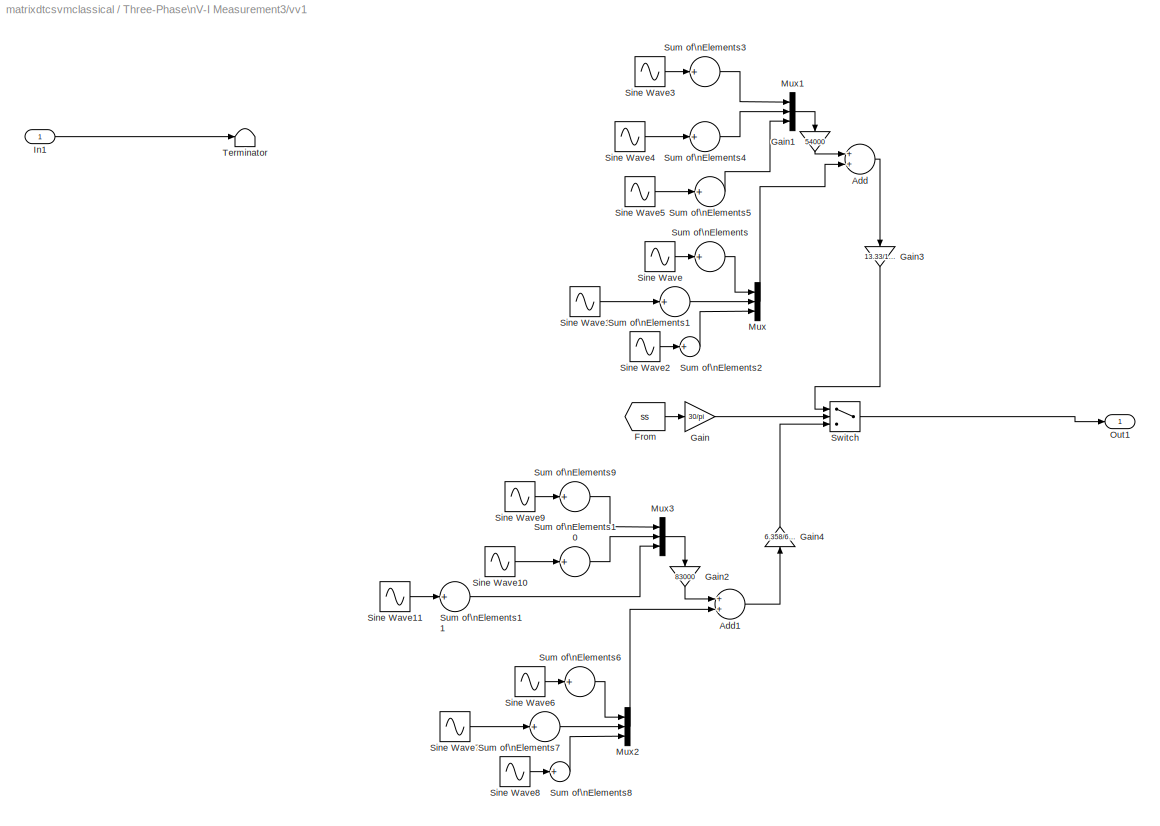
BLOCK [SubSystem] Three-Phase\nV-I Measurement3/vv1
  FunctionWithSeparateData = off
  MaskCallbackString = ||
  MaskDescription = Element-wise gain(y=K.*u) or matrix gain(y=K*u or y=u*K).
  MaskDisplay = plot([0 0 10 0],[0 10 5 0]);\ndisp('-K-')
  MaskEnableString = on,on,on
  MaskHideContents = off
  MaskIconFrame = off
  MaskIconOpaque = on
  MaskIconRotate = none
  MaskIconUnits = autoscale
  MaskPortRotate = default
  MaskPromptString = Gain|Muliplication|Sample time(-1 for inherited)
  MaskStyleString = edit,popup(Element-wise(K.*u)|Matrix(K*u)|Matrix(u*K)|Matrix(K*u(u vector)),edit
  MaskTabNameString = ,,
  MaskToolTipString = on,on,on
  MaskTunableValueString = on,on,on
  MaskType = Gain
  MaskValueString = 1|Element-wise(K.*u)|0
  MaskVarAliasString = ,,
  MaskVariables = x=@1;XX=@2;Ts=@3;
  MaskVisibilityString = on,on,on
  MinAlgLoopOccurrences = off
  Opaque = off
  Permissions = NoReadOrWrite
  Ports = [1, 1]
  PropExecContextOutsideSubsystem = off
  RTWSystemCode = Auto
  RequestExecContextInheritance = off
BLOCK [Sum] Three-Phase\nV-I Measurement3/vv1/Add
  InputSameDT = off
  OutDataType = fixdt(1, 16)
  OutDataTypeMode = Inherit via internal rule
  OutDataTypeStr = Inherit: Inherit via internal rule
  OutScaling = 2^-10
  Ports = [2, 1]
  SaturateOnIntegerOverflow = off
BLOCK [Sum] Three-Phase\nV-I Measurement3/vv1/Add1
  InputSameDT = off
  OutDataType = fixdt(1, 16)
  OutDataTypeMode = Inherit via internal rule
  OutDataTypeStr = Inherit: Inherit via internal rule
  OutScaling = 2^-10
  Ports = [2, 1]
  SaturateOnIntegerOverflow = off
BLOCK [From] Three-Phase\nV-I Measurement3/vv1/From
  GotoTag = ss
  TagVisibility = global
BLOCK [Gain] Three-Phase\nV-I Measurement3/vv1/Gain
  Gain = 30/pi
  OutDataType = fixdt(1, 16)
  OutDataTypeMode = Inherit via internal rule
  OutDataTypeStr = Inherit: Inherit via internal rule
  OutScaling = 2^0
  ParamDataTypeStr = Inherit: Inherit via internal rule
  ParameterDataType = fixdt(1, 16)
  ParameterDataTypeMode = Inherit via internal rule
  ParameterScaling = 2^0
  SaturateOnIntegerOverflow = off
BLOCK [Gain] Three-Phase\nV-I Measurement3/vv1/Gain1
  Gain = 54000
  OutDataType = fixdt(1, 16)
  OutDataTypeMode = Inherit via internal rule
  OutDataTypeStr = Inherit: Inherit via internal rule
  OutScaling = 2^0
  ParamDataTypeStr = Inherit: Inherit via internal rule
  ParameterDataType = fixdt(1, 16)
  ParameterDataTypeMode = Inherit via internal rule
  ParameterScaling = 2^0
  SaturateOnIntegerOverflow = off
BLOCK [Gain] Three-Phase\nV-I Measurement3/vv1/Gain2
  Gain = 83000
  OutDataType = fixdt(1, 16)
  OutDataTypeMode = Inherit via internal rule
  OutDataTypeStr = Inherit: Inherit via internal rule
  OutScaling = 2^0
  ParamDataTypeStr = Inherit: Inherit via internal rule
  ParameterDataType = fixdt(1, 16)
  ParameterDataTypeMode = Inherit via internal rule
  ParameterScaling = 2^0
  SaturateOnIntegerOverflow = off
BLOCK [Gain] Three-Phase\nV-I Measurement3/vv1/Gain3
  Gain = 13.33/13.39
  OutDataType = fixdt(1, 16)
  OutDataTypeMode = Inherit via internal rule
  OutDataTypeStr = Inherit: Inherit via internal rule
  OutScaling = 2^0
  ParamDataTypeStr = Inherit: Inherit via internal rule
  ParameterDataType = fixdt(1, 16)
  ParameterDataTypeMode = Inherit via internal rule
  ParameterScaling = 2^0
  SaturateOnIntegerOverflow = off
BLOCK [Gain] Three-Phase\nV-I Measurement3/vv1/Gain4
  Gain = 6.358/6.348
  OutDataType = fixdt(1, 16)
  OutDataTypeMode = Inherit via internal rule
  OutDataTypeStr = Inherit: Inherit via internal rule
  OutScaling = 2^0
  ParamDataTypeStr = Inherit: Inherit via internal rule
  ParameterDataType = fixdt(1, 16)
  ParameterDataTypeMode = Inherit via internal rule
  ParameterScaling = 2^0
  SaturateOnIntegerOverflow = off
BLOCK [Inport] Three-Phase\nV-I Measurement3/vv1/In1
  IconDisplay = Port number
  OutDataType = sfix(16)
  OutScaling = 2^0
BLOCK [Mux] Three-Phase\nV-I Measurement3/vv1/Mux
  DisplayOption = bar
  Inputs = 3
  Ports = [3, 1]
BLOCK [Mux] Three-Phase\nV-I Measurement3/vv1/Mux1
  DisplayOption = bar
  Inputs = 3
  Ports = [3, 1]
BLOCK [Mux] Three-Phase\nV-I Measurement3/vv1/Mux2
  DisplayOption = bar
  Inputs = 3
  Ports = [3, 1]
BLOCK [Mux] Three-Phase\nV-I Measurement3/vv1/Mux3
  DisplayOption = bar
  Inputs = 3
  Ports = [3, 1]
BLOCK [Outport] Three-Phase\nV-I Measurement3/vv1/Out1
  IconDisplay = Port number
  OutDataType = sfix(16)
  OutScaling = 2^0
BLOCK [Sin] Three-Phase\nV-I Measurement3/vv1/Sine Wave
  Amplitude = 13.39*[100 1]/100
  Bias = 0
  Frequency = 2*pi*35*[1 3]
  Offset = 0
  Phase = 0
  Ports = [0, 1]
  SampleTime = 50e-6
  Samples = 10
BLOCK [Sin] Three-Phase\nV-I Measurement3/vv1/Sine Wave1
  Amplitude = 13.39*[100 1]/100
  Bias = 0
  Frequency = 2*pi*35*[1 3]
  Offset = 0
  Phase = 2*pi/3
  Ports = [0, 1]
  SampleTime = 50e-6
  Samples = 10
BLOCK [Sin] Three-Phase\nV-I Measurement3/vv1/Sine Wave10
  Amplitude = 6.348*[9.87934734952496e-06	1.70432023056883e-06	2.57792250572013e-06	3.96799318633144e-06	7.39947695769380e-07	6.84096066962009e-06	4.02388332696162e-06	9.82835201393951e-06	4.02183985222485e-06	6.20671947199578e-06	1.54369805479272e-06	3.81345204444472e-06	1.61133971849361e-06	7.58112431327419e-06	8.71111121915389e-06	3.50776744885893e-06	6.85535708747537e-06	2.94148633767850e-06	5.3062930385688...<+8013ch>  <repeated x3 — deduplicated; at blocks: Sine Wave10, Sine Wave11, Sine Wave9>
  Bias = 0
  Frequency = 2*pi*17*[5:404]
  Offset = 0
  Phase = 2*pi/3
  Ports = [0, 1]
  SampleTime = 50e-6
  Samples = 10
BLOCK [Sin] Three-Phase\nV-I Measurement3/vv1/Sine Wave11
  Bias = 0
  Frequency = 2*pi*17*[5:404]
  Offset = 0
  Phase = -2*pi/3
  Ports = [0, 1]
  SampleTime = 50e-6
  Samples = 10
BLOCK [Sin] Three-Phase\nV-I Measurement3/vv1/Sine Wave2
  Amplitude = 13.39*[100 1]/100
  Bias = 0
  Frequency = 2*pi*35*[1 3]
  Offset = 0
  Phase = -2*pi/3
  Ports = [0, 1]
  SampleTime = 50e-6
  Samples = 10
BLOCK [Sin] Three-Phase\nV-I Measurement3/vv1/Sine Wave3
  Amplitude = 13.39*[5.96188675796392e-07	6.81971904149063e-06	4.24311375007417e-07	7.14454646006424e-07	5.21649842464284e-06	9.67300257808670e-07	8.18148553859625e-06	8.17547092079286e-06	7.22439592366842e-06	1.49865442477967e-06	6.59605252908307e-06	5.18594942510538e-06	9.72974554763863e-06	6.48991492712356e-06	8.00330575352402e-06	4.53797708726920e-06	4.32391503783462e-06	8.25313795402046e-06	8.3469814858914...<+3813ch>  <repeated x3 — deduplicated; at blocks: Sine Wave3, Sine Wave4, Sine Wave5>
  Bias = 0
  Frequency = 2*pi*35*[5:204]
  Offset = 0
  Phase = 0
  Ports = [0, 1]
  SampleTime = 50e-6
  Samples = 10
BLOCK [Sin] Three-Phase\nV-I Measurement3/vv1/Sine Wave4
  Bias = 0
  Frequency = 2*pi*35*[5:204]
  Offset = 0
  Phase = 2*pi/3
  Ports = [0, 1]
  SampleTime = 50e-6
  Samples = 10
BLOCK [Sin] Three-Phase\nV-I Measurement3/vv1/Sine Wave5
  Bias = 0
  Frequency = 2*pi*35*[5:204]
  Offset = 0
  Phase = -2*pi/3
  Ports = [0, 1]
  SampleTime = 50e-6
  Samples = 10
BLOCK [Sin] Three-Phase\nV-I Measurement3/vv1/Sine Wave6
  Amplitude = 6.358*[100 1]/100
  Bias = 0
  Frequency = 2*pi*17*[1 3]
  Offset = 0
  Phase = 0
  Ports = [0, 1]
  SampleTime = 50e-6
  Samples = 10
BLOCK [Sin] Three-Phase\nV-I Measurement3/vv1/Sine Wave7
  Amplitude = 6.358*[100 1]/100
  Bias = 0
  Frequency = 2*pi*17*[1 3]
  Offset = 0
  Phase = 2*pi/3
  Ports = [0, 1]
  SampleTime = 50e-6
  Samples = 10
BLOCK [Sin] Three-Phase\nV-I Measurement3/vv1/Sine Wave8
  Amplitude = 6.358*[100 1]/100
  Bias = 0
  Frequency = 2*pi*17*[1 3]
  Offset = 0
  Phase = -2*pi/3
  Ports = [0, 1]
  SampleTime = 50e-6
  Samples = 10
BLOCK [Sin] Three-Phase\nV-I Measurement3/vv1/Sine Wave9
  Bias = 0
  Frequency = 2*pi*17*[5:404]
  Offset = 0
  Phase = 0
  Ports = [0, 1]
  SampleTime = 50e-6
  Samples = 10
BLOCK [Sum] Three-Phase\nV-I Measurement3/vv1/Sum of\nElements
  InputSameDT = off
  Inputs = +
  OutDataType = fixdt(1, 16)
  OutDataTypeMode = Inherit via internal rule
  OutDataTypeStr = Inherit: Inherit via internal rule
  OutScaling = 2^-10
  Ports = [1, 1]
  SaturateOnIntegerOverflow = off
BLOCK [Sum] Three-Phase\nV-I Measurement3/vv1/Sum of\nElements1
  InputSameDT = off
  Inputs = +
  OutDataType = fixdt(1, 16)
  OutDataTypeMode = Inherit via internal rule
  OutDataTypeStr = Inherit: Inherit via internal rule
  OutScaling = 2^-10
  Ports = [1, 1]
  SaturateOnIntegerOverflow = off
BLOCK [Sum] Three-Phase\nV-I Measurement3/vv1/Sum of\nElements10
  InputSameDT = off
  Inputs = +
  OutDataType = fixdt(1, 16)
  OutDataTypeMode = Inherit via internal rule
  OutDataTypeStr = Inherit: Inherit via internal rule
  OutScaling = 2^-10
  Ports = [1, 1]
  SaturateOnIntegerOverflow = off
BLOCK [Sum] Three-Phase\nV-I Measurement3/vv1/Sum of\nElements11
  InputSameDT = off
  Inputs = +
  OutDataType = fixdt(1, 16)
  OutDataTypeMode = Inherit via internal rule
  OutDataTypeStr = Inherit: Inherit via internal rule
  OutScaling = 2^-10
  Ports = [1, 1]
  SaturateOnIntegerOverflow = off
BLOCK [Sum] Three-Phase\nV-I Measurement3/vv1/Sum of\nElements2
  InputSameDT = off
  Inputs = +
  OutDataType = fixdt(1, 16)
  OutDataTypeMode = Inherit via internal rule
  OutDataTypeStr = Inherit: Inherit via internal rule
  OutScaling = 2^-10
  Ports = [1, 1]
  SaturateOnIntegerOverflow = off
BLOCK [Sum] Three-Phase\nV-I Measurement3/vv1/Sum of\nElements3
  InputSameDT = off
  Inputs = +
  OutDataType = fixdt(1, 16)
  OutDataTypeMode = Inherit via internal rule
  OutDataTypeStr = Inherit: Inherit via internal rule
  OutScaling = 2^-10
  Ports = [1, 1]
  SaturateOnIntegerOverflow = off
BLOCK [Sum] Three-Phase\nV-I Measurement3/vv1/Sum of\nElements4
  InputSameDT = off
  Inputs = +
  OutDataType = fixdt(1, 16)
  OutDataTypeMode = Inherit via internal rule
  OutDataTypeStr = Inherit: Inherit via internal rule
  OutScaling = 2^-10
  Ports = [1, 1]
  SaturateOnIntegerOverflow = off
BLOCK [Sum] Three-Phase\nV-I Measurement3/vv1/Sum of\nElements5
  InputSameDT = off
  Inputs = +
  OutDataType = fixdt(1, 16)
  OutDataTypeMode = Inherit via internal rule
  OutDataTypeStr = Inherit: Inherit via internal rule
  OutScaling = 2^-10
  Ports = [1, 1]
  SaturateOnIntegerOverflow = off
BLOCK [Sum] Three-Phase\nV-I Measurement3/vv1/Sum of\nElements6
  InputSameDT = off
  Inputs = +
  OutDataType = fixdt(1, 16)
  OutDataTypeMode = Inherit via internal rule
  OutDataTypeStr = Inherit: Inherit via internal rule
  OutScaling = 2^-10
  Ports = [1, 1]
  SaturateOnIntegerOverflow = off
BLOCK [Sum] Three-Phase\nV-I Measurement3/vv1/Sum of\nElements7
  InputSameDT = off
  Inputs = +
  OutDataType = fixdt(1, 16)
  OutDataTypeMode = Inherit via internal rule
  OutDataTypeStr = Inherit: Inherit via internal rule
  OutScaling = 2^-10
  Ports = [1, 1]
  SaturateOnIntegerOverflow = off
BLOCK [Sum] Three-Phase\nV-I Measurement3/vv1/Sum of\nElements8
  InputSameDT = off
  Inputs = +
  OutDataType = fixdt(1, 16)
  OutDataTypeMode = Inherit via internal rule
  OutDataTypeStr = Inherit: Inherit via internal rule
  OutScaling = 2^-10
  Ports = [1, 1]
  SaturateOnIntegerOverflow = off
BLOCK [Sum] Three-Phase\nV-I Measurement3/vv1/Sum of\nElements9
  InputSameDT = off
  Inputs = +
  OutDataType = fixdt(1, 16)
  OutDataTypeMode = Inherit via internal rule
  OutDataTypeStr = Inherit: Inherit via internal rule
  OutScaling = 2^-10
  Ports = [1, 1]
  SaturateOnIntegerOverflow = off
BLOCK [Switch] Three-Phase\nV-I Measurement3/vv1/Switch
  InputSameDT = off
  OutDataType = fixdt(1, 16)
  OutScaling = 2^0
  SaturateOnIntegerOverflow = off
  Threshold = 750
BLOCK [Terminator] Three-Phase\nV-I Measurement3/vv1/Terminator
BLOCK [SubSystem] Torque
  DialogController = POWERSYS.PowerSysDialog
  FunctionWithSeparateData = off
  MaskCallbackString = |
  MaskDescription = Generates a signal changing at specified times.    \n                                                                            \nIf a signal value is not specified at time zero, the output is kept at 0 until the first specified transition time.
  MaskDisplay = plot( tv(2:end-1), opv(2:end-1) )
  MaskEnableString = on,on
  MaskHelp = web(psbhelp)
  MaskHideContents = off
  MaskIconFrame = on
  MaskIconOpaque = on
  MaskIconRotate = none
  MaskIconUnits = autoscale
  MaskInitialization = tt=t;\nsv=e;\nif isempty(tt) | isempty(sv)\n	% probably during the load process when under a masked block.\n	tt=0;\n	sv=1;\nend\n%\nif length(sv) ~= length(tt),\n   Erreur.message = 'The vectors specifying the time and amplitude pairs must have the same length.';\n   Erreur.identifier = 'SimPowerSystems:TimerBlock:ParameterError';\n   powericon('psberror',Erreur.message,Erreur.identifier,'NoUiwait...<+579ch>
  MaskPortRotate = default
  MaskPromptString = Time (s):|Amplitude:
  MaskSelfModifiable = on
  MaskStyleString = edit,edit
  MaskTabNameString = ,
  MaskToolTipString = on,on
  MaskTunableValueString = on,on
  MaskType = Timer
  MaskValueString = [0  0.05 ]|[25 25]
  MaskVarAliasString = ,
  MaskVariables = t=@1;e=@2;
  MaskVisibilityString = on,on
  MinAlgLoopOccurrences = off
  Opaque = off
  Ports = [0, 1]
  PropExecContextOutsideSubsystem = off
  RTWSystemCode = Auto
  RequestExecContextInheritance = off
BLOCK [Clock] Torque/Clock
  Decimation = 10
BLOCK [Derivative] Torque/Derivative
BLOCK [HitCross] Torque/Hit \nCrossing
  HitCrossingDirection = either
  Ports = [1]
  ShowOutputPort = off
BLOCK [Lookup] Torque/Look-Up\nTable
  InputValues = tv
  OutDataType = sfix(16)
  OutScaling = 2^0
  Table = opv
BLOCK [Outport] Torque/Out
  IconDisplay = Port number
  OutDataType = sfix(16)
  OutScaling = 2^0
BLOCK [SubSystem] Torque/Subsystem
  FunctionWithSeparateData = off
  MaskHideContents = off
  MinAlgLoopOccurrences = off
  Opaque = off
  Permissions = NoReadOrWrite
  Ports = [1]
  PropExecContextOutsideSubsystem = off
  RTWSystemCode = Auto
  RequestExecContextInheritance = off
BLOCK [Goto] Torque/Subsystem/Goto
  GotoTag = tt
  TagVisibility = global
BLOCK [Inport] Torque/Subsystem/In1
  IconDisplay = Port number
BLOCK [SubSystem] i.m
  AttributesFormatString = \\n
  CopyFcn = powericon('psbloadfunction',gcbh,'gotofrom','UpdateGotoTag');
  DialogController = POWERSYS.PowerSysDialog
  FunctionWithSeparateData = off
  MaskCallbackString = powericon('AsynchronousMachineCback',gcb,'SI');|%powericon('AsynchronousMachineCback',gcb);|%powericon('AsynchronousMachineCback',gcb);|%powericon('AsynchronousMachineCback',gcb);|||||||||||powericon('AsynchronousMachineCback',gcb,'SI');||||
  MaskDescription = Implements a three-phase asynchronous machine (wound rotor or squirrel cage) modeled in a selectable  dq reference frame (rotor, stator, or synchronous). Stator and rotor windings are connected in wye to an internal neutral point.
  MaskDisplay = plot(X.p1,Y.p1,X.p2,Y.p2,X.p3,Y.p3,X.p4,Y.p4,X.p5,Y.p5,X.p6,Y.p6,X.p7,Y.p7,X.p8,Y.p8,X.p9,Y.p9,X.p10,Y.p10)\ncolor('blue');\nplot(X.p11,Y.p11);\nplot(X.p12,Y.p12);
  MaskEnableString = on,on,on,on,on,on,on,on,on,on,on,on,on,on,on,off,on,on,on
  MaskHelp = web(psbhelp);
  MaskHideContents = off
  MaskIconFrame = off
  MaskIconOpaque = off
  MaskIconRotate = port
  MaskIconUnits = autoscale
  MaskInitialization = block = gcb;\n[Ts,SM,WantBlockChoice,X,Y] = powericon('AsynchronousMachineInit',block,TsPowergui,TsBlock,MechanicalLoad,RotorType,ReferenceFrame,NominalParameters,Stator,Rotor,Lm,Mechanical,PolePairs,InitialConditions,Units,SimulateSaturation,Saturation,IterativeModel);\npowericon('SetInternalModels','set',block,WantBlockChoice);
  MaskPortRotate = default
  MaskPromptString = Preset model:        |Mechanical input:  |Show detailed parameters |Rotor type:           |Reference frame:  |Nominal power, voltage (line-line), and frequency [ Pn(VA),Vn(Vrms),fn(Hz) ]:|Stator resistance and inductance[ Rs(ohm)  Lls(H) ]:|Rotor resistance and inductance [ Rr'(ohm)  Llr'(H) ]:|Mutual inductance Lm (H):|Inertia, friction factor and pole pairs [ J(kg.m^2)  F(N.m.s)  p() ]:|Pole pai...<+236ch>
  MaskSelfModifiable = on
  MaskStyleString = popup(No|01:  5 HP   460 V 60Hz 1750 RPM           |02:  10 HP  460 V 60Hz 1760 RPM          |03:  20 HP  460 V 60Hz 1760 RPM          |04:  50 HP  460 V 60Hz 1780 RPM          |05:  100 HP 460 V 60Hz 1780 RPM         |06:  150 HP 460 V 60Hz 1785 RPM         |07:  200 HP 460 V 60Hz 1785 RPM         |08:  5 HP   575 V 60Hz 1750 RPM           |09:  10 HP  575 V 60Hz 1760 RPM          |10:  20 HP  57...<+734ch>
  MaskTabNameString = Configuration,Configuration,Configuration,Configuration,Configuration,Parameters,Parameters,Parameters,Parameters,Parameters,Parameters,Parameters,Configuration,Advanced,Parameters,Parameters,Advanced,Advanced,Advanced
  MaskToolTipString = on,on,on,on,on,on,on,on,on,on,on,on,on,on,on,on,on,on,on
  MaskTunableValueString = off,off,off,off,off,off,off,off,off,off,off,off,off,off,off,off,on,on,off
  MaskType = Asynchronous Machine
  MaskValueString = No|Torque Tm|on|Squirrel-cage|Stationary|[3730 460 60]|[1.472  0.1906]|[1.125  0.1933]|0.1853|[0.02 0.005752 2]|2|[1 0 0 0 0 0 0 0]|SI|1492000|off|[14.03593122, 27.81365428, 53.79336849, 72.68890987, 97.98006896, 148.6815601, 215.7428561, 302.9841135, 428.7778367 ; 230, 322, 414, 460, 506, 552, 598, 644, 690]|0|-1|Forward Euler
  MaskVarAliasString = ,,,,,,,,,,,,,,,,,,
  MaskVariables = PresetModel=@1;MechanicalLoad=&2;ShowDetailedParameters=@3;RotorType=&4;ReferenceFrame=@5;NominalParameters=@6;Stator=@7;Rotor=@8;Lm=@9;Mechanical=@10;PolePairs=@11;InitialConditions=@12;Units=&13;LoadFlowParameters=@14;SimulateSaturation=@15;Saturation=@16;TsPowergui=@17;TsBlock=@18;IterativeModel=&19;
  MaskVisibilityString = on,on,off,on,on,on,on,on,on,on,off,on,on,off,on,on,off,on,on
  MinAlgLoopOccurrences = off
  Opaque = off
  Ports = [1, 1, 0, 0, 0, 3]
  PropExecContextOutsideSubsystem = off
  RTWSystemCode = Auto
  RequestExecContextInheritance = off
BLOCK [PMIOPort] i.m/A
  Port = 1
  Side = Left
BLOCK [PMComponent] i.m/ASM
  LConnTagsString = A|B|C
  LeftPortType = p1
  MaskIconFrame = on
  MaskIconOpaque = on
  MaskIconRotate = none
  MaskIconUnits = autoscale
  MaskPortRotate = default
  MaskType = InnerPowersysBlock
  PhysicalDomain = powersysdomain
  Ports = [0, 0, 0, 0, 0, 3, 3]
  RConnTagsString = a|b|c
  RightPortType = p1
BLOCK [PMIOPort] i.m/B
  Port = 2
  Side = Left
BLOCK [PMIOPort] i.m/C
  Port = 3
  Side = Left
BLOCK [SubSystem] i.m/Electrical model
  AttributesFormatString = %<BlockChoice>
  BlockChoice = Discrete
  FunctionWithSeparateData = off
  MaskHideContents = off
  MemberBlocks = Continuous,Discrete,Discrete Trapezoidal,Phasor
  MinAlgLoopOccurrences = off
  Opaque = off
  Ports = [2, 3]
  PropExecContextOutsideSubsystem = off
  RTWSystemCode = Auto
  RequestExecContextInheritance = off
  TemplateBlock = spsAsynchronousMachineModel/Electrical model
BLOCK [Reference] i.m/Electrical model/Discrete  REF=spsAsynchronousMachineModel/Discrete
  FunctionWithSeparateData = off
  Ports = [2, 3]
  RTWMemSecDataConstants = Inherit from model
  RTWMemSecDataInternal = Inherit from model
  RTWMemSecDataParameters = Inherit from model
  RTWMemSecFuncExecute = Inherit from model
  RTWMemSecFuncInitTerm = Inherit from model
  SM = SM
  ShowPortLabels = FromPortIcon
  SourceBlock = spsAsynchronousMachineModel/Discrete
  SourceType = Unknown
  SystemSampleTime = -1
  Ts = Ts
BLOCK [Outport] i.m/Electrical model/Te
  IconDisplay = Port number
  OutDataType = sfix(16)
  OutScaling = 2^0
  Port = 3
BLOCK [Outport] i.m/Electrical model/i
  IconDisplay = Port number
  OutDataType = sfix(16)
  OutScaling = 2^0
BLOCK [Inport] i.m/Electrical model/input
  IconDisplay = Port number
  OutDataType = sfix(16)
  OutScaling = 2^0
  Port = 2
BLOCK [Outport] i.m/Electrical model/m
  IconDisplay = Port number
  OutDataType = sfix(16)
  OutScaling = 2^0
  Port = 2
BLOCK [Inport] i.m/Electrical model/v
  IconDisplay = Port number
  OutDataType = sfix(16)
  OutScaling = 2^0
BLOCK [From] i.m/From
  CloseFcn = tagdialog Close
  GotoTag = tpd9d8c5ce_4f7f_46f0_affb_187bee166527
  TagVisibility = global
BLOCK [Goto] i.m/Goto
  GotoTag = tp6773f72e_40d2_4340_b45e_550bf9f2fc25
  TagVisibility = global
BLOCK [SubSystem] i.m/Measurement list
  FunctionWithSeparateData = off
  MaskHideContents = off
  MaskIconFrame = on
  MaskIconOpaque = on
  MaskIconRotate = none
  MaskIconUnits = autoscale
  MaskPortRotate = default
  MinAlgLoopOccurrences = off
  Opaque = off
  Permissions = NoReadOrWrite
  Ports = [2, 1]
  PropExecContextOutsideSubsystem = off
  RTWSystemCode = Auto
  RequestExecContextInheritance = off
BLOCK [BusCreator] i.m/Measurement list/Bus\nCreator1
  DisplayOption = bar
  Inputs = 3
  Ports = [3, 1]
BLOCK [BusCreator] i.m/Measurement list/Bus\nCreator2
  DisplayOption = bar
  Inputs = 9
  Ports = [9, 1]
BLOCK [BusCreator] i.m/Measurement list/Bus\nCreator3
  DisplayOption = bar
  Inputs = 3
  Ports = [3, 1]
BLOCK [BusCreator] i.m/Measurement list/Bus\nCreator4
  DisplayOption = bar
  Inputs = 9
  Ports = [9, 1]
BLOCK [Demux] i.m/Measurement list/Demux
  DisplayOption = bar
  Outputs = [1,1,1,1,1,1,1,1,1,1,1,1,1,1,1,1,1,1]
  Ports = [1, 18]
BLOCK [Demux] i.m/Measurement list/Demux1
  DisplayOption = bar
  Outputs = [1,1,1]
  Ports = [1, 3]
BLOCK [Outport] i.m/Measurement list/Measurements
  IconDisplay = Port number
  OutDataType = sfix(16)
  OutScaling = 2^0
BLOCK [Inport] i.m/Measurement list/electric
  IconDisplay = Port number
  OutDataType = sfix(16)
  OutScaling = 2^0
BLOCK [Inport] i.m/Measurement list/mechanic
  IconDisplay = Port number
  OutDataType = sfix(16)
  OutScaling = 2^0
  Port = 2
BLOCK [SubSystem] i.m/Measurement list/vv
  FunctionWithSeparateData = off
  MaskCallbackString = ||
  MaskDescription = Element-wise gain(y=K.*u) or matrix gain(y=K*u or y=u*K).
  MaskDisplay = plot([0 0 10 0],[0 10 5 0]);\ndisp('-K-')
  MaskEnableString = on,on,on
  MaskHideContents = off
  MaskIconFrame = off
  MaskIconOpaque = on
  MaskIconRotate = none
  MaskIconUnits = autoscale
  MaskPortRotate = default
  MaskPromptString = Gain|Muliplication|Sample time(-1 for inherited)
  MaskStyleString = edit,popup(Element-wise(K.*u)|Matrix(K*u)|Matrix(u*K)|Matrix(K*u(u vector)),edit
  MaskTabNameString = ,,
  MaskToolTipString = on,on,on
  MaskTunableValueString = on,on,on
  MaskType = Gain
  MaskValueString = 1|Element-wise(K.*u)|0
  MaskVarAliasString = ,,
  MaskVariables = x=@1;XX=@2;Ts=@3;
  MaskVisibilityString = on,on,on
  MinAlgLoopOccurrences = off
  Opaque = off
  Permissions = NoReadOrWrite
  Ports = [1, 1]
  PropExecContextOutsideSubsystem = off
  RTWSystemCode = Auto
  RequestExecContextInheritance = off
BLOCK [From] i.m/Measurement list/vv/From
  GotoTag = ss
  TagVisibility = global
BLOCK [Goto] i.m/Measurement list/vv/Goto
  GotoTag = ght
  TagVisibility = global
BLOCK [Inport] i.m/Measurement list/vv/In1
  IconDisplay = Port number
  OutDataType = sfix(16)
  OutScaling = 2^0
BLOCK [Reference] i.m/Measurement list/vv/Mean Value  REF=powerlib_extras/Measurements/Mean Value
  DialogController = POWERSYS.PowerSysDialog
  FunctionWithSeparateData = off
  Period = 1/60
  Ports = [1, 1]
  RTWMemSecDataConstants = Inherit from model
  RTWMemSecDataInternal = Inherit from model
  RTWMemSecDataParameters = Inherit from model
  RTWMemSecFuncExecute = Inherit from model
  RTWMemSecFuncInitTerm = Inherit from model
  ShowPortLabels = FromPortIcon
  SourceBlock = powerlib_extras/Measurements/Mean Value
  SourceType = Mean value
  SystemSampleTime = -1
BLOCK [Outport] i.m/Measurement list/vv/Out1
  IconDisplay = Port number
  OutDataType = sfix(16)
  OutScaling = 2^0
BLOCK [Terminator] i.m/Measurement list/vv/Terminator
BLOCK [SubSystem] i.m/Measurement list/vv1
  FunctionWithSeparateData = off
  MaskCallbackString = ||
  MaskDescription = Element-wise gain(y=K.*u) or matrix gain(y=K*u or y=u*K).
  MaskDisplay = plot([0 0 10 0],[0 10 5 0]);\ndisp('-K-')
  MaskEnableString = on,on,on
  MaskHideContents = off
  MaskIconFrame = off
  MaskIconOpaque = on
  MaskIconRotate = none
  MaskIconUnits = autoscale
  MaskPortRotate = default
  MaskPromptString = Gain|Muliplication|Sample time(-1 for inherited)
  MaskStyleString = edit,popup(Element-wise(K.*u)|Matrix(K*u)|Matrix(u*K)|Matrix(K*u(u vector)),edit
  MaskTabNameString = ,,
  MaskToolTipString = on,on,on
  MaskTunableValueString = on,on,on
  MaskType = Gain
  MaskValueString = 1|Element-wise(K.*u)|0
  MaskVarAliasString = ,,
  MaskVariables = x=@1;XX=@2;Ts=@3;
  MaskVisibilityString = on,on,on
  MinAlgLoopOccurrences = off
  Opaque = off
  Permissions = NoReadOrWrite
  Ports = [1, 1]
  PropExecContextOutsideSubsystem = off
  RTWSystemCode = Auto
  RequestExecContextInheritance = off
BLOCK [Sum] i.m/Measurement list/vv1/Add
  InputSameDT = off
  Inputs = +-
  OutDataType = fixdt(1, 16)
  OutDataTypeMode = Inherit via internal rule
  OutDataTypeStr = Inherit: Inherit via internal rule
  OutScaling = 2^-10
  Ports = [2, 1]
  SaturateOnIntegerOverflow = off
BLOCK [Sum] i.m/Measurement list/vv1/Add1
  InputSameDT = off
  Inputs = 2
  OutDataType = fixdt(1, 16)
  OutDataTypeMode = Inherit via internal rule
  OutDataTypeStr = Inherit: Inherit via internal rule
  OutScaling = 2^-10
  Ports = [2, 1]
  SaturateOnIntegerOverflow = off
BLOCK [Sum] i.m/Measurement list/vv1/Add2
  InputSameDT = off
  Inputs = 2
  OutDataType = fixdt(1, 16)
  OutDataTypeMode = Inherit via internal rule
  OutDataTypeStr = Inherit: Inherit via internal rule
  OutScaling = 2^-10
  Ports = [2, 1]
  SaturateOnIntegerOverflow = off
BLOCK [From] i.m/Measurement list/vv1/From
  GotoTag = ght
  TagVisibility = global
BLOCK [From] i.m/Measurement list/vv1/From1
  GotoTag = tt
  TagVisibility = global
BLOCK [Gain] i.m/Measurement list/vv1/Gain
  Gain = 5
  OutDataType = fixdt(1, 16)
  OutDataTypeMode = Inherit via internal rule
  OutDataTypeStr = Inherit: Inherit via internal rule
  OutScaling = 2^0
  ParamDataTypeStr = Inherit: Inherit via internal rule
  ParameterDataType = fixdt(1, 16)
  ParameterDataTypeMode = Inherit via internal rule
  ParameterScaling = 2^0
  SaturateOnIntegerOverflow = off
BLOCK [Inport] i.m/Measurement list/vv1/In1
  IconDisplay = Port number
  OutDataType = sfix(16)
  OutScaling = 2^0
BLOCK [Outport] i.m/Measurement list/vv1/Out1
  IconDisplay = Port number
  OutDataType = sfix(16)
  OutScaling = 2^0
BLOCK [Product] i.m/Measurement list/vv1/Product
  InputSameDT = off
  OutDataType = fixdt(1, 16)
  OutDataTypeMode = Inherit via internal rule
  OutDataTypeStr = Inherit: Inherit via internal rule
  OutScaling = 2^0
  Ports = [2, 1]
  SaturateOnIntegerOverflow = off
BLOCK [Reference] i.m/Measurement list/vv1/Repeating\nSequence  REF=simulink/Sources/Repeating\nSequence
  FunctionWithSeparateData = off
  Ports = [0, 1]
  RTWMemSecDataConstants = Inherit from model
  RTWMemSecDataInternal = Inherit from model
  RTWMemSecDataParameters = Inherit from model
  RTWMemSecFuncExecute = Inherit from model
  RTWMemSecFuncInitTerm = Inherit from model
  ShowPortLabels = FromPortIcon
  SourceBlock = simulink/Sources/Repeating\nSequence
  SourceType = Repeating table
  SystemSampleTime = -1
  rep_seq_t = [0 0.001 0.002 0.003 0.004]
  rep_seq_y = [0.5 0.5 0.8 0.5 0.5]
BLOCK [Terminator] i.m/Measurement list/vv1/Terminator
BLOCK [UniformRandomNumber] i.m/Measurement list/vv1/Uniform Random\nNumber
  Maximum = 1.5
  Minimum = -1.5
  SampleTime = 10e-6
BLOCK [UnitDelay] i.m/Measurement list/vv1/Unit Delay
  SampleTime = 0.0001
BLOCK [SubSystem] i.m/Mechanical model
  AttributesFormatString = %<BlockChoice>
  BlockChoice = Discrete Tm input
  FunctionWithSeparateData = off
  MaskHideContents = off
  MemberBlocks = Continuous Tm input,Continuous w input,Discrete Tm input,Discrete Tm input Trapezoidal,Discrete w input,Phasor Tm input,Phasor w input
  MinAlgLoopOccurrences = off
  Opaque = off
  Ports = [2, 2]
  PropExecContextOutsideSubsystem = off
  RTWSystemCode = Auto
  RequestExecContextInheritance = off
  TemplateBlock = spsAsynchronousMachineModel/Mechanical model
BLOCK [Reference] i.m/Mechanical model/Discrete Tm input  REF=spsAsynchronousMachineModel/Discrete Tm input
  FunctionWithSeparateData = off
  Ports = [2, 2]
  RTWMemSecDataConstants = Inherit from model
  RTWMemSecDataInternal = Inherit from model
  RTWMemSecDataParameters = Inherit from model
  RTWMemSecFuncExecute = Inherit from model
  RTWMemSecFuncInitTerm = Inherit from model
  SM = SM
  ShowPortLabels = FromPortIcon
  SourceBlock = spsAsynchronousMachineModel/Discrete Tm input
  SourceType = Unknown
  SystemSampleTime = -1
  Ts = Ts
BLOCK [Inport] i.m/Mechanical model/Te
  IconDisplay = Port number
  OutDataType = sfix(16)
  OutScaling = 2^0
  Port = 2
BLOCK [Inport] i.m/Mechanical model/input
  IconDisplay = Port number
  OutDataType = sfix(16)
  OutScaling = 2^0
BLOCK [Outport] i.m/Mechanical model/m
  IconDisplay = Port number
  OutDataType = sfix(16)
  OutScaling = 2^0
BLOCK [Outport] i.m/Mechanical model/thr,wr
  IconDisplay = Port number
  OutDataType = sfix(16)
  OutScaling = 2^0
  Port = 2
BLOCK [Inport] i.m/Tm
  IconDisplay = Port number
  OutDataType = sfix(16)
  OutScaling = 2^0
BLOCK [Outport] i.m/m
  IconDisplay = Port number
  InitialOutput = 0
  OutDataType = sfix(16)
  OutScaling = 2^0
BLOCK [SubSystem] measurement
  FunctionWithSeparateData = off
  MaskHideContents = off
  MinAlgLoopOccurrences = off
  Opaque = off
  Ports = []
  PropExecContextOutsideSubsystem = off
  RTWSystemCode = Auto
  RequestExecContextInheritance = off
BLOCK [From] measurement/From2
  CloseFcn = tagdialog Close
  GotoTag = speed
  TagVisibility = global
BLOCK [From] measurement/From8
  CloseFcn = tagdialog Close
  GotoTag = Te
  TagVisibility = global
BLOCK [Scope] measurement/Load1
  DataFormat = StructureWithTime
  Floating = off
  LimitDataPoints = off
  NumInputPorts = 1
  Ports = [1]
  SampleTime = 0
  SaveName = vl6
  TimeRange = 0.08333333333333333
  YMax = 26.2
  YMin = 23.8
  ZoomMode = xonly
BLOCK [Scope] measurement/Load2
  DataFormat = StructureWithTime
  Floating = off
  LimitDataPoints = off
  NumInputPorts = 1
  Ports = [1]
  SampleTime = 0
  SaveName = vl1
  TimeRange = 0.08333333333333333
  YMax = 525
  YMin = 150
  ZoomMode = xonly
BLOCK [Reference] powergui  REF=powerlib/powergui
  DisableRonSwitches = off
  DisableSnubberDevices = off
  DisableVfSwitches = off
  DisplayEquations = off
  DisplayStyle = 1
  EnableUseOfTLC = off
  Frange = [0:2:500]
  FreqAxis = off
  FunctionMessages = off
  FunctionWithSeparateData = off
  HookPort = off
  Interpol = off
  MaxFrequency = 5000
  Ports = []
  RTWMemSecDataConstants = Inherit from model
  RTWMemSecDataInternal = Inherit from model
  RTWMemSecDataParameters = Inherit from model
  RTWMemSecFuncExecute = Inherit from model
  RTWMemSecFuncInitTerm = Inherit from model
  RestoreLinks = no
  RmsSteady = 1
  SPID = off
  SampleTime = 50e-6
  ShowGrid = off
  ShowPortLabels = FromPortIcon
  SourceBlock = powerlib/powergui
  SourceType = PSB option menu block
  StartTime = 0.04
  SwTol = 0
  SystemSampleTime = -1
  Ts = 0
  UserData = DataTag0
  UserDataPersistent = on
  Xlog = on
  Ylog = off
  ZoomFFT = off
  cycles = 1
  display = off
  echomessages = off
  frequency = 60
  frequencyindice = 60
  frequencyindicesteady = 1
  fundamental = 17
  methode = off
  save = off
  structure = opcurrent
  variable = ZData
  x0status = blocks
BLOCK [SubSystem] vector contro of IM drive1
  FunctionWithSeparateData = off
  MaskHideContents = off
  MinAlgLoopOccurrences = off
  Opaque = off
  Ports = [1]
  PropExecContextOutsideSubsystem = off
  RTWSystemCode = Auto
  RequestExecContextInheritance = off
BLOCK [BusSelector] vector contro of IM drive1/Bus\nSelector
  OutputSignals = Stator measurements.Stator current is_a (A),Stator measurements.Stator current is_b (A),Stator measurements.Stator current is_c (A),Rotor measurements.Rotor current ir_a (A),Rotor measurements.Rotor current ir_b (A),Rotor measurements.Rotor current ir_c (A)
  Ports = [1, 6]
BLOCK [BusSelector] vector contro of IM drive1/Bus\nSelector1
  OutputSignals = Mechanical.Rotor speed (wm),Mechanical.Electromagnetic torque Te (N*m)
  Ports = [1, 2]
BLOCK [BusSelector] vector contro of IM drive1/Bus\nSelector2
  OutputSignals = Rotor measurements.Rotor flux phir_d (V s),Rotor measurements.Rotor flux phir_q (V s),Stator measurements.Stator current is_d (A),Stator measurements.Stator current  is_q (A),Stator measurements.Stator flux phis_d (V s),Stator measurements.Stator flux phis_q (V s)
  Ports = [1, 6]
BLOCK [Gain] vector contro of IM drive1/Gain
  Gain = 9.54929659643
  OutDataType = sfix(16)
  OutDataTypeMode = Inherit via internal rule
  OutDataTypeStr = Inherit: Inherit via internal rule
  OutScaling = 2^0
  ParamDataTypeStr = Inherit: Inherit via internal rule
  ParameterDataType = sfix(16)
  ParameterDataTypeMode = Inherit via internal rule
  ParameterScaling = 2^0
  SampleTime = 50e-6
  SaturateOnIntegerOverflow = off
BLOCK [Goto] vector contro of IM drive1/Goto
  GotoTag = speed
  TagVisibility = global
BLOCK [Goto] vector contro of IM drive1/Goto1
  GotoTag = phirDQ
  TagVisibility = global
BLOCK [Goto] vector contro of IM drive1/Goto2
  GotoTag = Isdq
  TagVisibility = global
BLOCK [Goto] vector contro of IM drive1/Goto3
  GotoTag = Te
  TagVisibility = global
BLOCK [Goto] vector contro of IM drive1/Goto4
  GotoTag = Phisdq
  TagVisibility = global
BLOCK [Goto] vector contro of IM drive1/Goto5
  GotoTag = Istator
  TagVisibility = global
BLOCK [Goto] vector contro of IM drive1/Goto6
  GotoTag = Irotor
  TagVisibility = global
BLOCK [Goto] vector contro of IM drive1/Goto7
  GotoTag = Phisd
  TagVisibility = global
BLOCK [Goto] vector contro of IM drive1/Goto8
  GotoTag = Phisqq
  TagVisibility = global
BLOCK [Mux] vector contro of IM drive1/Mux
  DisplayOption = bar
  Inputs = 3
  Ports = [3, 1]
BLOCK [Mux] vector contro of IM drive1/Mux1
  DisplayOption = bar
  Inputs = 3
  Ports = [3, 1]
BLOCK [Mux] vector contro of IM drive1/Mux2
  DisplayOption = bar
  Inputs = 2
  Ports = [2, 1]
BLOCK [Mux] vector contro of IM drive1/Mux3
  DisplayOption = bar
  Inputs = 2
  Ports = [2, 1]
BLOCK [Mux] vector contro of IM drive1/Mux4
  DisplayOption = bar
  Inputs = 2
  Ports = [2, 1]
BLOCK [Inport] vector contro of IM drive1/m
  IconDisplay = Port number
  OutDataType = sfix(16)
  OutScaling = 2^0
ANNOTATION DTC SVM/DTC/table/2//3: A
ANNOTATION DTC SVM/DTC/table/2//3: B
ANNOTATION DTC SVM/DTC/table/2//3: C
ANNOTATION DTC SVM/DTC/table/2//3: a
ANNOTATION DTC SVM/DTC/table/linevoltage/CONTROLLER: L\nI\nN\nE
ANNOTATION DTC SVM/DTC/table/linevoltage/CONTROLLER: R\nE\nF\nE\nR\nE\nN\nC\nE
LINE DTC SVM/DTC/Hold1:1 -> DTC SVM/DTC/table:3
LINE DTC SVM/DTC/Hold2:1 -> DTC SVM/DTC/table:4
LINE DTC SVM/DTC/PHIs:1 -> DTC SVM/DTC/Hold2:1
LINE DTC SVM/DTC/T:1 -> DTC SVM/DTC/table:2
LINE DTC SVM/DTC/Tf:1 -> DTC SVM/DTC/Hold1:1
LINE DTC SVM/DTC/flux:1 -> DTC SVM/DTC/table:1
LINE DTC SVM/DTC/table/ T f:1 -> DTC SVM/DTC/table/Sum3:2
LINE DTC SVM/DTC/table/ Te:1 -> DTC SVM/DTC/table/Sum3:1
LINE DTC SVM/DTC/table/10:1 -> DTC SVM/DTC/table/Multiport\nSwitch:11
LINE DTC SVM/DTC/table/11:1 -> DTC SVM/DTC/table/Multiport\nSwitch:12
LINE DTC SVM/DTC/table/12:1 -> DTC SVM/DTC/table/Multiport\nSwitch:13
LINE DTC SVM/DTC/table/13:1 -> DTC SVM/DTC/table/Multiport\nSwitch:14
LINE DTC SVM/DTC/table/14:1 -> DTC SVM/DTC/table/Multiport\nSwitch:15
LINE DTC SVM/DTC/table/15:1 -> DTC SVM/DTC/table/Multiport\nSwitch:16
LINE DTC SVM/DTC/table/16:1 -> DTC SVM/DTC/table/Multiport\nSwitch:17
LINE DTC SVM/DTC/table/17:1 -> DTC SVM/DTC/table/Multiport\nSwitch:18
LINE DTC SVM/DTC/table/18:1 -> DTC SVM/DTC/table/Multiport\nSwitch:19
LINE DTC SVM/DTC/table/1:1 -> DTC SVM/DTC/table/Multiport\nSwitch:2
LINE DTC SVM/DTC/table/2//3/2:1 -> DTC SVM/DTC/table/2//3/Demux:1
LINE DTC SVM/DTC/table/2//3/Demux:1 -> DTC SVM/DTC/table/2//3/Gain:1
LINE DTC SVM/DTC/table/2//3/Demux:2 -> DTC SVM/DTC/table/2//3/Gain1:1
LINE DTC SVM/DTC/table/2//3/Gain1:1 -> DTC SVM/DTC/table/2//3/Gain3:1
NET DTC SVM/DTC/table/2//3/Gain2:1 -> DTC SVM/DTC/table/2//3/Sum3:1, DTC SVM/DTC/table/2//3/Sum4:1
NET DTC SVM/DTC/table/2//3/Gain3:1 -> DTC SVM/DTC/table/2//3/Sum3:2, DTC SVM/DTC/table/2//3/Sum4:2
NET DTC SVM/DTC/table/2//3/Gain:1 -> DTC SVM/DTC/table/2//3/Gain2:1, DTC SVM/DTC/table/2//3/Mux2:1
LINE DTC SVM/DTC/table/2//3/Mux2:1 -> DTC SVM/DTC/table/2//3/3:1
LINE DTC SVM/DTC/table/2//3/Sum3:1 -> DTC SVM/DTC/table/2//3/Mux2:2
LINE DTC SVM/DTC/table/2//3/Sum4:1 -> DTC SVM/DTC/table/2//3/Mux2:3
LINE DTC SVM/DTC/table/2//3:1 -> DTC SVM/DTC/table/Subsystem:1
LINE DTC SVM/DTC/table/2:1 -> DTC SVM/DTC/table/Multiport\nSwitch:3
LINE DTC SVM/DTC/table/3:1 -> DTC SVM/DTC/table/Multiport\nSwitch:4
LINE DTC SVM/DTC/table/4:1 -> DTC SVM/DTC/table/Multiport\nSwitch:5
LINE DTC SVM/DTC/table/5:1 -> DTC SVM/DTC/table/Multiport\nSwitch:6
LINE DTC SVM/DTC/table/6:1 -> DTC SVM/DTC/table/Multiport\nSwitch:7
LINE DTC SVM/DTC/table/7:1 -> DTC SVM/DTC/table/Multiport\nSwitch:8
LINE DTC SVM/DTC/table/8:1 -> DTC SVM/DTC/table/Multiport\nSwitch:9
LINE DTC SVM/DTC/table/9:1 -> DTC SVM/DTC/table/Multiport\nSwitch:10
LINE DTC SVM/DTC/table/Fcn:1 -> DTC SVM/DTC/table/Sum:1
LINE DTC SVM/DTC/table/Multiport\nSwitch:1 -> DTC SVM/DTC/table/linevoltage:1
NET DTC SVM/DTC/table/PHIs:1 -> DTC SVM/DTC/table/2//3:1, DTC SVM/DTC/table/Fcn:1
LINE DTC SVM/DTC/table/Saturation:1 -> DTC SVM/DTC/table/Multiport\nSwitch:1
LINE DTC SVM/DTC/table/Subsystem/ 1:1 -> DTC SVM/DTC/table/Subsystem/Data Type Conversion1:1
LINE DTC SVM/DTC/table/Subsystem/ 2:1 -> DTC SVM/DTC/table/Subsystem/Data Type Conversion2:1
LINE DTC SVM/DTC/table/Subsystem/ :1 -> DTC SVM/DTC/table/Subsystem/Data Type Conversion:1
NET DTC SVM/DTC/table/Subsystem/+1:1 -> DTC SVM/DTC/table/Subsystem/Rel 1:2, DTC SVM/DTC/table/Subsystem/Rel 2:2, DTC SVM/DTC/table/Subsystem/Rel 3:2
LINE DTC SVM/DTC/table/Subsystem/Add:1 -> DTC SVM/DTC/table/Subsystem/Data Type Conversion3:1
LINE DTC SVM/DTC/table/Subsystem/Data Type Conversion1:1 -> DTC SVM/DTC/table/Subsystem/Gain1:1
LINE DTC SVM/DTC/table/Subsystem/Data Type Conversion2:1 -> DTC SVM/DTC/table/Subsystem/Gain:1
LINE DTC SVM/DTC/table/Subsystem/Data Type Conversion3:1 -> DTC SVM/DTC/table/Subsystem/Mux:1
LINE DTC SVM/DTC/table/Subsystem/Data Type Conversion:1 -> DTC SVM/DTC/table/Subsystem/Gain2:1
LINE DTC SVM/DTC/table/Subsystem/Demux2:1 -> DTC SVM/DTC/table/Subsystem/Rel 1:1
LINE DTC SVM/DTC/table/Subsystem/Demux2:2 -> DTC SVM/DTC/table/Subsystem/Rel 2:1
LINE DTC SVM/DTC/table/Subsystem/Demux2:3 -> DTC SVM/DTC/table/Subsystem/Rel 3:1
LINE DTC SVM/DTC/table/Subsystem/Gain1:1 -> DTC SVM/DTC/table/Subsystem/Add:2
LINE DTC SVM/DTC/table/Subsystem/Gain2:1 -> DTC SVM/DTC/table/Subsystem/Add:1
LINE DTC SVM/DTC/table/Subsystem/Gain:1 -> DTC SVM/DTC/table/Subsystem/Add:3
LINE DTC SVM/DTC/table/Subsystem/Mux:1 -> DTC SVM/DTC/table/Subsystem/TAB:1
LINE DTC SVM/DTC/table/Subsystem/PHIs:1 -> DTC SVM/DTC/table/Subsystem/Demux2:1
LINE DTC SVM/DTC/table/Subsystem/Rel 1:1 -> DTC SVM/DTC/table/Subsystem/ :1
LINE DTC SVM/DTC/table/Subsystem/Rel 2:1 -> DTC SVM/DTC/table/Subsystem/ 1:1
LINE DTC SVM/DTC/table/Subsystem/Rel 3:1 -> DTC SVM/DTC/table/Subsystem/ 2:1
LINE DTC SVM/DTC/table/Subsystem/e-PH:1 -> DTC SVM/DTC/table/Subsystem/Mux:2
LINE DTC SVM/DTC/table/Subsystem/e-T:1 -> DTC SVM/DTC/table/Subsystem/Mux:3
LINE DTC SVM/DTC/table/Subsystem1/Add:1 -> DTC SVM/DTC/table/Subsystem1/Data Type Conversion:1
LINE DTC SVM/DTC/table/Subsystem1/Data Type Conversion:1 -> DTC SVM/DTC/table/Subsystem1/Out1:1
NET DTC SVM/DTC/table/Subsystem1/In1:1 -> DTC SVM/DTC/table/Subsystem1/Subsystem1:1, DTC SVM/DTC/table/Subsystem1/Subsystem2:1, DTC SVM/DTC/table/Subsystem1/Subsystem3:1, DTC SVM/DTC/table/Subsystem1/Subsystem4:1, DTC SVM/DTC/table/Subsystem1/Subsystem5:1, DTC SVM/DTC/table/Subsystem1/Subsystem6:1, DTC SVM/DTC/table/Subsystem1/Subsystem7:1, DTC SVM/DTC/table/Subsystem1/Subsystem:1
LINE DTC SVM/DTC/table/Subsystem1/Subsystem/Compare\nTo Constant10:1 -> DTC SVM/DTC/table/Subsystem1/Subsystem/Logical\nOperator3:2
LINE DTC SVM/DTC/table/Subsystem1/Subsystem/Compare\nTo Constant11:1 -> DTC SVM/DTC/table/Subsystem1/Subsystem/Logical\nOperator3:3
LINE DTC SVM/DTC/table/Subsystem1/Subsystem/Compare\nTo Constant1:1 -> DTC SVM/DTC/table/Subsystem1/Subsystem/Logical\nOperator:2
LINE DTC SVM/DTC/table/Subsystem1/Subsystem/Compare\nTo Constant2:1 -> DTC SVM/DTC/table/Subsystem1/Subsystem/Logical\nOperator:3
LINE DTC SVM/DTC/table/Subsystem1/Subsystem/Compare\nTo Constant3:1 -> DTC SVM/DTC/table/Subsystem1/Subsystem/Logical\nOperator1:1
LINE DTC SVM/DTC/table/Subsystem1/Subsystem/Compare\nTo Constant4:1 -> DTC SVM/DTC/table/Subsystem1/Subsystem/Logical\nOperator1:2
LINE DTC SVM/DTC/table/Subsystem1/Subsystem/Compare\nTo Constant5:1 -> DTC SVM/DTC/table/Subsystem1/Subsystem/Logical\nOperator1:3
LINE DTC SVM/DTC/table/Subsystem1/Subsystem/Compare\nTo Constant6:1 -> DTC SVM/DTC/table/Subsystem1/Subsystem/Logical\nOperator2:1
LINE DTC SVM/DTC/table/Subsystem1/Subsystem/Compare\nTo Constant7:1 -> DTC SVM/DTC/table/Subsystem1/Subsystem/Logical\nOperator2:2
LINE DTC SVM/DTC/table/Subsystem1/Subsystem/Compare\nTo Constant8:1 -> DTC SVM/DTC/table/Subsystem1/Subsystem/Logical\nOperator2:3
LINE DTC SVM/DTC/table/Subsystem1/Subsystem/Compare\nTo Constant9:1 -> DTC SVM/DTC/table/Subsystem1/Subsystem/Logical\nOperator3:1
LINE DTC SVM/DTC/table/Subsystem1/Subsystem/Compare\nTo Constant:1 -> DTC SVM/DTC/table/Subsystem1/Subsystem/Logical\nOperator:1
LINE DTC SVM/DTC/table/Subsystem1/Subsystem/Data Type Conversion:1 -> DTC SVM/DTC/table/Subsystem1/Subsystem/Gain:1
LINE DTC SVM/DTC/table/Subsystem1/Subsystem/Demux1:1 -> DTC SVM/DTC/table/Subsystem1/Subsystem/Compare\nTo Constant3:1
LINE DTC SVM/DTC/table/Subsystem1/Subsystem/Demux1:2 -> DTC SVM/DTC/table/Subsystem1/Subsystem/Compare\nTo Constant4:1
LINE DTC SVM/DTC/table/Subsystem1/Subsystem/Demux1:3 -> DTC SVM/DTC/table/Subsystem1/Subsystem/Compare\nTo Constant5:1
LINE DTC SVM/DTC/table/Subsystem1/Subsystem/Demux2:1 -> DTC SVM/DTC/table/Subsystem1/Subsystem/Compare\nTo Constant6:1
LINE DTC SVM/DTC/table/Subsystem1/Subsystem/Demux2:2 -> DTC SVM/DTC/table/Subsystem1/Subsystem/Compare\nTo Constant7:1
LINE DTC SVM/DTC/table/Subsystem1/Subsystem/Demux2:3 -> DTC SVM/DTC/table/Subsystem1/Subsystem/Compare\nTo Constant8:1
LINE DTC SVM/DTC/table/Subsystem1/Subsystem/Demux3:1 -> DTC SVM/DTC/table/Subsystem1/Subsystem/Compare\nTo Constant9:1
LINE DTC SVM/DTC/table/Subsystem1/Subsystem/Demux3:2 -> DTC SVM/DTC/table/Subsystem1/Subsystem/Compare\nTo Constant10:1
LINE DTC SVM/DTC/table/Subsystem1/Subsystem/Demux3:3 -> DTC SVM/DTC/table/Subsystem1/Subsystem/Compare\nTo Constant11:1
LINE DTC SVM/DTC/table/Subsystem1/Subsystem/Demux:1 -> DTC SVM/DTC/table/Subsystem1/Subsystem/Compare\nTo Constant:1
LINE DTC SVM/DTC/table/Subsystem1/Subsystem/Demux:2 -> DTC SVM/DTC/table/Subsystem1/Subsystem/Compare\nTo Constant1:1
LINE DTC SVM/DTC/table/Subsystem1/Subsystem/Demux:3 -> DTC SVM/DTC/table/Subsystem1/Subsystem/Compare\nTo Constant2:1
LINE DTC SVM/DTC/table/Subsystem1/Subsystem/Gain:1 -> DTC SVM/DTC/table/Subsystem1/Subsystem/Out1:1
NET DTC SVM/DTC/table/Subsystem1/Subsystem/In1:1 -> DTC SVM/DTC/table/Subsystem1/Subsystem/Demux1:1, DTC SVM/DTC/table/Subsystem1/Subsystem/Demux2:1, DTC SVM/DTC/table/Subsystem1/Subsystem/Demux3:1, DTC SVM/DTC/table/Subsystem1/Subsystem/Demux:1
LINE DTC SVM/DTC/table/Subsystem1/Subsystem/Logical\nOperator1:1 -> DTC SVM/DTC/table/Subsystem1/Subsystem/Logical\nOperator4:2
LINE DTC SVM/DTC/table/Subsystem1/Subsystem/Logical\nOperator2:1 -> DTC SVM/DTC/table/Subsystem1/Subsystem/Logical\nOperator4:3
LINE DTC SVM/DTC/table/Subsystem1/Subsystem/Logical\nOperator3:1 -> DTC SVM/DTC/table/Subsystem1/Subsystem/Logical\nOperator4:4
LINE DTC SVM/DTC/table/Subsystem1/Subsystem/Logical\nOperator4:1 -> DTC SVM/DTC/table/Subsystem1/Subsystem/Data Type Conversion:1
LINE DTC SVM/DTC/table/Subsystem1/Subsystem/Logical\nOperator:1 -> DTC SVM/DTC/table/Subsystem1/Subsystem/Logical\nOperator4:1
LINE DTC SVM/DTC/table/Subsystem1/Subsystem1/Compare\nTo Constant10:1 -> DTC SVM/DTC/table/Subsystem1/Subsystem1/Logical\nOperator3:2
LINE DTC SVM/DTC/table/Subsystem1/Subsystem1/Compare\nTo Constant11:1 -> DTC SVM/DTC/table/Subsystem1/Subsystem1/Logical\nOperator3:3
LINE DTC SVM/DTC/table/Subsystem1/Subsystem1/Compare\nTo Constant1:1 -> DTC SVM/DTC/table/Subsystem1/Subsystem1/Logical\nOperator:2
LINE DTC SVM/DTC/table/Subsystem1/Subsystem1/Compare\nTo Constant2:1 -> DTC SVM/DTC/table/Subsystem1/Subsystem1/Logical\nOperator:3
LINE DTC SVM/DTC/table/Subsystem1/Subsystem1/Compare\nTo Constant3:1 -> DTC SVM/DTC/table/Subsystem1/Subsystem1/Logical\nOperator1:1
LINE DTC SVM/DTC/table/Subsystem1/Subsystem1/Compare\nTo Constant4:1 -> DTC SVM/DTC/table/Subsystem1/Subsystem1/Logical\nOperator1:2
LINE DTC SVM/DTC/table/Subsystem1/Subsystem1/Compare\nTo Constant5:1 -> DTC SVM/DTC/table/Subsystem1/Subsystem1/Logical\nOperator1:3
LINE DTC SVM/DTC/table/Subsystem1/Subsystem1/Compare\nTo Constant6:1 -> DTC SVM/DTC/table/Subsystem1/Subsystem1/Logical\nOperator2:1
LINE DTC SVM/DTC/table/Subsystem1/Subsystem1/Compare\nTo Constant7:1 -> DTC SVM/DTC/table/Subsystem1/Subsystem1/Logical\nOperator2:2
LINE DTC SVM/DTC/table/Subsystem1/Subsystem1/Compare\nTo Constant8:1 -> DTC SVM/DTC/table/Subsystem1/Subsystem1/Logical\nOperator2:3
LINE DTC SVM/DTC/table/Subsystem1/Subsystem1/Compare\nTo Constant9:1 -> DTC SVM/DTC/table/Subsystem1/Subsystem1/Logical\nOperator3:1
LINE DTC SVM/DTC/table/Subsystem1/Subsystem1/Compare\nTo Constant:1 -> DTC SVM/DTC/table/Subsystem1/Subsystem1/Logical\nOperator:1
LINE DTC SVM/DTC/table/Subsystem1/Subsystem1/Data Type Conversion:1 -> DTC SVM/DTC/table/Subsystem1/Subsystem1/Gain:1
LINE DTC SVM/DTC/table/Subsystem1/Subsystem1/Demux1:1 -> DTC SVM/DTC/table/Subsystem1/Subsystem1/Compare\nTo Constant3:1
LINE DTC SVM/DTC/table/Subsystem1/Subsystem1/Demux1:2 -> DTC SVM/DTC/table/Subsystem1/Subsystem1/Compare\nTo Constant4:1
LINE DTC SVM/DTC/table/Subsystem1/Subsystem1/Demux1:3 -> DTC SVM/DTC/table/Subsystem1/Subsystem1/Compare\nTo Constant5:1
LINE DTC SVM/DTC/table/Subsystem1/Subsystem1/Demux2:1 -> DTC SVM/DTC/table/Subsystem1/Subsystem1/Compare\nTo Constant6:1
LINE DTC SVM/DTC/table/Subsystem1/Subsystem1/Demux2:2 -> DTC SVM/DTC/table/Subsystem1/Subsystem1/Compare\nTo Constant7:1
LINE DTC SVM/DTC/table/Subsystem1/Subsystem1/Demux2:3 -> DTC SVM/DTC/table/Subsystem1/Subsystem1/Compare\nTo Constant8:1
LINE DTC SVM/DTC/table/Subsystem1/Subsystem1/Demux3:1 -> DTC SVM/DTC/table/Subsystem1/Subsystem1/Compare\nTo Constant9:1
LINE DTC SVM/DTC/table/Subsystem1/Subsystem1/Demux3:2 -> DTC SVM/DTC/table/Subsystem1/Subsystem1/Compare\nTo Constant10:1
LINE DTC SVM/DTC/table/Subsystem1/Subsystem1/Demux3:3 -> DTC SVM/DTC/table/Subsystem1/Subsystem1/Compare\nTo Constant11:1
LINE DTC SVM/DTC/table/Subsystem1/Subsystem1/Demux:1 -> DTC SVM/DTC/table/Subsystem1/Subsystem1/Compare\nTo Constant:1
LINE DTC SVM/DTC/table/Subsystem1/Subsystem1/Demux:2 -> DTC SVM/DTC/table/Subsystem1/Subsystem1/Compare\nTo Constant1:1
LINE DTC SVM/DTC/table/Subsystem1/Subsystem1/Demux:3 -> DTC SVM/DTC/table/Subsystem1/Subsystem1/Compare\nTo Constant2:1
LINE DTC SVM/DTC/table/Subsystem1/Subsystem1/Gain:1 -> DTC SVM/DTC/table/Subsystem1/Subsystem1/Out1:1
NET DTC SVM/DTC/table/Subsystem1/Subsystem1/In1:1 -> DTC SVM/DTC/table/Subsystem1/Subsystem1/Demux1:1, DTC SVM/DTC/table/Subsystem1/Subsystem1/Demux2:1, DTC SVM/DTC/table/Subsystem1/Subsystem1/Demux3:1, DTC SVM/DTC/table/Subsystem1/Subsystem1/Demux:1
LINE DTC SVM/DTC/table/Subsystem1/Subsystem1/Logical\nOperator1:1 -> DTC SVM/DTC/table/Subsystem1/Subsystem1/Logical\nOperator4:2
LINE DTC SVM/DTC/table/Subsystem1/Subsystem1/Logical\nOperator2:1 -> DTC SVM/DTC/table/Subsystem1/Subsystem1/Logical\nOperator4:3
LINE DTC SVM/DTC/table/Subsystem1/Subsystem1/Logical\nOperator3:1 -> DTC SVM/DTC/table/Subsystem1/Subsystem1/Logical\nOperator4:4
LINE DTC SVM/DTC/table/Subsystem1/Subsystem1/Logical\nOperator4:1 -> DTC SVM/DTC/table/Subsystem1/Subsystem1/Data Type Conversion:1
LINE DTC SVM/DTC/table/Subsystem1/Subsystem1/Logical\nOperator:1 -> DTC SVM/DTC/table/Subsystem1/Subsystem1/Logical\nOperator4:1
LINE DTC SVM/DTC/table/Subsystem1/Subsystem1:1 -> DTC SVM/DTC/table/Subsystem1/Add:2
LINE DTC SVM/DTC/table/Subsystem1/Subsystem2/Compare\nTo Constant10:1 -> DTC SVM/DTC/table/Subsystem1/Subsystem2/Logical\nOperator3:2
LINE DTC SVM/DTC/table/Subsystem1/Subsystem2/Compare\nTo Constant11:1 -> DTC SVM/DTC/table/Subsystem1/Subsystem2/Logical\nOperator3:3
LINE DTC SVM/DTC/table/Subsystem1/Subsystem2/Compare\nTo Constant12:1 -> DTC SVM/DTC/table/Subsystem1/Subsystem2/Logical\nOperator5:2
LINE DTC SVM/DTC/table/Subsystem1/Subsystem2/Compare\nTo Constant13:1 -> DTC SVM/DTC/table/Subsystem1/Subsystem2/Logical\nOperator5:3
LINE DTC SVM/DTC/table/Subsystem1/Subsystem2/Compare\nTo Constant14:1 -> DTC SVM/DTC/table/Subsystem1/Subsystem2/Logical\nOperator5:1
LINE DTC SVM/DTC/table/Subsystem1/Subsystem2/Compare\nTo Constant15:1 -> DTC SVM/DTC/table/Subsystem1/Subsystem2/Logical\nOperator6:2
LINE DTC SVM/DTC/table/Subsystem1/Subsystem2/Compare\nTo Constant16:1 -> DTC SVM/DTC/table/Subsystem1/Subsystem2/Logical\nOperator6:3
LINE DTC SVM/DTC/table/Subsystem1/Subsystem2/Compare\nTo Constant17:1 -> DTC SVM/DTC/table/Subsystem1/Subsystem2/Logical\nOperator6:1
LINE DTC SVM/DTC/table/Subsystem1/Subsystem2/Compare\nTo Constant1:1 -> DTC SVM/DTC/table/Subsystem1/Subsystem2/Logical\nOperator:2
LINE DTC SVM/DTC/table/Subsystem1/Subsystem2/Compare\nTo Constant2:1 -> DTC SVM/DTC/table/Subsystem1/Subsystem2/Logical\nOperator:3
LINE DTC SVM/DTC/table/Subsystem1/Subsystem2/Compare\nTo Constant3:1 -> DTC SVM/DTC/table/Subsystem1/Subsystem2/Logical\nOperator1:1
LINE DTC SVM/DTC/table/Subsystem1/Subsystem2/Compare\nTo Constant4:1 -> DTC SVM/DTC/table/Subsystem1/Subsystem2/Logical\nOperator1:2
LINE DTC SVM/DTC/table/Subsystem1/Subsystem2/Compare\nTo Constant5:1 -> DTC SVM/DTC/table/Subsystem1/Subsystem2/Logical\nOperator1:3
LINE DTC SVM/DTC/table/Subsystem1/Subsystem2/Compare\nTo Constant6:1 -> DTC SVM/DTC/table/Subsystem1/Subsystem2/Logical\nOperator2:1
LINE DTC SVM/DTC/table/Subsystem1/Subsystem2/Compare\nTo Constant7:1 -> DTC SVM/DTC/table/Subsystem1/Subsystem2/Logical\nOperator2:2
LINE DTC SVM/DTC/table/Subsystem1/Subsystem2/Compare\nTo Constant8:1 -> DTC SVM/DTC/table/Subsystem1/Subsystem2/Logical\nOperator2:3
LINE DTC SVM/DTC/table/Subsystem1/Subsystem2/Compare\nTo Constant9:1 -> DTC SVM/DTC/table/Subsystem1/Subsystem2/Logical\nOperator3:1
LINE DTC SVM/DTC/table/Subsystem1/Subsystem2/Compare\nTo Constant:1 -> DTC SVM/DTC/table/Subsystem1/Subsystem2/Logical\nOperator:1
LINE DTC SVM/DTC/table/Subsystem1/Subsystem2/Data Type Conversion:1 -> DTC SVM/DTC/table/Subsystem1/Subsystem2/Gain:1
LINE DTC SVM/DTC/table/Subsystem1/Subsystem2/Demux1:1 -> DTC SVM/DTC/table/Subsystem1/Subsystem2/Compare\nTo Constant3:1
LINE DTC SVM/DTC/table/Subsystem1/Subsystem2/Demux1:2 -> DTC SVM/DTC/table/Subsystem1/Subsystem2/Compare\nTo Constant4:1
LINE DTC SVM/DTC/table/Subsystem1/Subsystem2/Demux1:3 -> DTC SVM/DTC/table/Subsystem1/Subsystem2/Compare\nTo Constant5:1
LINE DTC SVM/DTC/table/Subsystem1/Subsystem2/Demux2:1 -> DTC SVM/DTC/table/Subsystem1/Subsystem2/Compare\nTo Constant6:1
LINE DTC SVM/DTC/table/Subsystem1/Subsystem2/Demux2:2 -> DTC SVM/DTC/table/Subsystem1/Subsystem2/Compare\nTo Constant7:1
LINE DTC SVM/DTC/table/Subsystem1/Subsystem2/Demux2:3 -> DTC SVM/DTC/table/Subsystem1/Subsystem2/Compare\nTo Constant8:1
LINE DTC SVM/DTC/table/Subsystem1/Subsystem2/Demux3:1 -> DTC SVM/DTC/table/Subsystem1/Subsystem2/Compare\nTo Constant9:1
LINE DTC SVM/DTC/table/Subsystem1/Subsystem2/Demux3:2 -> DTC SVM/DTC/table/Subsystem1/Subsystem2/Compare\nTo Constant10:1
LINE DTC SVM/DTC/table/Subsystem1/Subsystem2/Demux3:3 -> DTC SVM/DTC/table/Subsystem1/Subsystem2/Compare\nTo Constant11:1
LINE DTC SVM/DTC/table/Subsystem1/Subsystem2/Demux4:1 -> DTC SVM/DTC/table/Subsystem1/Subsystem2/Compare\nTo Constant14:1
LINE DTC SVM/DTC/table/Subsystem1/Subsystem2/Demux4:2 -> DTC SVM/DTC/table/Subsystem1/Subsystem2/Compare\nTo Constant12:1
LINE DTC SVM/DTC/table/Subsystem1/Subsystem2/Demux4:3 -> DTC SVM/DTC/table/Subsystem1/Subsystem2/Compare\nTo Constant13:1
LINE DTC SVM/DTC/table/Subsystem1/Subsystem2/Demux5:1 -> DTC SVM/DTC/table/Subsystem1/Subsystem2/Compare\nTo Constant17:1
LINE DTC SVM/DTC/table/Subsystem1/Subsystem2/Demux5:2 -> DTC SVM/DTC/table/Subsystem1/Subsystem2/Compare\nTo Constant15:1
LINE DTC SVM/DTC/table/Subsystem1/Subsystem2/Demux5:3 -> DTC SVM/DTC/table/Subsystem1/Subsystem2/Compare\nTo Constant16:1
LINE DTC SVM/DTC/table/Subsystem1/Subsystem2/Demux:1 -> DTC SVM/DTC/table/Subsystem1/Subsystem2/Compare\nTo Constant:1
LINE DTC SVM/DTC/table/Subsystem1/Subsystem2/Demux:2 -> DTC SVM/DTC/table/Subsystem1/Subsystem2/Compare\nTo Constant1:1
LINE DTC SVM/DTC/table/Subsystem1/Subsystem2/Demux:3 -> DTC SVM/DTC/table/Subsystem1/Subsystem2/Compare\nTo Constant2:1
LINE DTC SVM/DTC/table/Subsystem1/Subsystem2/Gain:1 -> DTC SVM/DTC/table/Subsystem1/Subsystem2/Out1:1
NET DTC SVM/DTC/table/Subsystem1/Subsystem2/In1:1 -> DTC SVM/DTC/table/Subsystem1/Subsystem2/Demux1:1, DTC SVM/DTC/table/Subsystem1/Subsystem2/Demux2:1, DTC SVM/DTC/table/Subsystem1/Subsystem2/Demux3:1, DTC SVM/DTC/table/Subsystem1/Subsystem2/Demux4:1, DTC SVM/DTC/table/Subsystem1/Subsystem2/Demux5:1, DTC SVM/DTC/table/Subsystem1/Subsystem2/Demux:1
LINE DTC SVM/DTC/table/Subsystem1/Subsystem2/Logical\nOperator1:1 -> DTC SVM/DTC/table/Subsystem1/Subsystem2/Logical\nOperator4:2
LINE DTC SVM/DTC/table/Subsystem1/Subsystem2/Logical\nOperator2:1 -> DTC SVM/DTC/table/Subsystem1/Subsystem2/Logical\nOperator4:3
LINE DTC SVM/DTC/table/Subsystem1/Subsystem2/Logical\nOperator3:1 -> DTC SVM/DTC/table/Subsystem1/Subsystem2/Logical\nOperator4:4
LINE DTC SVM/DTC/table/Subsystem1/Subsystem2/Logical\nOperator4:1 -> DTC SVM/DTC/table/Subsystem1/Subsystem2/Data Type Conversion:1
LINE DTC SVM/DTC/table/Subsystem1/Subsystem2/Logical\nOperator5:1 -> DTC SVM/DTC/table/Subsystem1/Subsystem2/Logical\nOperator4:5
LINE DTC SVM/DTC/table/Subsystem1/Subsystem2/Logical\nOperator6:1 -> DTC SVM/DTC/table/Subsystem1/Subsystem2/Logical\nOperator4:6
LINE DTC SVM/DTC/table/Subsystem1/Subsystem2/Logical\nOperator:1 -> DTC SVM/DTC/table/Subsystem1/Subsystem2/Logical\nOperator4:1
LINE DTC SVM/DTC/table/Subsystem1/Subsystem2:1 -> DTC SVM/DTC/table/Subsystem1/Add:1
LINE DTC SVM/DTC/table/Subsystem1/Subsystem3/Compare\nTo Constant10:1 -> DTC SVM/DTC/table/Subsystem1/Subsystem3/Logical\nOperator3:2
LINE DTC SVM/DTC/table/Subsystem1/Subsystem3/Compare\nTo Constant11:1 -> DTC SVM/DTC/table/Subsystem1/Subsystem3/Logical\nOperator3:3
LINE DTC SVM/DTC/table/Subsystem1/Subsystem3/Compare\nTo Constant1:1 -> DTC SVM/DTC/table/Subsystem1/Subsystem3/Logical\nOperator:2
LINE DTC SVM/DTC/table/Subsystem1/Subsystem3/Compare\nTo Constant2:1 -> DTC SVM/DTC/table/Subsystem1/Subsystem3/Logical\nOperator:3
LINE DTC SVM/DTC/table/Subsystem1/Subsystem3/Compare\nTo Constant3:1 -> DTC SVM/DTC/table/Subsystem1/Subsystem3/Logical\nOperator1:1
LINE DTC SVM/DTC/table/Subsystem1/Subsystem3/Compare\nTo Constant4:1 -> DTC SVM/DTC/table/Subsystem1/Subsystem3/Logical\nOperator1:2
LINE DTC SVM/DTC/table/Subsystem1/Subsystem3/Compare\nTo Constant5:1 -> DTC SVM/DTC/table/Subsystem1/Subsystem3/Logical\nOperator1:3
LINE DTC SVM/DTC/table/Subsystem1/Subsystem3/Compare\nTo Constant6:1 -> DTC SVM/DTC/table/Subsystem1/Subsystem3/Logical\nOperator2:1
LINE DTC SVM/DTC/table/Subsystem1/Subsystem3/Compare\nTo Constant7:1 -> DTC SVM/DTC/table/Subsystem1/Subsystem3/Logical\nOperator2:2
LINE DTC SVM/DTC/table/Subsystem1/Subsystem3/Compare\nTo Constant8:1 -> DTC SVM/DTC/table/Subsystem1/Subsystem3/Logical\nOperator2:3
LINE DTC SVM/DTC/table/Subsystem1/Subsystem3/Compare\nTo Constant9:1 -> DTC SVM/DTC/table/Subsystem1/Subsystem3/Logical\nOperator3:1
LINE DTC SVM/DTC/table/Subsystem1/Subsystem3/Compare\nTo Constant:1 -> DTC SVM/DTC/table/Subsystem1/Subsystem3/Logical\nOperator:1
LINE DTC SVM/DTC/table/Subsystem1/Subsystem3/Data Type Conversion:1 -> DTC SVM/DTC/table/Subsystem1/Subsystem3/Gain:1
LINE DTC SVM/DTC/table/Subsystem1/Subsystem3/Demux1:1 -> DTC SVM/DTC/table/Subsystem1/Subsystem3/Compare\nTo Constant3:1
LINE DTC SVM/DTC/table/Subsystem1/Subsystem3/Demux1:2 -> DTC SVM/DTC/table/Subsystem1/Subsystem3/Compare\nTo Constant4:1
LINE DTC SVM/DTC/table/Subsystem1/Subsystem3/Demux1:3 -> DTC SVM/DTC/table/Subsystem1/Subsystem3/Compare\nTo Constant5:1
LINE DTC SVM/DTC/table/Subsystem1/Subsystem3/Demux2:1 -> DTC SVM/DTC/table/Subsystem1/Subsystem3/Compare\nTo Constant6:1
LINE DTC SVM/DTC/table/Subsystem1/Subsystem3/Demux2:2 -> DTC SVM/DTC/table/Subsystem1/Subsystem3/Compare\nTo Constant7:1
LINE DTC SVM/DTC/table/Subsystem1/Subsystem3/Demux2:3 -> DTC SVM/DTC/table/Subsystem1/Subsystem3/Compare\nTo Constant8:1
LINE DTC SVM/DTC/table/Subsystem1/Subsystem3/Demux3:1 -> DTC SVM/DTC/table/Subsystem1/Subsystem3/Compare\nTo Constant9:1
LINE DTC SVM/DTC/table/Subsystem1/Subsystem3/Demux3:2 -> DTC SVM/DTC/table/Subsystem1/Subsystem3/Compare\nTo Constant10:1
LINE DTC SVM/DTC/table/Subsystem1/Subsystem3/Demux3:3 -> DTC SVM/DTC/table/Subsystem1/Subsystem3/Compare\nTo Constant11:1
LINE DTC SVM/DTC/table/Subsystem1/Subsystem3/Demux:1 -> DTC SVM/DTC/table/Subsystem1/Subsystem3/Compare\nTo Constant:1
LINE DTC SVM/DTC/table/Subsystem1/Subsystem3/Demux:2 -> DTC SVM/DTC/table/Subsystem1/Subsystem3/Compare\nTo Constant1:1
LINE DTC SVM/DTC/table/Subsystem1/Subsystem3/Demux:3 -> DTC SVM/DTC/table/Subsystem1/Subsystem3/Compare\nTo Constant2:1
LINE DTC SVM/DTC/table/Subsystem1/Subsystem3/Gain:1 -> DTC SVM/DTC/table/Subsystem1/Subsystem3/Out1:1
NET DTC SVM/DTC/table/Subsystem1/Subsystem3/In1:1 -> DTC SVM/DTC/table/Subsystem1/Subsystem3/Demux1:1, DTC SVM/DTC/table/Subsystem1/Subsystem3/Demux2:1, DTC SVM/DTC/table/Subsystem1/Subsystem3/Demux3:1, DTC SVM/DTC/table/Subsystem1/Subsystem3/Demux:1
LINE DTC SVM/DTC/table/Subsystem1/Subsystem3/Logical\nOperator1:1 -> DTC SVM/DTC/table/Subsystem1/Subsystem3/Logical\nOperator4:2
LINE DTC SVM/DTC/table/Subsystem1/Subsystem3/Logical\nOperator2:1 -> DTC SVM/DTC/table/Subsystem1/Subsystem3/Logical\nOperator4:3
LINE DTC SVM/DTC/table/Subsystem1/Subsystem3/Logical\nOperator3:1 -> DTC SVM/DTC/table/Subsystem1/Subsystem3/Logical\nOperator4:4
LINE DTC SVM/DTC/table/Subsystem1/Subsystem3/Logical\nOperator4:1 -> DTC SVM/DTC/table/Subsystem1/Subsystem3/Data Type Conversion:1
LINE DTC SVM/DTC/table/Subsystem1/Subsystem3/Logical\nOperator:1 -> DTC SVM/DTC/table/Subsystem1/Subsystem3/Logical\nOperator4:1
LINE DTC SVM/DTC/table/Subsystem1/Subsystem3:1 -> DTC SVM/DTC/table/Subsystem1/Add:4
LINE DTC SVM/DTC/table/Subsystem1/Subsystem4/Compare\nTo Constant10:1 -> DTC SVM/DTC/table/Subsystem1/Subsystem4/Logical\nOperator3:2
LINE DTC SVM/DTC/table/Subsystem1/Subsystem4/Compare\nTo Constant11:1 -> DTC SVM/DTC/table/Subsystem1/Subsystem4/Logical\nOperator3:3
LINE DTC SVM/DTC/table/Subsystem1/Subsystem4/Compare\nTo Constant1:1 -> DTC SVM/DTC/table/Subsystem1/Subsystem4/Logical\nOperator:2
LINE DTC SVM/DTC/table/Subsystem1/Subsystem4/Compare\nTo Constant2:1 -> DTC SVM/DTC/table/Subsystem1/Subsystem4/Logical\nOperator:3
LINE DTC SVM/DTC/table/Subsystem1/Subsystem4/Compare\nTo Constant3:1 -> DTC SVM/DTC/table/Subsystem1/Subsystem4/Logical\nOperator1:1
LINE DTC SVM/DTC/table/Subsystem1/Subsystem4/Compare\nTo Constant4:1 -> DTC SVM/DTC/table/Subsystem1/Subsystem4/Logical\nOperator1:2
LINE DTC SVM/DTC/table/Subsystem1/Subsystem4/Compare\nTo Constant5:1 -> DTC SVM/DTC/table/Subsystem1/Subsystem4/Logical\nOperator1:3
LINE DTC SVM/DTC/table/Subsystem1/Subsystem4/Compare\nTo Constant6:1 -> DTC SVM/DTC/table/Subsystem1/Subsystem4/Logical\nOperator2:1
LINE DTC SVM/DTC/table/Subsystem1/Subsystem4/Compare\nTo Constant7:1 -> DTC SVM/DTC/table/Subsystem1/Subsystem4/Logical\nOperator2:2
LINE DTC SVM/DTC/table/Subsystem1/Subsystem4/Compare\nTo Constant8:1 -> DTC SVM/DTC/table/Subsystem1/Subsystem4/Logical\nOperator2:3
LINE DTC SVM/DTC/table/Subsystem1/Subsystem4/Compare\nTo Constant9:1 -> DTC SVM/DTC/table/Subsystem1/Subsystem4/Logical\nOperator3:1
LINE DTC SVM/DTC/table/Subsystem1/Subsystem4/Compare\nTo Constant:1 -> DTC SVM/DTC/table/Subsystem1/Subsystem4/Logical\nOperator:1
LINE DTC SVM/DTC/table/Subsystem1/Subsystem4/Data Type Conversion:1 -> DTC SVM/DTC/table/Subsystem1/Subsystem4/Gain:1
LINE DTC SVM/DTC/table/Subsystem1/Subsystem4/Demux1:1 -> DTC SVM/DTC/table/Subsystem1/Subsystem4/Compare\nTo Constant3:1
LINE DTC SVM/DTC/table/Subsystem1/Subsystem4/Demux1:2 -> DTC SVM/DTC/table/Subsystem1/Subsystem4/Compare\nTo Constant4:1
LINE DTC SVM/DTC/table/Subsystem1/Subsystem4/Demux1:3 -> DTC SVM/DTC/table/Subsystem1/Subsystem4/Compare\nTo Constant5:1
LINE DTC SVM/DTC/table/Subsystem1/Subsystem4/Demux2:1 -> DTC SVM/DTC/table/Subsystem1/Subsystem4/Compare\nTo Constant6:1
LINE DTC SVM/DTC/table/Subsystem1/Subsystem4/Demux2:2 -> DTC SVM/DTC/table/Subsystem1/Subsystem4/Compare\nTo Constant7:1
LINE DTC SVM/DTC/table/Subsystem1/Subsystem4/Demux2:3 -> DTC SVM/DTC/table/Subsystem1/Subsystem4/Compare\nTo Constant8:1
LINE DTC SVM/DTC/table/Subsystem1/Subsystem4/Demux3:1 -> DTC SVM/DTC/table/Subsystem1/Subsystem4/Compare\nTo Constant9:1
LINE DTC SVM/DTC/table/Subsystem1/Subsystem4/Demux3:2 -> DTC SVM/DTC/table/Subsystem1/Subsystem4/Compare\nTo Constant10:1
LINE DTC SVM/DTC/table/Subsystem1/Subsystem4/Demux3:3 -> DTC SVM/DTC/table/Subsystem1/Subsystem4/Compare\nTo Constant11:1
LINE DTC SVM/DTC/table/Subsystem1/Subsystem4/Demux:1 -> DTC SVM/DTC/table/Subsystem1/Subsystem4/Compare\nTo Constant:1
LINE DTC SVM/DTC/table/Subsystem1/Subsystem4/Demux:2 -> DTC SVM/DTC/table/Subsystem1/Subsystem4/Compare\nTo Constant1:1
LINE DTC SVM/DTC/table/Subsystem1/Subsystem4/Demux:3 -> DTC SVM/DTC/table/Subsystem1/Subsystem4/Compare\nTo Constant2:1
LINE DTC SVM/DTC/table/Subsystem1/Subsystem4/Gain:1 -> DTC SVM/DTC/table/Subsystem1/Subsystem4/Out1:1
NET DTC SVM/DTC/table/Subsystem1/Subsystem4/In1:1 -> DTC SVM/DTC/table/Subsystem1/Subsystem4/Demux1:1, DTC SVM/DTC/table/Subsystem1/Subsystem4/Demux2:1, DTC SVM/DTC/table/Subsystem1/Subsystem4/Demux3:1, DTC SVM/DTC/table/Subsystem1/Subsystem4/Demux:1
LINE DTC SVM/DTC/table/Subsystem1/Subsystem4/Logical\nOperator1:1 -> DTC SVM/DTC/table/Subsystem1/Subsystem4/Logical\nOperator4:2
LINE DTC SVM/DTC/table/Subsystem1/Subsystem4/Logical\nOperator2:1 -> DTC SVM/DTC/table/Subsystem1/Subsystem4/Logical\nOperator4:3
LINE DTC SVM/DTC/table/Subsystem1/Subsystem4/Logical\nOperator3:1 -> DTC SVM/DTC/table/Subsystem1/Subsystem4/Logical\nOperator4:4
LINE DTC SVM/DTC/table/Subsystem1/Subsystem4/Logical\nOperator4:1 -> DTC SVM/DTC/table/Subsystem1/Subsystem4/Data Type Conversion:1
LINE DTC SVM/DTC/table/Subsystem1/Subsystem4/Logical\nOperator:1 -> DTC SVM/DTC/table/Subsystem1/Subsystem4/Logical\nOperator4:1
LINE DTC SVM/DTC/table/Subsystem1/Subsystem4:1 -> DTC SVM/DTC/table/Subsystem1/Add:5
LINE DTC SVM/DTC/table/Subsystem1/Subsystem5/Compare\nTo Constant10:1 -> DTC SVM/DTC/table/Subsystem1/Subsystem5/Logical\nOperator3:2
LINE DTC SVM/DTC/table/Subsystem1/Subsystem5/Compare\nTo Constant11:1 -> DTC SVM/DTC/table/Subsystem1/Subsystem5/Logical\nOperator3:3
LINE DTC SVM/DTC/table/Subsystem1/Subsystem5/Compare\nTo Constant1:1 -> DTC SVM/DTC/table/Subsystem1/Subsystem5/Logical\nOperator:2
LINE DTC SVM/DTC/table/Subsystem1/Subsystem5/Compare\nTo Constant2:1 -> DTC SVM/DTC/table/Subsystem1/Subsystem5/Logical\nOperator:3
LINE DTC SVM/DTC/table/Subsystem1/Subsystem5/Compare\nTo Constant3:1 -> DTC SVM/DTC/table/Subsystem1/Subsystem5/Logical\nOperator1:1
LINE DTC SVM/DTC/table/Subsystem1/Subsystem5/Compare\nTo Constant4:1 -> DTC SVM/DTC/table/Subsystem1/Subsystem5/Logical\nOperator1:2
LINE DTC SVM/DTC/table/Subsystem1/Subsystem5/Compare\nTo Constant5:1 -> DTC SVM/DTC/table/Subsystem1/Subsystem5/Logical\nOperator1:3
LINE DTC SVM/DTC/table/Subsystem1/Subsystem5/Compare\nTo Constant6:1 -> DTC SVM/DTC/table/Subsystem1/Subsystem5/Logical\nOperator2:1
LINE DTC SVM/DTC/table/Subsystem1/Subsystem5/Compare\nTo Constant7:1 -> DTC SVM/DTC/table/Subsystem1/Subsystem5/Logical\nOperator2:2
LINE DTC SVM/DTC/table/Subsystem1/Subsystem5/Compare\nTo Constant8:1 -> DTC SVM/DTC/table/Subsystem1/Subsystem5/Logical\nOperator2:3
LINE DTC SVM/DTC/table/Subsystem1/Subsystem5/Compare\nTo Constant9:1 -> DTC SVM/DTC/table/Subsystem1/Subsystem5/Logical\nOperator3:1
LINE DTC SVM/DTC/table/Subsystem1/Subsystem5/Compare\nTo Constant:1 -> DTC SVM/DTC/table/Subsystem1/Subsystem5/Logical\nOperator:1
LINE DTC SVM/DTC/table/Subsystem1/Subsystem5/Data Type Conversion:1 -> DTC SVM/DTC/table/Subsystem1/Subsystem5/Gain:1
LINE DTC SVM/DTC/table/Subsystem1/Subsystem5/Demux1:1 -> DTC SVM/DTC/table/Subsystem1/Subsystem5/Compare\nTo Constant3:1
LINE DTC SVM/DTC/table/Subsystem1/Subsystem5/Demux1:2 -> DTC SVM/DTC/table/Subsystem1/Subsystem5/Compare\nTo Constant4:1
LINE DTC SVM/DTC/table/Subsystem1/Subsystem5/Demux1:3 -> DTC SVM/DTC/table/Subsystem1/Subsystem5/Compare\nTo Constant5:1
LINE DTC SVM/DTC/table/Subsystem1/Subsystem5/Demux2:1 -> DTC SVM/DTC/table/Subsystem1/Subsystem5/Compare\nTo Constant6:1
LINE DTC SVM/DTC/table/Subsystem1/Subsystem5/Demux2:2 -> DTC SVM/DTC/table/Subsystem1/Subsystem5/Compare\nTo Constant7:1
LINE DTC SVM/DTC/table/Subsystem1/Subsystem5/Demux2:3 -> DTC SVM/DTC/table/Subsystem1/Subsystem5/Compare\nTo Constant8:1
LINE DTC SVM/DTC/table/Subsystem1/Subsystem5/Demux3:1 -> DTC SVM/DTC/table/Subsystem1/Subsystem5/Compare\nTo Constant9:1
LINE DTC SVM/DTC/table/Subsystem1/Subsystem5/Demux3:2 -> DTC SVM/DTC/table/Subsystem1/Subsystem5/Compare\nTo Constant10:1
LINE DTC SVM/DTC/table/Subsystem1/Subsystem5/Demux3:3 -> DTC SVM/DTC/table/Subsystem1/Subsystem5/Compare\nTo Constant11:1
LINE DTC SVM/DTC/table/Subsystem1/Subsystem5/Demux:1 -> DTC SVM/DTC/table/Subsystem1/Subsystem5/Compare\nTo Constant:1
LINE DTC SVM/DTC/table/Subsystem1/Subsystem5/Demux:2 -> DTC SVM/DTC/table/Subsystem1/Subsystem5/Compare\nTo Constant1:1
LINE DTC SVM/DTC/table/Subsystem1/Subsystem5/Demux:3 -> DTC SVM/DTC/table/Subsystem1/Subsystem5/Compare\nTo Constant2:1
LINE DTC SVM/DTC/table/Subsystem1/Subsystem5/Gain:1 -> DTC SVM/DTC/table/Subsystem1/Subsystem5/Out1:1
NET DTC SVM/DTC/table/Subsystem1/Subsystem5/In1:1 -> DTC SVM/DTC/table/Subsystem1/Subsystem5/Demux1:1, DTC SVM/DTC/table/Subsystem1/Subsystem5/Demux2:1, DTC SVM/DTC/table/Subsystem1/Subsystem5/Demux3:1, DTC SVM/DTC/table/Subsystem1/Subsystem5/Demux:1
LINE DTC SVM/DTC/table/Subsystem1/Subsystem5/Logical\nOperator1:1 -> DTC SVM/DTC/table/Subsystem1/Subsystem5/Logical\nOperator4:2
LINE DTC SVM/DTC/table/Subsystem1/Subsystem5/Logical\nOperator2:1 -> DTC SVM/DTC/table/Subsystem1/Subsystem5/Logical\nOperator4:3
LINE DTC SVM/DTC/table/Subsystem1/Subsystem5/Logical\nOperator3:1 -> DTC SVM/DTC/table/Subsystem1/Subsystem5/Logical\nOperator4:4
LINE DTC SVM/DTC/table/Subsystem1/Subsystem5/Logical\nOperator4:1 -> DTC SVM/DTC/table/Subsystem1/Subsystem5/Data Type Conversion:1
LINE DTC SVM/DTC/table/Subsystem1/Subsystem5/Logical\nOperator:1 -> DTC SVM/DTC/table/Subsystem1/Subsystem5/Logical\nOperator4:1
LINE DTC SVM/DTC/table/Subsystem1/Subsystem5:1 -> DTC SVM/DTC/table/Subsystem1/Add:6
LINE DTC SVM/DTC/table/Subsystem1/Subsystem6/Compare\nTo Constant10:1 -> DTC SVM/DTC/table/Subsystem1/Subsystem6/Logical\nOperator3:2
LINE DTC SVM/DTC/table/Subsystem1/Subsystem6/Compare\nTo Constant11:1 -> DTC SVM/DTC/table/Subsystem1/Subsystem6/Logical\nOperator3:3
LINE DTC SVM/DTC/table/Subsystem1/Subsystem6/Compare\nTo Constant1:1 -> DTC SVM/DTC/table/Subsystem1/Subsystem6/Logical\nOperator:2
LINE DTC SVM/DTC/table/Subsystem1/Subsystem6/Compare\nTo Constant2:1 -> DTC SVM/DTC/table/Subsystem1/Subsystem6/Logical\nOperator:3
LINE DTC SVM/DTC/table/Subsystem1/Subsystem6/Compare\nTo Constant3:1 -> DTC SVM/DTC/table/Subsystem1/Subsystem6/Logical\nOperator1:1
LINE DTC SVM/DTC/table/Subsystem1/Subsystem6/Compare\nTo Constant4:1 -> DTC SVM/DTC/table/Subsystem1/Subsystem6/Logical\nOperator1:2
LINE DTC SVM/DTC/table/Subsystem1/Subsystem6/Compare\nTo Constant5:1 -> DTC SVM/DTC/table/Subsystem1/Subsystem6/Logical\nOperator1:3
LINE DTC SVM/DTC/table/Subsystem1/Subsystem6/Compare\nTo Constant6:1 -> DTC SVM/DTC/table/Subsystem1/Subsystem6/Logical\nOperator2:1
LINE DTC SVM/DTC/table/Subsystem1/Subsystem6/Compare\nTo Constant7:1 -> DTC SVM/DTC/table/Subsystem1/Subsystem6/Logical\nOperator2:2
LINE DTC SVM/DTC/table/Subsystem1/Subsystem6/Compare\nTo Constant8:1 -> DTC SVM/DTC/table/Subsystem1/Subsystem6/Logical\nOperator2:3
LINE DTC SVM/DTC/table/Subsystem1/Subsystem6/Compare\nTo Constant9:1 -> DTC SVM/DTC/table/Subsystem1/Subsystem6/Logical\nOperator3:1
LINE DTC SVM/DTC/table/Subsystem1/Subsystem6/Compare\nTo Constant:1 -> DTC SVM/DTC/table/Subsystem1/Subsystem6/Logical\nOperator:1
LINE DTC SVM/DTC/table/Subsystem1/Subsystem6/Data Type Conversion:1 -> DTC SVM/DTC/table/Subsystem1/Subsystem6/Gain:1
LINE DTC SVM/DTC/table/Subsystem1/Subsystem6/Demux1:1 -> DTC SVM/DTC/table/Subsystem1/Subsystem6/Compare\nTo Constant3:1
LINE DTC SVM/DTC/table/Subsystem1/Subsystem6/Demux1:2 -> DTC SVM/DTC/table/Subsystem1/Subsystem6/Compare\nTo Constant4:1
LINE DTC SVM/DTC/table/Subsystem1/Subsystem6/Demux1:3 -> DTC SVM/DTC/table/Subsystem1/Subsystem6/Compare\nTo Constant5:1
LINE DTC SVM/DTC/table/Subsystem1/Subsystem6/Demux2:1 -> DTC SVM/DTC/table/Subsystem1/Subsystem6/Compare\nTo Constant6:1
LINE DTC SVM/DTC/table/Subsystem1/Subsystem6/Demux2:2 -> DTC SVM/DTC/table/Subsystem1/Subsystem6/Compare\nTo Constant7:1
LINE DTC SVM/DTC/table/Subsystem1/Subsystem6/Demux2:3 -> DTC SVM/DTC/table/Subsystem1/Subsystem6/Compare\nTo Constant8:1
LINE DTC SVM/DTC/table/Subsystem1/Subsystem6/Demux3:1 -> DTC SVM/DTC/table/Subsystem1/Subsystem6/Compare\nTo Constant9:1
LINE DTC SVM/DTC/table/Subsystem1/Subsystem6/Demux3:2 -> DTC SVM/DTC/table/Subsystem1/Subsystem6/Compare\nTo Constant10:1
LINE DTC SVM/DTC/table/Subsystem1/Subsystem6/Demux3:3 -> DTC SVM/DTC/table/Subsystem1/Subsystem6/Compare\nTo Constant11:1
LINE DTC SVM/DTC/table/Subsystem1/Subsystem6/Demux:1 -> DTC SVM/DTC/table/Subsystem1/Subsystem6/Compare\nTo Constant:1
LINE DTC SVM/DTC/table/Subsystem1/Subsystem6/Demux:2 -> DTC SVM/DTC/table/Subsystem1/Subsystem6/Compare\nTo Constant1:1
LINE DTC SVM/DTC/table/Subsystem1/Subsystem6/Demux:3 -> DTC SVM/DTC/table/Subsystem1/Subsystem6/Compare\nTo Constant2:1
LINE DTC SVM/DTC/table/Subsystem1/Subsystem6/Gain:1 -> DTC SVM/DTC/table/Subsystem1/Subsystem6/Out1:1
NET DTC SVM/DTC/table/Subsystem1/Subsystem6/In1:1 -> DTC SVM/DTC/table/Subsystem1/Subsystem6/Demux1:1, DTC SVM/DTC/table/Subsystem1/Subsystem6/Demux2:1, DTC SVM/DTC/table/Subsystem1/Subsystem6/Demux3:1, DTC SVM/DTC/table/Subsystem1/Subsystem6/Demux:1
LINE DTC SVM/DTC/table/Subsystem1/Subsystem6/Logical\nOperator1:1 -> DTC SVM/DTC/table/Subsystem1/Subsystem6/Logical\nOperator4:2
LINE DTC SVM/DTC/table/Subsystem1/Subsystem6/Logical\nOperator2:1 -> DTC SVM/DTC/table/Subsystem1/Subsystem6/Logical\nOperator4:3
LINE DTC SVM/DTC/table/Subsystem1/Subsystem6/Logical\nOperator3:1 -> DTC SVM/DTC/table/Subsystem1/Subsystem6/Logical\nOperator4:4
LINE DTC SVM/DTC/table/Subsystem1/Subsystem6/Logical\nOperator4:1 -> DTC SVM/DTC/table/Subsystem1/Subsystem6/Data Type Conversion:1
LINE DTC SVM/DTC/table/Subsystem1/Subsystem6/Logical\nOperator:1 -> DTC SVM/DTC/table/Subsystem1/Subsystem6/Logical\nOperator4:1
LINE DTC SVM/DTC/table/Subsystem1/Subsystem6:1 -> DTC SVM/DTC/table/Subsystem1/Add:7
LINE DTC SVM/DTC/table/Subsystem1/Subsystem7/Compare\nTo Constant10:1 -> DTC SVM/DTC/table/Subsystem1/Subsystem7/Logical\nOperator3:2
LINE DTC SVM/DTC/table/Subsystem1/Subsystem7/Compare\nTo Constant11:1 -> DTC SVM/DTC/table/Subsystem1/Subsystem7/Logical\nOperator3:3
LINE DTC SVM/DTC/table/Subsystem1/Subsystem7/Compare\nTo Constant12:1 -> DTC SVM/DTC/table/Subsystem1/Subsystem7/Logical\nOperator5:2
LINE DTC SVM/DTC/table/Subsystem1/Subsystem7/Compare\nTo Constant13:1 -> DTC SVM/DTC/table/Subsystem1/Subsystem7/Logical\nOperator5:3
LINE DTC SVM/DTC/table/Subsystem1/Subsystem7/Compare\nTo Constant14:1 -> DTC SVM/DTC/table/Subsystem1/Subsystem7/Logical\nOperator5:1
LINE DTC SVM/DTC/table/Subsystem1/Subsystem7/Compare\nTo Constant15:1 -> DTC SVM/DTC/table/Subsystem1/Subsystem7/Logical\nOperator6:2
LINE DTC SVM/DTC/table/Subsystem1/Subsystem7/Compare\nTo Constant16:1 -> DTC SVM/DTC/table/Subsystem1/Subsystem7/Logical\nOperator6:3
LINE DTC SVM/DTC/table/Subsystem1/Subsystem7/Compare\nTo Constant17:1 -> DTC SVM/DTC/table/Subsystem1/Subsystem7/Logical\nOperator6:1
LINE DTC SVM/DTC/table/Subsystem1/Subsystem7/Compare\nTo Constant1:1 -> DTC SVM/DTC/table/Subsystem1/Subsystem7/Logical\nOperator:2
LINE DTC SVM/DTC/table/Subsystem1/Subsystem7/Compare\nTo Constant2:1 -> DTC SVM/DTC/table/Subsystem1/Subsystem7/Logical\nOperator:3
LINE DTC SVM/DTC/table/Subsystem1/Subsystem7/Compare\nTo Constant3:1 -> DTC SVM/DTC/table/Subsystem1/Subsystem7/Logical\nOperator1:1
LINE DTC SVM/DTC/table/Subsystem1/Subsystem7/Compare\nTo Constant4:1 -> DTC SVM/DTC/table/Subsystem1/Subsystem7/Logical\nOperator1:2
LINE DTC SVM/DTC/table/Subsystem1/Subsystem7/Compare\nTo Constant5:1 -> DTC SVM/DTC/table/Subsystem1/Subsystem7/Logical\nOperator1:3
LINE DTC SVM/DTC/table/Subsystem1/Subsystem7/Compare\nTo Constant6:1 -> DTC SVM/DTC/table/Subsystem1/Subsystem7/Logical\nOperator2:1
LINE DTC SVM/DTC/table/Subsystem1/Subsystem7/Compare\nTo Constant7:1 -> DTC SVM/DTC/table/Subsystem1/Subsystem7/Logical\nOperator2:2
LINE DTC SVM/DTC/table/Subsystem1/Subsystem7/Compare\nTo Constant8:1 -> DTC SVM/DTC/table/Subsystem1/Subsystem7/Logical\nOperator2:3
LINE DTC SVM/DTC/table/Subsystem1/Subsystem7/Compare\nTo Constant9:1 -> DTC SVM/DTC/table/Subsystem1/Subsystem7/Logical\nOperator3:1
LINE DTC SVM/DTC/table/Subsystem1/Subsystem7/Compare\nTo Constant:1 -> DTC SVM/DTC/table/Subsystem1/Subsystem7/Logical\nOperator:1
LINE DTC SVM/DTC/table/Subsystem1/Subsystem7/Data Type Conversion:1 -> DTC SVM/DTC/table/Subsystem1/Subsystem7/Gain:1
LINE DTC SVM/DTC/table/Subsystem1/Subsystem7/Demux1:1 -> DTC SVM/DTC/table/Subsystem1/Subsystem7/Compare\nTo Constant3:1
LINE DTC SVM/DTC/table/Subsystem1/Subsystem7/Demux1:2 -> DTC SVM/DTC/table/Subsystem1/Subsystem7/Compare\nTo Constant4:1
LINE DTC SVM/DTC/table/Subsystem1/Subsystem7/Demux1:3 -> DTC SVM/DTC/table/Subsystem1/Subsystem7/Compare\nTo Constant5:1
LINE DTC SVM/DTC/table/Subsystem1/Subsystem7/Demux2:1 -> DTC SVM/DTC/table/Subsystem1/Subsystem7/Compare\nTo Constant6:1
LINE DTC SVM/DTC/table/Subsystem1/Subsystem7/Demux2:2 -> DTC SVM/DTC/table/Subsystem1/Subsystem7/Compare\nTo Constant7:1
LINE DTC SVM/DTC/table/Subsystem1/Subsystem7/Demux2:3 -> DTC SVM/DTC/table/Subsystem1/Subsystem7/Compare\nTo Constant8:1
LINE DTC SVM/DTC/table/Subsystem1/Subsystem7/Demux3:1 -> DTC SVM/DTC/table/Subsystem1/Subsystem7/Compare\nTo Constant9:1
LINE DTC SVM/DTC/table/Subsystem1/Subsystem7/Demux3:2 -> DTC SVM/DTC/table/Subsystem1/Subsystem7/Compare\nTo Constant10:1
LINE DTC SVM/DTC/table/Subsystem1/Subsystem7/Demux3:3 -> DTC SVM/DTC/table/Subsystem1/Subsystem7/Compare\nTo Constant11:1
LINE DTC SVM/DTC/table/Subsystem1/Subsystem7/Demux4:1 -> DTC SVM/DTC/table/Subsystem1/Subsystem7/Compare\nTo Constant14:1
LINE DTC SVM/DTC/table/Subsystem1/Subsystem7/Demux4:2 -> DTC SVM/DTC/table/Subsystem1/Subsystem7/Compare\nTo Constant12:1
LINE DTC SVM/DTC/table/Subsystem1/Subsystem7/Demux4:3 -> DTC SVM/DTC/table/Subsystem1/Subsystem7/Compare\nTo Constant13:1
LINE DTC SVM/DTC/table/Subsystem1/Subsystem7/Demux5:1 -> DTC SVM/DTC/table/Subsystem1/Subsystem7/Compare\nTo Constant17:1
LINE DTC SVM/DTC/table/Subsystem1/Subsystem7/Demux5:2 -> DTC SVM/DTC/table/Subsystem1/Subsystem7/Compare\nTo Constant15:1
LINE DTC SVM/DTC/table/Subsystem1/Subsystem7/Demux5:3 -> DTC SVM/DTC/table/Subsystem1/Subsystem7/Compare\nTo Constant16:1
LINE DTC SVM/DTC/table/Subsystem1/Subsystem7/Demux:1 -> DTC SVM/DTC/table/Subsystem1/Subsystem7/Compare\nTo Constant:1
LINE DTC SVM/DTC/table/Subsystem1/Subsystem7/Demux:2 -> DTC SVM/DTC/table/Subsystem1/Subsystem7/Compare\nTo Constant1:1
LINE DTC SVM/DTC/table/Subsystem1/Subsystem7/Demux:3 -> DTC SVM/DTC/table/Subsystem1/Subsystem7/Compare\nTo Constant2:1
LINE DTC SVM/DTC/table/Subsystem1/Subsystem7/Gain:1 -> DTC SVM/DTC/table/Subsystem1/Subsystem7/Out1:1
NET DTC SVM/DTC/table/Subsystem1/Subsystem7/In1:1 -> DTC SVM/DTC/table/Subsystem1/Subsystem7/Demux1:1, DTC SVM/DTC/table/Subsystem1/Subsystem7/Demux2:1, DTC SVM/DTC/table/Subsystem1/Subsystem7/Demux3:1, DTC SVM/DTC/table/Subsystem1/Subsystem7/Demux4:1, DTC SVM/DTC/table/Subsystem1/Subsystem7/Demux5:1, DTC SVM/DTC/table/Subsystem1/Subsystem7/Demux:1
LINE DTC SVM/DTC/table/Subsystem1/Subsystem7/Logical\nOperator1:1 -> DTC SVM/DTC/table/Subsystem1/Subsystem7/Logical\nOperator4:2
LINE DTC SVM/DTC/table/Subsystem1/Subsystem7/Logical\nOperator2:1 -> DTC SVM/DTC/table/Subsystem1/Subsystem7/Logical\nOperator4:3
LINE DTC SVM/DTC/table/Subsystem1/Subsystem7/Logical\nOperator3:1 -> DTC SVM/DTC/table/Subsystem1/Subsystem7/Logical\nOperator4:4
LINE DTC SVM/DTC/table/Subsystem1/Subsystem7/Logical\nOperator4:1 -> DTC SVM/DTC/table/Subsystem1/Subsystem7/Data Type Conversion:1
LINE DTC SVM/DTC/table/Subsystem1/Subsystem7/Logical\nOperator5:1 -> DTC SVM/DTC/table/Subsystem1/Subsystem7/Logical\nOperator4:5
LINE DTC SVM/DTC/table/Subsystem1/Subsystem7/Logical\nOperator6:1 -> DTC SVM/DTC/table/Subsystem1/Subsystem7/Logical\nOperator4:6
LINE DTC SVM/DTC/table/Subsystem1/Subsystem7/Logical\nOperator:1 -> DTC SVM/DTC/table/Subsystem1/Subsystem7/Logical\nOperator4:1
LINE DTC SVM/DTC/table/Subsystem1/Subsystem7:1 -> DTC SVM/DTC/table/Subsystem1/Add:8
LINE DTC SVM/DTC/table/Subsystem1/Subsystem:1 -> DTC SVM/DTC/table/Subsystem1/Add:3
LINE DTC SVM/DTC/table/Subsystem1:1 -> DTC SVM/DTC/table/Saturation:1
LINE DTC SVM/DTC/table/Subsystem:1 -> DTC SVM/DTC/table/Subsystem1:1
LINE DTC SVM/DTC/table/Sum3:1 -> DTC SVM/DTC/table/Torque hysteresis:1
LINE DTC SVM/DTC/table/Sum:1 -> DTC SVM/DTC/table/relay:1
LINE DTC SVM/DTC/table/Torque hysteresis/+10:1 -> DTC SVM/DTC/table/Torque hysteresis/Mux2:1
LINE DTC SVM/DTC/table/Torque hysteresis/+11:1 -> DTC SVM/DTC/table/Torque hysteresis/Mux2:2
LINE DTC SVM/DTC/table/Torque hysteresis/+1:1 -> DTC SVM/DTC/table/Torque hysteresis/Mux3:1
LINE DTC SVM/DTC/table/Torque hysteresis/+2:1 -> DTC SVM/DTC/table/Torque hysteresis/Mux3:2
LINE DTC SVM/DTC/table/Torque hysteresis/+6:1 -> DTC SVM/DTC/table/Torque hysteresis/Mux:1
LINE DTC SVM/DTC/table/Torque hysteresis/+7:1 -> DTC SVM/DTC/table/Torque hysteresis/Mux:2
LINE DTC SVM/DTC/table/Torque hysteresis/+8:1 -> DTC SVM/DTC/table/Torque hysteresis/Mux1:1
LINE DTC SVM/DTC/table/Torque hysteresis/+9:1 -> DTC SVM/DTC/table/Torque hysteresis/Mux1:2
LINE DTC SVM/DTC/table/Torque hysteresis/Data Type Conversion1:1 -> DTC SVM/DTC/table/Torque hysteresis/SubSystem:enable
LINE DTC SVM/DTC/table/Torque hysteresis/Data Type Conversion2:1 -> DTC SVM/DTC/table/Torque hysteresis/SubSystem2:enable
LINE DTC SVM/DTC/table/Torque hysteresis/Data Type Conversion3:1 -> DTC SVM/DTC/table/Torque hysteresis/Log1:1
LINE DTC SVM/DTC/table/Torque hysteresis/Data Type Conversion4:1 -> DTC SVM/DTC/table/Torque hysteresis/Log:1
LINE DTC SVM/DTC/table/Torque hysteresis/Data Type Conversion5:1 -> DTC SVM/DTC/table/Torque hysteresis/Logi:2
LINE DTC SVM/DTC/table/Torque hysteresis/Data Type Conversion6:1 -> DTC SVM/DTC/table/Torque hysteresis/Logi1:2
LINE DTC SVM/DTC/table/Torque hysteresis/Data Type Conversion:1 -> DTC SVM/DTC/table/Torque hysteresis/SubSystem3:enable
NET DTC SVM/DTC/table/Torque hysteresis/In1:1 -> DTC SVM/DTC/table/Torque hysteresis/Relay1:1, DTC SVM/DTC/table/Torque hysteresis/Relay:1
LINE DTC SVM/DTC/table/Torque hysteresis/Log1:1 -> DTC SVM/DTC/table/Torque hysteresis/Data Type Conversion2:1
NET DTC SVM/DTC/table/Torque hysteresis/Log:1 -> DTC SVM/DTC/table/Torque hysteresis/Logi1:1, DTC SVM/DTC/table/Torque hysteresis/Logi:1
LINE DTC SVM/DTC/table/Torque hysteresis/Logi1:1 -> DTC SVM/DTC/table/Torque hysteresis/Data Type Conversion:1
LINE DTC SVM/DTC/table/Torque hysteresis/Logi:1 -> DTC SVM/DTC/table/Torque hysteresis/Data Type Conversion1:1
LINE DTC SVM/DTC/table/Torque hysteresis/Mux1:1 -> DTC SVM/DTC/table/Torque hysteresis/SubSystem1:1
LINE DTC SVM/DTC/table/Torque hysteresis/Mux2:1 -> DTC SVM/DTC/table/Torque hysteresis/SubSystem2:1
LINE DTC SVM/DTC/table/Torque hysteresis/Mux3:1 -> DTC SVM/DTC/table/Torque hysteresis/SubSystem3:1
LINE DTC SVM/DTC/table/Torque hysteresis/Mux:1 -> DTC SVM/DTC/table/Torque hysteresis/SubSystem:1
NET DTC SVM/DTC/table/Torque hysteresis/Relay1:1 -> DTC SVM/DTC/table/Torque hysteresis/Data Type Conversion3:1, DTC SVM/DTC/table/Torque hysteresis/Data Type Conversion5:1, DTC SVM/DTC/table/Torque hysteresis/Data Type Conversion6:1
NET DTC SVM/DTC/table/Torque hysteresis/Relay:1 -> DTC SVM/DTC/table/Torque hysteresis/Data Type Conversion4:1, DTC SVM/DTC/table/Torque hysteresis/SubSystem1:enable
LINE DTC SVM/DTC/table/Torque hysteresis/SubSystem/In1:1 -> DTC SVM/DTC/table/Torque hysteresis/SubSystem/Out1:1
LINE DTC SVM/DTC/table/Torque hysteresis/SubSystem1/In1:1 -> DTC SVM/DTC/table/Torque hysteresis/SubSystem1/Out1:1
LINE DTC SVM/DTC/table/Torque hysteresis/SubSystem1:1 -> DTC SVM/DTC/table/Torque hysteresis/Sum:1
LINE DTC SVM/DTC/table/Torque hysteresis/SubSystem2/In1:1 -> DTC SVM/DTC/table/Torque hysteresis/SubSystem2/Out1:1
LINE DTC SVM/DTC/table/Torque hysteresis/SubSystem2:1 -> DTC SVM/DTC/table/Torque hysteresis/Sum:4
LINE DTC SVM/DTC/table/Torque hysteresis/SubSystem3/In1:1 -> DTC SVM/DTC/table/Torque hysteresis/SubSystem3/Out1:1
LINE DTC SVM/DTC/table/Torque hysteresis/SubSystem3:1 -> DTC SVM/DTC/table/Torque hysteresis/Sum:3
LINE DTC SVM/DTC/table/Torque hysteresis/SubSystem:1 -> DTC SVM/DTC/table/Torque hysteresis/Sum:2
LINE DTC SVM/DTC/table/Torque hysteresis/Subsystem/Add:1 -> DTC SVM/DTC/table/Torque hysteresis/Subsystem/Multiport\nSwitch:1
LINE DTC SVM/DTC/table/Torque hysteresis/Subsystem/Constant1:1 -> DTC SVM/DTC/table/Torque hysteresis/Subsystem/Multiport\nSwitch:4
LINE DTC SVM/DTC/table/Torque hysteresis/Subsystem/Constant2:1 -> DTC SVM/DTC/table/Torque hysteresis/Subsystem/Multiport\nSwitch:3
LINE DTC SVM/DTC/table/Torque hysteresis/Subsystem/Constant3:1 -> DTC SVM/DTC/table/Torque hysteresis/Subsystem/Multiport\nSwitch:2
LINE DTC SVM/DTC/table/Torque hysteresis/Subsystem/Constant:1 -> DTC SVM/DTC/table/Torque hysteresis/Subsystem/Add:3
LINE DTC SVM/DTC/table/Torque hysteresis/Subsystem/Data Type Conversion:1 -> DTC SVM/DTC/table/Torque hysteresis/Subsystem/Demux:1
LINE DTC SVM/DTC/table/Torque hysteresis/Subsystem/Demux:1 -> DTC SVM/DTC/table/Torque hysteresis/Subsystem/Add:1
LINE DTC SVM/DTC/table/Torque hysteresis/Subsystem/Demux:2 -> DTC SVM/DTC/table/Torque hysteresis/Subsystem/Add:2
LINE DTC SVM/DTC/table/Torque hysteresis/Subsystem/In1:1 -> DTC SVM/DTC/table/Torque hysteresis/Subsystem/Data Type Conversion:1
LINE DTC SVM/DTC/table/Torque hysteresis/Subsystem/Multiport\nSwitch:1 -> DTC SVM/DTC/table/Torque hysteresis/Subsystem/Out1:1
LINE DTC SVM/DTC/table/Torque hysteresis/Subsystem:1 -> DTC SVM/DTC/table/Torque hysteresis/Out1:1
LINE DTC SVM/DTC/table/Torque hysteresis/Sum:1 -> DTC SVM/DTC/table/Torque hysteresis/Subsystem:1
LINE DTC SVM/DTC/table/Torque hysteresis:1 -> DTC SVM/DTC/table/Subsystem:3
LINE DTC SVM/DTC/table/flux:1 -> DTC SVM/DTC/table/Sum:2
NET DTC SVM/DTC/table/linevoltage/CONTROLLER/Constant14:1 -> DTC SVM/DTC/table/linevoltage/CONTROLLER/Product5:2, DTC SVM/DTC/table/linevoltage/CONTROLLER/Product6:2, DTC SVM/DTC/table/linevoltage/CONTROLLER/Product7:2
NET DTC SVM/DTC/table/linevoltage/CONTROLLER/Demux7:1 -> DTC SVM/DTC/table/linevoltage/CONTROLLER/Subsystem1:1, DTC SVM/DTC/table/linevoltage/CONTROLLER/Subsystem2:1, DTC SVM/DTC/table/linevoltage/CONTROLLER/Subsystem3:1
NET DTC SVM/DTC/table/linevoltage/CONTROLLER/Demux7:2 -> DTC SVM/DTC/table/linevoltage/CONTROLLER/Subsystem1:2, DTC SVM/DTC/table/linevoltage/CONTROLLER/Subsystem2:2, DTC SVM/DTC/table/linevoltage/CONTROLLER/Subsystem3:2
NET DTC SVM/DTC/table/linevoltage/CONTROLLER/Demux7:3 -> DTC SVM/DTC/table/linevoltage/CONTROLLER/Subsystem1:3, DTC SVM/DTC/table/linevoltage/CONTROLLER/Subsystem2:3, DTC SVM/DTC/table/linevoltage/CONTROLLER/Subsystem3:3
LINE DTC SVM/DTC/table/linevoltage/CONTROLLER/F A/Sum1:1 -> DTC SVM/DTC/table/linevoltage/CONTROLLER/F A/isA:1
LINE DTC SVM/DTC/table/linevoltage/CONTROLLER/F A/Sum:1 -> DTC SVM/DTC/table/linevoltage/CONTROLLER/F A/VAN:1
LINE DTC SVM/DTC/table/linevoltage/CONTROLLER/F A/Transfer Fcn1:1 -> DTC SVM/DTC/table/linevoltage/CONTROLLER/F A/Sum:2
LINE DTC SVM/DTC/table/linevoltage/CONTROLLER/F A/Transfer Fcn2:1 -> DTC SVM/DTC/table/linevoltage/CONTROLLER/F A/Sum1:1
LINE DTC SVM/DTC/table/linevoltage/CONTROLLER/F A/Transfer Fcn3:1 -> DTC SVM/DTC/table/linevoltage/CONTROLLER/F A/Sum1:2
LINE DTC SVM/DTC/table/linevoltage/CONTROLLER/F A/Transfer Fcn:1 -> DTC SVM/DTC/table/linevoltage/CONTROLLER/F A/Sum:1
NET DTC SVM/DTC/table/linevoltage/CONTROLLER/F A/VsA:1 -> DTC SVM/DTC/table/linevoltage/CONTROLLER/F A/Transfer Fcn3:1, DTC SVM/DTC/table/linevoltage/CONTROLLER/F A/Transfer Fcn:1
NET DTC SVM/DTC/table/linevoltage/CONTROLLER/F A/iA:1 -> DTC SVM/DTC/table/linevoltage/CONTROLLER/F A/Transfer Fcn1:1, DTC SVM/DTC/table/linevoltage/CONTROLLER/F A/Transfer Fcn2:1
LINE DTC SVM/DTC/table/linevoltage/CONTROLLER/F A1/Sum1:1 -> DTC SVM/DTC/table/linevoltage/CONTROLLER/F A1/isA:1
LINE DTC SVM/DTC/table/linevoltage/CONTROLLER/F A1/Sum:1 -> DTC SVM/DTC/table/linevoltage/CONTROLLER/F A1/VAN:1
LINE DTC SVM/DTC/table/linevoltage/CONTROLLER/F A1/Transfer Fcn1:1 -> DTC SVM/DTC/table/linevoltage/CONTROLLER/F A1/Sum:2
LINE DTC SVM/DTC/table/linevoltage/CONTROLLER/F A1/Transfer Fcn2:1 -> DTC SVM/DTC/table/linevoltage/CONTROLLER/F A1/Sum1:1
LINE DTC SVM/DTC/table/linevoltage/CONTROLLER/F A1/Transfer Fcn3:1 -> DTC SVM/DTC/table/linevoltage/CONTROLLER/F A1/Sum1:2
LINE DTC SVM/DTC/table/linevoltage/CONTROLLER/F A1/Transfer Fcn:1 -> DTC SVM/DTC/table/linevoltage/CONTROLLER/F A1/Sum:1
NET DTC SVM/DTC/table/linevoltage/CONTROLLER/F A1/VsA:1 -> DTC SVM/DTC/table/linevoltage/CONTROLLER/F A1/Transfer Fcn3:1, DTC SVM/DTC/table/linevoltage/CONTROLLER/F A1/Transfer Fcn:1
NET DTC SVM/DTC/table/linevoltage/CONTROLLER/F A1/iA:1 -> DTC SVM/DTC/table/linevoltage/CONTROLLER/F A1/Transfer Fcn1:1, DTC SVM/DTC/table/linevoltage/CONTROLLER/F A1/Transfer Fcn2:1
NET DTC SVM/DTC/table/linevoltage/CONTROLLER/F A1:1 -> DTC SVM/DTC/table/linevoltage/CONTROLLER/Gene1:2, DTC SVM/DTC/table/linevoltage/CONTROLLER/Gene2:2, DTC SVM/DTC/table/linevoltage/CONTROLLER/Gene:2, DTC SVM/DTC/table/linevoltage/CONTROLLER/Subsystem:2
LINE DTC SVM/DTC/table/linevoltage/CONTROLLER/F A1:2 -> DTC SVM/DTC/table/linevoltage/CONTROLLER/To Workspace10:1
LINE DTC SVM/DTC/table/linevoltage/CONTROLLER/F A2/Sum1:1 -> DTC SVM/DTC/table/linevoltage/CONTROLLER/F A2/isA:1
LINE DTC SVM/DTC/table/linevoltage/CONTROLLER/F A2/Sum:1 -> DTC SVM/DTC/table/linevoltage/CONTROLLER/F A2/VAN:1
LINE DTC SVM/DTC/table/linevoltage/CONTROLLER/F A2/Transfer Fcn1:1 -> DTC SVM/DTC/table/linevoltage/CONTROLLER/F A2/Sum:2
LINE DTC SVM/DTC/table/linevoltage/CONTROLLER/F A2/Transfer Fcn2:1 -> DTC SVM/DTC/table/linevoltage/CONTROLLER/F A2/Sum1:1
LINE DTC SVM/DTC/table/linevoltage/CONTROLLER/F A2/Transfer Fcn3:1 -> DTC SVM/DTC/table/linevoltage/CONTROLLER/F A2/Sum1:2
LINE DTC SVM/DTC/table/linevoltage/CONTROLLER/F A2/Transfer Fcn:1 -> DTC SVM/DTC/table/linevoltage/CONTROLLER/F A2/Sum:1
NET DTC SVM/DTC/table/linevoltage/CONTROLLER/F A2/VsA:1 -> DTC SVM/DTC/table/linevoltage/CONTROLLER/F A2/Transfer Fcn3:1, DTC SVM/DTC/table/linevoltage/CONTROLLER/F A2/Transfer Fcn:1
NET DTC SVM/DTC/table/linevoltage/CONTROLLER/F A2/iA:1 -> DTC SVM/DTC/table/linevoltage/CONTROLLER/F A2/Transfer Fcn1:1, DTC SVM/DTC/table/linevoltage/CONTROLLER/F A2/Transfer Fcn2:1
NET DTC SVM/DTC/table/linevoltage/CONTROLLER/F A2:1 -> DTC SVM/DTC/table/linevoltage/CONTROLLER/Gene1:3, DTC SVM/DTC/table/linevoltage/CONTROLLER/Gene2:3, DTC SVM/DTC/table/linevoltage/CONTROLLER/Gene:3, DTC SVM/DTC/table/linevoltage/CONTROLLER/Subsystem:3
LINE DTC SVM/DTC/table/linevoltage/CONTROLLER/F A2:2 -> DTC SVM/DTC/table/linevoltage/CONTROLLER/To Workspace11:1
NET DTC SVM/DTC/table/linevoltage/CONTROLLER/F A:1 -> DTC SVM/DTC/table/linevoltage/CONTROLLER/Gene1:1, DTC SVM/DTC/table/linevoltage/CONTROLLER/Gene2:1, DTC SVM/DTC/table/linevoltage/CONTROLLER/Gene:1, DTC SVM/DTC/table/linevoltage/CONTROLLER/Subsystem:1, DTC SVM/DTC/table/linevoltage/CONTROLLER/To Workspace6:1
LINE DTC SVM/DTC/table/linevoltage/CONTROLLER/F A:2 -> DTC SVM/DTC/table/linevoltage/CONTROLLER/To Workspace9:1
LINE DTC SVM/DTC/table/linevoltage/CONTROLLER/From26:1 -> DTC SVM/DTC/table/linevoltage/CONTROLLER/F A:2
LINE DTC SVM/DTC/table/linevoltage/CONTROLLER/From27:1 -> DTC SVM/DTC/table/linevoltage/CONTROLLER/F A1:2
LINE DTC SVM/DTC/table/linevoltage/CONTROLLER/From28:1 -> DTC SVM/DTC/table/linevoltage/CONTROLLER/Gene2:5
LINE DTC SVM/DTC/table/linevoltage/CONTROLLER/From29:1 -> DTC SVM/DTC/table/linevoltage/CONTROLLER/Gene2:6
LINE DTC SVM/DTC/table/linevoltage/CONTROLLER/From30:1 -> DTC SVM/DTC/table/linevoltage/CONTROLLER/Subsystem1:4
LINE DTC SVM/DTC/table/linevoltage/CONTROLLER/From31:1 -> DTC SVM/DTC/table/linevoltage/CONTROLLER/Subsystem2:4
LINE DTC SVM/DTC/table/linevoltage/CONTROLLER/From32:1 -> DTC SVM/DTC/table/linevoltage/CONTROLLER/Subsystem3:4
LINE DTC SVM/DTC/table/linevoltage/CONTROLLER/From33:1 -> DTC SVM/DTC/table/linevoltage/CONTROLLER/Subsystem1:5
LINE DTC SVM/DTC/table/linevoltage/CONTROLLER/From34:1 -> DTC SVM/DTC/table/linevoltage/CONTROLLER/Subsystem2:5
LINE DTC SVM/DTC/table/linevoltage/CONTROLLER/From44:1 -> DTC SVM/DTC/table/linevoltage/CONTROLLER/Subsystem3:5
LINE DTC SVM/DTC/table/linevoltage/CONTROLLER/From45:1 -> DTC SVM/DTC/table/linevoltage/CONTROLLER/Subsystem1:6
LINE DTC SVM/DTC/table/linevoltage/CONTROLLER/From46:1 -> DTC SVM/DTC/table/linevoltage/CONTROLLER/Subsystem2:6
LINE DTC SVM/DTC/table/linevoltage/CONTROLLER/From47:1 -> DTC SVM/DTC/table/linevoltage/CONTROLLER/F A2:2
LINE DTC SVM/DTC/table/linevoltage/CONTROLLER/From48:1 -> DTC SVM/DTC/table/linevoltage/CONTROLLER/Subsystem3:6
LINE DTC SVM/DTC/table/linevoltage/CONTROLLER/From49:1 -> DTC SVM/DTC/table/linevoltage/CONTROLLER/Demux7:1
NET DTC SVM/DTC/table/linevoltage/CONTROLLER/From50:1 -> DTC SVM/DTC/table/linevoltage/CONTROLLER/Gene:4, DTC SVM/DTC/table/linevoltage/CONTROLLER/To Workspace7:1
LINE DTC SVM/DTC/table/linevoltage/CONTROLLER/From51:1 -> DTC SVM/DTC/table/linevoltage/CONTROLLER/Gene:5
LINE DTC SVM/DTC/table/linevoltage/CONTROLLER/From52:1 -> DTC SVM/DTC/table/linevoltage/CONTROLLER/Gene:6
LINE DTC SVM/DTC/table/linevoltage/CONTROLLER/From53:1 -> DTC SVM/DTC/table/linevoltage/CONTROLLER/Gene1:4
LINE DTC SVM/DTC/table/linevoltage/CONTROLLER/From54:1 -> DTC SVM/DTC/table/linevoltage/CONTROLLER/Gene1:5
LINE DTC SVM/DTC/table/linevoltage/CONTROLLER/From55:1 -> DTC SVM/DTC/table/linevoltage/CONTROLLER/Gene1:6
LINE DTC SVM/DTC/table/linevoltage/CONTROLLER/From56:1 -> DTC SVM/DTC/table/linevoltage/CONTROLLER/Gene2:4
NET DTC SVM/DTC/table/linevoltage/CONTROLLER/Gain14:1 -> DTC SVM/DTC/table/linevoltage/CONTROLLER/Sum1:1, DTC SVM/DTC/table/linevoltage/CONTROLLER/Sum2:1, DTC SVM/DTC/table/linevoltage/CONTROLLER/Sum3:1, DTC SVM/DTC/table/linevoltage/CONTROLLER/To Workspace8:1
LINE DTC SVM/DTC/table/linevoltage/CONTROLLER/Gene/Product3:1 -> DTC SVM/DTC/table/linevoltage/CONTROLLER/Gene/Sum:1
LINE DTC SVM/DTC/table/linevoltage/CONTROLLER/Gene/Product4:1 -> DTC SVM/DTC/table/linevoltage/CONTROLLER/Gene/Sum:2
LINE DTC SVM/DTC/table/linevoltage/CONTROLLER/Gene/Product5:1 -> DTC SVM/DTC/table/linevoltage/CONTROLLER/Gene/Sum:3
LINE DTC SVM/DTC/table/linevoltage/CONTROLLER/Gene/SAa:1 -> DTC SVM/DTC/table/linevoltage/CONTROLLER/Gene/Product3:2
LINE DTC SVM/DTC/table/linevoltage/CONTROLLER/Gene/SBa:1 -> DTC SVM/DTC/table/linevoltage/CONTROLLER/Gene/Product4:2
LINE DTC SVM/DTC/table/linevoltage/CONTROLLER/Gene/SCa:1 -> DTC SVM/DTC/table/linevoltage/CONTROLLER/Gene/Product5:2
LINE DTC SVM/DTC/table/linevoltage/CONTROLLER/Gene/Sum:1 -> DTC SVM/DTC/table/linevoltage/CONTROLLER/Gene/va:1
LINE DTC SVM/DTC/table/linevoltage/CONTROLLER/Gene/vA:1 -> DTC SVM/DTC/table/linevoltage/CONTROLLER/Gene/Product3:1
LINE DTC SVM/DTC/table/linevoltage/CONTROLLER/Gene/vB:1 -> DTC SVM/DTC/table/linevoltage/CONTROLLER/Gene/Product4:1
LINE DTC SVM/DTC/table/linevoltage/CONTROLLER/Gene/vC:1 -> DTC SVM/DTC/table/linevoltage/CONTROLLER/Gene/Product5:1
LINE DTC SVM/DTC/table/linevoltage/CONTROLLER/Gene1/Product3:1 -> DTC SVM/DTC/table/linevoltage/CONTROLLER/Gene1/Sum:1
LINE DTC SVM/DTC/table/linevoltage/CONTROLLER/Gene1/Product4:1 -> DTC SVM/DTC/table/linevoltage/CONTROLLER/Gene1/Sum:2
LINE DTC SVM/DTC/table/linevoltage/CONTROLLER/Gene1/Product5:1 -> DTC SVM/DTC/table/linevoltage/CONTROLLER/Gene1/Sum:3
LINE DTC SVM/DTC/table/linevoltage/CONTROLLER/Gene1/SAb:1 -> DTC SVM/DTC/table/linevoltage/CONTROLLER/Gene1/Product3:2
LINE DTC SVM/DTC/table/linevoltage/CONTROLLER/Gene1/SBb:1 -> DTC SVM/DTC/table/linevoltage/CONTROLLER/Gene1/Product4:2
LINE DTC SVM/DTC/table/linevoltage/CONTROLLER/Gene1/SCb:1 -> DTC SVM/DTC/table/linevoltage/CONTROLLER/Gene1/Product5:2
LINE DTC SVM/DTC/table/linevoltage/CONTROLLER/Gene1/Sum:1 -> DTC SVM/DTC/table/linevoltage/CONTROLLER/Gene1/vb:1
LINE DTC SVM/DTC/table/linevoltage/CONTROLLER/Gene1/vA:1 -> DTC SVM/DTC/table/linevoltage/CONTROLLER/Gene1/Product3:1
LINE DTC SVM/DTC/table/linevoltage/CONTROLLER/Gene1/vB:1 -> DTC SVM/DTC/table/linevoltage/CONTROLLER/Gene1/Product4:1
LINE DTC SVM/DTC/table/linevoltage/CONTROLLER/Gene1/vC:1 -> DTC SVM/DTC/table/linevoltage/CONTROLLER/Gene1/Product5:1
NET DTC SVM/DTC/table/linevoltage/CONTROLLER/Gene1:1 -> DTC SVM/DTC/table/linevoltage/CONTROLLER/Sum2:2, DTC SVM/DTC/table/linevoltage/CONTROLLER/Sum:2
LINE DTC SVM/DTC/table/linevoltage/CONTROLLER/Gene2/Product3:1 -> DTC SVM/DTC/table/linevoltage/CONTROLLER/Gene2/Sum:1
LINE DTC SVM/DTC/table/linevoltage/CONTROLLER/Gene2/Product4:1 -> DTC SVM/DTC/table/linevoltage/CONTROLLER/Gene2/Sum:2
LINE DTC SVM/DTC/table/linevoltage/CONTROLLER/Gene2/Product5:1 -> DTC SVM/DTC/table/linevoltage/CONTROLLER/Gene2/Sum:3
LINE DTC SVM/DTC/table/linevoltage/CONTROLLER/Gene2/SAc:1 -> DTC SVM/DTC/table/linevoltage/CONTROLLER/Gene2/Product3:2
LINE DTC SVM/DTC/table/linevoltage/CONTROLLER/Gene2/SBc:1 -> DTC SVM/DTC/table/linevoltage/CONTROLLER/Gene2/Product4:2
LINE DTC SVM/DTC/table/linevoltage/CONTROLLER/Gene2/SCc:1 -> DTC SVM/DTC/table/linevoltage/CONTROLLER/Gene2/Product5:2
LINE DTC SVM/DTC/table/linevoltage/CONTROLLER/Gene2/Sum:1 -> DTC SVM/DTC/table/linevoltage/CONTROLLER/Gene2/vc:1
LINE DTC SVM/DTC/table/linevoltage/CONTROLLER/Gene2/vA:1 -> DTC SVM/DTC/table/linevoltage/CONTROLLER/Gene2/Product3:1
LINE DTC SVM/DTC/table/linevoltage/CONTROLLER/Gene2/vB:1 -> DTC SVM/DTC/table/linevoltage/CONTROLLER/Gene2/Product4:1
LINE DTC SVM/DTC/table/linevoltage/CONTROLLER/Gene2/vC:1 -> DTC SVM/DTC/table/linevoltage/CONTROLLER/Gene2/Product5:1
NET DTC SVM/DTC/table/linevoltage/CONTROLLER/Gene2:1 -> DTC SVM/DTC/table/linevoltage/CONTROLLER/Sum1:2, DTC SVM/DTC/table/linevoltage/CONTROLLER/Sum:3
NET DTC SVM/DTC/table/linevoltage/CONTROLLER/Gene:1 -> DTC SVM/DTC/table/linevoltage/CONTROLLER/Sum3:2, DTC SVM/DTC/table/linevoltage/CONTROLLER/Sum:1, DTC SVM/DTC/table/linevoltage/CONTROLLER/To Workspace1:1
LINE DTC SVM/DTC/table/linevoltage/CONTROLLER/Mux1:1 -> DTC SVM/DTC/table/linevoltage/CONTROLLER/Goto33:1
LINE DTC SVM/DTC/table/linevoltage/CONTROLLER/Mux:1 -> DTC SVM/DTC/table/linevoltage/CONTROLLER/Out1:1
LINE DTC SVM/DTC/table/linevoltage/CONTROLLER/Product5:1 -> DTC SVM/DTC/table/linevoltage/CONTROLLER/Subsystem:4
LINE DTC SVM/DTC/table/linevoltage/CONTROLLER/Product6:1 -> DTC SVM/DTC/table/linevoltage/CONTROLLER/Subsystem:5
LINE DTC SVM/DTC/table/linevoltage/CONTROLLER/Product7:1 -> DTC SVM/DTC/table/linevoltage/CONTROLLER/Subsystem:6
LINE DTC SVM/DTC/table/linevoltage/CONTROLLER/Sine Wave1:1 -> DTC SVM/DTC/table/linevoltage/CONTROLLER/F A1:1
LINE DTC SVM/DTC/table/linevoltage/CONTROLLER/Sine Wave2:1 -> DTC SVM/DTC/table/linevoltage/CONTROLLER/F A2:1
NET DTC SVM/DTC/table/linevoltage/CONTROLLER/Sine Wave3:1 -> DTC SVM/DTC/table/linevoltage/CONTROLLER/Product5:1, DTC SVM/DTC/table/linevoltage/CONTROLLER/To Workspace2:1
LINE DTC SVM/DTC/table/linevoltage/CONTROLLER/Sine Wave4:1 -> DTC SVM/DTC/table/linevoltage/CONTROLLER/Product6:1
LINE DTC SVM/DTC/table/linevoltage/CONTROLLER/Sine Wave5:1 -> DTC SVM/DTC/table/linevoltage/CONTROLLER/Product7:1
NET DTC SVM/DTC/table/linevoltage/CONTROLLER/Sine Wave:1 -> DTC SVM/DTC/table/linevoltage/CONTROLLER/F A:1, DTC SVM/DTC/table/linevoltage/CONTROLLER/To Workspace4:1
NET DTC SVM/DTC/table/linevoltage/CONTROLLER/Subsystem/Clock:1 -> DTC SVM/DTC/table/linevoltage/CONTROLLER/Subsystem/To Workspace6:1, DTC SVM/DTC/table/linevoltage/CONTROLLER/Subsystem/a:1, DTC SVM/DTC/table/linevoltage/CONTROLLER/Subsystem/b:1, DTC SVM/DTC/table/linevoltage/CONTROLLER/Subsystem/c:1
LINE DTC SVM/DTC/table/linevoltage/CONTROLLER/Subsystem/Subsystem/Constant1:1 -> DTC SVM/DTC/table/linevoltage/CONTROLLER/Subsystem/Subsystem/Product4:2
LINE DTC SVM/DTC/table/linevoltage/CONTROLLER/Subsystem/Subsystem/Constant2:1 -> DTC SVM/DTC/table/linevoltage/CONTROLLER/Subsystem/Subsystem/Sum:1
LINE DTC SVM/DTC/table/linevoltage/CONTROLLER/Subsystem/Subsystem/Constant3:1 -> DTC SVM/DTC/table/linevoltage/CONTROLLER/Subsystem/Subsystem/Product2:2
LINE DTC SVM/DTC/table/linevoltage/CONTROLLER/Subsystem/Subsystem/Constant4:1 -> DTC SVM/DTC/table/linevoltage/CONTROLLER/Subsystem/Subsystem/Sum1:1
LINE DTC SVM/DTC/table/linevoltage/CONTROLLER/Subsystem/Subsystem/Constant5:1 -> DTC SVM/DTC/table/linevoltage/CONTROLLER/Subsystem/Subsystem/Product6:2
LINE DTC SVM/DTC/table/linevoltage/CONTROLLER/Subsystem/Subsystem/Constant6:1 -> DTC SVM/DTC/table/linevoltage/CONTROLLER/Subsystem/Subsystem/Sum2:1
NET DTC SVM/DTC/table/linevoltage/CONTROLLER/Subsystem/Subsystem/Gain1:1 -> DTC SVM/DTC/table/linevoltage/CONTROLLER/Subsystem/Subsystem/Gain2:1, DTC SVM/DTC/table/linevoltage/CONTROLLER/Subsystem/Subsystem/mAa:1
LINE DTC SVM/DTC/table/linevoltage/CONTROLLER/Subsystem/Subsystem/Gain2:1 -> DTC SVM/DTC/table/linevoltage/CONTROLLER/Subsystem/Subsystem/tAa:1
LINE DTC SVM/DTC/table/linevoltage/CONTROLLER/Subsystem/Subsystem/Gain3:1 -> DTC SVM/DTC/table/linevoltage/CONTROLLER/Subsystem/Subsystem/Product2:1
NET DTC SVM/DTC/table/linevoltage/CONTROLLER/Subsystem/Subsystem/Gain4:1 -> DTC SVM/DTC/table/linevoltage/CONTROLLER/Subsystem/Subsystem/Gain5:1, DTC SVM/DTC/table/linevoltage/CONTROLLER/Subsystem/Subsystem/mBa:1
LINE DTC SVM/DTC/table/linevoltage/CONTROLLER/Subsystem/Subsystem/Gain5:1 -> DTC SVM/DTC/table/linevoltage/CONTROLLER/Subsystem/Subsystem/tBa:1
LINE DTC SVM/DTC/table/linevoltage/CONTROLLER/Subsystem/Subsystem/Gain6:1 -> DTC SVM/DTC/table/linevoltage/CONTROLLER/Subsystem/Subsystem/Product6:1
NET DTC SVM/DTC/table/linevoltage/CONTROLLER/Subsystem/Subsystem/Gain7:1 -> DTC SVM/DTC/table/linevoltage/CONTROLLER/Subsystem/Subsystem/Gain8:1, DTC SVM/DTC/table/linevoltage/CONTROLLER/Subsystem/Subsystem/mCa:1
LINE DTC SVM/DTC/table/linevoltage/CONTROLLER/Subsystem/Subsystem/Gain8:1 -> DTC SVM/DTC/table/linevoltage/CONTROLLER/Subsystem/Subsystem/tCa:1
LINE DTC SVM/DTC/table/linevoltage/CONTROLLER/Subsystem/Subsystem/Gain:1 -> DTC SVM/DTC/table/linevoltage/CONTROLLER/Subsystem/Subsystem/Product4:1
LINE DTC SVM/DTC/table/linevoltage/CONTROLLER/Subsystem/Subsystem/Product1:1 -> DTC SVM/DTC/table/linevoltage/CONTROLLER/Subsystem/Subsystem/Gain3:1
LINE DTC SVM/DTC/table/linevoltage/CONTROLLER/Subsystem/Subsystem/Product2:1 -> DTC SVM/DTC/table/linevoltage/CONTROLLER/Subsystem/Subsystem/Sum1:2
LINE DTC SVM/DTC/table/linevoltage/CONTROLLER/Subsystem/Subsystem/Product3:1 -> DTC SVM/DTC/table/linevoltage/CONTROLLER/Subsystem/Subsystem/Gain:1
LINE DTC SVM/DTC/table/linevoltage/CONTROLLER/Subsystem/Subsystem/Product4:1 -> DTC SVM/DTC/table/linevoltage/CONTROLLER/Subsystem/Subsystem/Sum:2
LINE DTC SVM/DTC/table/linevoltage/CONTROLLER/Subsystem/Subsystem/Product5:1 -> DTC SVM/DTC/table/linevoltage/CONTROLLER/Subsystem/Subsystem/Gain6:1
LINE DTC SVM/DTC/table/linevoltage/CONTROLLER/Subsystem/Subsystem/Product6:1 -> DTC SVM/DTC/table/linevoltage/CONTROLLER/Subsystem/Subsystem/Sum2:2
LINE DTC SVM/DTC/table/linevoltage/CONTROLLER/Subsystem/Subsystem/Sum1:1 -> DTC SVM/DTC/table/linevoltage/CONTROLLER/Subsystem/Subsystem/Gain4:1
LINE DTC SVM/DTC/table/linevoltage/CONTROLLER/Subsystem/Subsystem/Sum2:1 -> DTC SVM/DTC/table/linevoltage/CONTROLLER/Subsystem/Subsystem/Gain7:1
LINE DTC SVM/DTC/table/linevoltage/CONTROLLER/Subsystem/Subsystem/Sum:1 -> DTC SVM/DTC/table/linevoltage/CONTROLLER/Subsystem/Subsystem/Gain1:1
LINE DTC SVM/DTC/table/linevoltage/CONTROLLER/Subsystem/Subsystem/vAN:1 -> DTC SVM/DTC/table/linevoltage/CONTROLLER/Subsystem/Subsystem/Product3:1
LINE DTC SVM/DTC/table/linevoltage/CONTROLLER/Subsystem/Subsystem/vBN:1 -> DTC SVM/DTC/table/linevoltage/CONTROLLER/Subsystem/Subsystem/Product1:1
LINE DTC SVM/DTC/table/linevoltage/CONTROLLER/Subsystem/Subsystem/vCN:1 -> DTC SVM/DTC/table/linevoltage/CONTROLLER/Subsystem/Subsystem/Product5:1
NET DTC SVM/DTC/table/linevoltage/CONTROLLER/Subsystem/Subsystem/varef:1 -> DTC SVM/DTC/table/linevoltage/CONTROLLER/Subsystem/Subsystem/Product1:2, DTC SVM/DTC/table/linevoltage/CONTROLLER/Subsystem/Subsystem/Product3:2, DTC SVM/DTC/table/linevoltage/CONTROLLER/Subsystem/Subsystem/Product5:2
LINE DTC SVM/DTC/table/linevoltage/CONTROLLER/Subsystem/Subsystem1/Constant1:1 -> DTC SVM/DTC/table/linevoltage/CONTROLLER/Subsystem/Subsystem1/Product4:2
LINE DTC SVM/DTC/table/linevoltage/CONTROLLER/Subsystem/Subsystem1/Constant2:1 -> DTC SVM/DTC/table/linevoltage/CONTROLLER/Subsystem/Subsystem1/Sum:1
LINE DTC SVM/DTC/table/linevoltage/CONTROLLER/Subsystem/Subsystem1/Constant3:1 -> DTC SVM/DTC/table/linevoltage/CONTROLLER/Subsystem/Subsystem1/Product2:2
LINE DTC SVM/DTC/table/linevoltage/CONTROLLER/Subsystem/Subsystem1/Constant4:1 -> DTC SVM/DTC/table/linevoltage/CONTROLLER/Subsystem/Subsystem1/Sum1:1
LINE DTC SVM/DTC/table/linevoltage/CONTROLLER/Subsystem/Subsystem1/Constant5:1 -> DTC SVM/DTC/table/linevoltage/CONTROLLER/Subsystem/Subsystem1/Product6:2
LINE DTC SVM/DTC/table/linevoltage/CONTROLLER/Subsystem/Subsystem1/Constant6:1 -> DTC SVM/DTC/table/linevoltage/CONTROLLER/Subsystem/Subsystem1/Sum2:1
NET DTC SVM/DTC/table/linevoltage/CONTROLLER/Subsystem/Subsystem1/Gain1:1 -> DTC SVM/DTC/table/linevoltage/CONTROLLER/Subsystem/Subsystem1/Gain2:1, DTC SVM/DTC/table/linevoltage/CONTROLLER/Subsystem/Subsystem1/mAb:1
LINE DTC SVM/DTC/table/linevoltage/CONTROLLER/Subsystem/Subsystem1/Gain2:1 -> DTC SVM/DTC/table/linevoltage/CONTROLLER/Subsystem/Subsystem1/tAb:1
LINE DTC SVM/DTC/table/linevoltage/CONTROLLER/Subsystem/Subsystem1/Gain3:1 -> DTC SVM/DTC/table/linevoltage/CONTROLLER/Subsystem/Subsystem1/Product2:1
NET DTC SVM/DTC/table/linevoltage/CONTROLLER/Subsystem/Subsystem1/Gain4:1 -> DTC SVM/DTC/table/linevoltage/CONTROLLER/Subsystem/Subsystem1/Gain5:1, DTC SVM/DTC/table/linevoltage/CONTROLLER/Subsystem/Subsystem1/mBb:1
LINE DTC SVM/DTC/table/linevoltage/CONTROLLER/Subsystem/Subsystem1/Gain5:1 -> DTC SVM/DTC/table/linevoltage/CONTROLLER/Subsystem/Subsystem1/tBb:1
LINE DTC SVM/DTC/table/linevoltage/CONTROLLER/Subsystem/Subsystem1/Gain6:1 -> DTC SVM/DTC/table/linevoltage/CONTROLLER/Subsystem/Subsystem1/Product6:1
NET DTC SVM/DTC/table/linevoltage/CONTROLLER/Subsystem/Subsystem1/Gain7:1 -> DTC SVM/DTC/table/linevoltage/CONTROLLER/Subsystem/Subsystem1/Gain8:1, DTC SVM/DTC/table/linevoltage/CONTROLLER/Subsystem/Subsystem1/mCb:1
LINE DTC SVM/DTC/table/linevoltage/CONTROLLER/Subsystem/Subsystem1/Gain8:1 -> DTC SVM/DTC/table/linevoltage/CONTROLLER/Subsystem/Subsystem1/tCb:1
LINE DTC SVM/DTC/table/linevoltage/CONTROLLER/Subsystem/Subsystem1/Gain:1 -> DTC SVM/DTC/table/linevoltage/CONTROLLER/Subsystem/Subsystem1/Product4:1
LINE DTC SVM/DTC/table/linevoltage/CONTROLLER/Subsystem/Subsystem1/Product1:1 -> DTC SVM/DTC/table/linevoltage/CONTROLLER/Subsystem/Subsystem1/Gain3:1
LINE DTC SVM/DTC/table/linevoltage/CONTROLLER/Subsystem/Subsystem1/Product2:1 -> DTC SVM/DTC/table/linevoltage/CONTROLLER/Subsystem/Subsystem1/Sum1:2
LINE DTC SVM/DTC/table/linevoltage/CONTROLLER/Subsystem/Subsystem1/Product3:1 -> DTC SVM/DTC/table/linevoltage/CONTROLLER/Subsystem/Subsystem1/Gain:1
LINE DTC SVM/DTC/table/linevoltage/CONTROLLER/Subsystem/Subsystem1/Product4:1 -> DTC SVM/DTC/table/linevoltage/CONTROLLER/Subsystem/Subsystem1/Sum:2
LINE DTC SVM/DTC/table/linevoltage/CONTROLLER/Subsystem/Subsystem1/Product5:1 -> DTC SVM/DTC/table/linevoltage/CONTROLLER/Subsystem/Subsystem1/Gain6:1
LINE DTC SVM/DTC/table/linevoltage/CONTROLLER/Subsystem/Subsystem1/Product6:1 -> DTC SVM/DTC/table/linevoltage/CONTROLLER/Subsystem/Subsystem1/Sum2:2
LINE DTC SVM/DTC/table/linevoltage/CONTROLLER/Subsystem/Subsystem1/Sum1:1 -> DTC SVM/DTC/table/linevoltage/CONTROLLER/Subsystem/Subsystem1/Gain4:1
LINE DTC SVM/DTC/table/linevoltage/CONTROLLER/Subsystem/Subsystem1/Sum2:1 -> DTC SVM/DTC/table/linevoltage/CONTROLLER/Subsystem/Subsystem1/Gain7:1
LINE DTC SVM/DTC/table/linevoltage/CONTROLLER/Subsystem/Subsystem1/Sum:1 -> DTC SVM/DTC/table/linevoltage/CONTROLLER/Subsystem/Subsystem1/Gain1:1
LINE DTC SVM/DTC/table/linevoltage/CONTROLLER/Subsystem/Subsystem1/vAN:1 -> DTC SVM/DTC/table/linevoltage/CONTROLLER/Subsystem/Subsystem1/Product3:1
LINE DTC SVM/DTC/table/linevoltage/CONTROLLER/Subsystem/Subsystem1/vBN:1 -> DTC SVM/DTC/table/linevoltage/CONTROLLER/Subsystem/Subsystem1/Product1:1
LINE DTC SVM/DTC/table/linevoltage/CONTROLLER/Subsystem/Subsystem1/vCN:1 -> DTC SVM/DTC/table/linevoltage/CONTROLLER/Subsystem/Subsystem1/Product5:1
NET DTC SVM/DTC/table/linevoltage/CONTROLLER/Subsystem/Subsystem1/vbref:1 -> DTC SVM/DTC/table/linevoltage/CONTROLLER/Subsystem/Subsystem1/Product1:2, DTC SVM/DTC/table/linevoltage/CONTROLLER/Subsystem/Subsystem1/Product3:2, DTC SVM/DTC/table/linevoltage/CONTROLLER/Subsystem/Subsystem1/Product5:2
LINE DTC SVM/DTC/table/linevoltage/CONTROLLER/Subsystem/Subsystem1:1 -> DTC SVM/DTC/table/linevoltage/CONTROLLER/Subsystem/Terminator4:1
LINE DTC SVM/DTC/table/linevoltage/CONTROLLER/Subsystem/Subsystem1:2 -> DTC SVM/DTC/table/linevoltage/CONTROLLER/Subsystem/b:2
LINE DTC SVM/DTC/table/linevoltage/CONTROLLER/Subsystem/Subsystem1:3 -> DTC SVM/DTC/table/linevoltage/CONTROLLER/Subsystem/Terminator5:1
LINE DTC SVM/DTC/table/linevoltage/CONTROLLER/Subsystem/Subsystem1:4 -> DTC SVM/DTC/table/linevoltage/CONTROLLER/Subsystem/b:3
LINE DTC SVM/DTC/table/linevoltage/CONTROLLER/Subsystem/Subsystem1:5 -> DTC SVM/DTC/table/linevoltage/CONTROLLER/Subsystem/Terminator6:1
LINE DTC SVM/DTC/table/linevoltage/CONTROLLER/Subsystem/Subsystem1:6 -> DTC SVM/DTC/table/linevoltage/CONTROLLER/Subsystem/Terminator7:1
LINE DTC SVM/DTC/table/linevoltage/CONTROLLER/Subsystem/Subsystem2/Constant1:1 -> DTC SVM/DTC/table/linevoltage/CONTROLLER/Subsystem/Subsystem2/Product4:2
LINE DTC SVM/DTC/table/linevoltage/CONTROLLER/Subsystem/Subsystem2/Constant2:1 -> DTC SVM/DTC/table/linevoltage/CONTROLLER/Subsystem/Subsystem2/Sum:1
LINE DTC SVM/DTC/table/linevoltage/CONTROLLER/Subsystem/Subsystem2/Constant3:1 -> DTC SVM/DTC/table/linevoltage/CONTROLLER/Subsystem/Subsystem2/Product2:2
LINE DTC SVM/DTC/table/linevoltage/CONTROLLER/Subsystem/Subsystem2/Constant4:1 -> DTC SVM/DTC/table/linevoltage/CONTROLLER/Subsystem/Subsystem2/Sum1:1
LINE DTC SVM/DTC/table/linevoltage/CONTROLLER/Subsystem/Subsystem2/Constant5:1 -> DTC SVM/DTC/table/linevoltage/CONTROLLER/Subsystem/Subsystem2/Product6:2
LINE DTC SVM/DTC/table/linevoltage/CONTROLLER/Subsystem/Subsystem2/Constant6:1 -> DTC SVM/DTC/table/linevoltage/CONTROLLER/Subsystem/Subsystem2/Sum2:1
NET DTC SVM/DTC/table/linevoltage/CONTROLLER/Subsystem/Subsystem2/Gain1:1 -> DTC SVM/DTC/table/linevoltage/CONTROLLER/Subsystem/Subsystem2/Gain2:1, DTC SVM/DTC/table/linevoltage/CONTROLLER/Subsystem/Subsystem2/mAc:1
LINE DTC SVM/DTC/table/linevoltage/CONTROLLER/Subsystem/Subsystem2/Gain2:1 -> DTC SVM/DTC/table/linevoltage/CONTROLLER/Subsystem/Subsystem2/tAc:1
LINE DTC SVM/DTC/table/linevoltage/CONTROLLER/Subsystem/Subsystem2/Gain3:1 -> DTC SVM/DTC/table/linevoltage/CONTROLLER/Subsystem/Subsystem2/Product2:1
NET DTC SVM/DTC/table/linevoltage/CONTROLLER/Subsystem/Subsystem2/Gain4:1 -> DTC SVM/DTC/table/linevoltage/CONTROLLER/Subsystem/Subsystem2/Gain5:1, DTC SVM/DTC/table/linevoltage/CONTROLLER/Subsystem/Subsystem2/mBc:1
LINE DTC SVM/DTC/table/linevoltage/CONTROLLER/Subsystem/Subsystem2/Gain5:1 -> DTC SVM/DTC/table/linevoltage/CONTROLLER/Subsystem/Subsystem2/tBc:1
LINE DTC SVM/DTC/table/linevoltage/CONTROLLER/Subsystem/Subsystem2/Gain6:1 -> DTC SVM/DTC/table/linevoltage/CONTROLLER/Subsystem/Subsystem2/Product6:1
NET DTC SVM/DTC/table/linevoltage/CONTROLLER/Subsystem/Subsystem2/Gain7:1 -> DTC SVM/DTC/table/linevoltage/CONTROLLER/Subsystem/Subsystem2/Gain8:1, DTC SVM/DTC/table/linevoltage/CONTROLLER/Subsystem/Subsystem2/mCc:1
LINE DTC SVM/DTC/table/linevoltage/CONTROLLER/Subsystem/Subsystem2/Gain8:1 -> DTC SVM/DTC/table/linevoltage/CONTROLLER/Subsystem/Subsystem2/tCc:1
LINE DTC SVM/DTC/table/linevoltage/CONTROLLER/Subsystem/Subsystem2/Gain:1 -> DTC SVM/DTC/table/linevoltage/CONTROLLER/Subsystem/Subsystem2/Product4:1
LINE DTC SVM/DTC/table/linevoltage/CONTROLLER/Subsystem/Subsystem2/Product1:1 -> DTC SVM/DTC/table/linevoltage/CONTROLLER/Subsystem/Subsystem2/Gain3:1
LINE DTC SVM/DTC/table/linevoltage/CONTROLLER/Subsystem/Subsystem2/Product2:1 -> DTC SVM/DTC/table/linevoltage/CONTROLLER/Subsystem/Subsystem2/Sum1:2
LINE DTC SVM/DTC/table/linevoltage/CONTROLLER/Subsystem/Subsystem2/Product3:1 -> DTC SVM/DTC/table/linevoltage/CONTROLLER/Subsystem/Subsystem2/Gain:1
LINE DTC SVM/DTC/table/linevoltage/CONTROLLER/Subsystem/Subsystem2/Product4:1 -> DTC SVM/DTC/table/linevoltage/CONTROLLER/Subsystem/Subsystem2/Sum:2
LINE DTC SVM/DTC/table/linevoltage/CONTROLLER/Subsystem/Subsystem2/Product5:1 -> DTC SVM/DTC/table/linevoltage/CONTROLLER/Subsystem/Subsystem2/Gain6:1
LINE DTC SVM/DTC/table/linevoltage/CONTROLLER/Subsystem/Subsystem2/Product6:1 -> DTC SVM/DTC/table/linevoltage/CONTROLLER/Subsystem/Subsystem2/Sum2:2
LINE DTC SVM/DTC/table/linevoltage/CONTROLLER/Subsystem/Subsystem2/Sum1:1 -> DTC SVM/DTC/table/linevoltage/CONTROLLER/Subsystem/Subsystem2/Gain4:1
LINE DTC SVM/DTC/table/linevoltage/CONTROLLER/Subsystem/Subsystem2/Sum2:1 -> DTC SVM/DTC/table/linevoltage/CONTROLLER/Subsystem/Subsystem2/Gain7:1
LINE DTC SVM/DTC/table/linevoltage/CONTROLLER/Subsystem/Subsystem2/Sum:1 -> DTC SVM/DTC/table/linevoltage/CONTROLLER/Subsystem/Subsystem2/Gain1:1
LINE DTC SVM/DTC/table/linevoltage/CONTROLLER/Subsystem/Subsystem2/vAN:1 -> DTC SVM/DTC/table/linevoltage/CONTROLLER/Subsystem/Subsystem2/Product3:1
LINE DTC SVM/DTC/table/linevoltage/CONTROLLER/Subsystem/Subsystem2/vBN:1 -> DTC SVM/DTC/table/linevoltage/CONTROLLER/Subsystem/Subsystem2/Product1:1
LINE DTC SVM/DTC/table/linevoltage/CONTROLLER/Subsystem/Subsystem2/vCN:1 -> DTC SVM/DTC/table/linevoltage/CONTROLLER/Subsystem/Subsystem2/Product5:1
NET DTC SVM/DTC/table/linevoltage/CONTROLLER/Subsystem/Subsystem2/vcref:1 -> DTC SVM/DTC/table/linevoltage/CONTROLLER/Subsystem/Subsystem2/Product1:2, DTC SVM/DTC/table/linevoltage/CONTROLLER/Subsystem/Subsystem2/Product3:2, DTC SVM/DTC/table/linevoltage/CONTROLLER/Subsystem/Subsystem2/Product5:2
LINE DTC SVM/DTC/table/linevoltage/CONTROLLER/Subsystem/Subsystem2:1 -> DTC SVM/DTC/table/linevoltage/CONTROLLER/Subsystem/Terminator8:1
LINE DTC SVM/DTC/table/linevoltage/CONTROLLER/Subsystem/Subsystem2:2 -> DTC SVM/DTC/table/linevoltage/CONTROLLER/Subsystem/c:2
LINE DTC SVM/DTC/table/linevoltage/CONTROLLER/Subsystem/Subsystem2:3 -> DTC SVM/DTC/table/linevoltage/CONTROLLER/Subsystem/Terminator9:1
LINE DTC SVM/DTC/table/linevoltage/CONTROLLER/Subsystem/Subsystem2:4 -> DTC SVM/DTC/table/linevoltage/CONTROLLER/Subsystem/c:3
LINE DTC SVM/DTC/table/linevoltage/CONTROLLER/Subsystem/Subsystem2:5 -> DTC SVM/DTC/table/linevoltage/CONTROLLER/Subsystem/Terminator10:1
LINE DTC SVM/DTC/table/linevoltage/CONTROLLER/Subsystem/Subsystem2:6 -> DTC SVM/DTC/table/linevoltage/CONTROLLER/Subsystem/Terminator11:1
LINE DTC SVM/DTC/table/linevoltage/CONTROLLER/Subsystem/Subsystem:1 -> DTC SVM/DTC/table/linevoltage/CONTROLLER/Subsystem/Terminator:1
LINE DTC SVM/DTC/table/linevoltage/CONTROLLER/Subsystem/Subsystem:2 -> DTC SVM/DTC/table/linevoltage/CONTROLLER/Subsystem/a:2
LINE DTC SVM/DTC/table/linevoltage/CONTROLLER/Subsystem/Subsystem:3 -> DTC SVM/DTC/table/linevoltage/CONTROLLER/Subsystem/Terminator1:1
LINE DTC SVM/DTC/table/linevoltage/CONTROLLER/Subsystem/Subsystem:4 -> DTC SVM/DTC/table/linevoltage/CONTROLLER/Subsystem/a:3
LINE DTC SVM/DTC/table/linevoltage/CONTROLLER/Subsystem/Subsystem:5 -> DTC SVM/DTC/table/linevoltage/CONTROLLER/Subsystem/Terminator2:1
LINE DTC SVM/DTC/table/linevoltage/CONTROLLER/Subsystem/Subsystem:6 -> DTC SVM/DTC/table/linevoltage/CONTROLLER/Subsystem/Terminator3:1
LINE DTC SVM/DTC/table/linevoltage/CONTROLLER/Subsystem/a/2: not(A) and (B)\n3: not(A) and not (B):1 -> DTC SVM/DTC/table/linevoltage/CONTROLLER/Subsystem/a/Demux:1
NET DTC SVM/DTC/table/linevoltage/CONTROLLER/Subsystem/a/Clk:1 -> DTC SVM/DTC/table/linevoltage/CONTROLLER/Subsystem/a/Sum:1, DTC SVM/DTC/table/linevoltage/CONTROLLER/Subsystem/a/zero order hold (T):1
LINE DTC SVM/DTC/table/linevoltage/CONTROLLER/Subsystem/a/Comp A/+:1 -> DTC SVM/DTC/table/linevoltage/CONTROLLER/Subsystem/a/Comp A/Sum:1
LINE DTC SVM/DTC/table/linevoltage/CONTROLLER/Subsystem/a/Comp A/-:1 -> DTC SVM/DTC/table/linevoltage/CONTROLLER/Subsystem/a/Comp A/Sum:2
LINE DTC SVM/DTC/table/linevoltage/CONTROLLER/Subsystem/a/Comp A/Constant1:1 -> DTC SVM/DTC/table/linevoltage/CONTROLLER/Subsystem/a/Comp A/Switch:3
LINE DTC SVM/DTC/table/linevoltage/CONTROLLER/Subsystem/a/Comp A/Constant:1 -> DTC SVM/DTC/table/linevoltage/CONTROLLER/Subsystem/a/Comp A/Switch:1
LINE DTC SVM/DTC/table/linevoltage/CONTROLLER/Subsystem/a/Comp A/Sum:1 -> DTC SVM/DTC/table/linevoltage/CONTROLLER/Subsystem/a/Comp A/Switch:2
LINE DTC SVM/DTC/table/linevoltage/CONTROLLER/Subsystem/a/Comp A/Switch:1 -> DTC SVM/DTC/table/linevoltage/CONTROLLER/Subsystem/a/Comp A/out:1
NET DTC SVM/DTC/table/linevoltage/CONTROLLER/Subsystem/a/Comp A:1 -> DTC SVM/DTC/table/linevoltage/CONTROLLER/Subsystem/a/Mux1:1, DTC SVM/DTC/table/linevoltage/CONTROLLER/Subsystem/a/SAa:1
LINE DTC SVM/DTC/table/linevoltage/CONTROLLER/Subsystem/a/Comp B/+:1 -> DTC SVM/DTC/table/linevoltage/CONTROLLER/Subsystem/a/Comp B/Sum:1
LINE DTC SVM/DTC/table/linevoltage/CONTROLLER/Subsystem/a/Comp B/-:1 -> DTC SVM/DTC/table/linevoltage/CONTROLLER/Subsystem/a/Comp B/Sum:2
LINE DTC SVM/DTC/table/linevoltage/CONTROLLER/Subsystem/a/Comp B/Constant1:1 -> DTC SVM/DTC/table/linevoltage/CONTROLLER/Subsystem/a/Comp B/Switch:3
LINE DTC SVM/DTC/table/linevoltage/CONTROLLER/Subsystem/a/Comp B/Constant:1 -> DTC SVM/DTC/table/linevoltage/CONTROLLER/Subsystem/a/Comp B/Switch:1
LINE DTC SVM/DTC/table/linevoltage/CONTROLLER/Subsystem/a/Comp B/Sum:1 -> DTC SVM/DTC/table/linevoltage/CONTROLLER/Subsystem/a/Comp B/Switch:2
LINE DTC SVM/DTC/table/linevoltage/CONTROLLER/Subsystem/a/Comp B/Switch:1 -> DTC SVM/DTC/table/linevoltage/CONTROLLER/Subsystem/a/Comp B/out:1
LINE DTC SVM/DTC/table/linevoltage/CONTROLLER/Subsystem/a/Comp B:1 -> DTC SVM/DTC/table/linevoltage/CONTROLLER/Subsystem/a/Mux1:2
LINE DTC SVM/DTC/table/linevoltage/CONTROLLER/Subsystem/a/Demux:1 -> DTC SVM/DTC/table/linevoltage/CONTROLLER/Subsystem/a/SBa:1
LINE DTC SVM/DTC/table/linevoltage/CONTROLLER/Subsystem/a/Demux:2 -> DTC SVM/DTC/table/linevoltage/CONTROLLER/Subsystem/a/SCa:1
LINE DTC SVM/DTC/table/linevoltage/CONTROLLER/Subsystem/a/Mux1:1 -> DTC SVM/DTC/table/linevoltage/CONTROLLER/Subsystem/a/2: not(A) and (B)\n3: not(A) and not (B):1
LINE DTC SVM/DTC/table/linevoltage/CONTROLLER/Subsystem/a/Sum1:1 -> DTC SVM/DTC/table/linevoltage/CONTROLLER/Subsystem/a/Comp B:2
NET DTC SVM/DTC/table/linevoltage/CONTROLLER/Subsystem/a/Sum:1 -> DTC SVM/DTC/table/linevoltage/CONTROLLER/Subsystem/a/Comp A:2, DTC SVM/DTC/table/linevoltage/CONTROLLER/Subsystem/a/Comp B:1
NET DTC SVM/DTC/table/linevoltage/CONTROLLER/Subsystem/a/TAa:1 -> DTC SVM/DTC/table/linevoltage/CONTROLLER/Subsystem/a/Comp A:1, DTC SVM/DTC/table/linevoltage/CONTROLLER/Subsystem/a/Sum1:1
LINE DTC SVM/DTC/table/linevoltage/CONTROLLER/Subsystem/a/tBa:1 -> DTC SVM/DTC/table/linevoltage/CONTROLLER/Subsystem/a/Sum1:2
LINE DTC SVM/DTC/table/linevoltage/CONTROLLER/Subsystem/a/zero order hold (T):1 -> DTC SVM/DTC/table/linevoltage/CONTROLLER/Subsystem/a/Sum:2
LINE DTC SVM/DTC/table/linevoltage/CONTROLLER/Subsystem/a:1 -> DTC SVM/DTC/table/linevoltage/CONTROLLER/Subsystem/SAa:1
LINE DTC SVM/DTC/table/linevoltage/CONTROLLER/Subsystem/a:2 -> DTC SVM/DTC/table/linevoltage/CONTROLLER/Subsystem/SBa:1
LINE DTC SVM/DTC/table/linevoltage/CONTROLLER/Subsystem/a:3 -> DTC SVM/DTC/table/linevoltage/CONTROLLER/Subsystem/SCa:1
LINE DTC SVM/DTC/table/linevoltage/CONTROLLER/Subsystem/b/2: not(A) and (B)\n3: not(A) and not (B):1 -> DTC SVM/DTC/table/linevoltage/CONTROLLER/Subsystem/b/Demux:1
NET DTC SVM/DTC/table/linevoltage/CONTROLLER/Subsystem/b/Clk:1 -> DTC SVM/DTC/table/linevoltage/CONTROLLER/Subsystem/b/Sum:1, DTC SVM/DTC/table/linevoltage/CONTROLLER/Subsystem/b/zero order hold(T):1
LINE DTC SVM/DTC/table/linevoltage/CONTROLLER/Subsystem/b/Comp A/+:1 -> DTC SVM/DTC/table/linevoltage/CONTROLLER/Subsystem/b/Comp A/Sum:1
LINE DTC SVM/DTC/table/linevoltage/CONTROLLER/Subsystem/b/Comp A/-:1 -> DTC SVM/DTC/table/linevoltage/CONTROLLER/Subsystem/b/Comp A/Sum:2
LINE DTC SVM/DTC/table/linevoltage/CONTROLLER/Subsystem/b/Comp A/Constant1:1 -> DTC SVM/DTC/table/linevoltage/CONTROLLER/Subsystem/b/Comp A/Switch:3
LINE DTC SVM/DTC/table/linevoltage/CONTROLLER/Subsystem/b/Comp A/Constant:1 -> DTC SVM/DTC/table/linevoltage/CONTROLLER/Subsystem/b/Comp A/Switch:1
LINE DTC SVM/DTC/table/linevoltage/CONTROLLER/Subsystem/b/Comp A/Sum:1 -> DTC SVM/DTC/table/linevoltage/CONTROLLER/Subsystem/b/Comp A/Switch:2
LINE DTC SVM/DTC/table/linevoltage/CONTROLLER/Subsystem/b/Comp A/Switch:1 -> DTC SVM/DTC/table/linevoltage/CONTROLLER/Subsystem/b/Comp A/out:1
NET DTC SVM/DTC/table/linevoltage/CONTROLLER/Subsystem/b/Comp A:1 -> DTC SVM/DTC/table/linevoltage/CONTROLLER/Subsystem/b/Mux1:1, DTC SVM/DTC/table/linevoltage/CONTROLLER/Subsystem/b/SAb:1
LINE DTC SVM/DTC/table/linevoltage/CONTROLLER/Subsystem/b/Comp B/+:1 -> DTC SVM/DTC/table/linevoltage/CONTROLLER/Subsystem/b/Comp B/Sum:1
LINE DTC SVM/DTC/table/linevoltage/CONTROLLER/Subsystem/b/Comp B/-:1 -> DTC SVM/DTC/table/linevoltage/CONTROLLER/Subsystem/b/Comp B/Sum:2
LINE DTC SVM/DTC/table/linevoltage/CONTROLLER/Subsystem/b/Comp B/Constant1:1 -> DTC SVM/DTC/table/linevoltage/CONTROLLER/Subsystem/b/Comp B/Switch:3
LINE DTC SVM/DTC/table/linevoltage/CONTROLLER/Subsystem/b/Comp B/Constant:1 -> DTC SVM/DTC/table/linevoltage/CONTROLLER/Subsystem/b/Comp B/Switch:1
LINE DTC SVM/DTC/table/linevoltage/CONTROLLER/Subsystem/b/Comp B/Sum:1 -> DTC SVM/DTC/table/linevoltage/CONTROLLER/Subsystem/b/Comp B/Switch:2
LINE DTC SVM/DTC/table/linevoltage/CONTROLLER/Subsystem/b/Comp B/Switch:1 -> DTC SVM/DTC/table/linevoltage/CONTROLLER/Subsystem/b/Comp B/out:1
LINE DTC SVM/DTC/table/linevoltage/CONTROLLER/Subsystem/b/Comp B:1 -> DTC SVM/DTC/table/linevoltage/CONTROLLER/Subsystem/b/Mux1:2
LINE DTC SVM/DTC/table/linevoltage/CONTROLLER/Subsystem/b/Demux:1 -> DTC SVM/DTC/table/linevoltage/CONTROLLER/Subsystem/b/SBb:1
LINE DTC SVM/DTC/table/linevoltage/CONTROLLER/Subsystem/b/Demux:2 -> DTC SVM/DTC/table/linevoltage/CONTROLLER/Subsystem/b/SCb:1
LINE DTC SVM/DTC/table/linevoltage/CONTROLLER/Subsystem/b/Mux1:1 -> DTC SVM/DTC/table/linevoltage/CONTROLLER/Subsystem/b/2: not(A) and (B)\n3: not(A) and not (B):1
LINE DTC SVM/DTC/table/linevoltage/CONTROLLER/Subsystem/b/Sum1:1 -> DTC SVM/DTC/table/linevoltage/CONTROLLER/Subsystem/b/Comp B:2
NET DTC SVM/DTC/table/linevoltage/CONTROLLER/Subsystem/b/Sum:1 -> DTC SVM/DTC/table/linevoltage/CONTROLLER/Subsystem/b/Comp A:2, DTC SVM/DTC/table/linevoltage/CONTROLLER/Subsystem/b/Comp B:1
NET DTC SVM/DTC/table/linevoltage/CONTROLLER/Subsystem/b/TAb:1 -> DTC SVM/DTC/table/linevoltage/CONTROLLER/Subsystem/b/Comp A:1, DTC SVM/DTC/table/linevoltage/CONTROLLER/Subsystem/b/Sum1:1
LINE DTC SVM/DTC/table/linevoltage/CONTROLLER/Subsystem/b/tBb:1 -> DTC SVM/DTC/table/linevoltage/CONTROLLER/Subsystem/b/Sum1:2
LINE DTC SVM/DTC/table/linevoltage/CONTROLLER/Subsystem/b/zero order hold(T):1 -> DTC SVM/DTC/table/linevoltage/CONTROLLER/Subsystem/b/Sum:2
LINE DTC SVM/DTC/table/linevoltage/CONTROLLER/Subsystem/b:1 -> DTC SVM/DTC/table/linevoltage/CONTROLLER/Subsystem/SAb:1
LINE DTC SVM/DTC/table/linevoltage/CONTROLLER/Subsystem/b:2 -> DTC SVM/DTC/table/linevoltage/CONTROLLER/Subsystem/SBb:1
LINE DTC SVM/DTC/table/linevoltage/CONTROLLER/Subsystem/b:3 -> DTC SVM/DTC/table/linevoltage/CONTROLLER/Subsystem/SCb:1
LINE DTC SVM/DTC/table/linevoltage/CONTROLLER/Subsystem/c/2: not(A) and (B)\n3: not(A) and not (B):1 -> DTC SVM/DTC/table/linevoltage/CONTROLLER/Subsystem/c/Demux:1
NET DTC SVM/DTC/table/linevoltage/CONTROLLER/Subsystem/c/Clk:1 -> DTC SVM/DTC/table/linevoltage/CONTROLLER/Subsystem/c/Sum:1, DTC SVM/DTC/table/linevoltage/CONTROLLER/Subsystem/c/zero order hold(T):1
LINE DTC SVM/DTC/table/linevoltage/CONTROLLER/Subsystem/c/Comp A/+:1 -> DTC SVM/DTC/table/linevoltage/CONTROLLER/Subsystem/c/Comp A/Sum:1
LINE DTC SVM/DTC/table/linevoltage/CONTROLLER/Subsystem/c/Comp A/-:1 -> DTC SVM/DTC/table/linevoltage/CONTROLLER/Subsystem/c/Comp A/Sum:2
LINE DTC SVM/DTC/table/linevoltage/CONTROLLER/Subsystem/c/Comp A/Constant1:1 -> DTC SVM/DTC/table/linevoltage/CONTROLLER/Subsystem/c/Comp A/Switch:3
LINE DTC SVM/DTC/table/linevoltage/CONTROLLER/Subsystem/c/Comp A/Constant:1 -> DTC SVM/DTC/table/linevoltage/CONTROLLER/Subsystem/c/Comp A/Switch:1
LINE DTC SVM/DTC/table/linevoltage/CONTROLLER/Subsystem/c/Comp A/Sum:1 -> DTC SVM/DTC/table/linevoltage/CONTROLLER/Subsystem/c/Comp A/Switch:2
LINE DTC SVM/DTC/table/linevoltage/CONTROLLER/Subsystem/c/Comp A/Switch:1 -> DTC SVM/DTC/table/linevoltage/CONTROLLER/Subsystem/c/Comp A/out:1
NET DTC SVM/DTC/table/linevoltage/CONTROLLER/Subsystem/c/Comp A:1 -> DTC SVM/DTC/table/linevoltage/CONTROLLER/Subsystem/c/Mux1:1, DTC SVM/DTC/table/linevoltage/CONTROLLER/Subsystem/c/SAc:1
LINE DTC SVM/DTC/table/linevoltage/CONTROLLER/Subsystem/c/Comp B/+:1 -> DTC SVM/DTC/table/linevoltage/CONTROLLER/Subsystem/c/Comp B/Sum:1
LINE DTC SVM/DTC/table/linevoltage/CONTROLLER/Subsystem/c/Comp B/-:1 -> DTC SVM/DTC/table/linevoltage/CONTROLLER/Subsystem/c/Comp B/Sum:2
LINE DTC SVM/DTC/table/linevoltage/CONTROLLER/Subsystem/c/Comp B/Constant1:1 -> DTC SVM/DTC/table/linevoltage/CONTROLLER/Subsystem/c/Comp B/Switch:3
LINE DTC SVM/DTC/table/linevoltage/CONTROLLER/Subsystem/c/Comp B/Constant:1 -> DTC SVM/DTC/table/linevoltage/CONTROLLER/Subsystem/c/Comp B/Switch:1
LINE DTC SVM/DTC/table/linevoltage/CONTROLLER/Subsystem/c/Comp B/Sum:1 -> DTC SVM/DTC/table/linevoltage/CONTROLLER/Subsystem/c/Comp B/Switch:2
LINE DTC SVM/DTC/table/linevoltage/CONTROLLER/Subsystem/c/Comp B/Switch:1 -> DTC SVM/DTC/table/linevoltage/CONTROLLER/Subsystem/c/Comp B/out:1
LINE DTC SVM/DTC/table/linevoltage/CONTROLLER/Subsystem/c/Comp B:1 -> DTC SVM/DTC/table/linevoltage/CONTROLLER/Subsystem/c/Mux1:2
LINE DTC SVM/DTC/table/linevoltage/CONTROLLER/Subsystem/c/Demux:1 -> DTC SVM/DTC/table/linevoltage/CONTROLLER/Subsystem/c/SBc:1
LINE DTC SVM/DTC/table/linevoltage/CONTROLLER/Subsystem/c/Demux:2 -> DTC SVM/DTC/table/linevoltage/CONTROLLER/Subsystem/c/SCc:1
LINE DTC SVM/DTC/table/linevoltage/CONTROLLER/Subsystem/c/Mux1:1 -> DTC SVM/DTC/table/linevoltage/CONTROLLER/Subsystem/c/2: not(A) and (B)\n3: not(A) and not (B):1
LINE DTC SVM/DTC/table/linevoltage/CONTROLLER/Subsystem/c/Sum1:1 -> DTC SVM/DTC/table/linevoltage/CONTROLLER/Subsystem/c/Comp B:2
NET DTC SVM/DTC/table/linevoltage/CONTROLLER/Subsystem/c/Sum:1 -> DTC SVM/DTC/table/linevoltage/CONTROLLER/Subsystem/c/Comp A:2, DTC SVM/DTC/table/linevoltage/CONTROLLER/Subsystem/c/Comp B:1
NET DTC SVM/DTC/table/linevoltage/CONTROLLER/Subsystem/c/TAc:1 -> DTC SVM/DTC/table/linevoltage/CONTROLLER/Subsystem/c/Comp A:1, DTC SVM/DTC/table/linevoltage/CONTROLLER/Subsystem/c/Sum1:1
LINE DTC SVM/DTC/table/linevoltage/CONTROLLER/Subsystem/c/tBc:1 -> DTC SVM/DTC/table/linevoltage/CONTROLLER/Subsystem/c/Sum1:2
LINE DTC SVM/DTC/table/linevoltage/CONTROLLER/Subsystem/c/zero order hold(T):1 -> DTC SVM/DTC/table/linevoltage/CONTROLLER/Subsystem/c/Sum:2
LINE DTC SVM/DTC/table/linevoltage/CONTROLLER/Subsystem/c:1 -> DTC SVM/DTC/table/linevoltage/CONTROLLER/Subsystem/SAc:1
LINE DTC SVM/DTC/table/linevoltage/CONTROLLER/Subsystem/c:2 -> DTC SVM/DTC/table/linevoltage/CONTROLLER/Subsystem/SBc:1
LINE DTC SVM/DTC/table/linevoltage/CONTROLLER/Subsystem/c:3 -> DTC SVM/DTC/table/linevoltage/CONTROLLER/Subsystem/SCc:1
NET DTC SVM/DTC/table/linevoltage/CONTROLLER/Subsystem/vAN:1 -> DTC SVM/DTC/table/linevoltage/CONTROLLER/Subsystem/Subsystem1:1, DTC SVM/DTC/table/linevoltage/CONTROLLER/Subsystem/Subsystem2:1, DTC SVM/DTC/table/linevoltage/CONTROLLER/Subsystem/Subsystem:1
NET DTC SVM/DTC/table/linevoltage/CONTROLLER/Subsystem/vBN:1 -> DTC SVM/DTC/table/linevoltage/CONTROLLER/Subsystem/Subsystem1:3, DTC SVM/DTC/table/linevoltage/CONTROLLER/Subsystem/Subsystem2:3, DTC SVM/DTC/table/linevoltage/CONTROLLER/Subsystem/Subsystem:3
NET DTC SVM/DTC/table/linevoltage/CONTROLLER/Subsystem/vCN:1 -> DTC SVM/DTC/table/linevoltage/CONTROLLER/Subsystem/Subsystem1:4, DTC SVM/DTC/table/linevoltage/CONTROLLER/Subsystem/Subsystem2:4, DTC SVM/DTC/table/linevoltage/CONTROLLER/Subsystem/Subsystem:4
LINE DTC SVM/DTC/table/linevoltage/CONTROLLER/Subsystem/varef:1 -> DTC SVM/DTC/table/linevoltage/CONTROLLER/Subsystem/Subsystem:2
LINE DTC SVM/DTC/table/linevoltage/CONTROLLER/Subsystem/vbref:1 -> DTC SVM/DTC/table/linevoltage/CONTROLLER/Subsystem/Subsystem1:2
LINE DTC SVM/DTC/table/linevoltage/CONTROLLER/Subsystem/vcref:1 -> DTC SVM/DTC/table/linevoltage/CONTROLLER/Subsystem/Subsystem2:2
LINE DTC SVM/DTC/table/linevoltage/CONTROLLER/Subsystem1/Product3:1 -> DTC SVM/DTC/table/linevoltage/CONTROLLER/Subsystem1/Sum:1
LINE DTC SVM/DTC/table/linevoltage/CONTROLLER/Subsystem1/Product4:1 -> DTC SVM/DTC/table/linevoltage/CONTROLLER/Subsystem1/Sum:2
LINE DTC SVM/DTC/table/linevoltage/CONTROLLER/Subsystem1/Product5:1 -> DTC SVM/DTC/table/linevoltage/CONTROLLER/Subsystem1/Sum:3
LINE DTC SVM/DTC/table/linevoltage/CONTROLLER/Subsystem1/SAa:1 -> DTC SVM/DTC/table/linevoltage/CONTROLLER/Subsystem1/Product3:2
LINE DTC SVM/DTC/table/linevoltage/CONTROLLER/Subsystem1/SAb:1 -> DTC SVM/DTC/table/linevoltage/CONTROLLER/Subsystem1/Product4:2
LINE DTC SVM/DTC/table/linevoltage/CONTROLLER/Subsystem1/SAc:1 -> DTC SVM/DTC/table/linevoltage/CONTROLLER/Subsystem1/Product5:2
LINE DTC SVM/DTC/table/linevoltage/CONTROLLER/Subsystem1/Sum:1 -> DTC SVM/DTC/table/linevoltage/CONTROLLER/Subsystem1/iA:1
LINE DTC SVM/DTC/table/linevoltage/CONTROLLER/Subsystem1/ia:1 -> DTC SVM/DTC/table/linevoltage/CONTROLLER/Subsystem1/Product3:1
LINE DTC SVM/DTC/table/linevoltage/CONTROLLER/Subsystem1/ib:1 -> DTC SVM/DTC/table/linevoltage/CONTROLLER/Subsystem1/Product4:1
LINE DTC SVM/DTC/table/linevoltage/CONTROLLER/Subsystem1/ic:1 -> DTC SVM/DTC/table/linevoltage/CONTROLLER/Subsystem1/Product5:1
NET DTC SVM/DTC/table/linevoltage/CONTROLLER/Subsystem1:1 -> DTC SVM/DTC/table/linevoltage/CONTROLLER/Goto27:1, DTC SVM/DTC/table/linevoltage/CONTROLLER/To Workspace5:1
LINE DTC SVM/DTC/table/linevoltage/CONTROLLER/Subsystem2/Product3:1 -> DTC SVM/DTC/table/linevoltage/CONTROLLER/Subsystem2/Sum:1
LINE DTC SVM/DTC/table/linevoltage/CONTROLLER/Subsystem2/Product4:1 -> DTC SVM/DTC/table/linevoltage/CONTROLLER/Subsystem2/Sum:2
LINE DTC SVM/DTC/table/linevoltage/CONTROLLER/Subsystem2/Product5:1 -> DTC SVM/DTC/table/linevoltage/CONTROLLER/Subsystem2/Sum:3
LINE DTC SVM/DTC/table/linevoltage/CONTROLLER/Subsystem2/SBa:1 -> DTC SVM/DTC/table/linevoltage/CONTROLLER/Subsystem2/Product3:2
LINE DTC SVM/DTC/table/linevoltage/CONTROLLER/Subsystem2/SBb:1 -> DTC SVM/DTC/table/linevoltage/CONTROLLER/Subsystem2/Product4:2
LINE DTC SVM/DTC/table/linevoltage/CONTROLLER/Subsystem2/SBc:1 -> DTC SVM/DTC/table/linevoltage/CONTROLLER/Subsystem2/Product5:2
LINE DTC SVM/DTC/table/linevoltage/CONTROLLER/Subsystem2/Sum:1 -> DTC SVM/DTC/table/linevoltage/CONTROLLER/Subsystem2/iB:1
LINE DTC SVM/DTC/table/linevoltage/CONTROLLER/Subsystem2/ia:1 -> DTC SVM/DTC/table/linevoltage/CONTROLLER/Subsystem2/Product3:1
LINE DTC SVM/DTC/table/linevoltage/CONTROLLER/Subsystem2/ib:1 -> DTC SVM/DTC/table/linevoltage/CONTROLLER/Subsystem2/Product4:1
LINE DTC SVM/DTC/table/linevoltage/CONTROLLER/Subsystem2/ic:1 -> DTC SVM/DTC/table/linevoltage/CONTROLLER/Subsystem2/Product5:1
LINE DTC SVM/DTC/table/linevoltage/CONTROLLER/Subsystem2:1 -> DTC SVM/DTC/table/linevoltage/CONTROLLER/Goto34:1
LINE DTC SVM/DTC/table/linevoltage/CONTROLLER/Subsystem3/Product3:1 -> DTC SVM/DTC/table/linevoltage/CONTROLLER/Subsystem3/Sum:1
LINE DTC SVM/DTC/table/linevoltage/CONTROLLER/Subsystem3/Product4:1 -> DTC SVM/DTC/table/linevoltage/CONTROLLER/Subsystem3/Sum:2
LINE DTC SVM/DTC/table/linevoltage/CONTROLLER/Subsystem3/Product5:1 -> DTC SVM/DTC/table/linevoltage/CONTROLLER/Subsystem3/Sum:3
LINE DTC SVM/DTC/table/linevoltage/CONTROLLER/Subsystem3/SCa:1 -> DTC SVM/DTC/table/linevoltage/CONTROLLER/Subsystem3/Product3:2
LINE DTC SVM/DTC/table/linevoltage/CONTROLLER/Subsystem3/SCb:1 -> DTC SVM/DTC/table/linevoltage/CONTROLLER/Subsystem3/Product4:2
LINE DTC SVM/DTC/table/linevoltage/CONTROLLER/Subsystem3/SCc:1 -> DTC SVM/DTC/table/linevoltage/CONTROLLER/Subsystem3/Product5:2
LINE DTC SVM/DTC/table/linevoltage/CONTROLLER/Subsystem3/Sum:1 -> DTC SVM/DTC/table/linevoltage/CONTROLLER/Subsystem3/iC:1
LINE DTC SVM/DTC/table/linevoltage/CONTROLLER/Subsystem3/ia:1 -> DTC SVM/DTC/table/linevoltage/CONTROLLER/Subsystem3/Product3:1
LINE DTC SVM/DTC/table/linevoltage/CONTROLLER/Subsystem3/ib:1 -> DTC SVM/DTC/table/linevoltage/CONTROLLER/Subsystem3/Product4:1
LINE DTC SVM/DTC/table/linevoltage/CONTROLLER/Subsystem3/ic:1 -> DTC SVM/DTC/table/linevoltage/CONTROLLER/Subsystem3/Product5:1
LINE DTC SVM/DTC/table/linevoltage/CONTROLLER/Subsystem3:1 -> DTC SVM/DTC/table/linevoltage/CONTROLLER/Goto35:1
LINE DTC SVM/DTC/table/linevoltage/CONTROLLER/Subsystem:1 -> DTC SVM/DTC/table/linevoltage/CONTROLLER/Mux:1
LINE DTC SVM/DTC/table/linevoltage/CONTROLLER/Subsystem:2 -> DTC SVM/DTC/table/linevoltage/CONTROLLER/Mux:2
LINE DTC SVM/DTC/table/linevoltage/CONTROLLER/Subsystem:3 -> DTC SVM/DTC/table/linevoltage/CONTROLLER/Mux:3
LINE DTC SVM/DTC/table/linevoltage/CONTROLLER/Subsystem:4 -> DTC SVM/DTC/table/linevoltage/CONTROLLER/Mux:4
LINE DTC SVM/DTC/table/linevoltage/CONTROLLER/Subsystem:5 -> DTC SVM/DTC/table/linevoltage/CONTROLLER/Mux:5
LINE DTC SVM/DTC/table/linevoltage/CONTROLLER/Subsystem:6 -> DTC SVM/DTC/table/linevoltage/CONTROLLER/Mux:6
LINE DTC SVM/DTC/table/linevoltage/CONTROLLER/Subsystem:7 -> DTC SVM/DTC/table/linevoltage/CONTROLLER/Mux:7
LINE DTC SVM/DTC/table/linevoltage/CONTROLLER/Subsystem:8 -> DTC SVM/DTC/table/linevoltage/CONTROLLER/Mux:8
LINE DTC SVM/DTC/table/linevoltage/CONTROLLER/Subsystem:9 -> DTC SVM/DTC/table/linevoltage/CONTROLLER/Mux:9
LINE DTC SVM/DTC/table/linevoltage/CONTROLLER/Sum1:1 -> DTC SVM/DTC/table/linevoltage/CONTROLLER/Transfer Fcn2:1
LINE DTC SVM/DTC/table/linevoltage/CONTROLLER/Sum2:1 -> DTC SVM/DTC/table/linevoltage/CONTROLLER/Transfer Fcn1:1
NET DTC SVM/DTC/table/linevoltage/CONTROLLER/Sum3:1 -> DTC SVM/DTC/table/linevoltage/CONTROLLER/To Workspace3:1, DTC SVM/DTC/table/linevoltage/CONTROLLER/Transfer Fcn:1
LINE DTC SVM/DTC/table/linevoltage/CONTROLLER/Sum:1 -> DTC SVM/DTC/table/linevoltage/CONTROLLER/Gain14:1
LINE DTC SVM/DTC/table/linevoltage/CONTROLLER/Transfer Fcn1:1 -> DTC SVM/DTC/table/linevoltage/CONTROLLER/Mux1:2
LINE DTC SVM/DTC/table/linevoltage/CONTROLLER/Transfer Fcn2:1 -> DTC SVM/DTC/table/linevoltage/CONTROLLER/Mux1:3
NET DTC SVM/DTC/table/linevoltage/CONTROLLER/Transfer Fcn:1 -> DTC SVM/DTC/table/linevoltage/CONTROLLER/Mux1:1, DTC SVM/DTC/table/linevoltage/CONTROLLER/To Workspace:1
LINE DTC SVM/DTC/table/linevoltage/CONTROLLER:1 -> DTC SVM/DTC/table/linevoltage/Out1:1
LINE DTC SVM/DTC/table/linevoltage/In1:1 -> DTC SVM/DTC/table/linevoltage/Terminator:1
LINE DTC SVM/DTC/table/linevoltage:1 -> DTC SVM/DTC/table/Out:1
LINE DTC SVM/DTC/table/relay:1 -> DTC SVM/DTC/table/Subsystem:2
LINE DTC SVM/DTC/table:1 -> DTC SVM/DTC/pulses:1
LINE DTC SVM/DTC:1 -> DTC SVM/Demux:1
LINE DTC SVM/Demux:1 -> DTC SVM/Goto45:1
LINE DTC SVM/Demux:2 -> DTC SVM/Goto46:1
LINE DTC SVM/Demux:3 -> DTC SVM/Goto47:1
LINE DTC SVM/Demux:4 -> DTC SVM/Goto48:1
LINE DTC SVM/Demux:5 -> DTC SVM/Goto28:1
LINE DTC SVM/Demux:6 -> DTC SVM/Goto29:1
LINE DTC SVM/Demux:7 -> DTC SVM/Goto30:1
LINE DTC SVM/Demux:8 -> DTC SVM/Goto31:1
LINE DTC SVM/Demux:9 -> DTC SVM/Goto32:1
LINE DTC SVM/From1:1 -> DTC SVM/SPEED CONTROLLER:2
LINE DTC SVM/From2:1 -> DTC SVM/DTC:4
LINE DTC SVM/From3:1 -> DTC SVM/DTC:2
LINE DTC SVM/From:1 -> DTC SVM/SPEED CONTROLLER:1
LINE DTC SVM/SPEED CONTROLLER/Demux1:1 -> DTC SVM/SPEED CONTROLLER/Product:2
LINE DTC SVM/SPEED CONTROLLER/Demux1:2 -> DTC SVM/SPEED CONTROLLER/Product1:2
LINE DTC SVM/SPEED CONTROLLER/Demux2:1 -> DTC SVM/SPEED CONTROLLER/Product3:1
LINE DTC SVM/SPEED CONTROLLER/Demux2:2 -> DTC SVM/SPEED CONTROLLER/Product4:1
LINE DTC SVM/SPEED CONTROLLER/Demux8:1 -> DTC SVM/SPEED CONTROLLER/Product1:1
LINE DTC SVM/SPEED CONTROLLER/Demux8:2 -> DTC SVM/SPEED CONTROLLER/Product:1
LINE DTC SVM/SPEED CONTROLLER/Gain1:1 -> DTC SVM/SPEED CONTROLLER/Sum1:2
LINE DTC SVM/SPEED CONTROLLER/Gain2:1 -> DTC SVM/SPEED CONTROLLER/Inter:1
LINE DTC SVM/SPEED CONTROLLER/Gain3:1 -> DTC SVM/SPEED CONTROLLER/speed error:1
LINE DTC SVM/SPEED CONTROLLER/Gain4:1 -> DTC SVM/SPEED CONTROLLER/Sum2:1
LINE DTC SVM/SPEED CONTROLLER/Gain5:1 -> DTC SVM/SPEED CONTROLLER/Sum2:3
LINE DTC SVM/SPEED CONTROLLER/Gain6:1 -> DTC SVM/SPEED CONTROLLER/Product4:2
NET DTC SVM/SPEED CONTROLLER/Inter1:1 -> DTC SVM/SPEED CONTROLLER/Demux1:1, DTC SVM/SPEED CONTROLLER/Demux2:1, DTC SVM/SPEED CONTROLLER/Gain5:1
LINE DTC SVM/SPEED CONTROLLER/Inter:1 -> DTC SVM/SPEED CONTROLLER/Sum1:1
LINE DTC SVM/SPEED CONTROLLER/Is:1 -> DTC SVM/SPEED CONTROLLER/Gain4:1
LINE DTC SVM/SPEED CONTROLLER/Mux:1 -> DTC SVM/SPEED CONTROLLER/Sum2:2
LINE DTC SVM/SPEED CONTROLLER/PhirDQ:1 -> DTC SVM/SPEED CONTROLLER/Demux8:1
LINE DTC SVM/SPEED CONTROLLER/Product1:1 -> DTC SVM/SPEED CONTROLLER/Sum5:2
LINE DTC SVM/SPEED CONTROLLER/Product3:1 -> DTC SVM/SPEED CONTROLLER/Mux:2
LINE DTC SVM/SPEED CONTROLLER/Product4:1 -> DTC SVM/SPEED CONTROLLER/Mux:1
LINE DTC SVM/SPEED CONTROLLER/Product:1 -> DTC SVM/SPEED CONTROLLER/Sum5:1
NET DTC SVM/SPEED CONTROLLER/Sum1:1 -> DTC SVM/SPEED CONTROLLER/Gain3:1, DTC SVM/SPEED CONTROLLER/Gain6:1, DTC SVM/SPEED CONTROLLER/Product3:2
LINE DTC SVM/SPEED CONTROLLER/Sum2:1 -> DTC SVM/SPEED CONTROLLER/Inter1:1
NET DTC SVM/SPEED CONTROLLER/Sum5:1 -> DTC SVM/SPEED CONTROLLER/Gain1:1, DTC SVM/SPEED CONTROLLER/Gain2:1
LINE DTC SVM/SPEED CONTROLLER:1 -> DTC SVM/Sum5:2
LINE DTC SVM/Satur:1 -> DTC SVM/DTC:1
LINE DTC SVM/Subsystem/Demux:1 -> DTC SVM/Subsystem/Product2:1
LINE DTC SVM/Subsystem/Demux:2 -> DTC SVM/Subsystem/Product1:1
LINE DTC SVM/Subsystem/Demux:3 -> DTC SVM/Subsystem/Product1:2
LINE DTC SVM/Subsystem/Demux:4 -> DTC SVM/Subsystem/Product2:2
LINE DTC SVM/Subsystem/From1:1 -> DTC SVM/Subsystem/Mux:2
LINE DTC SVM/Subsystem/From3:1 -> DTC SVM/Subsystem/Mux:1
LINE DTC SVM/Subsystem/Gain:1 -> DTC SVM/Subsystem/Goto:1
LINE DTC SVM/Subsystem/Mux:1 -> DTC SVM/Subsystem/Demux:1
LINE DTC SVM/Subsystem/Product1:1 -> DTC SVM/Subsystem/Sum2:1
LINE DTC SVM/Subsystem/Product2:1 -> DTC SVM/Subsystem/Sum2:2
LINE DTC SVM/Subsystem/Sum2:1 -> DTC SVM/Subsystem/Gain:1
LINE DTC SVM/Sum5:1 -> DTC SVM/Transfer Fcn:1
LINE DTC SVM/Transfer Fcn:1 -> DTC SVM/Satur:1
LINE DTC SVM/flux Table:1 -> DTC SVM/DTC:3
LINE DTC SVM/reference speed/Clock:1 -> DTC SVM/reference speed/Look-Up\nTable:1
LINE DTC SVM/reference speed/Derivative:1 -> DTC SVM/reference speed/Hit \nCrossing:1
NET DTC SVM/reference speed/Look-Up\nTable:1 -> DTC SVM/reference speed/Derivative:1, DTC SVM/reference speed/Out:1, DTC SVM/reference speed/Subsystem:1
LINE DTC SVM/reference speed/Subsystem/In1:1 -> DTC SVM/reference speed/Subsystem/Goto:1
NET DTC SVM/reference speed:1 -> DTC SVM/Sum5:1, DTC SVM/flux Table:1
NET Matrix Converter/From1:1 -> Matrix Converter/Subsystem5:1, Matrix Converter/Subsystem5:2
NET Matrix Converter/From2:1 -> Matrix Converter/Subsystem1:1, Matrix Converter/Subsystem1:2
NET Matrix Converter/From3:1 -> Matrix Converter/Subsystem2:1, Matrix Converter/Subsystem2:2
NET Matrix Converter/From4:1 -> Matrix Converter/Subsystem4:1, Matrix Converter/Subsystem4:2
NET Matrix Converter/From5:1 -> Matrix Converter/Subsystem3:1, Matrix Converter/Subsystem3:2
NET Matrix Converter/From6:1 -> Matrix Converter/Subsystem8:1, Matrix Converter/Subsystem8:2
NET Matrix Converter/From7:1 -> Matrix Converter/Subsystem7:1, Matrix Converter/Subsystem7:2
NET Matrix Converter/From8:1 -> Matrix Converter/Subsystem6:1, Matrix Converter/Subsystem6:2
NET Matrix Converter/From:1 -> Matrix Converter/Subsystem:1, Matrix Converter/Subsystem:2
LINE Matrix Converter/Subsystem/In3:1 -> Matrix Converter/Subsystem/Mosfet1:1
LINE Matrix Converter/Subsystem/In4:1 -> Matrix Converter/Subsystem/Mosfet:1
LINE Matrix Converter/Subsystem1/In3:1 -> Matrix Converter/Subsystem1/Mosfet1:1
LINE Matrix Converter/Subsystem1/In4:1 -> Matrix Converter/Subsystem1/Mosfet:1
LINE Matrix Converter/Subsystem2/In3:1 -> Matrix Converter/Subsystem2/Mosfet1:1
LINE Matrix Converter/Subsystem2/In4:1 -> Matrix Converter/Subsystem2/Mosfet:1
LINE Matrix Converter/Subsystem3/In3:1 -> Matrix Converter/Subsystem3/Mosfet1:1
LINE Matrix Converter/Subsystem3/In4:1 -> Matrix Converter/Subsystem3/Mosfet:1
LINE Matrix Converter/Subsystem4/In3:1 -> Matrix Converter/Subsystem4/Mosfet1:1
LINE Matrix Converter/Subsystem4/In4:1 -> Matrix Converter/Subsystem4/Mosfet:1
LINE Matrix Converter/Subsystem5/In3:1 -> Matrix Converter/Subsystem5/Mosfet1:1
LINE Matrix Converter/Subsystem5/In4:1 -> Matrix Converter/Subsystem5/Mosfet:1
LINE Matrix Converter/Subsystem6/In3:1 -> Matrix Converter/Subsystem6/Mosfet1:1
LINE Matrix Converter/Subsystem6/In4:1 -> Matrix Converter/Subsystem6/Mosfet:1
LINE Matrix Converter/Subsystem7/In3:1 -> Matrix Converter/Subsystem7/Mosfet1:1
LINE Matrix Converter/Subsystem7/In4:1 -> Matrix Converter/Subsystem7/Mosfet:1
LINE Matrix Converter/Subsystem8/In3:1 -> Matrix Converter/Subsystem8/Mosfet1:1
LINE Matrix Converter/Subsystem8/In4:1 -> Matrix Converter/Subsystem8/Mosfet:1
LINE Three-Phase\nV-I Measurement2/Ia/source:1 -> Three-Phase\nV-I Measurement2/Ia/Out1:1
LINE Three-Phase\nV-I Measurement2/Ia:1 -> Three-Phase\nV-I Measurement2/Mux1:4
LINE Three-Phase\nV-I Measurement2/Ib/source:1 -> Three-Phase\nV-I Measurement2/Ib/Out1:1
LINE Three-Phase\nV-I Measurement2/Ib:1 -> Three-Phase\nV-I Measurement2/Mux1:5
LINE Three-Phase\nV-I Measurement2/Ic/source:1 -> Three-Phase\nV-I Measurement2/Ic/Out1:1
LINE Three-Phase\nV-I Measurement2/Ic:1 -> Three-Phase\nV-I Measurement2/Mux1:6
LINE Three-Phase\nV-I Measurement2/Ki:1 -> Three-Phase\nV-I Measurement2/Iabc:1
LINE Three-Phase\nV-I Measurement2/Kv:1 -> Three-Phase\nV-I Measurement2/Vabc:1
LINE Three-Phase\nV-I Measurement2/Mux1:1 -> Three-Phase\nV-I Measurement2/model:1
LINE Three-Phase\nV-I Measurement2/Selector I:1 -> Three-Phase\nV-I Measurement2/Ki:1
LINE Three-Phase\nV-I Measurement2/Selector V:1 -> Three-Phase\nV-I Measurement2/Kv:1
LINE Three-Phase\nV-I Measurement2/Vb/source:1 -> Three-Phase\nV-I Measurement2/Vb/Out1:1
LINE Three-Phase\nV-I Measurement2/Vb:1 -> Three-Phase\nV-I Measurement2/Mux1:2
LINE Three-Phase\nV-I Measurement2/Vc/source:1 -> Three-Phase\nV-I Measurement2/Vc/Out1:1
LINE Three-Phase\nV-I Measurement2/Vc:1 -> Three-Phase\nV-I Measurement2/Mux1:3
NET Three-Phase\nV-I Measurement2/model:1 -> Three-Phase\nV-I Measurement2/Selector I:1, Three-Phase\nV-I Measurement2/Selector V:1
LINE Three-Phase\nV-I Measurement2/source:1 -> Three-Phase\nV-I Measurement2/Mux1:1
LINE Three-Phase\nV-I Measurement2:1 -> Goto:1
LINE Three-Phase\nV-I Measurement2:2 -> Goto1:1
LINE Three-Phase\nV-I Measurement3/Ia/source:1 -> Three-Phase\nV-I Measurement3/Ia/Out1:1
LINE Three-Phase\nV-I Measurement3/Ia:1 -> Three-Phase\nV-I Measurement3/Mux1:4
LINE Three-Phase\nV-I Measurement3/Ib/source:1 -> Three-Phase\nV-I Measurement3/Ib/Out1:1
LINE Three-Phase\nV-I Measurement3/Ib:1 -> Three-Phase\nV-I Measurement3/Mux1:5
LINE Three-Phase\nV-I Measurement3/Ic/source:1 -> Three-Phase\nV-I Measurement3/Ic/Out1:1
LINE Three-Phase\nV-I Measurement3/Ic:1 -> Three-Phase\nV-I Measurement3/Mux1:6
LINE Three-Phase\nV-I Measurement3/Ki:1 -> Three-Phase\nV-I Measurement3/vv1:1
LINE Three-Phase\nV-I Measurement3/Kv:1 -> Three-Phase\nV-I Measurement3/Vabc:1
LINE Three-Phase\nV-I Measurement3/Mux1:1 -> Three-Phase\nV-I Measurement3/model:1
LINE Three-Phase\nV-I Measurement3/Selector I:1 -> Three-Phase\nV-I Measurement3/Ki:1
LINE Three-Phase\nV-I Measurement3/Selector V:1 -> Three-Phase\nV-I Measurement3/Kv:1
LINE Three-Phase\nV-I Measurement3/Vb/source:1 -> Three-Phase\nV-I Measurement3/Vb/Out1:1
LINE Three-Phase\nV-I Measurement3/Vb:1 -> Three-Phase\nV-I Measurement3/Mux1:2
LINE Three-Phase\nV-I Measurement3/Vc/source:1 -> Three-Phase\nV-I Measurement3/Vc/Out1:1
LINE Three-Phase\nV-I Measurement3/Vc:1 -> Three-Phase\nV-I Measurement3/Mux1:3
NET Three-Phase\nV-I Measurement3/model:1 -> Three-Phase\nV-I Measurement3/Selector I:1, Three-Phase\nV-I Measurement3/Selector V:1
LINE Three-Phase\nV-I Measurement3/source:1 -> Three-Phase\nV-I Measurement3/Mux1:1
LINE Three-Phase\nV-I Measurement3/vv1/Add1:1 -> Three-Phase\nV-I Measurement3/vv1/Gain4:1
LINE Three-Phase\nV-I Measurement3/vv1/Add:1 -> Three-Phase\nV-I Measurement3/vv1/Gain3:1
LINE Three-Phase\nV-I Measurement3/vv1/From:1 -> Three-Phase\nV-I Measurement3/vv1/Gain:1
LINE Three-Phase\nV-I Measurement3/vv1/Gain1:1 -> Three-Phase\nV-I Measurement3/vv1/Add:1
LINE Three-Phase\nV-I Measurement3/vv1/Gain2:1 -> Three-Phase\nV-I Measurement3/vv1/Add1:1
LINE Three-Phase\nV-I Measurement3/vv1/Gain3:1 -> Three-Phase\nV-I Measurement3/vv1/Switch:1
LINE Three-Phase\nV-I Measurement3/vv1/Gain4:1 -> Three-Phase\nV-I Measurement3/vv1/Switch:3
LINE Three-Phase\nV-I Measurement3/vv1/Gain:1 -> Three-Phase\nV-I Measurement3/vv1/Switch:2
LINE Three-Phase\nV-I Measurement3/vv1/In1:1 -> Three-Phase\nV-I Measurement3/vv1/Terminator:1
LINE Three-Phase\nV-I Measurement3/vv1/Mux1:1 -> Three-Phase\nV-I Measurement3/vv1/Gain1:1
LINE Three-Phase\nV-I Measurement3/vv1/Mux2:1 -> Three-Phase\nV-I Measurement3/vv1/Add1:2
LINE Three-Phase\nV-I Measurement3/vv1/Mux3:1 -> Three-Phase\nV-I Measurement3/vv1/Gain2:1
LINE Three-Phase\nV-I Measurement3/vv1/Mux:1 -> Three-Phase\nV-I Measurement3/vv1/Add:2
LINE Three-Phase\nV-I Measurement3/vv1/Sine Wave10:1 -> Three-Phase\nV-I Measurement3/vv1/Sum of\nElements10:1
LINE Three-Phase\nV-I Measurement3/vv1/Sine Wave11:1 -> Three-Phase\nV-I Measurement3/vv1/Sum of\nElements11:1
LINE Three-Phase\nV-I Measurement3/vv1/Sine Wave1:1 -> Three-Phase\nV-I Measurement3/vv1/Sum of\nElements1:1
LINE Three-Phase\nV-I Measurement3/vv1/Sine Wave2:1 -> Three-Phase\nV-I Measurement3/vv1/Sum of\nElements2:1
LINE Three-Phase\nV-I Measurement3/vv1/Sine Wave3:1 -> Three-Phase\nV-I Measurement3/vv1/Sum of\nElements3:1
LINE Three-Phase\nV-I Measurement3/vv1/Sine Wave4:1 -> Three-Phase\nV-I Measurement3/vv1/Sum of\nElements4:1
LINE Three-Phase\nV-I Measurement3/vv1/Sine Wave5:1 -> Three-Phase\nV-I Measurement3/vv1/Sum of\nElements5:1
LINE Three-Phase\nV-I Measurement3/vv1/Sine Wave6:1 -> Three-Phase\nV-I Measurement3/vv1/Sum of\nElements6:1
LINE Three-Phase\nV-I Measurement3/vv1/Sine Wave7:1 -> Three-Phase\nV-I Measurement3/vv1/Sum of\nElements7:1
LINE Three-Phase\nV-I Measurement3/vv1/Sine Wave8:1 -> Three-Phase\nV-I Measurement3/vv1/Sum of\nElements8:1
LINE Three-Phase\nV-I Measurement3/vv1/Sine Wave9:1 -> Three-Phase\nV-I Measurement3/vv1/Sum of\nElements9:1
LINE Three-Phase\nV-I Measurement3/vv1/Sine Wave:1 -> Three-Phase\nV-I Measurement3/vv1/Sum of\nElements:1
LINE Three-Phase\nV-I Measurement3/vv1/Sum of\nElements10:1 -> Three-Phase\nV-I Measurement3/vv1/Mux3:2
LINE Three-Phase\nV-I Measurement3/vv1/Sum of\nElements11:1 -> Three-Phase\nV-I Measurement3/vv1/Mux3:3
LINE Three-Phase\nV-I Measurement3/vv1/Sum of\nElements1:1 -> Three-Phase\nV-I Measurement3/vv1/Mux:2
LINE Three-Phase\nV-I Measurement3/vv1/Sum of\nElements2:1 -> Three-Phase\nV-I Measurement3/vv1/Mux:3
LINE Three-Phase\nV-I Measurement3/vv1/Sum of\nElements3:1 -> Three-Phase\nV-I Measurement3/vv1/Mux1:1
LINE Three-Phase\nV-I Measurement3/vv1/Sum of\nElements4:1 -> Three-Phase\nV-I Measurement3/vv1/Mux1:2
LINE Three-Phase\nV-I Measurement3/vv1/Sum of\nElements5:1 -> Three-Phase\nV-I Measurement3/vv1/Mux1:3
LINE Three-Phase\nV-I Measurement3/vv1/Sum of\nElements6:1 -> Three-Phase\nV-I Measurement3/vv1/Mux2:1
LINE Three-Phase\nV-I Measurement3/vv1/Sum of\nElements7:1 -> Three-Phase\nV-I Measurement3/vv1/Mux2:2
LINE Three-Phase\nV-I Measurement3/vv1/Sum of\nElements8:1 -> Three-Phase\nV-I Measurement3/vv1/Mux2:3
LINE Three-Phase\nV-I Measurement3/vv1/Sum of\nElements9:1 -> Three-Phase\nV-I Measurement3/vv1/Mux3:1
LINE Three-Phase\nV-I Measurement3/vv1/Sum of\nElements:1 -> Three-Phase\nV-I Measurement3/vv1/Mux:1
LINE Three-Phase\nV-I Measurement3/vv1/Switch:1 -> Three-Phase\nV-I Measurement3/vv1/Out1:1
LINE Three-Phase\nV-I Measurement3/vv1:1 -> Three-Phase\nV-I Measurement3/Iabc:1
NET Three-Phase\nV-I Measurement3:1 -> Goto2:1, Load1:1
NET Three-Phase\nV-I Measurement3:2 -> Goto3:1, Load2:1
LINE Torque/Clock:1 -> Torque/Look-Up\nTable:1
LINE Torque/Derivative:1 -> Torque/Hit \nCrossing:1
NET Torque/Look-Up\nTable:1 -> Torque/Derivative:1, Torque/Out:1, Torque/Subsystem:1
LINE Torque/Subsystem/In1:1 -> Torque/Subsystem/Goto:1
LINE Torque:1 -> i.m:1
LINE i.m/Electrical model/Discrete:1 -> i.m/Electrical model/i:1
LINE i.m/Electrical model/Discrete:2 -> i.m/Electrical model/m:1
LINE i.m/Electrical model/Discrete:3 -> i.m/Electrical model/Te:1
LINE i.m/Electrical model/input:1 -> i.m/Electrical model/Discrete:2
LINE i.m/Electrical model/v:1 -> i.m/Electrical model/Discrete:1
LINE i.m/Electrical model:1 -> i.m/Goto:1
LINE i.m/Electrical model:2 -> i.m/Measurement list:1
LINE i.m/Electrical model:3 -> i.m/Mechanical model:2
LINE i.m/From:1 -> i.m/Electrical model:1
LINE i.m/Measurement list/Bus\nCreator1:1 -> i.m/Measurement list/Measurements:1
LINE i.m/Measurement list/Bus\nCreator2:1 -> i.m/Measurement list/Bus\nCreator1:1
LINE i.m/Measurement list/Bus\nCreator3:1 -> i.m/Measurement list/Bus\nCreator1:3
LINE i.m/Measurement list/Bus\nCreator4:1 -> i.m/Measurement list/Bus\nCreator1:2
LINE i.m/Measurement list/Demux1:1 -> i.m/Measurement list/vv:1
LINE i.m/Measurement list/Demux1:2 -> i.m/Measurement list/vv1:1
LINE i.m/Measurement list/Demux1:3 -> i.m/Measurement list/Bus\nCreator3:3
LINE i.m/Measurement list/Demux:1 -> i.m/Measurement list/Bus\nCreator2:1
LINE i.m/Measurement list/Demux:10 -> i.m/Measurement list/Bus\nCreator4:1
LINE i.m/Measurement list/Demux:11 -> i.m/Measurement list/Bus\nCreator4:2
LINE i.m/Measurement list/Demux:12 -> i.m/Measurement list/Bus\nCreator4:3
LINE i.m/Measurement list/Demux:13 -> i.m/Measurement list/Bus\nCreator4:4
LINE i.m/Measurement list/Demux:14 -> i.m/Measurement list/Bus\nCreator4:5
LINE i.m/Measurement list/Demux:15 -> i.m/Measurement list/Bus\nCreator4:6
LINE i.m/Measurement list/Demux:16 -> i.m/Measurement list/Bus\nCreator4:7
LINE i.m/Measurement list/Demux:17 -> i.m/Measurement list/Bus\nCreator4:8
LINE i.m/Measurement list/Demux:18 -> i.m/Measurement list/Bus\nCreator4:9
LINE i.m/Measurement list/Demux:2 -> i.m/Measurement list/Bus\nCreator2:2
LINE i.m/Measurement list/Demux:3 -> i.m/Measurement list/Bus\nCreator2:3
LINE i.m/Measurement list/Demux:4 -> i.m/Measurement list/Bus\nCreator2:4
LINE i.m/Measurement list/Demux:5 -> i.m/Measurement list/Bus\nCreator2:5
LINE i.m/Measurement list/Demux:6 -> i.m/Measurement list/Bus\nCreator2:6
LINE i.m/Measurement list/Demux:7 -> i.m/Measurement list/Bus\nCreator2:7
LINE i.m/Measurement list/Demux:8 -> i.m/Measurement list/Bus\nCreator2:8
LINE i.m/Measurement list/Demux:9 -> i.m/Measurement list/Bus\nCreator2:9
LINE i.m/Measurement list/electric:1 -> i.m/Measurement list/Demux:1
LINE i.m/Measurement list/mechanic:1 -> i.m/Measurement list/Demux1:1
LINE i.m/Measurement list/vv/From:1 -> i.m/Measurement list/vv/Mean Value:1
LINE i.m/Measurement list/vv/In1:1 -> i.m/Measurement list/vv/Terminator:1
NET i.m/Measurement list/vv/Mean Value:1 -> i.m/Measurement list/vv/Goto:1, i.m/Measurement list/vv/Out1:1
LINE i.m/Measurement list/vv1/Add1:1 -> i.m/Measurement list/vv1/Add2:2
LINE i.m/Measurement list/vv1/Add2:1 -> i.m/Measurement list/vv1/Out1:1
LINE i.m/Measurement list/vv1/Add:1 -> i.m/Measurement list/vv1/Gain:1
LINE i.m/Measurement list/vv1/From1:1 -> i.m/Measurement list/vv1/Add1:1
NET i.m/Measurement list/vv1/From:1 -> i.m/Measurement list/vv1/Add:1, i.m/Measurement list/vv1/Unit Delay:1
LINE i.m/Measurement list/vv1/Gain:1 -> i.m/Measurement list/vv1/Add1:2
LINE i.m/Measurement list/vv1/In1:1 -> i.m/Measurement list/vv1/Terminator:1
LINE i.m/Measurement list/vv1/Product:1 -> i.m/Measurement list/vv1/Add2:1
LINE i.m/Measurement list/vv1/Repeating\nSequence:1 -> i.m/Measurement list/vv1/Product:1
LINE i.m/Measurement list/vv1/Uniform Random\nNumber:1 -> i.m/Measurement list/vv1/Product:2
LINE i.m/Measurement list/vv1/Unit Delay:1 -> i.m/Measurement list/vv1/Add:2
LINE i.m/Measurement list/vv1:1 -> i.m/Measurement list/Bus\nCreator3:2
LINE i.m/Measurement list/vv:1 -> i.m/Measurement list/Bus\nCreator3:1
LINE i.m/Measurement list:1 -> i.m/m:1
LINE i.m/Mechanical model/Discrete Tm input:1 -> i.m/Mechanical model/m:1
LINE i.m/Mechanical model/Discrete Tm input:2 -> i.m/Mechanical model/thr,wr:1
LINE i.m/Mechanical model/Te:1 -> i.m/Mechanical model/Discrete Tm input:2
LINE i.m/Mechanical model/input:1 -> i.m/Mechanical model/Discrete Tm input:1
LINE i.m/Mechanical model:1 -> i.m/Measurement list:2
LINE i.m/Mechanical model:2 -> i.m/Electrical model:2
LINE i.m/Tm:1 -> i.m/Mechanical model:1
LINE i.m:1 -> vector contro of IM drive1:1
LINE measurement/From2:1 -> measurement/Load2:1
LINE measurement/From8:1 -> measurement/Load1:1
LINE vector contro of IM drive1/Bus\nSelector1:1 -> vector contro of IM drive1/Gain:1
LINE vector contro of IM drive1/Bus\nSelector1:2 -> vector contro of IM drive1/Goto3:1
LINE vector contro of IM drive1/Bus\nSelector2:1 -> vector contro of IM drive1/Mux2:1
LINE vector contro of IM drive1/Bus\nSelector2:2 -> vector contro of IM drive1/Mux2:2
LINE vector contro of IM drive1/Bus\nSelector2:3 -> vector contro of IM drive1/Mux3:1
LINE vector contro of IM drive1/Bus\nSelector2:4 -> vector contro of IM drive1/Mux3:2
NET vector contro of IM drive1/Bus\nSelector2:5 -> vector contro of IM drive1/Goto7:1, vector contro of IM drive1/Mux4:1
NET vector contro of IM drive1/Bus\nSelector2:6 -> vector contro of IM drive1/Goto8:1, vector contro of IM drive1/Mux4:2
LINE vector contro of IM drive1/Bus\nSelector:1 -> vector contro of IM drive1/Mux:1
LINE vector contro of IM drive1/Bus\nSelector:2 -> vector contro of IM drive1/Mux:2
LINE vector contro of IM drive1/Bus\nSelector:3 -> vector contro of IM drive1/Mux:3
LINE vector contro of IM drive1/Bus\nSelector:4 -> vector contro of IM drive1/Mux1:1
LINE vector contro of IM drive1/Bus\nSelector:5 -> vector contro of IM drive1/Mux1:2
LINE vector contro of IM drive1/Bus\nSelector:6 -> vector contro of IM drive1/Mux1:3
LINE vector contro of IM drive1/Gain:1 -> vector contro of IM drive1/Goto:1
LINE vector contro of IM drive1/Mux1:1 -> vector contro of IM drive1/Goto6:1
LINE vector contro of IM drive1/Mux2:1 -> vector contro of IM drive1/Goto1:1
LINE vector contro of IM drive1/Mux3:1 -> vector contro of IM drive1/Goto2:1
LINE vector contro of IM drive1/Mux4:1 -> vector contro of IM drive1/Goto4:1
LINE vector contro of IM drive1/Mux:1 -> vector contro of IM drive1/Goto5:1
NET vector contro of IM drive1/m:1 -> vector contro of IM drive1/Bus\nSelector1:1, vector contro of IM drive1/Bus\nSelector2:1, vector contro of IM drive1/Bus\nSelector:1
PNET net1: AC Voltage Source3:LConn1 -- AC Voltage Source4:LConn1 -- AC Voltage Source5:LConn1 -- Ground:LConn1
PLINE AC Voltage Source3:RConn1 -- Three-Phase\nV-I Measurement2:LConn1
PLINE AC Voltage Source4:RConn1 -- Three-Phase\nV-I Measurement2:LConn2
PLINE AC Voltage Source5:RConn1 -- Three-Phase\nV-I Measurement2:LConn3
PNET net2: Matrix Converter/A:RConn1 -- Matrix Converter/Subsystem1:LConn1 -- Matrix Converter/Subsystem2:LConn1 -- Matrix Converter/Subsystem:LConn1
PNET net3: Matrix Converter/B:RConn1 -- Matrix Converter/Subsystem3:LConn1 -- Matrix Converter/Subsystem4:LConn1 -- Matrix Converter/Subsystem5:LConn1
PNET net4: Matrix Converter/C:RConn1 -- Matrix Converter/Subsystem6:LConn1 -- Matrix Converter/Subsystem7:LConn1 -- Matrix Converter/Subsystem8:LConn1
PLINE Matrix Converter/Subsystem/In1:RConn1 -- Matrix Converter/Subsystem/Mosfet1:LConn1
PLINE Matrix Converter/Subsystem/In2:RConn1 -- Matrix Converter/Subsystem/Mosfet:LConn1
PLINE Matrix Converter/Subsystem/Mosfet1:RConn1 -- Matrix Converter/Subsystem/Mosfet:RConn1
PLINE Matrix Converter/Subsystem1/In1:RConn1 -- Matrix Converter/Subsystem1/Mosfet1:LConn1
PLINE Matrix Converter/Subsystem1/In2:RConn1 -- Matrix Converter/Subsystem1/Mosfet:LConn1
PLINE Matrix Converter/Subsystem1/Mosfet1:RConn1 -- Matrix Converter/Subsystem1/Mosfet:RConn1
PNET net5: Matrix Converter/Subsystem1:LConn2 -- Matrix Converter/Subsystem4:LConn2 -- Matrix Converter/Subsystem7:LConn2 -- Matrix Converter/b:RConn1
PLINE Matrix Converter/Subsystem2/In1:RConn1 -- Matrix Converter/Subsystem2/Mosfet1:LConn1
PLINE Matrix Converter/Subsystem2/In2:RConn1 -- Matrix Converter/Subsystem2/Mosfet:LConn1
PLINE Matrix Converter/Subsystem2/Mosfet1:RConn1 -- Matrix Converter/Subsystem2/Mosfet:RConn1
PNET net6: Matrix Converter/Subsystem2:LConn2 -- Matrix Converter/Subsystem3:LConn2 -- Matrix Converter/Subsystem6:LConn2 -- Matrix Converter/c:RConn1
PLINE Matrix Converter/Subsystem3/In1:RConn1 -- Matrix Converter/Subsystem3/Mosfet1:LConn1
PLINE Matrix Converter/Subsystem3/In2:RConn1 -- Matrix Converter/Subsystem3/Mosfet:LConn1
PLINE Matrix Converter/Subsystem3/Mosfet1:RConn1 -- Matrix Converter/Subsystem3/Mosfet:RConn1
PLINE Matrix Converter/Subsystem4/In1:RConn1 -- Matrix Converter/Subsystem4/Mosfet1:LConn1
PLINE Matrix Converter/Subsystem4/In2:RConn1 -- Matrix Converter/Subsystem4/Mosfet:LConn1
PLINE Matrix Converter/Subsystem4/Mosfet1:RConn1 -- Matrix Converter/Subsystem4/Mosfet:RConn1
PLINE Matrix Converter/Subsystem5/In1:RConn1 -- Matrix Converter/Subsystem5/Mosfet1:LConn1
PLINE Matrix Converter/Subsystem5/In2:RConn1 -- Matrix Converter/Subsystem5/Mosfet:LConn1
PLINE Matrix Converter/Subsystem5/Mosfet1:RConn1 -- Matrix Converter/Subsystem5/Mosfet:RConn1
PNET net7: Matrix Converter/Subsystem5:LConn2 -- Matrix Converter/Subsystem8:LConn2 -- Matrix Converter/Subsystem:LConn2 -- Matrix Converter/a:RConn1
PLINE Matrix Converter/Subsystem6/In1:RConn1 -- Matrix Converter/Subsystem6/Mosfet1:LConn1
PLINE Matrix Converter/Subsystem6/In2:RConn1 -- Matrix Converter/Subsystem6/Mosfet:LConn1
PLINE Matrix Converter/Subsystem6/Mosfet1:RConn1 -- Matrix Converter/Subsystem6/Mosfet:RConn1
PLINE Matrix Converter/Subsystem7/In1:RConn1 -- Matrix Converter/Subsystem7/Mosfet1:LConn1
PLINE Matrix Converter/Subsystem7/In2:RConn1 -- Matrix Converter/Subsystem7/Mosfet:LConn1
PLINE Matrix Converter/Subsystem7/Mosfet1:RConn1 -- Matrix Converter/Subsystem7/Mosfet:RConn1
PLINE Matrix Converter/Subsystem8/In1:RConn1 -- Matrix Converter/Subsystem8/Mosfet1:LConn1
PLINE Matrix Converter/Subsystem8/In2:RConn1 -- Matrix Converter/Subsystem8/Mosfet:LConn1
PLINE Matrix Converter/Subsystem8/Mosfet1:RConn1 -- Matrix Converter/Subsystem8/Mosfet:RConn1
PNET net8: Matrix Converter:LConn1 -- Series RLC Branch1:LConn1 -- Series RLC Branch4:LConn1
PNET net9: Matrix Converter:LConn2 -- Series RLC Branch2:LConn1 -- Series RLC Branch6:LConn1
PNET net10: Matrix Converter:LConn3 -- Series RLC Branch3:LConn1 -- Series RLC Branch5:LConn1
PLINE Matrix Converter:RConn1 -- Three-Phase\nV-I Measurement3:LConn1
PLINE Matrix Converter:RConn2 -- Three-Phase\nV-I Measurement3:LConn2
PLINE Matrix Converter:RConn3 -- Three-Phase\nV-I Measurement3:LConn3
PLINE Series RLC Branch1:RConn1 -- Three-Phase\nV-I Measurement2:RConn1
PLINE Series RLC Branch2:RConn1 -- Three-Phase\nV-I Measurement2:RConn2
PLINE Series RLC Branch3:RConn1 -- Three-Phase\nV-I Measurement2:RConn3
PNET net11: Series RLC Branch4:RConn1 -- Series RLC Branch5:RConn1 -- Series RLC Branch6:RConn1
PLINE Three-Phase\nV-I Measurement2/A:RConn1 -- Three-Phase\nV-I Measurement2/ThreePhaseVIMeasurement:LConn1
PLINE Three-Phase\nV-I Measurement2/B:RConn1 -- Three-Phase\nV-I Measurement2/ThreePhaseVIMeasurement:LConn2
PLINE Three-Phase\nV-I Measurement2/C:RConn1 -- Three-Phase\nV-I Measurement2/ThreePhaseVIMeasurement:LConn3
PLINE Three-Phase\nV-I Measurement2/ThreePhaseVIMeasurement:RConn1 -- Three-Phase\nV-I Measurement2/a:RConn1
PLINE Three-Phase\nV-I Measurement2/ThreePhaseVIMeasurement:RConn2 -- Three-Phase\nV-I Measurement2/b:RConn1
PLINE Three-Phase\nV-I Measurement2/ThreePhaseVIMeasurement:RConn3 -- Three-Phase\nV-I Measurement2/c:RConn1
PLINE Three-Phase\nV-I Measurement3/A:RConn1 -- Three-Phase\nV-I Measurement3/ThreePhaseVIMeasurement:LConn1
PLINE Three-Phase\nV-I Measurement3/B:RConn1 -- Three-Phase\nV-I Measurement3/ThreePhaseVIMeasurement:LConn2
PLINE Three-Phase\nV-I Measurement3/C:RConn1 -- Three-Phase\nV-I Measurement3/ThreePhaseVIMeasurement:LConn3
PLINE Three-Phase\nV-I Measurement3/ThreePhaseVIMeasurement:RConn1 -- Three-Phase\nV-I Measurement3/a:RConn1
PLINE Three-Phase\nV-I Measurement3/ThreePhaseVIMeasurement:RConn2 -- Three-Phase\nV-I Measurement3/b:RConn1
PLINE Three-Phase\nV-I Measurement3/ThreePhaseVIMeasurement:RConn3 -- Three-Phase\nV-I Measurement3/c:RConn1
PLINE Three-Phase\nV-I Measurement3:RConn1 -- i.m:LConn1
PLINE Three-Phase\nV-I Measurement3:RConn2 -- i.m:LConn2
PLINE Three-Phase\nV-I Measurement3:RConn3 -- i.m:LConn3
PLINE i.m/A:RConn1 -- i.m/ASM:LConn1
PLINE i.m/ASM:LConn2 -- i.m/B:RConn1
PLINE i.m/ASM:LConn3 -- i.m/C:RConn1
note: NET lines group one-source signal fan-out (src -> all destinations, sorted); 1:1 wires keep LINE; PNET lines group multi-terminal physical nets as a canonical sorted terminal list (undirected conserving connections); 2-terminal nets keep the pairwise PLINE form
